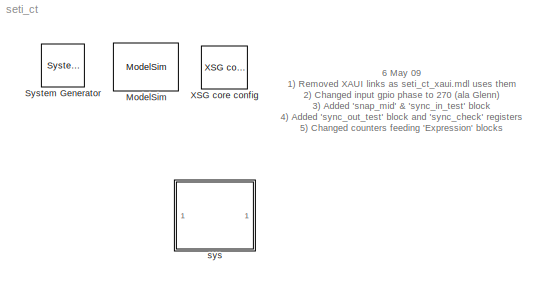
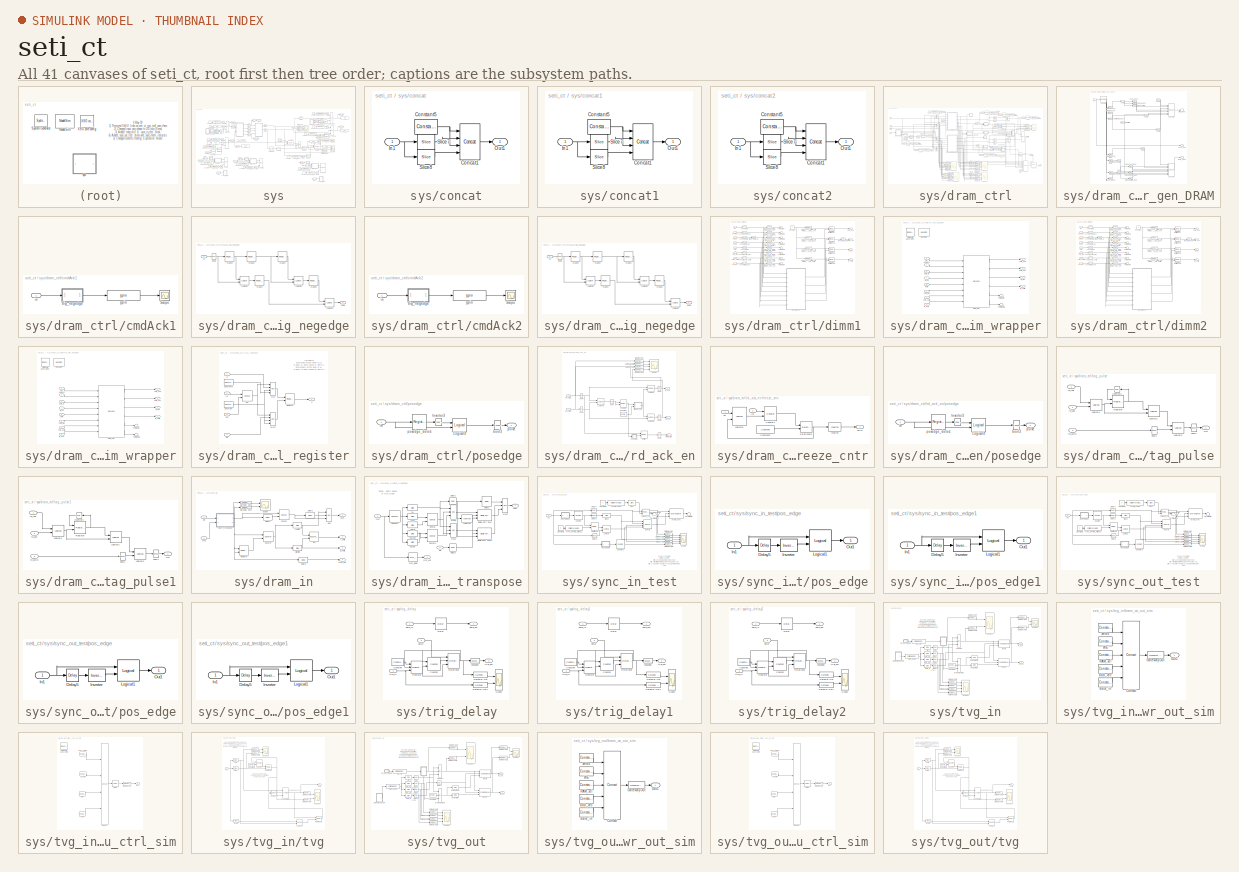
[diagram: thumbnail index - all 41 canvases of the model, root first then tree order]
MODEL seti_ct
KIND model
BLOCK [Reference]  System Generator  REF=xbsIndex_r3/ System Generator
  AttributesFormatString = System\\nGenerator
  Ports = []
  ShowPortLabels = on
  SourceBlock = xbsIndex_r3/ System Generator
  SourceType = Xilinx System Generator
  Tag = genX
  UserData = DataTag0
  UserDataPersistent = on
  core_generation = According to Block Masks
  dbl_ovrd = According to Block Masks
  deprecated_control = off
  directory = ./seti_ct/sysgen
  eval_field = 0
  incr_netlist = off
  package = ff1704
  part = xc2vp70
  run_coregen = off
  simulink_period = 1
  speed = -7
  synthesis_tool = XST
  sysclk_period = 4.878
  testbench = off
  trim_vbits = Everywhere in SubSystem
  xilinxfamily = Virtex2P
BLOCK [Reference] ModelSim  REF=xbsIndex_r3/ModelSim
  Ports = []
  SourceBlock = xbsIndex_r3/ModelSim
  SourceType = ModelSim HDL Co-Simulation Interface
  custom_scripts = on
  dir = ./modelsim
  leave_open = on
  post_vsim_script = dram_sim.do
  skip_compile = off
  startup_timeout = 3600
  waveform = on
BLOCK [Reference] XSG core config  REF=xps_library/XSG core config  (lib defined in mdl_00b5cec29cd0, mdl_02ab6ecaa3d1, +5 more)
  Ports = []
  ShowPortLabels = on
  SourceBlock = xps_library/XSG core config
  SourceType = xsg core config
  Tag = xps:xsg
  clk_rate = 205
  clk_src = usr_clk2x
  gpio_clk_bit_index = 0
  gpio_clk_io_group = iBOB:sma
  hw_sys = BEE2_usr
  ibob_linux = off
  mpc_type = powerpc405
  sample_period = 1
  synthesis_tool = XST
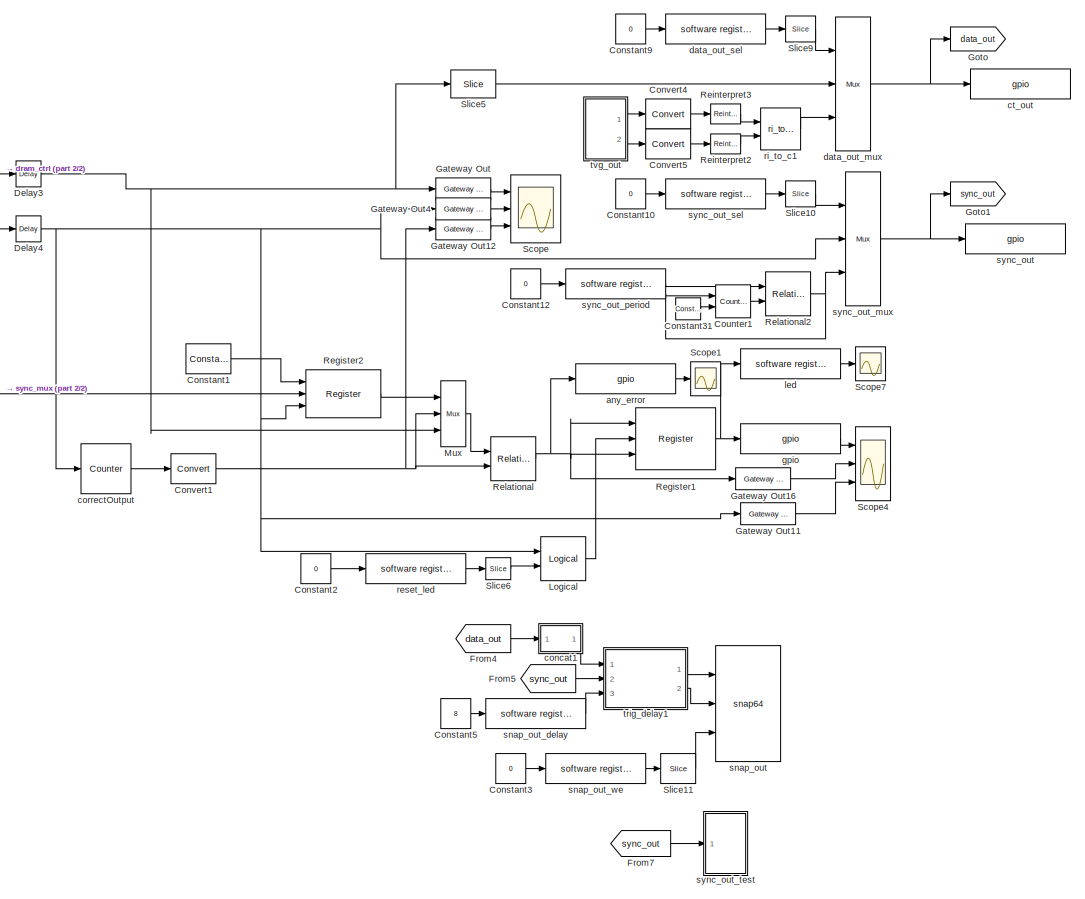
[diagram: sys - part 1/2, right side, full height]
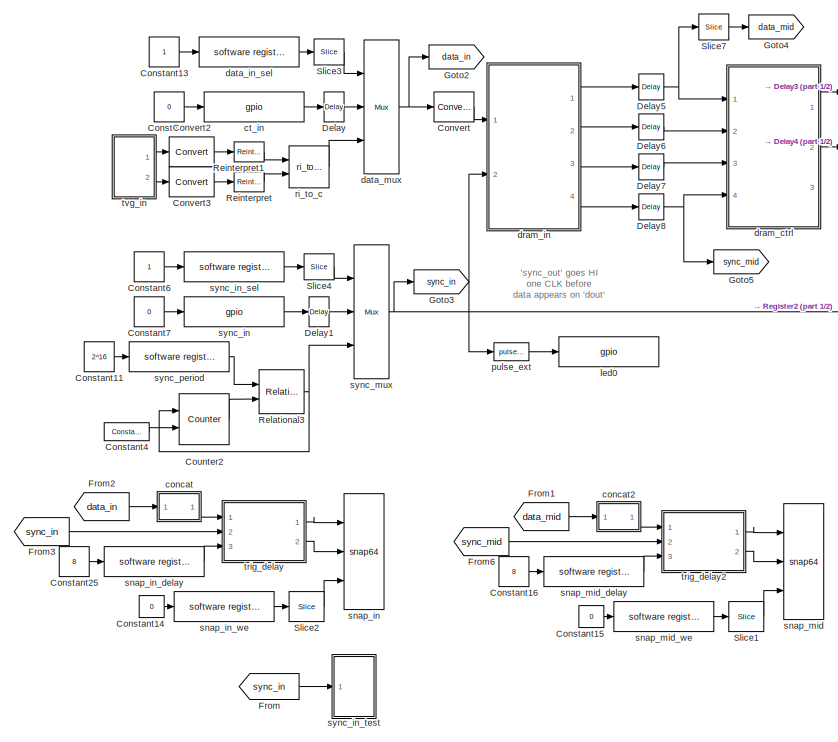
[diagram: sys - part 2/2, left side, full height]
BLOCK [SubSystem] sys
  MaskCallbackString = ||
  MaskEnableString = on,on,on
  MaskIconFrame = on
  MaskIconOpaque = on
  MaskIconRotate = none
  MaskIconUnits = autoscale
  MaskPromptString = Number of Specs?|Length of Specs?|CornerTurn Delay
  MaskStyleString = edit,edit,edit
  MaskTabNameString = ,,
  MaskToolTipString = on,on,on
  MaskTunableValueString = on,on,on
  MaskValueString = 2^15|2^12|50
  MaskVarAliasString = ,,
  MaskVariables = numSpecs=@1;length=@2;ct_delay=@3;
  MaskVisibilityString = on,on,on
  MinAlgLoopOccurrences = off
  Ports = []
  RTWSystemCode = Auto
  TreatAsAtomicUnit = off
BLOCK [Reference] sys/Constant1  REF=xbsIndex_r3/Constant
  Ports = [0, 1]
  SourceBlock = xbsIndex_r3/Constant
  SourceType = Xilinx Constant Block
  arith_type = Unsigned
  bin_pt = 0
  carry = CIN
  const = 1
  dbl_ovrd = off
  equ = P=C
  explicit_period = on
  inp1 = P
  inp2 = PCIN>>17
  iostate = 0
  n_bits = 1
  opr = +
  opselect = C
  period = 1
BLOCK [Constant] sys/Constant10
  Value = 0
BLOCK [Constant] sys/Constant11
  Value = 2^16
BLOCK [Constant] sys/Constant12
  Value = 0
BLOCK [Constant] sys/Constant13
BLOCK [Constant] sys/Constant14
  Value = 0
BLOCK [Constant] sys/Constant15
  Value = 0
BLOCK [Constant] sys/Constant16
  Value = 8
BLOCK [Constant] sys/Constant2
  Value = 0
BLOCK [Constant] sys/Constant25
  Value = 8
BLOCK [Constant] sys/Constant3
  Value = 0
BLOCK [Reference] sys/Constant31  REF=xbsIndex_r3/Constant
  Ports = [0, 1]
  SourceBlock = xbsIndex_r3/Constant
  SourceType = Xilinx Constant Block
  arith_type = Unsigned
  bin_pt = 0
  carry = CIN
  const = 1
  dbl_ovrd = off
  equ = P=C
  explicit_period = on
  inp1 = P
  inp2 = PCIN>>17
  iostate = 0
  n_bits = 32
  opr = +
  opselect = C
  period = 1
BLOCK [Reference] sys/Constant4  REF=xbsIndex_r3/Constant
  Ports = [0, 1]
  SourceBlock = xbsIndex_r3/Constant
  SourceType = Xilinx Constant Block
  arith_type = Unsigned
  bin_pt = 0
  carry = CIN
  const = 1
  dbl_ovrd = off
  equ = P=C
  explicit_period = on
  inp1 = P
  inp2 = PCIN>>17
  iostate = 0
  n_bits = 32
  opr = +
  opselect = C
  period = 1
BLOCK [Constant] sys/Constant5
  Value = 8
BLOCK [Constant] sys/Constant6
BLOCK [Constant] sys/Constant7
  Value = 0
BLOCK [Constant] sys/Constant8
  Value = 0
BLOCK [Constant] sys/Constant9
  Value = 0
BLOCK [Reference] sys/Convert  REF=xbsIndex_r3/Convert
  Ports = [1, 1]
  SourceBlock = xbsIndex_r3/Convert
  SourceType = Xilinx Converter Block
  arith_type = Unsigned
  bin_pt = 0
  dbl_ovrd = off
  explicit_period = off
  inserted_by_tool = off
  latency = 0
  n_bits = 72
  overflow = Wrap
  period = 1
  pipeline = off
  quantization = Truncate
  show_param = off
  xl_area = [0, 0, 0, 0, 0, 0, 0]
  xl_use_area = off
BLOCK [Reference] sys/Convert1  REF=xbsIndex_r3/Convert
  Ports = [1, 1]
  SourceBlock = xbsIndex_r3/Convert
  SourceType = Xilinx Converter Block
  arith_type = Unsigned
  bin_pt = 0
  dbl_ovrd = off
  explicit_period = off
  inserted_by_tool = off
  latency = 0
  n_bits = 72
  overflow = Wrap
  period = 1
  pipeline = off
  quantization = Truncate
  show_param = off
  xl_area = [0, 0, 0, 0, 0, 0, 0]
  xl_use_area = off
BLOCK [Reference] sys/Convert2  REF=xbsIndex_r3/Convert
  Ports = [1, 1]
  SourceBlock = xbsIndex_r3/Convert
  SourceType = Xilinx Converter Block
  arith_type = Unsigned
  bin_pt = 0
  dbl_ovrd = off
  explicit_period = on
  inserted_by_tool = off
  latency = 0
  n_bits = 18
  overflow = Wrap
  period = 1
  pipeline = off
  quantization = Truncate
  show_param = off
  xl_area = [0, 0, 0, 0, 0, 0, 0]
  xl_use_area = off
BLOCK [Reference] sys/Convert3  REF=xbsIndex_r3/Convert
  Ports = [1, 1]
  SourceBlock = xbsIndex_r3/Convert
  SourceType = Xilinx Converter Block
  arith_type = Unsigned
  bin_pt = 0
  dbl_ovrd = off
  explicit_period = on
  inserted_by_tool = off
  latency = 0
  n_bits = 18
  overflow = Wrap
  period = 1
  pipeline = off
  quantization = Truncate
  show_param = off
  xl_area = [0, 0, 0, 0, 0, 0, 0]
  xl_use_area = off
BLOCK [Reference] sys/Convert4  REF=xbsIndex_r3/Convert
  Ports = [1, 1]
  SourceBlock = xbsIndex_r3/Convert
  SourceType = Xilinx Converter Block
  arith_type = Unsigned
  bin_pt = 0
  dbl_ovrd = off
  explicit_period = on
  inserted_by_tool = off
  latency = 0
  n_bits = 18
  overflow = Wrap
  period = 1
  pipeline = off
  quantization = Truncate
  show_param = off
  xl_area = [0, 0, 0, 0, 0, 0, 0]
  xl_use_area = off
BLOCK [Reference] sys/Convert5  REF=xbsIndex_r3/Convert
  Ports = [1, 1]
  SourceBlock = xbsIndex_r3/Convert
  SourceType = Xilinx Converter Block
  arith_type = Unsigned
  bin_pt = 0
  dbl_ovrd = off
  explicit_period = on
  inserted_by_tool = off
  latency = 0
  n_bits = 18
  overflow = Wrap
  period = 1
  pipeline = off
  quantization = Truncate
  show_param = off
  xl_area = [0, 0, 0, 0, 0, 0, 0]
  xl_use_area = off
BLOCK [Reference] sys/Counter1  REF=xbsIndex_r3/Counter
  Ports = [2, 1]
  SourceBlock = xbsIndex_r3/Counter
  SourceType = Xilinx Counter Block
  arith_type = Unsigned
  bin_pt = 0
  cnt_by_val = 1
  cnt_to = Inf
  cnt_type = Free Running
  dbl_ovrd = off
  en = off
  explicit_period = on
  gen_core = off
  load_pin = on
  n_bits = 32
  operation = Up
  period = 1
  rst = off
  show_param = off
  start_count = 0
  use_rpm = on
  xl_area = [0, 0, 0, 0, 0, 0, 0]
  xl_use_area = off
BLOCK [Reference] sys/Counter2  REF=xbsIndex_r3/Counter
  Ports = [2, 1]
  SourceBlock = xbsIndex_r3/Counter
  SourceType = Xilinx Counter Block
  arith_type = Unsigned
  bin_pt = 0
  cnt_by_val = 1
  cnt_to = Inf
  cnt_type = Free Running
  dbl_ovrd = off
  en = off
  explicit_period = on
  gen_core = off
  load_pin = on
  n_bits = 32
  operation = Up
  period = 1
  rst = off
  show_param = off
  start_count = 0
  use_rpm = on
  xl_area = [0, 0, 0, 0, 0, 0, 0]
  xl_use_area = off
BLOCK [Reference] sys/Delay  REF=xbsIndex_r3/Delay
  Ports = [1, 1]
  SourceBlock = xbsIndex_r3/Delay
  SourceType = Xilinx Delay Block
  accept_only_valid = off
  dbl_ovrd = off
  en = off
  explicit_period = off
  init_zero = on
  latency = 1
  period = 1
  reg_retiming = off
  show_param = off
  xl_area = [0, 0, 0, 0, 0, 0, 0]
  xl_use_area = off
BLOCK [Reference] sys/Delay1  REF=xbsIndex_r3/Delay
  Ports = [1, 1]
  SourceBlock = xbsIndex_r3/Delay
  SourceType = Xilinx Delay Block
  accept_only_valid = off
  dbl_ovrd = off
  en = off
  explicit_period = off
  init_zero = on
  latency = 1
  period = 1
  reg_retiming = off
  show_param = off
  xl_area = [0, 0, 0, 0, 0, 0, 0]
  xl_use_area = off
BLOCK [Reference] sys/Delay3  REF=xbsIndex_r3/Delay
  Ports = [1, 1]
  SourceBlock = xbsIndex_r3/Delay
  SourceType = Xilinx Delay Block
  accept_only_valid = off
  dbl_ovrd = off
  en = off
  explicit_period = off
  init_zero = on
  latency = 1
  period = 1
  reg_retiming = off
  show_param = off
  xl_area = [0, 0, 0, 0, 0, 0, 0]
  xl_use_area = off
BLOCK [Reference] sys/Delay4  REF=xbsIndex_r3/Delay
  Ports = [1, 1]
  SourceBlock = xbsIndex_r3/Delay
  SourceType = Xilinx Delay Block
  accept_only_valid = off
  dbl_ovrd = off
  en = off
  explicit_period = off
  init_zero = on
  latency = 1
  period = 1
  reg_retiming = off
  show_param = off
  xl_area = [0, 0, 0, 0, 0, 0, 0]
  xl_use_area = off
BLOCK [Reference] sys/Delay5  REF=xbsIndex_r3/Delay
  Ports = [1, 1]
  SourceBlock = xbsIndex_r3/Delay
  SourceType = Xilinx Delay Block
  accept_only_valid = off
  dbl_ovrd = off
  en = off
  explicit_period = off
  init_zero = on
  latency = 1
  period = 1
  reg_retiming = off
  show_param = off
  xl_area = [0, 0, 0, 0, 0, 0, 0]
  xl_use_area = off
BLOCK [Reference] sys/Delay6  REF=xbsIndex_r3/Delay
  Ports = [1, 1]
  SourceBlock = xbsIndex_r3/Delay
  SourceType = Xilinx Delay Block
  accept_only_valid = off
  dbl_ovrd = off
  en = off
  explicit_period = off
  init_zero = on
  latency = 1
  period = 1
  reg_retiming = off
  show_param = off
  xl_area = [0, 0, 0, 0, 0, 0, 0]
  xl_use_area = off
BLOCK [Reference] sys/Delay7  REF=xbsIndex_r3/Delay
  Ports = [1, 1]
  SourceBlock = xbsIndex_r3/Delay
  SourceType = Xilinx Delay Block
  accept_only_valid = off
  dbl_ovrd = off
  en = off
  explicit_period = off
  init_zero = on
  latency = 1
  period = 1
  reg_retiming = off
  show_param = off
  xl_area = [0, 0, 0, 0, 0, 0, 0]
  xl_use_area = off
BLOCK [Reference] sys/Delay8  REF=xbsIndex_r3/Delay
  Ports = [1, 1]
  SourceBlock = xbsIndex_r3/Delay
  SourceType = Xilinx Delay Block
  accept_only_valid = off
  dbl_ovrd = off
  en = off
  explicit_period = off
  init_zero = on
  latency = 1
  period = 1
  reg_retiming = off
  show_param = off
  xl_area = [0, 0, 0, 0, 0, 0, 0]
  xl_use_area = off
BLOCK [From] sys/From
  CloseFcn = tagdialog Close
  GotoTag = sync_in
BLOCK [From] sys/From1
  CloseFcn = tagdialog Close
  GotoTag = data_mid
BLOCK [From] sys/From2
  CloseFcn = tagdialog Close
  GotoTag = data_in
BLOCK [From] sys/From3
  CloseFcn = tagdialog Close
  GotoTag = sync_in
BLOCK [From] sys/From4
  CloseFcn = tagdialog Close
  GotoTag = data_out
BLOCK [From] sys/From5
  CloseFcn = tagdialog Close
  GotoTag = sync_out
BLOCK [From] sys/From6
  CloseFcn = tagdialog Close
  GotoTag = sync_mid
BLOCK [From] sys/From7
  CloseFcn = tagdialog Close
  GotoTag = sync_out
BLOCK [Reference] sys/Gateway Out  REF=xbsIndex_r3/Gateway Out
  LOCs = {}
  Ports = [1, 1]
  SourceBlock = xbsIndex_r3/Gateway Out
  SourceType = Xilinx Gateway Out
  arith_type = Boolean
  bin_pt = 6
  hdl_port = off
  locs_specified = off
  nbits = 8
  needs_fixed_name = off
  output_type = Double
  overflow = Wrap
  quantization = Truncate
  show_param = off
  timing_constraint = None
  xl_area = [0, 0, 0, 0, 0, 0, 0]
  xl_use_area = off
BLOCK [Reference] sys/Gateway Out11  REF=xbsIndex_r3/Gateway Out
  LOCs = {}
  Ports = [1, 1]
  SourceBlock = xbsIndex_r3/Gateway Out
  SourceType = Xilinx Gateway Out
  arith_type = Boolean
  bin_pt = 6
  hdl_port = off
  locs_specified = off
  nbits = 8
  needs_fixed_name = off
  output_type = Double
  overflow = Wrap
  quantization = Truncate
  show_param = off
  timing_constraint = None
  xl_area = [0, 0, 0, 0, 0, 0, 0]
  xl_use_area = off
BLOCK [Reference] sys/Gateway Out12  REF=xbsIndex_r3/Gateway Out
  LOCs = {}
  Ports = [1, 1]
  SourceBlock = xbsIndex_r3/Gateway Out
  SourceType = Xilinx Gateway Out
  arith_type = Boolean
  bin_pt = 6
  hdl_port = off
  locs_specified = off
  nbits = 8
  needs_fixed_name = off
  output_type = Double
  overflow = Wrap
  quantization = Truncate
  show_param = off
  timing_constraint = None
  xl_area = [0, 0, 0, 0, 0, 0, 0]
  xl_use_area = off
BLOCK [Reference] sys/Gateway Out16  REF=xbsIndex_r3/Gateway Out
  LOCs = {}
  Ports = [1, 1]
  SourceBlock = xbsIndex_r3/Gateway Out
  SourceType = Xilinx Gateway Out
  arith_type = Boolean
  bin_pt = 6
  hdl_port = off
  locs_specified = off
  nbits = 8
  needs_fixed_name = off
  output_type = Double
  overflow = Wrap
  quantization = Truncate
  show_param = off
  timing_constraint = None
  xl_area = [0, 0, 0, 0, 0, 0, 0]
  xl_use_area = off
BLOCK [Reference] sys/Gateway Out4  REF=xbsIndex_r3/Gateway Out
  LOCs = {}
  Ports = [1, 1]
  SourceBlock = xbsIndex_r3/Gateway Out
  SourceType = Xilinx Gateway Out
  arith_type = Boolean
  bin_pt = 6
  hdl_port = off
  locs_specified = off
  nbits = 8
  needs_fixed_name = off
  output_type = Double
  overflow = Wrap
  quantization = Truncate
  show_param = off
  timing_constraint = None
  xl_area = [0, 0, 0, 0, 0, 0, 0]
  xl_use_area = off
BLOCK [Goto] sys/Goto
  GotoTag = data_out
  TagVisibility = local
BLOCK [Goto] sys/Goto1
  GotoTag = sync_out
  TagVisibility = local
BLOCK [Goto] sys/Goto2
  GotoTag = data_in
  TagVisibility = local
BLOCK [Goto] sys/Goto3
  GotoTag = sync_in
  TagVisibility = local
BLOCK [Goto] sys/Goto4
  GotoTag = data_mid
  TagVisibility = local
BLOCK [Goto] sys/Goto5
  GotoTag = sync_mid
  TagVisibility = local
BLOCK [Reference] sys/Logical  REF=xbsIndex_r3/Logical
  Ports = [2, 1]
  SourceBlock = xbsIndex_r3/Logical
  SourceType = Xilinx Logical Block
  align_bp = on
  arith_type = Unsigned
  bin_pt = 2
  dbl_ovrd = off
  en = off
  explicit_period = off
  inputs = 2
  latency = 0
  logical_function = AND
  n_bits = 8
  period = 1
  precision = Full
  show_param = off
  xl_area = [0, 0, 0, 0, 0, 0, 0]
  xl_use_area = off
BLOCK [Reference] sys/Mux  REF=xbsIndex_r3/Mux
  Ports = [3, 1]
  SourceBlock = xbsIndex_r3/Mux
  SourceType = Xilinx Multiplexer Block
  arith_type = Signed  (2's comp)
  bin_pt = 2
  dbl_ovrd = off
  en = off
  explicit_period = off
  gen_core = off
  inputs = 2
  latency = 0
  mux_type = off
  n_bits = 8
  overflow = Wrap
  period = 1
  precision = Full
  quantization = Truncate
  show_param = off
  use_rpm = off
  xl_area = [0, 0, 0, 0, 0, 0, 0]
  xl_use_area = off
BLOCK [Reference] sys/Register1  REF=xbsIndex_r3/Register
  Ports = [3, 1]
  SourceBlock = xbsIndex_r3/Register
  SourceType = Xilinx Register Block
  dbl_ovrd = off
  en = on
  explicit_period = off
  init = 0
  out_en = off
  period = 1
  reg_only_valid = off
  rst = on
  show_param = off
  xl_area = [0, 0, 0, 0, 0, 0, 0]
  xl_use_area = off
BLOCK [Reference] sys/Register2  REF=xbsIndex_r3/Register
  Ports = [3, 1]
  SourceBlock = xbsIndex_r3/Register
  SourceType = Xilinx Register Block
  dbl_ovrd = off
  en = on
  explicit_period = off
  init = 0
  out_en = off
  period = 1
  reg_only_valid = off
  rst = on
  show_param = off
  xl_area = [0, 0, 0, 0, 0, 0, 0]
  xl_use_area = off
BLOCK [Reference] sys/Reinterpret  REF=xbsIndex_r3/Reinterpret
  Ports = [1, 1]
  SourceBlock = xbsIndex_r3/Reinterpret
  SourceType = Xilinx Type Reinterpreting Block
  arith_type = Signed  (2's comp)
  bin_pt = 17
  force_arith_type = on
  force_bin_pt = on
  force_valid = on
BLOCK [Reference] sys/Reinterpret1  REF=xbsIndex_r3/Reinterpret
  Ports = [1, 1]
  SourceBlock = xbsIndex_r3/Reinterpret
  SourceType = Xilinx Type Reinterpreting Block
  arith_type = Signed  (2's comp)
  bin_pt = 17
  force_arith_type = on
  force_bin_pt = on
  force_valid = on
BLOCK [Reference] sys/Reinterpret2  REF=xbsIndex_r3/Reinterpret
  Ports = [1, 1]
  SourceBlock = xbsIndex_r3/Reinterpret
  SourceType = Xilinx Type Reinterpreting Block
  arith_type = Signed  (2's comp)
  bin_pt = 17
  force_arith_type = on
  force_bin_pt = on
  force_valid = on
BLOCK [Reference] sys/Reinterpret3  REF=xbsIndex_r3/Reinterpret
  Ports = [1, 1]
  SourceBlock = xbsIndex_r3/Reinterpret
  SourceType = Xilinx Type Reinterpreting Block
  arith_type = Signed  (2's comp)
  bin_pt = 17
  force_arith_type = on
  force_bin_pt = on
  force_valid = on
BLOCK [Reference] sys/Relational  REF=xbsIndex_r3/Relational
  Ports = [2, 1]
  SourceBlock = xbsIndex_r3/Relational
  SourceType = Xilinx Relational Block
  dbl_ovrd = off
  en = off
  explicit_period = off
  latency = 1
  mode = a!=b
  period = 1
  show_param = off
  xl_area = [0, 0, 0, 0, 0, 0, 0]
  xl_use_area = off
BLOCK [Reference] sys/Relational2  REF=xbsIndex_r3/Relational
  Ports = [2, 1]
  SourceBlock = xbsIndex_r3/Relational
  SourceType = Xilinx Relational Block
  dbl_ovrd = off
  en = off
  explicit_period = off
  latency = 1
  mode = a=b
  period = 1
  show_param = off
  xl_area = [0, 0, 0, 0, 0, 0, 0]
  xl_use_area = off
BLOCK [Reference] sys/Relational3  REF=xbsIndex_r3/Relational
  Ports = [2, 1]
  SourceBlock = xbsIndex_r3/Relational
  SourceType = Xilinx Relational Block
  dbl_ovrd = off
  en = off
  explicit_period = on
  latency = 1
  mode = a=b
  period = 1
  show_param = off
  xl_area = [0, 0, 0, 0, 0, 0, 0]
  xl_use_area = off
BLOCK [Scope] sys/Scope
  DataFormat = StructureWithTime
  LimitDataPoints = off
  NumInputPorts = 3
  Ports = [3]
  SaveName = ScopeData9
  YMax = 1~1~1750
  YMin = -1~-1~0
  ZoomMode = xonly
BLOCK [Scope] sys/Scope1
  DataFormat = StructureWithTime
  LimitDataPoints = off
  NumInputPorts = 1
  Ports = [1]
  SaveName = ScopeData12
BLOCK [Scope] sys/Scope4
  DataFormat = StructureWithTime
  LimitDataPoints = off
  NumInputPorts = 3
  Ports = [3]
  SaveName = ScopeData10
  YMax = 1~1~1
  YMin = -1~-1~-1
  ZoomMode = xonly
BLOCK [Scope] sys/Scope7
  DataFormat = StructureWithTime
  LimitDataPoints = off
  NumInputPorts = 1
  Ports = [1]
  SaveName = ScopeData13
BLOCK [Reference] sys/Slice1  REF=xbsIndex_r3/Slice
  Ports = [1, 1]
  SourceBlock = xbsIndex_r3/Slice
  SourceType = Xilinx Slice Block
  base0 = LSB of Input
  base1 = MSB of Input
  bit0 = 0
  bit1 = 0
  boolean_output = on
  dbl_ovrd = off
  explicit_period = off
  mode = Lower Bit Location + Width
  nbits = 1
  period = 1
BLOCK [Reference] sys/Slice10  REF=xbsIndex_r3/Slice
  Ports = [1, 1]
  SourceBlock = xbsIndex_r3/Slice
  SourceType = Xilinx Slice Block
  base0 = LSB of Input
  base1 = MSB of Input
  bit0 = 0
  bit1 = 0
  boolean_output = off
  dbl_ovrd = off
  explicit_period = off
  mode = Lower Bit Location + Width
  nbits = 1
  period = 1
BLOCK [Reference] sys/Slice11  REF=xbsIndex_r3/Slice
  Ports = [1, 1]
  SourceBlock = xbsIndex_r3/Slice
  SourceType = Xilinx Slice Block
  base0 = LSB of Input
  base1 = MSB of Input
  bit0 = 0
  bit1 = 0
  boolean_output = on
  dbl_ovrd = off
  explicit_period = off
  mode = Lower Bit Location + Width
  nbits = 1
  period = 1
BLOCK [Reference] sys/Slice2  REF=xbsIndex_r3/Slice
  Ports = [1, 1]
  SourceBlock = xbsIndex_r3/Slice
  SourceType = Xilinx Slice Block
  base0 = LSB of Input
  base1 = MSB of Input
  bit0 = 0
  bit1 = 0
  boolean_output = on
  dbl_ovrd = off
  explicit_period = off
  mode = Lower Bit Location + Width
  nbits = 1
  period = 1
BLOCK [Reference] sys/Slice3  REF=xbsIndex_r3/Slice
  Ports = [1, 1]
  SourceBlock = xbsIndex_r3/Slice
  SourceType = Xilinx Slice Block
  base0 = LSB of Input
  base1 = MSB of Input
  bit0 = 0
  bit1 = 0
  boolean_output = off
  dbl_ovrd = off
  explicit_period = off
  mode = Lower Bit Location + Width
  nbits = 1
  period = 1
BLOCK [Reference] sys/Slice4  REF=xbsIndex_r3/Slice
  Ports = [1, 1]
  SourceBlock = xbsIndex_r3/Slice
  SourceType = Xilinx Slice Block
  base0 = LSB of Input
  base1 = MSB of Input
  bit0 = 0
  bit1 = 0
  boolean_output = off
  dbl_ovrd = off
  explicit_period = off
  mode = Lower Bit Location + Width
  nbits = 1
  period = 1
BLOCK [Reference] sys/Slice5  REF=xbsIndex_r3/Slice
  Ports = [1, 1]
  SourceBlock = xbsIndex_r3/Slice
  SourceType = Xilinx Slice Block
  base0 = LSB of Input
  base1 = MSB of Input
  bit0 = 0
  bit1 = 0
  boolean_output = off
  dbl_ovrd = off
  explicit_period = off
  mode = Lower Bit Location + Width
  nbits = 36
  period = 1
BLOCK [Reference] sys/Slice6  REF=xbsIndex_r3/Slice
  Ports = [1, 1]
  SourceBlock = xbsIndex_r3/Slice
  SourceType = Xilinx Slice Block
  base0 = LSB of Input
  base1 = MSB of Input
  bit0 = 0
  bit1 = 0
  boolean_output = on
  dbl_ovrd = off
  explicit_period = off
  mode = Lower Bit Location + Width
  nbits = 1
  period = 1
BLOCK [Reference] sys/Slice7  REF=xbsIndex_r3/Slice
  Ports = [1, 1]
  SourceBlock = xbsIndex_r3/Slice
  SourceType = Xilinx Slice Block
  base0 = LSB of Input
  base1 = MSB of Input
  bit0 = 0
  bit1 = 0
  boolean_output = off
  dbl_ovrd = off
  explicit_period = off
  mode = Lower Bit Location + Width
  nbits = 36
  period = 1
BLOCK [Reference] sys/Slice9  REF=xbsIndex_r3/Slice
  Ports = [1, 1]
  SourceBlock = xbsIndex_r3/Slice
  SourceType = Xilinx Slice Block
  base0 = LSB of Input
  base1 = MSB of Input
  bit0 = 0
  bit1 = 0
  boolean_output = off
  dbl_ovrd = off
  explicit_period = off
  mode = Lower Bit Location + Width
  nbits = 1
  period = 1
BLOCK [Reference] sys/any_error  REF=xps_library/gpio  (lib defined in mdl_00b5cec29cd0, mdl_02ab6ecaa3d1, +5 more)
  Ports = [1, 1]
  ShowPortLabels = on
  SourceBlock = xps_library/gpio
  SourceType = gpio
  Tag = xps:gpio
  arith_type = Unsigned
  bin_pt = 0
  bit_index = 4
  bitwidth = 1
  io_dir = out
  io_group = BEE2_usr:led
  reg_clk_phase = 0
  reg_iob = off
  sample_period = 1
  termination = None
  use_ddr = off
  use_single_ended = off
BLOCK [SubSystem] sys/concat
  MinAlgLoopOccurrences = off
  Ports = [1, 1]
  RTWSystemCode = Auto
  TreatAsAtomicUnit = off
BLOCK [Reference] sys/concat/Concat1  REF=xbsIndex_r3/Concat
  Ports = [4, 1]
  SourceBlock = xbsIndex_r3/Concat
  SourceType = Xilinx Bus Concatenator
  dbl_ovrd = off
  explicit_period = on
  num_inputs = 4
  period = 1
BLOCK [Reference] sys/concat/Constant5  REF=xbsIndex_r3/Constant
  Ports = [0, 1]
  SourceBlock = xbsIndex_r3/Constant
  SourceType = Xilinx Constant Block
  arith_type = Unsigned
  bin_pt = 0
  carry = CIN
  const = 0
  dbl_ovrd = off
  equ = P=C
  explicit_period = on
  inp1 = P
  inp2 = PCIN>>17
  iostate = 0
  n_bits = 14
  opr = +
  opselect = C
  period = 1
BLOCK [Inport] sys/concat/In1
  IconDisplay = Port number
  LatchInput = off
  Port = 1
BLOCK [Outport] sys/concat/Out1
  BusOutputAsStruct = off
  IconDisplay = Port number
BLOCK [Reference] sys/concat/Slice7  REF=xbsIndex_r3/Slice
  Ports = [1, 1]
  SourceBlock = xbsIndex_r3/Slice
  SourceType = Xilinx Slice Block
  base0 = LSB of Input
  base1 = MSB of Input
  bit0 = 0
  bit1 = 0
  boolean_output = off
  dbl_ovrd = off
  explicit_period = off
  mode = Upper Bit Location + Width
  nbits = 18
  period = 1
BLOCK [Reference] sys/concat/Slice8  REF=xbsIndex_r3/Slice
  Ports = [1, 1]
  SourceBlock = xbsIndex_r3/Slice
  SourceType = Xilinx Slice Block
  base0 = LSB of Input
  base1 = MSB of Input
  bit0 = 0
  bit1 = 0
  boolean_output = off
  dbl_ovrd = off
  explicit_period = off
  mode = Lower Bit Location + Width
  nbits = 18
  period = 1
BLOCK [SubSystem] sys/concat1
  MinAlgLoopOccurrences = off
  Ports = [1, 1]
  RTWSystemCode = Auto
  TreatAsAtomicUnit = off
BLOCK [Reference] sys/concat1/Concat1  REF=xbsIndex_r3/Concat
  Ports = [4, 1]
  SourceBlock = xbsIndex_r3/Concat
  SourceType = Xilinx Bus Concatenator
  dbl_ovrd = off
  explicit_period = on
  num_inputs = 4
  period = 1
BLOCK [Reference] sys/concat1/Constant5  REF=xbsIndex_r3/Constant
  Ports = [0, 1]
  SourceBlock = xbsIndex_r3/Constant
  SourceType = Xilinx Constant Block
  arith_type = Unsigned
  bin_pt = 0
  carry = CIN
  const = 0
  dbl_ovrd = off
  equ = P=C
  explicit_period = on
  inp1 = P
  inp2 = PCIN>>17
  iostate = 0
  n_bits = 14
  opr = +
  opselect = C
  period = 1
BLOCK [Inport] sys/concat1/In1
  IconDisplay = Port number
  LatchInput = off
  Port = 1
BLOCK [Outport] sys/concat1/Out1
  BusOutputAsStruct = off
  IconDisplay = Port number
BLOCK [Reference] sys/concat1/Slice7  REF=xbsIndex_r3/Slice
  Ports = [1, 1]
  SourceBlock = xbsIndex_r3/Slice
  SourceType = Xilinx Slice Block
  base0 = LSB of Input
  base1 = MSB of Input
  bit0 = 0
  bit1 = 0
  boolean_output = off
  dbl_ovrd = off
  explicit_period = off
  mode = Upper Bit Location + Width
  nbits = 18
  period = 1
BLOCK [Reference] sys/concat1/Slice8  REF=xbsIndex_r3/Slice
  Ports = [1, 1]
  SourceBlock = xbsIndex_r3/Slice
  SourceType = Xilinx Slice Block
  base0 = LSB of Input
  base1 = MSB of Input
  bit0 = 0
  bit1 = 0
  boolean_output = off
  dbl_ovrd = off
  explicit_period = off
  mode = Lower Bit Location + Width
  nbits = 18
  period = 1
BLOCK [SubSystem] sys/concat2
  MinAlgLoopOccurrences = off
  Ports = [1, 1]
  RTWSystemCode = Auto
  TreatAsAtomicUnit = off
BLOCK [Reference] sys/concat2/Concat1  REF=xbsIndex_r3/Concat
  Ports = [4, 1]
  SourceBlock = xbsIndex_r3/Concat
  SourceType = Xilinx Bus Concatenator
  dbl_ovrd = off
  explicit_period = on
  num_inputs = 4
  period = 1
BLOCK [Reference] sys/concat2/Constant5  REF=xbsIndex_r3/Constant
  Ports = [0, 1]
  SourceBlock = xbsIndex_r3/Constant
  SourceType = Xilinx Constant Block
  arith_type = Unsigned
  bin_pt = 0
  carry = CIN
  const = 0
  dbl_ovrd = off
  equ = P=C
  explicit_period = on
  inp1 = P
  inp2 = PCIN>>17
  iostate = 0
  n_bits = 14
  opr = +
  opselect = C
  period = 1
BLOCK [Inport] sys/concat2/In1
  IconDisplay = Port number
  LatchInput = off
  Port = 1
BLOCK [Outport] sys/concat2/Out1
  BusOutputAsStruct = off
  IconDisplay = Port number
BLOCK [Reference] sys/concat2/Slice7  REF=xbsIndex_r3/Slice
  Ports = [1, 1]
  SourceBlock = xbsIndex_r3/Slice
  SourceType = Xilinx Slice Block
  base0 = LSB of Input
  base1 = MSB of Input
  bit0 = 0
  bit1 = 0
  boolean_output = off
  dbl_ovrd = off
  explicit_period = off
  mode = Upper Bit Location + Width
  nbits = 18
  period = 1
BLOCK [Reference] sys/concat2/Slice8  REF=xbsIndex_r3/Slice
  Ports = [1, 1]
  SourceBlock = xbsIndex_r3/Slice
  SourceType = Xilinx Slice Block
  base0 = LSB of Input
  base1 = MSB of Input
  bit0 = 0
  bit1 = 0
  boolean_output = off
  dbl_ovrd = off
  explicit_period = off
  mode = Lower Bit Location + Width
  nbits = 18
  period = 1
BLOCK [Reference] sys/correctOutput  REF=xbsIndex_r3/Counter
  Ports = [1, 1]
  SourceBlock = xbsIndex_r3/Counter
  SourceType = Xilinx Counter Block
  arith_type = Unsigned
  bin_pt = 0
  cnt_by_val = 1
  cnt_to = Inf
  cnt_type = Free Running
  dbl_ovrd = off
  en = off
  explicit_period = off
  gen_core = off
  load_pin = off
  n_bits = log2(length)+log2(numSpecs)
  operation = Up
  period = 1
  rst = on
  show_param = off
  start_count = 0
  use_rpm = on
  xl_area = [0, 0, 0, 0, 0, 0, 0]
  xl_use_area = off
BLOCK [Reference] sys/ct_in  REF=xps_library/gpio  (lib defined in mdl_00b5cec29cd0, mdl_02ab6ecaa3d1, +5 more)
  Ports = [1, 1]
  ShowPortLabels = on
  SourceBlock = xps_library/gpio
  SourceType = gpio
  Tag = xps:gpio
  arith_type = Unsigned
  bin_pt = 0
  bit_index = [0:35]
  bitwidth = 36
  io_dir = in
  io_group = BEE2_usr:rightlink
  reg_clk_phase = 270
  reg_iob = on
  sample_period = 1
  termination = None
  use_ddr = off
  use_single_ended = off
BLOCK [Reference] sys/ct_out  REF=xps_library/gpio  (lib defined in mdl_00b5cec29cd0, mdl_02ab6ecaa3d1, +5 more)
  Ports = [1, 1]
  ShowPortLabels = on
  SourceBlock = xps_library/gpio
  SourceType = gpio
  Tag = xps:gpio
  arith_type = Unsigned
  bin_pt = 0
  bit_index = [0:35]
  bitwidth = 36
  io_dir = out
  io_group = BEE2_usr:leftlink
  reg_clk_phase = 0
  reg_iob = on
  sample_period = 1
  termination = None
  use_ddr = off
  use_single_ended = off
BLOCK [Reference] sys/data_in_sel  REF=xps_library/software register  (lib defined in mdl_00b5cec29cd0, mdl_02ab6ecaa3d1, +5 more)
  Ports = [1, 1]
  ShowPortLabels = on
  SourceBlock = xps_library/software register
  Tag = xps:sw_reg
  arith_type = Unsigned
  bin_pt = 0
  bitwidth = 32
  gw_name = seti_ct_sys_data_in_sel_user_data_out
  io_dir = From Processor
  sample_period = 1
BLOCK [Reference] sys/data_mux  REF=xbsIndex_r3/Mux
  Ports = [3, 1]
  SourceBlock = xbsIndex_r3/Mux
  SourceType = Xilinx Multiplexer Block
  arith_type = Signed  (2's comp)
  bin_pt = 2
  dbl_ovrd = off
  en = off
  explicit_period = on
  gen_core = off
  inputs = 2
  latency = 2
  mux_type = off
  n_bits = 8
  overflow = Wrap
  period = 1
  precision = Full
  quantization = Truncate
  show_param = off
  use_rpm = off
  xl_area = [0, 0, 0, 0, 0, 0, 0]
  xl_use_area = off
BLOCK [Reference] sys/data_out_mux  REF=xbsIndex_r3/Mux
  Ports = [3, 1]
  SourceBlock = xbsIndex_r3/Mux
  SourceType = Xilinx Multiplexer Block
  arith_type = Signed  (2's comp)
  bin_pt = 2
  dbl_ovrd = off
  en = off
  explicit_period = on
  gen_core = off
  inputs = 2
  latency = 2
  mux_type = off
  n_bits = 8
  overflow = Wrap
  period = 1
  precision = Full
  quantization = Truncate
  show_param = off
  use_rpm = off
  xl_area = [0, 0, 0, 0, 0, 0, 0]
  xl_use_area = off
BLOCK [Reference] sys/data_out_sel  REF=xps_library/software register  (lib defined in mdl_00b5cec29cd0, mdl_02ab6ecaa3d1, +5 more)
  Ports = [1, 1]
  ShowPortLabels = on
  SourceBlock = xps_library/software register
  Tag = xps:sw_reg
  arith_type = Unsigned
  bin_pt = 0
  bitwidth = 32
  gw_name = seti_ct_sys_data_out_sel_user_data_out
  io_dir = From Processor
  sample_period = 1
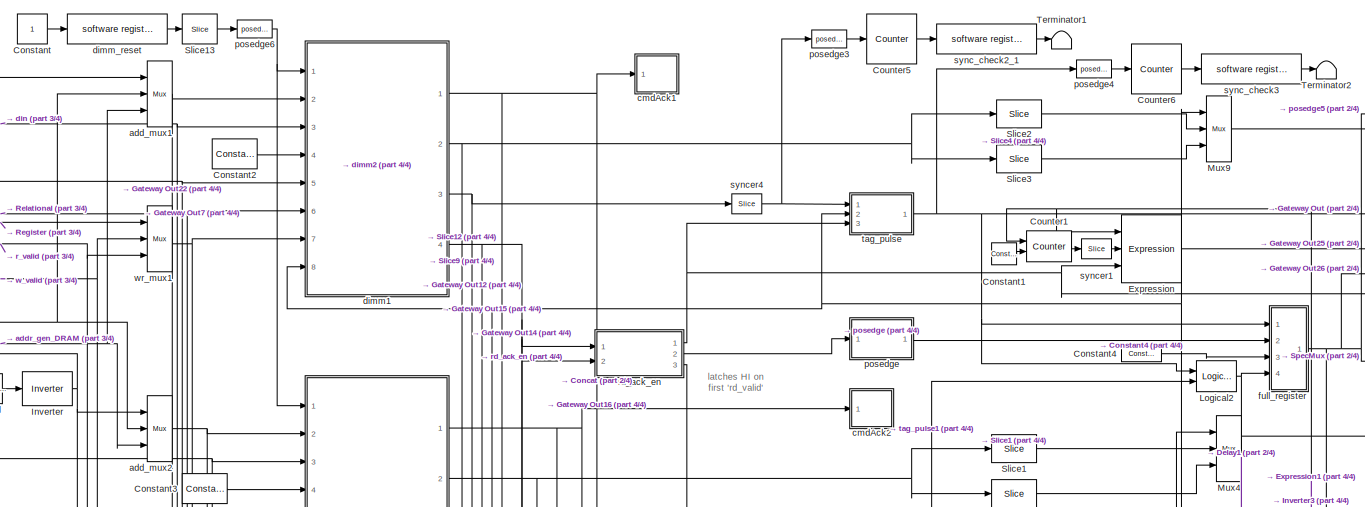
[diagram: sys/dram_ctrl - part 1/4, top center region]
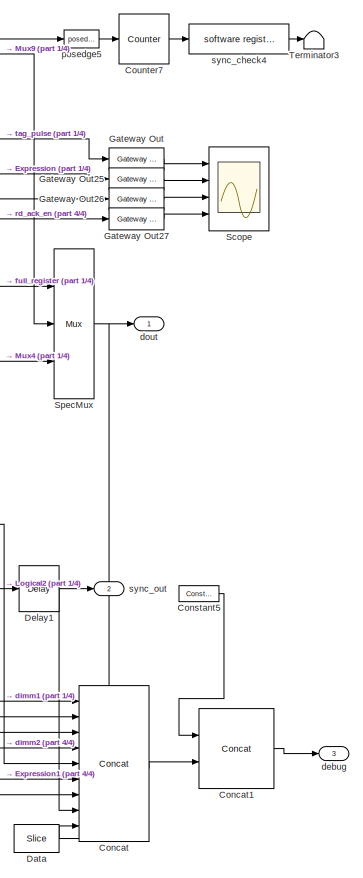
[diagram: sys/dram_ctrl - part 2/4, right side, full height]
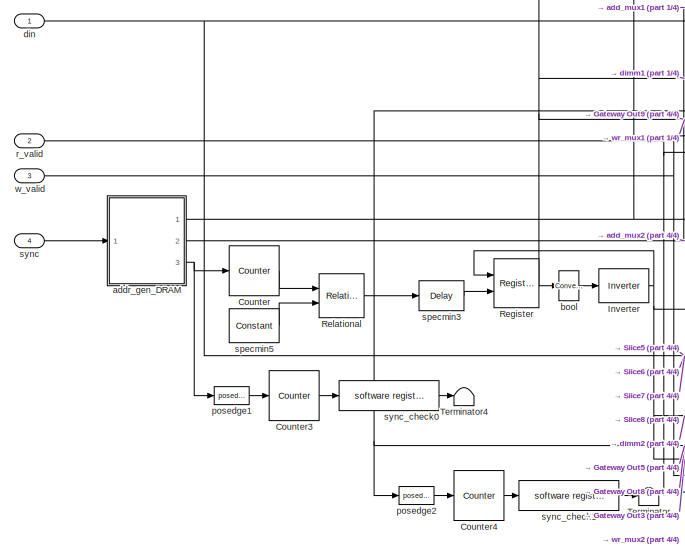
[diagram: sys/dram_ctrl - part 3/4, middle left region]
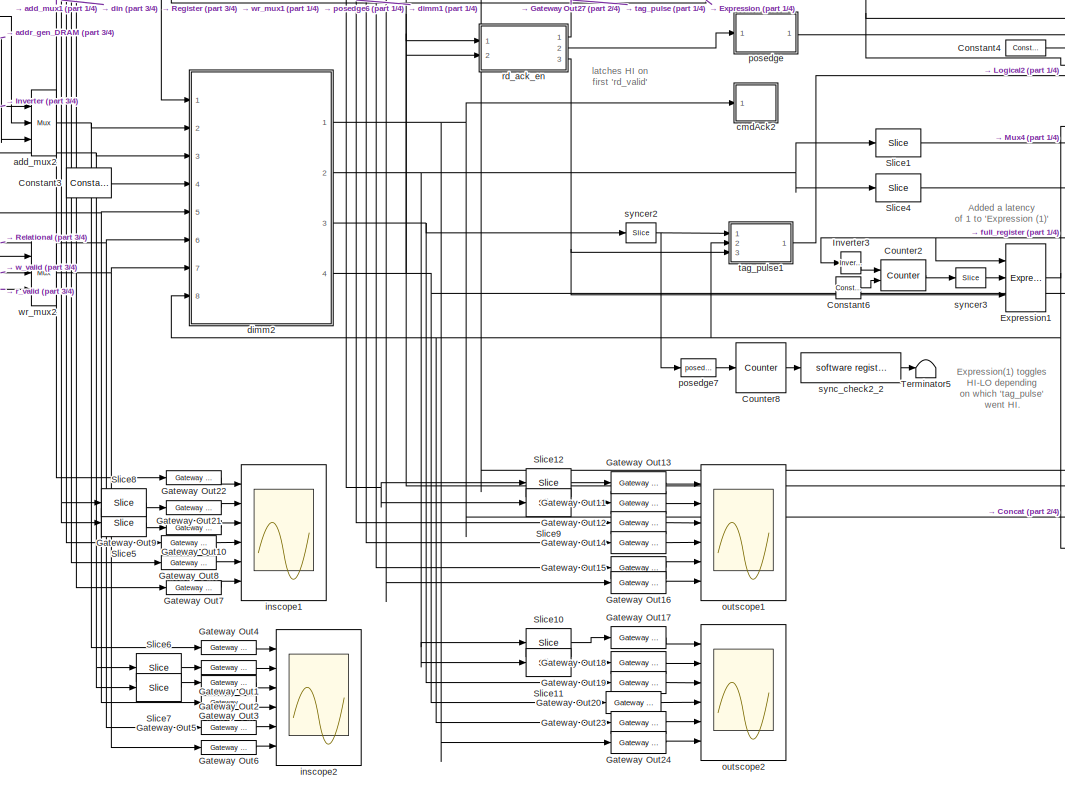
[diagram: sys/dram_ctrl - part 4/4, central region]
BLOCK [SubSystem] sys/dram_ctrl
  MaskCallbackString = ||
  MaskEnableString = on,on,on
  MaskIconFrame = on
  MaskIconOpaque = on
  MaskIconRotate = none
  MaskIconUnits = autoscale
  MaskPromptString = Spectrum Length (2^?)|Number of Spectra (2^?)|Counterturn Delay
  MaskStyleString = edit,edit,edit
  MaskTabNameString = ,,
  MaskToolTipString = on,on,on
  MaskTunableValueString = on,on,on
  MaskValueString = log2(length)|log2(numSpecs)|ct_delay
  MaskVarAliasString = ,,
  MaskVariables = spec_len=@1;num_spec=@2;ct_delay=@3;
  MaskVisibilityString = on,on,on
  MinAlgLoopOccurrences = off
  Ports = [4, 3]
  RTWSystemCode = Auto
  TreatAsAtomicUnit = off
BLOCK [Reference] sys/dram_ctrl/Concat  REF=xbsIndex_r3/Concat
  Ports = [9, 1]
  SourceBlock = xbsIndex_r3/Concat
  SourceType = Xilinx Bus Concatenator
  dbl_ovrd = off
  explicit_period = off
  num_inputs = 9
  period = 1
BLOCK [Reference] sys/dram_ctrl/Concat1  REF=xbsIndex_r3/Concat
  Ports = [2, 1]
  SourceBlock = xbsIndex_r3/Concat
  SourceType = Xilinx Bus Concatenator
  dbl_ovrd = off
  explicit_period = off
  num_inputs = 2
  period = 1
BLOCK [Constant] sys/dram_ctrl/Constant
BLOCK [Reference] sys/dram_ctrl/Constant1  REF=xbsIndex_r3/Constant
  Ports = [0, 1]
  SourceBlock = xbsIndex_r3/Constant
  SourceType = Xilinx Constant Block
  arith_type = Unsigned
  bin_pt = 0
  carry = CIN
  const = 1
  dbl_ovrd = off
  equ = P=C
  explicit_period = on
  inp1 = P
  inp2 = PCIN>>17
  iostate = 0
  n_bits = 2
  opr = +
  opselect = C
  period = 1
BLOCK [Reference] sys/dram_ctrl/Constant2  REF=xbsIndex_r3/Constant
  Ports = [0, 1]
  SourceBlock = xbsIndex_r3/Constant
  SourceType = Xilinx Constant Block
  arith_type = Unsigned
  bin_pt = 0
  carry = CIN
  const = 2^18-1
  dbl_ovrd = off
  equ = P=C
  explicit_period = on
  inp1 = P
  inp2 = PCIN>>17
  iostate = 0
  n_bits = 18
  opr = +
  opselect = C
  period = 1
BLOCK [Reference] sys/dram_ctrl/Constant3  REF=xbsIndex_r3/Constant
  Ports = [0, 1]
  SourceBlock = xbsIndex_r3/Constant
  SourceType = Xilinx Constant Block
  arith_type = Unsigned
  bin_pt = 0
  carry = CIN
  const = 2^18-1
  dbl_ovrd = off
  equ = P=C
  explicit_period = on
  inp1 = P
  inp2 = PCIN>>17
  iostate = 0
  n_bits = 18
  opr = +
  opselect = C
  period = 1
BLOCK [Reference] sys/dram_ctrl/Constant4  REF=xbsIndex_r3/Constant
  Ports = [0, 1]
  SourceBlock = xbsIndex_r3/Constant
  SourceType = Xilinx Constant Block
  arith_type = Boolean
  bin_pt = 0
  carry = CIN
  const = 0
  dbl_ovrd = off
  equ = P=C
  explicit_period = off
  inp1 = P
  inp2 = PCIN>>17
  iostate = 0
  n_bits = 1
  opr = +
  opselect = C
  period = 1
BLOCK [Reference] sys/dram_ctrl/Constant5  REF=xbsIndex_r3/Constant
  Ports = [0, 1]
  SourceBlock = xbsIndex_r3/Constant
  SourceType = Xilinx Constant Block
  arith_type = Unsigned
  bin_pt = 0
  carry = CIN
  const = 0
  dbl_ovrd = off
  equ = P=C
  explicit_period = off
  inp1 = P
  inp2 = PCIN>>17
  iostate = 0
  n_bits = 8
  opr = +
  opselect = C
  period = 1
BLOCK [Reference] sys/dram_ctrl/Constant6  REF=xbsIndex_r3/Constant
  Ports = [0, 1]
  SourceBlock = xbsIndex_r3/Constant
  SourceType = Xilinx Constant Block
  arith_type = Unsigned
  bin_pt = 0
  carry = CIN
  const = 1
  dbl_ovrd = off
  equ = P=C
  explicit_period = on
  inp1 = P
  inp2 = PCIN>>17
  iostate = 0
  n_bits = 2
  opr = +
  opselect = C
  period = 1
BLOCK [Reference] sys/dram_ctrl/Counter  REF=xbsIndex_r3/Counter
  Ports = [1, 1]
  SourceBlock = xbsIndex_r3/Counter
  SourceType = Xilinx Counter Block
  arith_type = Unsigned
  bin_pt = 0
  cnt_by_val = 1
  cnt_to = Inf
  cnt_type = Free Running
  dbl_ovrd = off
  en = off
  explicit_period = off
  gen_core = off
  load_pin = off
  n_bits = spec_len + num_spec
  operation = Up
  period = 1
  rst = on
  show_param = off
  start_count = 0
  use_rpm = on
  xl_area = [0, 0, 0, 0, 0, 0, 0]
  xl_use_area = off
BLOCK [Reference] sys/dram_ctrl/Counter1  REF=xbsIndex_r3/Counter
  Ports = [2, 1]
  SourceBlock = xbsIndex_r3/Counter
  SourceType = Xilinx Counter Block
  arith_type = Unsigned
  bin_pt = 0
  cnt_by_val = 1
  cnt_to = Inf
  cnt_type = Free Running
  dbl_ovrd = off
  en = off
  explicit_period = off
  gen_core = off
  load_pin = on
  n_bits = 2
  operation = Up
  period = 1
  rst = off
  show_param = off
  start_count = 0
  use_rpm = on
  xl_area = [0, 0, 0, 0, 0, 0, 0]
  xl_use_area = off
BLOCK [Reference] sys/dram_ctrl/Counter2  REF=xbsIndex_r3/Counter
  Ports = [2, 1]
  SourceBlock = xbsIndex_r3/Counter
  SourceType = Xilinx Counter Block
  arith_type = Unsigned
  bin_pt = 0
  cnt_by_val = 1
  cnt_to = Inf
  cnt_type = Free Running
  dbl_ovrd = off
  en = off
  explicit_period = off
  gen_core = off
  load_pin = on
  n_bits = 2
  operation = Up
  period = 1
  rst = off
  show_param = off
  start_count = 0
  use_rpm = on
  xl_area = [0, 0, 0, 0, 0, 0, 0]
  xl_use_area = off
BLOCK [Reference] sys/dram_ctrl/Counter3  REF=xbsIndex_r3/Counter
  Ports = [1, 1]
  SourceBlock = xbsIndex_r3/Counter
  SourceType = Xilinx Counter Block
  arith_type = Unsigned
  bin_pt = 0
  cnt_by_val = 1
  cnt_to = Inf
  cnt_type = Free Running
  dbl_ovrd = off
  en = on
  explicit_period = on
  gen_core = off
  load_pin = off
  n_bits = 32
  operation = Up
  period = 1
  rst = off
  show_param = off
  start_count = 0
  use_rpm = on
  xl_area = [0, 0, 0, 0, 0, 0, 0]
  xl_use_area = off
BLOCK [Reference] sys/dram_ctrl/Counter4  REF=xbsIndex_r3/Counter
  Ports = [1, 1]
  SourceBlock = xbsIndex_r3/Counter
  SourceType = Xilinx Counter Block
  arith_type = Unsigned
  bin_pt = 0
  cnt_by_val = 1
  cnt_to = Inf
  cnt_type = Free Running
  dbl_ovrd = off
  en = on
  explicit_period = on
  gen_core = off
  load_pin = off
  n_bits = 32
  operation = Up
  period = 1
  rst = off
  show_param = off
  start_count = 0
  use_rpm = on
  xl_area = [0, 0, 0, 0, 0, 0, 0]
  xl_use_area = off
BLOCK [Reference] sys/dram_ctrl/Counter5  REF=xbsIndex_r3/Counter
  Ports = [1, 1]
  SourceBlock = xbsIndex_r3/Counter
  SourceType = Xilinx Counter Block
  arith_type = Unsigned
  bin_pt = 0
  cnt_by_val = 1
  cnt_to = Inf
  cnt_type = Free Running
  dbl_ovrd = off
  en = on
  explicit_period = on
  gen_core = off
  load_pin = off
  n_bits = 32
  operation = Up
  period = 1
  rst = off
  show_param = off
  start_count = 0
  use_rpm = on
  xl_area = [0, 0, 0, 0, 0, 0, 0]
  xl_use_area = off
BLOCK [Reference] sys/dram_ctrl/Counter6  REF=xbsIndex_r3/Counter
  Ports = [1, 1]
  SourceBlock = xbsIndex_r3/Counter
  SourceType = Xilinx Counter Block
  arith_type = Unsigned
  bin_pt = 0
  cnt_by_val = 1
  cnt_to = Inf
  cnt_type = Free Running
  dbl_ovrd = off
  en = on
  explicit_period = on
  gen_core = off
  load_pin = off
  n_bits = 32
  operation = Up
  period = 1
  rst = off
  show_param = off
  start_count = 0
  use_rpm = on
  xl_area = [0, 0, 0, 0, 0, 0, 0]
  xl_use_area = off
BLOCK [Reference] sys/dram_ctrl/Counter7  REF=xbsIndex_r3/Counter
  Ports = [1, 1]
  SourceBlock = xbsIndex_r3/Counter
  SourceType = Xilinx Counter Block
  arith_type = Unsigned
  bin_pt = 0
  cnt_by_val = 1
  cnt_to = Inf
  cnt_type = Free Running
  dbl_ovrd = off
  en = on
  explicit_period = on
  gen_core = off
  load_pin = off
  n_bits = 32
  operation = Up
  period = 1
  rst = off
  show_param = off
  start_count = 0
  use_rpm = on
  xl_area = [0, 0, 0, 0, 0, 0, 0]
  xl_use_area = off
BLOCK [Reference] sys/dram_ctrl/Counter8  REF=xbsIndex_r3/Counter
  Ports = [1, 1]
  SourceBlock = xbsIndex_r3/Counter
  SourceType = Xilinx Counter Block
  arith_type = Unsigned
  bin_pt = 0
  cnt_by_val = 1
  cnt_to = Inf
  cnt_type = Free Running
  dbl_ovrd = off
  en = on
  explicit_period = on
  gen_core = off
  load_pin = off
  n_bits = 32
  operation = Up
  period = 1
  rst = off
  show_param = off
  start_count = 0
  use_rpm = on
  xl_area = [0, 0, 0, 0, 0, 0, 0]
  xl_use_area = off
BLOCK [Reference] sys/dram_ctrl/Data  REF=xbsIndex_r3/Slice
  Ports = [1, 1]
  SourceBlock = xbsIndex_r3/Slice
  SourceType = Xilinx Slice Block
  base0 = LSB of Input
  base1 = MSB of Input
  bit0 = 0
  bit1 = 0
  boolean_output = off
  dbl_ovrd = off
  explicit_period = off
  mode = Lower Bit Location + Width
  nbits = 16
  period = 1
BLOCK [Reference] sys/dram_ctrl/Delay1  REF=xbsIndex_r3/Delay
  Ports = [1, 1]
  SourceBlock = xbsIndex_r3/Delay
  SourceType = Xilinx Delay Block
  accept_only_valid = off
  dbl_ovrd = off
  en = off
  explicit_period = off
  init_zero = on
  latency = 1
  period = 1
  reg_retiming = off
  show_param = off
  xl_area = [0, 0, 0, 0, 0, 0, 0]
  xl_use_area = off
BLOCK [Reference] sys/dram_ctrl/Expression  REF=xbsIndex_r3/Expression
  Ports = [3, 1]
  SourceBlock = xbsIndex_r3/Expression
  SourceType = Xilinx Expression Block
  align_bp = on
  arith_type = Unsigned
  bin_pt = 2
  dbl_ovrd = off
  en = off
  explicit_period = off
  expression = ~a & b & c
  latency = 1
  n_bits = 8
  period = 1
  precision = Full
  show_param = off
  xl_area = [0, 0, 0, 0, 0, 0, 0]
  xl_use_area = off
BLOCK [Reference] sys/dram_ctrl/Expression1  REF=xbsIndex_r3/Expression
  Ports = [3, 1]
  SourceBlock = xbsIndex_r3/Expression
  SourceType = Xilinx Expression Block
  align_bp = on
  arith_type = Unsigned
  bin_pt = 2
  dbl_ovrd = off
  en = off
  explicit_period = off
  expression = a & b & c
  latency = 1
  n_bits = 8
  period = 1
  precision = Full
  show_param = off
  xl_area = [0, 0, 0, 0, 0, 0, 0]
  xl_use_area = off
BLOCK [Reference] sys/dram_ctrl/Gateway Out  REF=xbsIndex_r3/Gateway Out
  LOCs = {}
  Ports = [1, 1]
  SourceBlock = xbsIndex_r3/Gateway Out
  SourceType = Xilinx Gateway Out
  arith_type = Boolean
  bin_pt = 6
  hdl_port = on
  locs_specified = off
  nbits = 8
  needs_fixed_name = off
  output_type = Double
  overflow = Wrap
  quantization = Truncate
  show_param = off
  timing_constraint = None
  xl_area = [0, 0, 0, 0, 0, 0, 0]
  xl_use_area = off
BLOCK [Reference] sys/dram_ctrl/Gateway Out1  REF=xbsIndex_r3/Gateway Out
  LOCs = {}
  Ports = [1, 1]
  SourceBlock = xbsIndex_r3/Gateway Out
  SourceType = Xilinx Gateway Out
  arith_type = Boolean
  bin_pt = 6
  hdl_port = off
  locs_specified = off
  nbits = 8
  needs_fixed_name = off
  output_type = Double
  overflow = Wrap
  quantization = Truncate
  show_param = off
  timing_constraint = None
  xl_area = [0, 0, 0, 0, 0, 0, 0]
  xl_use_area = off
BLOCK [Reference] sys/dram_ctrl/Gateway Out10  REF=xbsIndex_r3/Gateway Out
  LOCs = {}
  Ports = [1, 1]
  SourceBlock = xbsIndex_r3/Gateway Out
  SourceType = Xilinx Gateway Out
  arith_type = Boolean
  bin_pt = 6
  hdl_port = off
  locs_specified = off
  nbits = 8
  needs_fixed_name = off
  output_type = Double
  overflow = Wrap
  quantization = Truncate
  show_param = off
  timing_constraint = None
  xl_area = [0, 0, 0, 0, 0, 0, 0]
  xl_use_area = off
BLOCK [Reference] sys/dram_ctrl/Gateway Out11  REF=xbsIndex_r3/Gateway Out
  LOCs = {}
  Ports = [1, 1]
  SourceBlock = xbsIndex_r3/Gateway Out
  SourceType = Xilinx Gateway Out
  arith_type = Boolean
  bin_pt = 6
  hdl_port = off
  locs_specified = off
  nbits = 8
  needs_fixed_name = off
  output_type = Double
  overflow = Wrap
  quantization = Truncate
  show_param = off
  timing_constraint = None
  xl_area = [0, 0, 0, 0, 0, 0, 0]
  xl_use_area = off
BLOCK [Reference] sys/dram_ctrl/Gateway Out12  REF=xbsIndex_r3/Gateway Out
  LOCs = {}
  Ports = [1, 1]
  SourceBlock = xbsIndex_r3/Gateway Out
  SourceType = Xilinx Gateway Out
  arith_type = Boolean
  bin_pt = 6
  hdl_port = off
  locs_specified = off
  nbits = 8
  needs_fixed_name = off
  output_type = Double
  overflow = Wrap
  quantization = Truncate
  show_param = off
  timing_constraint = None
  xl_area = [0, 0, 0, 0, 0, 0, 0]
  xl_use_area = off
BLOCK [Reference] sys/dram_ctrl/Gateway Out13  REF=xbsIndex_r3/Gateway Out
  LOCs = {}
  Ports = [1, 1]
  SourceBlock = xbsIndex_r3/Gateway Out
  SourceType = Xilinx Gateway Out
  arith_type = Boolean
  bin_pt = 6
  hdl_port = off
  locs_specified = off
  nbits = 8
  needs_fixed_name = off
  output_type = Double
  overflow = Wrap
  quantization = Truncate
  show_param = off
  timing_constraint = None
  xl_area = [0, 0, 0, 0, 0, 0, 0]
  xl_use_area = off
BLOCK [Reference] sys/dram_ctrl/Gateway Out14  REF=xbsIndex_r3/Gateway Out
  LOCs = {}
  Ports = [1, 1]
  SourceBlock = xbsIndex_r3/Gateway Out
  SourceType = Xilinx Gateway Out
  arith_type = Boolean
  bin_pt = 6
  hdl_port = off
  locs_specified = off
  nbits = 8
  needs_fixed_name = off
  output_type = Double
  overflow = Wrap
  quantization = Truncate
  show_param = off
  timing_constraint = None
  xl_area = [0, 0, 0, 0, 0, 0, 0]
  xl_use_area = off
BLOCK [Reference] sys/dram_ctrl/Gateway Out15  REF=xbsIndex_r3/Gateway Out
  LOCs = {}
  Ports = [1, 1]
  SourceBlock = xbsIndex_r3/Gateway Out
  SourceType = Xilinx Gateway Out
  arith_type = Boolean
  bin_pt = 6
  hdl_port = off
  locs_specified = off
  nbits = 8
  needs_fixed_name = off
  output_type = Double
  overflow = Wrap
  quantization = Truncate
  show_param = off
  timing_constraint = None
  xl_area = [0, 0, 0, 0, 0, 0, 0]
  xl_use_area = off
BLOCK [Reference] sys/dram_ctrl/Gateway Out16  REF=xbsIndex_r3/Gateway Out
  LOCs = {}
  Ports = [1, 1]
  SourceBlock = xbsIndex_r3/Gateway Out
  SourceType = Xilinx Gateway Out
  arith_type = Boolean
  bin_pt = 6
  hdl_port = off
  locs_specified = off
  nbits = 8
  needs_fixed_name = off
  output_type = Double
  overflow = Wrap
  quantization = Truncate
  show_param = off
  timing_constraint = None
  xl_area = [0, 0, 0, 0, 0, 0, 0]
  xl_use_area = off
BLOCK [Reference] sys/dram_ctrl/Gateway Out17  REF=xbsIndex_r3/Gateway Out
  LOCs = {}
  Ports = [1, 1]
  SourceBlock = xbsIndex_r3/Gateway Out
  SourceType = Xilinx Gateway Out
  arith_type = Boolean
  bin_pt = 6
  hdl_port = off
  locs_specified = off
  nbits = 8
  needs_fixed_name = off
  output_type = Double
  overflow = Wrap
  quantization = Truncate
  show_param = off
  timing_constraint = None
  xl_area = [0, 0, 0, 0, 0, 0, 0]
  xl_use_area = off
BLOCK [Reference] sys/dram_ctrl/Gateway Out18  REF=xbsIndex_r3/Gateway Out
  LOCs = {}
  Ports = [1, 1]
  SourceBlock = xbsIndex_r3/Gateway Out
  SourceType = Xilinx Gateway Out
  arith_type = Boolean
  bin_pt = 6
  hdl_port = off
  locs_specified = off
  nbits = 8
  needs_fixed_name = off
  output_type = Double
  overflow = Wrap
  quantization = Truncate
  show_param = off
  timing_constraint = None
  xl_area = [0, 0, 0, 0, 0, 0, 0]
  xl_use_area = off
BLOCK [Reference] sys/dram_ctrl/Gateway Out19  REF=xbsIndex_r3/Gateway Out
  LOCs = {}
  Ports = [1, 1]
  SourceBlock = xbsIndex_r3/Gateway Out
  SourceType = Xilinx Gateway Out
  arith_type = Boolean
  bin_pt = 6
  hdl_port = off
  locs_specified = off
  nbits = 8
  needs_fixed_name = off
  output_type = Double
  overflow = Wrap
  quantization = Truncate
  show_param = off
  timing_constraint = None
  xl_area = [0, 0, 0, 0, 0, 0, 0]
  xl_use_area = off
BLOCK [Reference] sys/dram_ctrl/Gateway Out2  REF=xbsIndex_r3/Gateway Out
  LOCs = {}
  Ports = [1, 1]
  SourceBlock = xbsIndex_r3/Gateway Out
  SourceType = Xilinx Gateway Out
  arith_type = Boolean
  bin_pt = 6
  hdl_port = off
  locs_specified = off
  nbits = 8
  needs_fixed_name = off
  output_type = Double
  overflow = Wrap
  quantization = Truncate
  show_param = off
  timing_constraint = None
  xl_area = [0, 0, 0, 0, 0, 0, 0]
  xl_use_area = off
BLOCK [Reference] sys/dram_ctrl/Gateway Out20  REF=xbsIndex_r3/Gateway Out
  LOCs = {}
  Ports = [1, 1]
  SourceBlock = xbsIndex_r3/Gateway Out
  SourceType = Xilinx Gateway Out
  arith_type = Boolean
  bin_pt = 6
  hdl_port = off
  locs_specified = off
  nbits = 8
  needs_fixed_name = off
  output_type = Double
  overflow = Wrap
  quantization = Truncate
  show_param = off
  timing_constraint = None
  xl_area = [0, 0, 0, 0, 0, 0, 0]
  xl_use_area = off
BLOCK [Reference] sys/dram_ctrl/Gateway Out21  REF=xbsIndex_r3/Gateway Out
  LOCs = {}
  Ports = [1, 1]
  SourceBlock = xbsIndex_r3/Gateway Out
  SourceType = Xilinx Gateway Out
  arith_type = Boolean
  bin_pt = 6
  hdl_port = off
  locs_specified = off
  nbits = 8
  needs_fixed_name = off
  output_type = Double
  overflow = Wrap
  quantization = Truncate
  show_param = off
  timing_constraint = None
  xl_area = [0, 0, 0, 0, 0, 0, 0]
  xl_use_area = off
BLOCK [Reference] sys/dram_ctrl/Gateway Out22  REF=xbsIndex_r3/Gateway Out
  LOCs = {}
  Ports = [1, 1]
  SourceBlock = xbsIndex_r3/Gateway Out
  SourceType = Xilinx Gateway Out
  arith_type = Boolean
  bin_pt = 6
  hdl_port = off
  locs_specified = off
  nbits = 8
  needs_fixed_name = off
  output_type = Double
  overflow = Wrap
  quantization = Truncate
  show_param = off
  timing_constraint = None
  xl_area = [0, 0, 0, 0, 0, 0, 0]
  xl_use_area = off
BLOCK [Reference] sys/dram_ctrl/Gateway Out23  REF=xbsIndex_r3/Gateway Out
  LOCs = {}
  Ports = [1, 1]
  SourceBlock = xbsIndex_r3/Gateway Out
  SourceType = Xilinx Gateway Out
  arith_type = Boolean
  bin_pt = 6
  hdl_port = off
  locs_specified = off
  nbits = 8
  needs_fixed_name = off
  output_type = Double
  overflow = Wrap
  quantization = Truncate
  show_param = off
  timing_constraint = None
  xl_area = [0, 0, 0, 0, 0, 0, 0]
  xl_use_area = off
BLOCK [Reference] sys/dram_ctrl/Gateway Out24  REF=xbsIndex_r3/Gateway Out
  LOCs = {}
  Ports = [1, 1]
  SourceBlock = xbsIndex_r3/Gateway Out
  SourceType = Xilinx Gateway Out
  arith_type = Boolean
  bin_pt = 6
  hdl_port = off
  locs_specified = off
  nbits = 8
  needs_fixed_name = off
  output_type = Double
  overflow = Wrap
  quantization = Truncate
  show_param = off
  timing_constraint = None
  xl_area = [0, 0, 0, 0, 0, 0, 0]
  xl_use_area = off
BLOCK [Reference] sys/dram_ctrl/Gateway Out25  REF=xbsIndex_r3/Gateway Out
  LOCs = {}
  Ports = [1, 1]
  SourceBlock = xbsIndex_r3/Gateway Out
  SourceType = Xilinx Gateway Out
  arith_type = Boolean
  bin_pt = 6
  hdl_port = on
  locs_specified = off
  nbits = 8
  needs_fixed_name = off
  output_type = Double
  overflow = Wrap
  quantization = Truncate
  show_param = off
  timing_constraint = None
  xl_area = [0, 0, 0, 0, 0, 0, 0]
  xl_use_area = off
BLOCK [Reference] sys/dram_ctrl/Gateway Out26  REF=xbsIndex_r3/Gateway Out
  LOCs = {}
  Ports = [1, 1]
  SourceBlock = xbsIndex_r3/Gateway Out
  SourceType = Xilinx Gateway Out
  arith_type = Boolean
  bin_pt = 6
  hdl_port = on
  locs_specified = off
  nbits = 8
  needs_fixed_name = off
  output_type = Double
  overflow = Wrap
  quantization = Truncate
  show_param = off
  timing_constraint = None
  xl_area = [0, 0, 0, 0, 0, 0, 0]
  xl_use_area = off
BLOCK [Reference] sys/dram_ctrl/Gateway Out27  REF=xbsIndex_r3/Gateway Out
  LOCs = {}
  Ports = [1, 1]
  SourceBlock = xbsIndex_r3/Gateway Out
  SourceType = Xilinx Gateway Out
  arith_type = Boolean
  bin_pt = 6
  hdl_port = on
  locs_specified = off
  nbits = 8
  needs_fixed_name = off
  output_type = Double
  overflow = Wrap
  quantization = Truncate
  show_param = off
  timing_constraint = None
  xl_area = [0, 0, 0, 0, 0, 0, 0]
  xl_use_area = off
BLOCK [Reference] sys/dram_ctrl/Gateway Out3  REF=xbsIndex_r3/Gateway Out
  LOCs = {}
  Ports = [1, 1]
  SourceBlock = xbsIndex_r3/Gateway Out
  SourceType = Xilinx Gateway Out
  arith_type = Boolean
  bin_pt = 6
  hdl_port = off
  locs_specified = off
  nbits = 8
  needs_fixed_name = off
  output_type = Double
  overflow = Wrap
  quantization = Truncate
  show_param = off
  timing_constraint = None
  xl_area = [0, 0, 0, 0, 0, 0, 0]
  xl_use_area = off
BLOCK [Reference] sys/dram_ctrl/Gateway Out4  REF=xbsIndex_r3/Gateway Out
  LOCs = {}
  Ports = [1, 1]
  SourceBlock = xbsIndex_r3/Gateway Out
  SourceType = Xilinx Gateway Out
  arith_type = Boolean
  bin_pt = 6
  hdl_port = off
  locs_specified = off
  nbits = 8
  needs_fixed_name = off
  output_type = Double
  overflow = Wrap
  quantization = Truncate
  show_param = off
  timing_constraint = None
  xl_area = [0, 0, 0, 0, 0, 0, 0]
  xl_use_area = off
BLOCK [Reference] sys/dram_ctrl/Gateway Out5  REF=xbsIndex_r3/Gateway Out
  LOCs = {}
  Ports = [1, 1]
  SourceBlock = xbsIndex_r3/Gateway Out
  SourceType = Xilinx Gateway Out
  arith_type = Boolean
  bin_pt = 6
  hdl_port = off
  locs_specified = off
  nbits = 8
  needs_fixed_name = off
  output_type = Double
  overflow = Wrap
  quantization = Truncate
  show_param = off
  timing_constraint = None
  xl_area = [0, 0, 0, 0, 0, 0, 0]
  xl_use_area = off
BLOCK [Reference] sys/dram_ctrl/Gateway Out6  REF=xbsIndex_r3/Gateway Out
  LOCs = {}
  Ports = [1, 1]
  SourceBlock = xbsIndex_r3/Gateway Out
  SourceType = Xilinx Gateway Out
  arith_type = Boolean
  bin_pt = 6
  hdl_port = off
  locs_specified = off
  nbits = 8
  needs_fixed_name = off
  output_type = Double
  overflow = Wrap
  quantization = Truncate
  show_param = off
  timing_constraint = None
  xl_area = [0, 0, 0, 0, 0, 0, 0]
  xl_use_area = off
BLOCK [Reference] sys/dram_ctrl/Gateway Out7  REF=xbsIndex_r3/Gateway Out
  LOCs = {}
  Ports = [1, 1]
  SourceBlock = xbsIndex_r3/Gateway Out
  SourceType = Xilinx Gateway Out
  arith_type = Boolean
  bin_pt = 6
  hdl_port = off
  locs_specified = off
  nbits = 8
  needs_fixed_name = off
  output_type = Double
  overflow = Wrap
  quantization = Truncate
  show_param = off
  timing_constraint = None
  xl_area = [0, 0, 0, 0, 0, 0, 0]
  xl_use_area = off
BLOCK [Reference] sys/dram_ctrl/Gateway Out8  REF=xbsIndex_r3/Gateway Out
  LOCs = {}
  Ports = [1, 1]
  SourceBlock = xbsIndex_r3/Gateway Out
  SourceType = Xilinx Gateway Out
  arith_type = Boolean
  bin_pt = 6
  hdl_port = off
  locs_specified = off
  nbits = 8
  needs_fixed_name = off
  output_type = Double
  overflow = Wrap
  quantization = Truncate
  show_param = off
  timing_constraint = None
  xl_area = [0, 0, 0, 0, 0, 0, 0]
  xl_use_area = off
BLOCK [Reference] sys/dram_ctrl/Gateway Out9  REF=xbsIndex_r3/Gateway Out
  LOCs = {}
  Ports = [1, 1]
  SourceBlock = xbsIndex_r3/Gateway Out
  SourceType = Xilinx Gateway Out
  arith_type = Boolean
  bin_pt = 6
  hdl_port = off
  locs_specified = off
  nbits = 8
  needs_fixed_name = off
  output_type = Double
  overflow = Wrap
  quantization = Truncate
  show_param = off
  timing_constraint = None
  xl_area = [0, 0, 0, 0, 0, 0, 0]
  xl_use_area = off
BLOCK [Reference] sys/dram_ctrl/Inverter  REF=xbsIndex_r3/Inverter
  Ports = [1, 1]
  SourceBlock = xbsIndex_r3/Inverter
  SourceType = Xilinx Inverter
  dbl_ovrd = off
  en = off
  explicit_period = off
  latency = 0
  period = 1
  show_param = off
  xl_area = [0, 0, 0, 0, 0, 0, 0]
  xl_use_area = off
BLOCK [Reference] sys/dram_ctrl/Inverter3  REF=xbsIndex_r3/Inverter
  Ports = [1, 1]
  SourceBlock = xbsIndex_r3/Inverter
  SourceType = Xilinx Inverter
  dbl_ovrd = off
  en = off
  explicit_period = off
  latency = 0
  period = 1
  show_param = off
  xl_area = [0, 0, 0, 0, 0, 0, 0]
  xl_use_area = off
BLOCK [Reference] sys/dram_ctrl/Logical2  REF=xbsIndex_r3/Logical
  Ports = [2, 1]
  SourceBlock = xbsIndex_r3/Logical
  SourceType = Xilinx Logical Block
  align_bp = on
  arith_type = Unsigned
  bin_pt = 2
  dbl_ovrd = off
  en = off
  explicit_period = off
  inputs = 2
  latency = 0
  logical_function = OR
  n_bits = 8
  period = 1
  precision = Full
  show_param = off
  xl_area = [0, 0, 0, 0, 0, 0, 0]
  xl_use_area = off
BLOCK [Reference] sys/dram_ctrl/Mux4  REF=xbsIndex_r3/Mux
  Ports = [3, 1]
  SourceBlock = xbsIndex_r3/Mux
  SourceType = Xilinx Multiplexer Block
  arith_type = Signed  (2's comp)
  bin_pt = 2
  dbl_ovrd = off
  en = off
  explicit_period = off
  gen_core = off
  inputs = 2
  latency = 0
  mux_type = off
  n_bits = 8
  overflow = Wrap
  period = 1
  precision = Full
  quantization = Truncate
  show_param = off
  use_rpm = off
  xl_area = [0, 0, 0, 0, 0, 0, 0]
  xl_use_area = off
BLOCK [Reference] sys/dram_ctrl/Mux9  REF=xbsIndex_r3/Mux
  Ports = [3, 1]
  SourceBlock = xbsIndex_r3/Mux
  SourceType = Xilinx Multiplexer Block
  arith_type = Signed  (2's comp)
  bin_pt = 2
  dbl_ovrd = off
  en = off
  explicit_period = off
  gen_core = off
  inputs = 2
  latency = 0
  mux_type = off
  n_bits = 8
  overflow = Wrap
  period = 1
  precision = Full
  quantization = Truncate
  show_param = off
  use_rpm = off
  xl_area = [0, 0, 0, 0, 0, 0, 0]
  xl_use_area = off
BLOCK [Reference] sys/dram_ctrl/Register  REF=xbsIndex_r3/Register
  Ports = [2, 1]
  SourceBlock = xbsIndex_r3/Register
  SourceType = Xilinx Register Block
  dbl_ovrd = off
  en = on
  explicit_period = off
  init = 0
  out_en = off
  period = 1
  reg_only_valid = off
  rst = off
  show_param = off
  xl_area = [0, 0, 0, 0, 0, 0, 0]
  xl_use_area = off
BLOCK [Reference] sys/dram_ctrl/Relational  REF=xbsIndex_r3/Relational
  Ports = [2, 1]
  SourceBlock = xbsIndex_r3/Relational
  SourceType = Xilinx Relational Block
  dbl_ovrd = off
  en = off
  explicit_period = off
  latency = 1
  mode = a=b
  period = 1
  show_param = off
  xl_area = [0, 0, 0, 0, 0, 0, 0]
  xl_use_area = off
BLOCK [Scope] sys/dram_ctrl/Scope
  DataFormat = StructureWithTime
  NumInputPorts = 4
  Ports = [4]
  SaveName = ScopeData11
  YMax = 5~5~5~5
  YMin = -5~-5~-5~-5
  ZoomMode = xonly
BLOCK [Reference] sys/dram_ctrl/Slice1  REF=xbsIndex_r3/Slice
  Ports = [1, 1]
  SourceBlock = xbsIndex_r3/Slice
  SourceType = Xilinx Slice Block
  base0 = LSB of Input
  base1 = MSB of Input
  bit0 = 0
  bit1 = 0
  boolean_output = off
  dbl_ovrd = off
  explicit_period = off
  mode = Lower Bit Location + Width
  nbits = 72
  period = 1
BLOCK [Reference] sys/dram_ctrl/Slice10  REF=xbsIndex_r3/Slice
  Ports = [1, 1]
  SourceBlock = xbsIndex_r3/Slice
  SourceType = Xilinx Slice Block
  base0 = LSB of Input
  base1 = MSB of Input
  bit0 = 0
  bit1 = 0
  boolean_output = off
  dbl_ovrd = off
  explicit_period = off
  mode = Upper Bit Location + Width
  nbits = 72
  period = 1
BLOCK [Reference] sys/dram_ctrl/Slice11  REF=xbsIndex_r3/Slice
  Ports = [1, 1]
  SourceBlock = xbsIndex_r3/Slice
  SourceType = Xilinx Slice Block
  base0 = LSB of Input
  base1 = MSB of Input
  bit0 = 0
  bit1 = 0
  boolean_output = off
  dbl_ovrd = off
  explicit_period = off
  mode = Lower Bit Location + Width
  nbits = 72
  period = 1
BLOCK [Reference] sys/dram_ctrl/Slice12  REF=xbsIndex_r3/Slice
  Ports = [1, 1]
  SourceBlock = xbsIndex_r3/Slice
  SourceType = Xilinx Slice Block
  base0 = LSB of Input
  base1 = MSB of Input
  bit0 = 0
  bit1 = 0
  boolean_output = off
  dbl_ovrd = off
  explicit_period = off
  mode = Upper Bit Location + Width
  nbits = 72
  period = 1
BLOCK [Reference] sys/dram_ctrl/Slice13  REF=xbsIndex_r3/Slice
  Ports = [1, 1]
  SourceBlock = xbsIndex_r3/Slice
  SourceType = Xilinx Slice Block
  base0 = LSB of Input
  base1 = MSB of Input
  bit0 = 0
  bit1 = 0
  boolean_output = on
  dbl_ovrd = off
  explicit_period = off
  mode = Lower Bit Location + Width
  nbits = 1
  period = 1
BLOCK [Reference] sys/dram_ctrl/Slice2  REF=xbsIndex_r3/Slice
  Ports = [1, 1]
  SourceBlock = xbsIndex_r3/Slice
  SourceType = Xilinx Slice Block
  base0 = LSB of Input
  base1 = MSB of Input
  bit0 = 0
  bit1 = 0
  boolean_output = off
  dbl_ovrd = off
  explicit_period = off
  mode = Lower Bit Location + Width
  nbits = 72
  period = 1
BLOCK [Reference] sys/dram_ctrl/Slice3  REF=xbsIndex_r3/Slice
  Ports = [1, 1]
  SourceBlock = xbsIndex_r3/Slice
  SourceType = Xilinx Slice Block
  base0 = LSB of Input
  base1 = MSB of Input
  bit0 = 0
  bit1 = 0
  boolean_output = off
  dbl_ovrd = off
  explicit_period = off
  mode = Upper Bit Location + Width
  nbits = 72
  period = 1
BLOCK [Reference] sys/dram_ctrl/Slice4  REF=xbsIndex_r3/Slice
  Ports = [1, 1]
  SourceBlock = xbsIndex_r3/Slice
  SourceType = Xilinx Slice Block
  base0 = LSB of Input
  base1 = MSB of Input
  bit0 = 0
  bit1 = 0
  boolean_output = off
  dbl_ovrd = off
  explicit_period = off
  mode = Upper Bit Location + Width
  nbits = 72
  period = 1
BLOCK [Reference] sys/dram_ctrl/Slice5  REF=xbsIndex_r3/Slice
  Ports = [1, 1]
  SourceBlock = xbsIndex_r3/Slice
  SourceType = Xilinx Slice Block
  base0 = LSB of Input
  base1 = MSB of Input
  bit0 = 0
  bit1 = 0
  boolean_output = off
  dbl_ovrd = off
  explicit_period = off
  mode = Lower Bit Location + Width
  nbits = 72
  period = 1
BLOCK [Reference] sys/dram_ctrl/Slice6  REF=xbsIndex_r3/Slice
  Ports = [1, 1]
  SourceBlock = xbsIndex_r3/Slice
  SourceType = Xilinx Slice Block
  base0 = LSB of Input
  base1 = MSB of Input
  bit0 = 0
  bit1 = 0
  boolean_output = off
  dbl_ovrd = off
  explicit_period = off
  mode = Upper Bit Location + Width
  nbits = 72
  period = 1
BLOCK [Reference] sys/dram_ctrl/Slice7  REF=xbsIndex_r3/Slice
  Ports = [1, 1]
  SourceBlock = xbsIndex_r3/Slice
  SourceType = Xilinx Slice Block
  base0 = LSB of Input
  base1 = MSB of Input
  bit0 = 0
  bit1 = 0
  boolean_output = off
  dbl_ovrd = off
  explicit_period = off
  mode = Lower Bit Location + Width
  nbits = 72
  period = 1
BLOCK [Reference] sys/dram_ctrl/Slice8  REF=xbsIndex_r3/Slice
  Ports = [1, 1]
  SourceBlock = xbsIndex_r3/Slice
  SourceType = Xilinx Slice Block
  base0 = LSB of Input
  base1 = MSB of Input
  bit0 = 0
  bit1 = 0
  boolean_output = off
  dbl_ovrd = off
  explicit_period = off
  mode = Upper Bit Location + Width
  nbits = 72
  period = 1
BLOCK [Reference] sys/dram_ctrl/Slice9  REF=xbsIndex_r3/Slice
  Ports = [1, 1]
  SourceBlock = xbsIndex_r3/Slice
  SourceType = Xilinx Slice Block
  base0 = LSB of Input
  base1 = MSB of Input
  bit0 = 0
  bit1 = 0
  boolean_output = off
  dbl_ovrd = off
  explicit_period = off
  mode = Lower Bit Location + Width
  nbits = 72
  period = 1
BLOCK [Reference] sys/dram_ctrl/SpecMux  REF=xbsIndex_r3/Mux
  Ports = [3, 1]
  SourceBlock = xbsIndex_r3/Mux
  SourceType = Xilinx Multiplexer Block
  arith_type = Signed  (2's comp)
  bin_pt = 2
  dbl_ovrd = off
  en = off
  explicit_period = off
  gen_core = off
  inputs = 2
  latency = 1
  mux_type = off
  n_bits = 8
  overflow = Wrap
  period = 1
  precision = Full
  quantization = Truncate
  show_param = off
  use_rpm = off
  xl_area = [0, 0, 0, 0, 0, 0, 0]
  xl_use_area = off
BLOCK [Terminator] sys/dram_ctrl/Terminator
BLOCK [Terminator] sys/dram_ctrl/Terminator1
BLOCK [Terminator] sys/dram_ctrl/Terminator2
BLOCK [Terminator] sys/dram_ctrl/Terminator3
BLOCK [Terminator] sys/dram_ctrl/Terminator4
BLOCK [Terminator] sys/dram_ctrl/Terminator5
BLOCK [Reference] sys/dram_ctrl/add_mux1  REF=xbsIndex_r3/Mux
  Ports = [3, 1]
  SourceBlock = xbsIndex_r3/Mux
  SourceType = Xilinx Multiplexer Block
  arith_type = Signed  (2's comp)
  bin_pt = 2
  dbl_ovrd = off
  en = off
  explicit_period = off
  gen_core = off
  inputs = 2
  latency = 0
  mux_type = off
  n_bits = 8
  overflow = Wrap
  period = 1
  precision = Full
  quantization = Truncate
  show_param = off
  use_rpm = off
  xl_area = [0, 0, 0, 0, 0, 0, 0]
  xl_use_area = off
BLOCK [Reference] sys/dram_ctrl/add_mux2  REF=xbsIndex_r3/Mux
  Ports = [3, 1]
  SourceBlock = xbsIndex_r3/Mux
  SourceType = Xilinx Multiplexer Block
  arith_type = Signed  (2's comp)
  bin_pt = 2
  dbl_ovrd = off
  en = off
  explicit_period = off
  gen_core = off
  inputs = 2
  latency = 0
  mux_type = off
  n_bits = 8
  overflow = Wrap
  period = 1
  precision = Full
  quantization = Truncate
  show_param = off
  use_rpm = off
  xl_area = [0, 0, 0, 0, 0, 0, 0]
  xl_use_area = off
BLOCK [SubSystem] sys/dram_ctrl/addr_gen_DRAM
  MaskCallbackString = |
  MaskEnableString = on,on
  MaskIconFrame = on
  MaskIconOpaque = on
  MaskIconRotate = none
  MaskIconUnits = autoscale
  MaskInitialization = address_gen_dram_mask;
  MaskPromptString = Number of Spectrums?|Length of Spectrum?
  MaskStyleString = edit,edit
  MaskTabNameString = ,
  MaskToolTipString = on,on
  MaskTunableValueString = on,on
  MaskValueString = 2^num_spec|2^spec_len
  MaskVarAliasString = ,
  MaskVariables = numSpecs=@1;length=@2;
  MaskVisibilityString = on,on
  MinAlgLoopOccurrences = off
  Ports = [1, 3]
  RTWSystemCode = Auto
  TreatAsAtomicUnit = off
BLOCK [Reference] sys/dram_ctrl/addr_gen_DRAM/Counter  REF=xbsIndex_r3/Counter
  Ports = [1, 1]
  SourceBlock = xbsIndex_r3/Counter
  SourceType = Xilinx Counter Block
  arith_type = Unsigned
  bin_pt = 0
  cnt_by_val = 1
  cnt_to = Inf
  cnt_type = Free Running
  dbl_ovrd = off
  en = off
  explicit_period = off
  gen_core = off
  load_pin = off
  n_bits = counterBitwidth
  operation = Up
  period = 1
  rst = on
  show_param = off
  start_count = 0
  use_rpm = on
  xl_area = [0, 0, 0, 0, 0, 0, 0]
  xl_use_area = off
BLOCK [Reference] sys/dram_ctrl/addr_gen_DRAM/bankCount  REF=xbsIndex_r3/Slice
  Ports = [1, 1]
  SourceBlock = xbsIndex_r3/Slice
  SourceType = Xilinx Slice Block
  base0 = LSB of Input
  base1 = MSB of Input
  bit0 = 0
  bit1 = -1
  boolean_output = off
  dbl_ovrd = off
  explicit_period = off
  mode = Upper Bit Location + Width
  nbits = 2
  period = 1
BLOCK [Reference] sys/dram_ctrl/addr_gen_DRAM/bankCount_read  REF=xbsIndex_r3/Slice
  Ports = [1, 1]
  SourceBlock = xbsIndex_r3/Slice
  SourceType = Xilinx Slice Block
  base0 = LSB of Input
  base1 = MSB of Input
  bit0 = 0
  bit1 = -1
  boolean_output = off
  dbl_ovrd = off
  explicit_period = off
  mode = Upper Bit Location + Width
  nbits = 2
  period = 1
BLOCK [Reference] sys/dram_ctrl/addr_gen_DRAM/bigRowCount  REF=xbsIndex_r3/Slice
  Ports = [1, 1]
  SourceBlock = xbsIndex_r3/Slice
  SourceType = Xilinx Slice Block
  base0 = LSB of Input
  base1 = MSB of Input
  bit0 = smallRowBits+smallColBits
  bit1 = 0
  boolean_output = off
  dbl_ovrd = off
  explicit_period = off
  mode = Lower Bit Location + Width
  nbits = bigRowBits
  period = 1
BLOCK [Reference] sys/dram_ctrl/addr_gen_DRAM/bigRowCount_read  REF=xbsIndex_r3/Slice
  Ports = [1, 1]
  SourceBlock = xbsIndex_r3/Slice
  SourceType = Xilinx Slice Block
  base0 = LSB of Input
  base1 = MSB of Input
  bit0 = 2
  bit1 = 0
  boolean_output = off
  dbl_ovrd = off
  explicit_period = off
  mode = Lower Bit Location + Width
  nbits = bigRowBits
  period = 1
BLOCK [Reference] sys/dram_ctrl/addr_gen_DRAM/cast0  REF=xbsIndex_r3/Convert
  Ports = [1, 1]
  SourceBlock = xbsIndex_r3/Convert
  SourceType = Xilinx Converter Block
  arith_type = Unsigned
  bin_pt = 0
  dbl_ovrd = off
  explicit_period = off
  inserted_by_tool = off
  latency = 0
  n_bits = 14
  overflow = Wrap
  period = 1
  pipeline = off
  quantization = Truncate
  show_param = off
  xl_area = [0, 0, 0, 0, 0, 0, 0]
  xl_use_area = off
BLOCK [Reference] sys/dram_ctrl/addr_gen_DRAM/cast1  REF=xbsIndex_r3/Convert
  Ports = [1, 1]
  SourceBlock = xbsIndex_r3/Convert
  SourceType = Xilinx Converter Block
  arith_type = Unsigned
  bin_pt = 0
  dbl_ovrd = off
  explicit_period = off
  inserted_by_tool = off
  latency = 0
  n_bits = 6
  overflow = Wrap
  period = 1
  pipeline = off
  quantization = Truncate
  show_param = off
  xl_area = [0, 0, 0, 0, 0, 0, 0]
  xl_use_area = off
BLOCK [Reference] sys/dram_ctrl/addr_gen_DRAM/cast2  REF=xbsIndex_r3/Convert
  Ports = [1, 1]
  SourceBlock = xbsIndex_r3/Convert
  SourceType = Xilinx Converter Block
  arith_type = Unsigned
  bin_pt = 0
  dbl_ovrd = off
  explicit_period = off
  inserted_by_tool = off
  latency = 0
  n_bits = 7
  overflow = Wrap
  period = 1
  pipeline = off
  quantization = Truncate
  show_param = off
  xl_area = [0, 0, 0, 0, 0, 0, 0]
  xl_use_area = off
BLOCK [Reference] sys/dram_ctrl/addr_gen_DRAM/cast3  REF=xbsIndex_r3/Convert
  Ports = [1, 1]
  SourceBlock = xbsIndex_r3/Convert
  SourceType = Xilinx Converter Block
  arith_type = Unsigned
  bin_pt = 0
  dbl_ovrd = off
  explicit_period = off
  inserted_by_tool = off
  latency = 0
  n_bits = 4
  overflow = Wrap
  period = 1
  pipeline = off
  quantization = Truncate
  show_param = off
  xl_area = [0, 0, 0, 0, 0, 0, 0]
  xl_use_area = off
BLOCK [Reference] sys/dram_ctrl/addr_gen_DRAM/cast4  REF=xbsIndex_r3/Convert
  Ports = [1, 1]
  SourceBlock = xbsIndex_r3/Convert
  SourceType = Xilinx Converter Block
  arith_type = Unsigned
  bin_pt = 0
  dbl_ovrd = off
  explicit_period = off
  inserted_by_tool = off
  latency = 0
  n_bits = 7
  overflow = Wrap
  period = 1
  pipeline = off
  quantization = Truncate
  show_param = off
  xl_area = [0, 0, 0, 0, 0, 0, 0]
  xl_use_area = off
BLOCK [Reference] sys/dram_ctrl/addr_gen_DRAM/cast5  REF=xbsIndex_r3/Convert
  Ports = [1, 1]
  SourceBlock = xbsIndex_r3/Convert
  SourceType = Xilinx Converter Block
  arith_type = Unsigned
  bin_pt = 0
  dbl_ovrd = off
  explicit_period = off
  inserted_by_tool = off
  latency = 0
  n_bits = 14
  overflow = Wrap
  period = 1
  pipeline = off
  quantization = Truncate
  show_param = off
  xl_area = [0, 0, 0, 0, 0, 0, 0]
  xl_use_area = off
BLOCK [Reference] sys/dram_ctrl/addr_gen_DRAM/concat0  REF=xbsIndex_r3/Concat
  Ports = [7, 1]
  SourceBlock = xbsIndex_r3/Concat
  SourceType = Xilinx Bus Concatenator
  dbl_ovrd = off
  explicit_period = off
  num_inputs = 7
  period = 1
BLOCK [Reference] sys/dram_ctrl/addr_gen_DRAM/concat7  REF=xbsIndex_r3/Concat
  Ports = [8, 1]
  SourceBlock = xbsIndex_r3/Concat
  SourceType = Xilinx Bus Concatenator
  dbl_ovrd = off
  explicit_period = off
  num_inputs = 8
  period = 1
BLOCK [Reference] sys/dram_ctrl/addr_gen_DRAM/const1  REF=xbsIndex_r3/Constant
  Ports = [0, 1]
  SourceBlock = xbsIndex_r3/Constant
  SourceType = Xilinx Constant Block
  arith_type = Unsigned
  bin_pt = 0
  carry = CIN
  const = 0
  dbl_ovrd = off
  equ = P=C
  explicit_period = on
  inp1 = P
  inp2 = PCIN>>17
  iostate = 0
  n_bits = 2
  opr = +
  opselect = C
  period = 1
BLOCK [Reference] sys/dram_ctrl/addr_gen_DRAM/littleCount_read  REF=xbsIndex_r3/Slice
  Ports = [1, 1]
  SourceBlock = xbsIndex_r3/Slice
  SourceType = Xilinx Slice Block
  base0 = LSB of Input
  base1 = MSB of Input
  bit0 = 0
  bit1 = 0
  boolean_output = off
  dbl_ovrd = off
  explicit_period = off
  mode = Lower Bit Location + Width
  nbits = 2
  period = 1
BLOCK [Reference] sys/dram_ctrl/addr_gen_DRAM/lowerBits  REF=xbsIndex_r3/Constant
  Ports = [0, 1]
  SourceBlock = xbsIndex_r3/Constant
  SourceType = Xilinx Constant Block
  arith_type = Unsigned
  bin_pt = 0
  carry = CIN
  const = 0
  dbl_ovrd = off
  equ = P=C
  explicit_period = on
  inp1 = P
  inp2 = PCIN>>17
  iostate = 0
  n_bits = 3
  opr = +
  opselect = C
  period = 1
BLOCK [Reference] sys/dram_ctrl/addr_gen_DRAM/rankCount  REF=xbsIndex_r3/Slice
  Ports = [1, 1]
  SourceBlock = xbsIndex_r3/Slice
  SourceType = Xilinx Slice Block
  base0 = LSB of Input
  base1 = MSB of Input
  bit0 = 0
  bit1 = 0
  boolean_output = off
  dbl_ovrd = off
  explicit_period = off
  mode = Upper Bit Location + Width
  nbits = 1
  period = 1
BLOCK [Reference] sys/dram_ctrl/addr_gen_DRAM/rankCount_read  REF=xbsIndex_r3/Slice
  Ports = [1, 1]
  SourceBlock = xbsIndex_r3/Slice
  SourceType = Xilinx Slice Block
  base0 = LSB of Input
  base1 = MSB of Input
  bit0 = 0
  bit1 = 0
  boolean_output = off
  dbl_ovrd = off
  explicit_period = off
  mode = Upper Bit Location + Width
  nbits = 1
  period = 1
BLOCK [Outport] sys/dram_ctrl/addr_gen_DRAM/read_addr
  BusOutputAsStruct = off
  IconDisplay = Port number
  Port = 2
BLOCK [Reference] sys/dram_ctrl/addr_gen_DRAM/rowUpperBits  REF=xbsIndex_r3/Slice
  Ports = [1, 1]
  SourceBlock = xbsIndex_r3/Slice
  SourceType = Xilinx Slice Block
  base0 = LSB of Input
  base1 = MSB of Input
  bit0 = 0
  bit1 = 0
  boolean_output = off
  dbl_ovrd = off
  explicit_period = off
  mode = Lower Bit Location + Width
  nbits = 4
  period = 1
BLOCK [Reference] sys/dram_ctrl/addr_gen_DRAM/rowUpperBits_read  REF=xbsIndex_r3/Slice
  Ports = [1, 1]
  SourceBlock = xbsIndex_r3/Slice
  SourceType = Xilinx Slice Block
  base0 = LSB of Input
  base1 = MSB of Input
  bit0 = 0
  bit1 = 0
  boolean_output = off
  dbl_ovrd = off
  explicit_period = off
  mode = Lower Bit Location + Width
  nbits = 4
  period = 1
BLOCK [Reference] sys/dram_ctrl/addr_gen_DRAM/smallColCount  REF=xbsIndex_r3/Slice
  Ports = [1, 1]
  SourceBlock = xbsIndex_r3/Slice
  SourceType = Xilinx Slice Block
  base0 = LSB of Input
  base1 = MSB of Input
  bit0 = smallRowBits
  bit1 = 0
  boolean_output = off
  dbl_ovrd = off
  explicit_period = off
  mode = Lower Bit Location + Width
  nbits = smallColBits
  period = 1
BLOCK [Reference] sys/dram_ctrl/addr_gen_DRAM/smallColCount_read  REF=xbsIndex_r3/Slice
  Ports = [1, 1]
  SourceBlock = xbsIndex_r3/Slice
  SourceType = Xilinx Slice Block
  base0 = LSB of Input
  base1 = MSB of Input
  bit0 = bigRowBits+bigColBits+smallRowBits
  bit1 = 0
  boolean_output = off
  dbl_ovrd = off
  explicit_period = off
  mode = Lower Bit Location + Width
  nbits = smallColBits
  period = 1
BLOCK [Reference] sys/dram_ctrl/addr_gen_DRAM/smallRowCount  REF=xbsIndex_r3/Slice
  Ports = [1, 1]
  SourceBlock = xbsIndex_r3/Slice
  SourceType = Xilinx Slice Block
  base0 = LSB of Input
  base1 = MSB of Input
  bit0 = 0
  bit1 = 0
  boolean_output = off
  dbl_ovrd = off
  explicit_period = off
  mode = Lower Bit Location + Width
  nbits = smallRowBits
  period = 1
BLOCK [Reference] sys/dram_ctrl/addr_gen_DRAM/smallRowCount_read  REF=xbsIndex_r3/Slice
  Ports = [1, 1]
  SourceBlock = xbsIndex_r3/Slice
  SourceType = Xilinx Slice Block
  base0 = LSB of Input
  base1 = MSB of Input
  bit0 = bigRowBits+bigColBits+2
  bit1 = 0
  boolean_output = off
  dbl_ovrd = off
  explicit_period = off
  mode = Lower Bit Location + Width
  nbits = smallRowBits-2
  period = 1
BLOCK [Inport] sys/dram_ctrl/addr_gen_DRAM/sync
  IconDisplay = Port number
  LatchInput = off
  Port = 1
BLOCK [Outport] sys/dram_ctrl/addr_gen_DRAM/sync_out
  BusOutputAsStruct = off
  IconDisplay = Port number
  Port = 3
BLOCK [Outport] sys/dram_ctrl/addr_gen_DRAM/write_addr
  BusOutputAsStruct = off
  IconDisplay = Port number
BLOCK [Reference] sys/dram_ctrl/bool  REF=xbsIndex_r3/Convert
  Ports = [1, 1]
  SourceBlock = xbsIndex_r3/Convert
  SourceType = Xilinx Converter Block
  arith_type = Boolean
  bin_pt = 6
  dbl_ovrd = off
  explicit_period = on
  inserted_by_tool = off
  latency = 0
  n_bits = 8
  overflow = Wrap
  period = 1
  pipeline = off
  quantization = Truncate
  show_param = off
  xl_area = [0, 0, 0, 0, 0, 0, 0]
  xl_use_area = off
BLOCK [SubSystem] sys/dram_ctrl/cmdAck1
  MaskIconFrame = on
  MaskIconOpaque = on
  MaskIconRotate = none
  MaskIconUnits = autoscale
  MinAlgLoopOccurrences = off
  Ports = [1]
  RTWSystemCode = Auto
  TreatAsAtomicUnit = off
BLOCK [Scope] sys/dram_ctrl/cmdAck1/Scope
  DataFormat = StructureWithTime
  NumInputPorts = 1
  Ports = [1]
BLOCK [SubSystem] sys/dram_ctrl/cmdAck1/big_negedge
  MinAlgLoopOccurrences = off
  Ports = [1, 1]
  RTWSystemCode = Auto
  TreatAsAtomicUnit = off
BLOCK [Reference] sys/dram_ctrl/cmdAck1/big_negedge/Logical1  REF=xbsIndex_r3/Logical
  Ports = [2, 1]
  SourceBlock = xbsIndex_r3/Logical
  SourceType = Xilinx Logical Block
  align_bp = on
  arith_type = Unsigned
  bin_pt = 2
  dbl_ovrd = off
  en = off
  explicit_period = off
  inputs = 2
  latency = 0
  logical_function = NOR
  n_bits = 8
  period = 1
  precision = Full
  show_param = off
  xl_area = [0, 0, 0, 0, 0, 0, 0]
  xl_use_area = off
BLOCK [Reference] sys/dram_ctrl/cmdAck1/big_negedge/Logical2  REF=xbsIndex_r3/Logical
  Ports = [2, 1]
  SourceBlock = xbsIndex_r3/Logical
  SourceType = Xilinx Logical Block
  align_bp = on
  arith_type = Unsigned
  bin_pt = 2
  dbl_ovrd = off
  en = off
  explicit_period = off
  inputs = 2
  latency = 0
  logical_function = NOR
  n_bits = 8
  period = 1
  precision = Full
  show_param = off
  xl_area = [0, 0, 0, 0, 0, 0, 0]
  xl_use_area = off
BLOCK [Reference] sys/dram_ctrl/cmdAck1/big_negedge/Logical3  REF=xbsIndex_r3/Logical
  Ports = [2, 1]
  SourceBlock = xbsIndex_r3/Logical
  SourceType = Xilinx Logical Block
  align_bp = on
  arith_type = Unsigned
  bin_pt = 2
  dbl_ovrd = off
  en = off
  explicit_period = off
  inputs = 2
  latency = 0
  logical_function = AND
  n_bits = 8
  period = 1
  precision = Full
  show_param = off
  xl_area = [0, 0, 0, 0, 0, 0, 0]
  xl_use_area = off
BLOCK [Reference] sys/dram_ctrl/cmdAck1/big_negedge/bool1  REF=xbsIndex_r3/Convert
  Ports = [1, 1]
  SourceBlock = xbsIndex_r3/Convert
  SourceType = Xilinx Converter Block
  arith_type = Boolean
  bin_pt = 6
  dbl_ovrd = off
  explicit_period = on
  inserted_by_tool = off
  latency = 0
  n_bits = 8
  overflow = Wrap
  period = 1
  pipeline = off
  quantization = Truncate
  show_param = off
  xl_area = [0, 0, 0, 0, 0, 0, 0]
  xl_use_area = off
BLOCK [Inport] sys/dram_ctrl/cmdAck1/big_negedge/in
  IconDisplay = Port number
  LatchInput = off
  Port = 1
BLOCK [Outport] sys/dram_ctrl/cmdAck1/big_negedge/pulse
  BusOutputAsStruct = off
  IconDisplay = Port number
BLOCK [Reference] sys/dram_ctrl/cmdAck1/big_negedge/stage1  REF=xbsIndex_r3/Register
  Ports = [1, 1]
  SourceBlock = xbsIndex_r3/Register
  SourceType = Xilinx Register Block
  dbl_ovrd = off
  en = off
  explicit_period = on
  init = 0
  out_en = off
  period = 1
  reg_only_valid = off
  rst = off
  show_param = off
  xl_area = [0, 0, 0, 0, 0, 0, 0]
  xl_use_area = off
BLOCK [Reference] sys/dram_ctrl/cmdAck1/big_negedge/stage2  REF=xbsIndex_r3/Register
  Ports = [1, 1]
  SourceBlock = xbsIndex_r3/Register
  SourceType = Xilinx Register Block
  dbl_ovrd = off
  en = off
  explicit_period = on
  init = 0
  out_en = off
  period = 1
  reg_only_valid = off
  rst = off
  show_param = off
  xl_area = [0, 0, 0, 0, 0, 0, 0]
  xl_use_area = off
BLOCK [Reference] sys/dram_ctrl/cmdAck1/big_negedge/stage3  REF=xbsIndex_r3/Register
  Ports = [1, 1]
  SourceBlock = xbsIndex_r3/Register
  SourceType = Xilinx Register Block
  dbl_ovrd = off
  en = off
  explicit_period = on
  init = 0
  out_en = off
  period = 1
  reg_only_valid = off
  rst = off
  show_param = off
  xl_area = [0, 0, 0, 0, 0, 0, 0]
  xl_use_area = off
BLOCK [Reference] sys/dram_ctrl/cmdAck1/big_negedge/stage4  REF=xbsIndex_r3/Register
  Ports = [1, 1]
  SourceBlock = xbsIndex_r3/Register
  SourceType = Xilinx Register Block
  dbl_ovrd = off
  en = off
  explicit_period = on
  init = 0
  out_en = off
  period = 1
  reg_only_valid = off
  rst = off
  show_param = off
  xl_area = [0, 0, 0, 0, 0, 0, 0]
  xl_use_area = off
BLOCK [Reference] sys/dram_ctrl/cmdAck1/big_negedge/stage5  REF=xbsIndex_r3/Register
  Ports = [1, 1]
  SourceBlock = xbsIndex_r3/Register
  SourceType = Xilinx Register Block
  dbl_ovrd = off
  en = off
  explicit_period = on
  init = 0
  out_en = off
  period = 1
  reg_only_valid = off
  rst = off
  show_param = off
  xl_area = [0, 0, 0, 0, 0, 0, 0]
  xl_use_area = off
BLOCK [Reference] sys/dram_ctrl/cmdAck1/gpio  REF=xps_library/gpio  (lib defined in mdl_00b5cec29cd0, mdl_02ab6ecaa3d1, +5 more)
  Ports = [1, 1]
  ShowPortLabels = on
  SourceBlock = xps_library/gpio
  SourceType = gpio
  Tag = xps:gpio
  arith_type = Unsigned
  bin_pt = 0
  bit_index = 1
  bitwidth = 1
  io_dir = out
  io_group = BEE2_usr:led
  reg_clk_phase = 0
  reg_iob = on
  sample_period = 1
  termination = None
  use_ddr = off
  use_single_ended = off
BLOCK [Inport] sys/dram_ctrl/cmdAck1/in
  IconDisplay = Port number
  LatchInput = off
  Port = 1
BLOCK [SubSystem] sys/dram_ctrl/cmdAck2
  MaskIconFrame = on
  MaskIconOpaque = on
  MaskIconRotate = none
  MaskIconUnits = autoscale
  MinAlgLoopOccurrences = off
  Ports = [1]
  RTWSystemCode = Auto
  TreatAsAtomicUnit = off
BLOCK [Scope] sys/dram_ctrl/cmdAck2/Scope
  DataFormat = StructureWithTime
  NumInputPorts = 1
  Ports = [1]
BLOCK [SubSystem] sys/dram_ctrl/cmdAck2/big_negedge
  MinAlgLoopOccurrences = off
  Ports = [1, 1]
  RTWSystemCode = Auto
  TreatAsAtomicUnit = off
BLOCK [Reference] sys/dram_ctrl/cmdAck2/big_negedge/Logical1  REF=xbsIndex_r3/Logical
  Ports = [2, 1]
  SourceBlock = xbsIndex_r3/Logical
  SourceType = Xilinx Logical Block
  align_bp = on
  arith_type = Unsigned
  bin_pt = 2
  dbl_ovrd = off
  en = off
  explicit_period = off
  inputs = 2
  latency = 0
  logical_function = NOR
  n_bits = 8
  period = 1
  precision = Full
  show_param = off
  xl_area = [0, 0, 0, 0, 0, 0, 0]
  xl_use_area = off
BLOCK [Reference] sys/dram_ctrl/cmdAck2/big_negedge/Logical2  REF=xbsIndex_r3/Logical
  Ports = [2, 1]
  SourceBlock = xbsIndex_r3/Logical
  SourceType = Xilinx Logical Block
  align_bp = on
  arith_type = Unsigned
  bin_pt = 2
  dbl_ovrd = off
  en = off
  explicit_period = off
  inputs = 2
  latency = 0
  logical_function = NOR
  n_bits = 8
  period = 1
  precision = Full
  show_param = off
  xl_area = [0, 0, 0, 0, 0, 0, 0]
  xl_use_area = off
BLOCK [Reference] sys/dram_ctrl/cmdAck2/big_negedge/Logical3  REF=xbsIndex_r3/Logical
  Ports = [2, 1]
  SourceBlock = xbsIndex_r3/Logical
  SourceType = Xilinx Logical Block
  align_bp = on
  arith_type = Unsigned
  bin_pt = 2
  dbl_ovrd = off
  en = off
  explicit_period = off
  inputs = 2
  latency = 0
  logical_function = AND
  n_bits = 8
  period = 1
  precision = Full
  show_param = off
  xl_area = [0, 0, 0, 0, 0, 0, 0]
  xl_use_area = off
BLOCK [Reference] sys/dram_ctrl/cmdAck2/big_negedge/bool1  REF=xbsIndex_r3/Convert
  Ports = [1, 1]
  SourceBlock = xbsIndex_r3/Convert
  SourceType = Xilinx Converter Block
  arith_type = Boolean
  bin_pt = 6
  dbl_ovrd = off
  explicit_period = on
  inserted_by_tool = off
  latency = 0
  n_bits = 8
  overflow = Wrap
  period = 1
  pipeline = off
  quantization = Truncate
  show_param = off
  xl_area = [0, 0, 0, 0, 0, 0, 0]
  xl_use_area = off
BLOCK [Inport] sys/dram_ctrl/cmdAck2/big_negedge/in
  IconDisplay = Port number
  LatchInput = off
  Port = 1
BLOCK [Outport] sys/dram_ctrl/cmdAck2/big_negedge/pulse
  BusOutputAsStruct = off
  IconDisplay = Port number
BLOCK [Reference] sys/dram_ctrl/cmdAck2/big_negedge/stage1  REF=xbsIndex_r3/Register
  Ports = [1, 1]
  SourceBlock = xbsIndex_r3/Register
  SourceType = Xilinx Register Block
  dbl_ovrd = off
  en = off
  explicit_period = on
  init = 0
  out_en = off
  period = 1
  reg_only_valid = off
  rst = off
  show_param = off
  xl_area = [0, 0, 0, 0, 0, 0, 0]
  xl_use_area = off
BLOCK [Reference] sys/dram_ctrl/cmdAck2/big_negedge/stage2  REF=xbsIndex_r3/Register
  Ports = [1, 1]
  SourceBlock = xbsIndex_r3/Register
  SourceType = Xilinx Register Block
  dbl_ovrd = off
  en = off
  explicit_period = on
  init = 0
  out_en = off
  period = 1
  reg_only_valid = off
  rst = off
  show_param = off
  xl_area = [0, 0, 0, 0, 0, 0, 0]
  xl_use_area = off
BLOCK [Reference] sys/dram_ctrl/cmdAck2/big_negedge/stage3  REF=xbsIndex_r3/Register
  Ports = [1, 1]
  SourceBlock = xbsIndex_r3/Register
  SourceType = Xilinx Register Block
  dbl_ovrd = off
  en = off
  explicit_period = on
  init = 0
  out_en = off
  period = 1
  reg_only_valid = off
  rst = off
  show_param = off
  xl_area = [0, 0, 0, 0, 0, 0, 0]
  xl_use_area = off
BLOCK [Reference] sys/dram_ctrl/cmdAck2/big_negedge/stage4  REF=xbsIndex_r3/Register
  Ports = [1, 1]
  SourceBlock = xbsIndex_r3/Register
  SourceType = Xilinx Register Block
  dbl_ovrd = off
  en = off
  explicit_period = on
  init = 0
  out_en = off
  period = 1
  reg_only_valid = off
  rst = off
  show_param = off
  xl_area = [0, 0, 0, 0, 0, 0, 0]
  xl_use_area = off
BLOCK [Reference] sys/dram_ctrl/cmdAck2/big_negedge/stage5  REF=xbsIndex_r3/Register
  Ports = [1, 1]
  SourceBlock = xbsIndex_r3/Register
  SourceType = Xilinx Register Block
  dbl_ovrd = off
  en = off
  explicit_period = on
  init = 0
  out_en = off
  period = 1
  reg_only_valid = off
  rst = off
  show_param = off
  xl_area = [0, 0, 0, 0, 0, 0, 0]
  xl_use_area = off
BLOCK [Reference] sys/dram_ctrl/cmdAck2/gpio  REF=xps_library/gpio  (lib defined in mdl_00b5cec29cd0, mdl_02ab6ecaa3d1, +5 more)
  Ports = [1, 1]
  ShowPortLabels = on
  SourceBlock = xps_library/gpio
  SourceType = gpio
  Tag = xps:gpio
  arith_type = Unsigned
  bin_pt = 0
  bit_index = 2
  bitwidth = 1
  io_dir = out
  io_group = BEE2_usr:led
  reg_clk_phase = 0
  reg_iob = off
  sample_period = 1
  termination = None
  use_ddr = off
  use_single_ended = off
BLOCK [Inport] sys/dram_ctrl/cmdAck2/in
  IconDisplay = Port number
  LatchInput = off
  Port = 1
BLOCK [Outport] sys/dram_ctrl/debug
  BusOutputAsStruct = off
  IconDisplay = Port number
  Port = 3
BLOCK [SubSystem] sys/dram_ctrl/dimm1
  AncestorBlock = xps_library/dram
  MaskCallbackString = |||||||myname=gcb;\nif strcmp(get_param(myname, 'wide_data'), 'off')\n    set_param(myname, 'MaskEnables', {'on','on','on','on','on','on','on','on','on'});\nelse\n    set_param(myname, 'half_burst', 'off');\n    set_param(myname, 'MaskEnables', {'on','on','on','on','on','on','on','on','off'});\nend|
  MaskDescription = Interface to 1GB DDR2 DIMMs on BEE2.\n\nTo simulate using ModelSim, place a ModelSim block named 'ModelSim' (case-sensitive) in the top level of the design.
  MaskEnableString = on,on,on,on,on,on,on,on,on
  MaskIconFrame = on
  MaskIconOpaque = on
  MaskIconRotate = none
  MaskIconUnits = autoscale
  MaskInitialization = dram_mask;
  MaskPromptString = DIMM|Data Type|Data binary point|Datapath clock rate (MHz)|Sample period|Simulate DRAM using ModelSim|Enable bank management|Use wide data bus (288 bits)|Use half-burst
  MaskSelfModifiable = on
  MaskStyleString = popup(1|2|3|4),popup(Boolean|Unsigned|Signed  (2's comp)),edit,edit,edit,checkbox,checkbox,checkbox,checkbox
  MaskTabNameString = ,,,,,,,,
  MaskToolTipString = on,on,on,on,on,on,on,on,on
  MaskTunableValueString = on,on,on,on,on,on,on,on,on
  MaskType = dram
  MaskValueString = 1|Unsigned|0|200|1|on|off|off|off
  MaskVarAliasString = ,,,,,,,,
  MaskVariables = dimm=@1;arith_type=@2;bin_pt=@3;ip_clock=@4;sample_period=@5;use_sim=&6;bank_mgt=&7;wide_data=&8;half_burst=&9;
  MaskVisibilityString = on,on,on,on,on,on,on,on,on
  MinAlgLoopOccurrences = off
  Ports = [8, 4]
  RTWSystemCode = Auto
  Tag = xps:dram
  TreatAsAtomicUnit = off
BLOCK [Constant] sys/dram_ctrl/dimm1/Constant
  Value = 0
BLOCK [Inport] sys/dram_ctrl/dimm1/RWn
  IconDisplay = Port number
  LatchInput = off
  Port = 5
BLOCK [Reference] sys/dram_ctrl/dimm1/Simulation Multiplexer  REF=xbsIndex_r3/Simulation Multiplexer
  Ports = [2, 1]
  SourceBlock = xbsIndex_r3/Simulation Multiplexer
  SourceType = Xilinx Simulation Multiplexer
  hw_sel = 1
  sim_sel = 2
BLOCK [Reference] sys/dram_ctrl/dimm1/Simulation Multiplexer1  REF=xbsIndex_r3/Simulation Multiplexer
  Ports = [2, 1]
  SourceBlock = xbsIndex_r3/Simulation Multiplexer
  SourceType = Xilinx Simulation Multiplexer
  hw_sel = 1
  sim_sel = 2
BLOCK [Reference] sys/dram_ctrl/dimm1/Simulation Multiplexer2  REF=xbsIndex_r3/Simulation Multiplexer
  Ports = [2, 1]
  SourceBlock = xbsIndex_r3/Simulation Multiplexer
  SourceType = Xilinx Simulation Multiplexer
  hw_sel = 1
  sim_sel = 2
BLOCK [Reference] sys/dram_ctrl/dimm1/Simulation Multiplexer3  REF=xbsIndex_r3/Simulation Multiplexer
  Ports = [2, 1]
  SourceBlock = xbsIndex_r3/Simulation Multiplexer
  SourceType = Xilinx Simulation Multiplexer
  hw_sel = 1
  sim_sel = 2
BLOCK [Terminator] sys/dram_ctrl/dimm1/Terminator
BLOCK [Terminator] sys/dram_ctrl/dimm1/Terminator1
BLOCK [Terminator] sys/dram_ctrl/dimm1/Terminator2
BLOCK [Terminator] sys/dram_ctrl/dimm1/Terminator3
BLOCK [Terminator] sys/dram_ctrl/dimm1/Terminator4
BLOCK [Terminator] sys/dram_ctrl/dimm1/Terminator5
BLOCK [Terminator] sys/dram_ctrl/dimm1/Terminator6
BLOCK [Terminator] sys/dram_ctrl/dimm1/Terminator7
BLOCK [Inport] sys/dram_ctrl/dimm1/address
  IconDisplay = Port number
  LatchInput = off
  Port = 2
BLOCK [Outport] sys/dram_ctrl/dimm1/cmd_ack
  BusOutputAsStruct = off
  IconDisplay = Port number
BLOCK [Inport] sys/dram_ctrl/dimm1/cmd_tag
  IconDisplay = Port number
  LatchInput = off
  Port = 6
BLOCK [Inport] sys/dram_ctrl/dimm1/cmd_valid
  IconDisplay = Port number
  LatchInput = off
  Port = 7
BLOCK [Reference] sys/dram_ctrl/dimm1/convert_address  REF=xbsIndex_r3/Convert
  Ports = [1, 1]
  SourceBlock = xbsIndex_r3/Convert
  SourceType = Xilinx Converter Block
  arith_type = Unsigned
  bin_pt = 0
  dbl_ovrd = off
  explicit_period = off
  inserted_by_tool = off
  latency = 0
  n_bits = 32
  overflow = Wrap
  period = sample_period
  pipeline = off
  quantization = Truncate
  show_param = off
  xl_area = [0, 0, 0, 0, 0, 0, 0]
  xl_use_area = off
BLOCK [Reference] sys/dram_ctrl/dimm1/convert_cmd_tag  REF=xbsIndex_r3/Convert
  Ports = [1, 1]
  SourceBlock = xbsIndex_r3/Convert
  SourceType = Xilinx Converter Block
  arith_type = Unsigned
  bin_pt = 0
  dbl_ovrd = off
  explicit_period = off
  inserted_by_tool = off
  latency = 0
  n_bits = 32
  overflow = Wrap
  period = 1
  pipeline = off
  quantization = Truncate
  show_param = off
  xl_area = [0, 0, 0, 0, 0, 0, 0]
  xl_use_area = off
BLOCK [Reference] sys/dram_ctrl/dimm1/convert_cmd_valid  REF=xbsIndex_r3/Convert
  Ports = [1, 1]
  SourceBlock = xbsIndex_r3/Convert
  SourceType = Xilinx Converter Block
  arith_type = Unsigned
  bin_pt = 0
  dbl_ovrd = off
  explicit_period = off
  inserted_by_tool = off
  latency = 0
  n_bits = 1
  overflow = Wrap
  period = 1
  pipeline = off
  quantization = Truncate
  show_param = off
  xl_area = [0, 0, 0, 0, 0, 0, 0]
  xl_use_area = off
BLOCK [Reference] sys/dram_ctrl/dimm1/convert_data_in  REF=xbsIndex_r3/Convert
  Ports = [1, 1]
  SourceBlock = xbsIndex_r3/Convert
  SourceType = Xilinx Converter Block
  arith_type = Unsigned
  bin_pt = 0
  dbl_ovrd = off
  explicit_period = off
  inserted_by_tool = off
  latency = 0
  n_bits = 144
  overflow = Wrap
  period = sample_period
  pipeline = off
  quantization = Truncate
  show_param = off
  xl_area = [0, 0, 0, 0, 0, 0, 0]
  xl_use_area = off
BLOCK [Reference] sys/dram_ctrl/dimm1/convert_rd_ack  REF=xbsIndex_r3/Convert
  Ports = [1, 1]
  SourceBlock = xbsIndex_r3/Convert
  SourceType = Xilinx Converter Block
  arith_type = Unsigned
  bin_pt = 0
  dbl_ovrd = off
  explicit_period = off
  inserted_by_tool = off
  latency = 0
  n_bits = 1
  overflow = Wrap
  period = 1
  pipeline = off
  quantization = Truncate
  show_param = off
  xl_area = [0, 0, 0, 0, 0, 0, 0]
  xl_use_area = off
BLOCK [Reference] sys/dram_ctrl/dimm1/convert_rst  REF=xbsIndex_r3/Convert
  Ports = [1, 1]
  SourceBlock = xbsIndex_r3/Convert
  SourceType = Xilinx Converter Block
  arith_type = Unsigned
  bin_pt = 0
  dbl_ovrd = off
  explicit_period = off
  inserted_by_tool = off
  latency = 0
  n_bits = 1
  overflow = Wrap
  period = sample_period
  pipeline = off
  quantization = Truncate
  show_param = off
  xl_area = [0, 0, 0, 0, 0, 0, 0]
  xl_use_area = off
BLOCK [Reference] sys/dram_ctrl/dimm1/convert_rwn  REF=xbsIndex_r3/Convert
  Ports = [1, 1]
  SourceBlock = xbsIndex_r3/Convert
  SourceType = Xilinx Converter Block
  arith_type = Unsigned
  bin_pt = 0
  dbl_ovrd = off
  explicit_period = off
  inserted_by_tool = off
  latency = 0
  n_bits = 1
  overflow = Wrap
  period = 1
  pipeline = off
  quantization = Truncate
  show_param = off
  xl_area = [0, 0, 0, 0, 0, 0, 0]
  xl_use_area = off
BLOCK [Reference] sys/dram_ctrl/dimm1/convert_wr_be  REF=xbsIndex_r3/Convert
  Ports = [1, 1]
  SourceBlock = xbsIndex_r3/Convert
  SourceType = Xilinx Converter Block
  arith_type = Unsigned
  bin_pt = 0
  dbl_ovrd = off
  explicit_period = off
  inserted_by_tool = off
  latency = 0
  n_bits = 18
  overflow = Wrap
  period = 1
  pipeline = off
  quantization = Truncate
  show_param = off
  xl_area = [0, 0, 0, 0, 0, 0, 0]
  xl_use_area = off
BLOCK [Inport] sys/dram_ctrl/dimm1/data_in
  IconDisplay = Port number
  LatchInput = off
  Port = 3
BLOCK [Outport] sys/dram_ctrl/dimm1/data_out
  BusOutputAsStruct = off
  IconDisplay = Port number
  Port = 2
BLOCK [Reference] sys/dram_ctrl/dimm1/force_data_in  REF=xbsIndex_r3/Reinterpret
  Ports = [1, 1]
  SourceBlock = xbsIndex_r3/Reinterpret
  SourceType = Xilinx Type Reinterpreting Block
  arith_type = Unsigned
  bin_pt = 0
  force_arith_type = on
  force_bin_pt = on
  force_valid = on
BLOCK [Reference] sys/dram_ctrl/dimm1/force_rd_dout  REF=xbsIndex_r3/Reinterpret
  Ports = [1, 1]
  SourceBlock = xbsIndex_r3/Reinterpret
  SourceType = Xilinx Type Reinterpreting Block
  arith_type = Unsigned
  bin_pt = 0
  force_arith_type = on
  force_bin_pt = on
  force_valid = on
BLOCK [Inport] sys/dram_ctrl/dimm1/rd_ack
  IconDisplay = Port number
  LatchInput = off
  Port = 8
BLOCK [Outport] sys/dram_ctrl/dimm1/rd_tag
  BusOutputAsStruct = off
  IconDisplay = Port number
  Port = 3
BLOCK [Outport] sys/dram_ctrl/dimm1/rd_valid
  BusOutputAsStruct = off
  IconDisplay = Port number
  Port = 4
BLOCK [Inport] sys/dram_ctrl/dimm1/rst
  IconDisplay = Port number
  LatchInput = off
  Port = 1
BLOCK [Reference] sys/dram_ctrl/dimm1/seti_ct_sys_dram_ctrl_dimm1_Mem_Cmd_Ack  REF=xbsIndex_r3/Gateway In
  LOCs = {}
  Ports = [1, 1]
  SourceBlock = xbsIndex_r3/Gateway In
  SourceType = Xilinx Gateway In
  arith_type = Unsigned
  bin_pt = 0
  dbl_ovrd = off
  locs_specified = off
  n_bits = 1
  needs_fixed_name = off
  overflow = Wrap
  period = sample_period
  quantization = Truncate
  show_param = off
  timing_constraint = None
  xl_area = [0, 0, 0, 0, 0, 0, 0]
  xl_use_area = off
BLOCK [Reference] sys/dram_ctrl/dimm1/seti_ct_sys_dram_ctrl_dimm1_Mem_Cmd_Address  REF=xbsIndex_r3/Gateway Out
  LOCs = {}
  Ports = [1, 1]
  SourceBlock = xbsIndex_r3/Gateway Out
  SourceType = Xilinx Gateway Out
  arith_type = Boolean
  bin_pt = 6
  hdl_port = on
  locs_specified = off
  nbits = 8
  needs_fixed_name = off
  output_type = Double
  overflow = Wrap
  quantization = Truncate
  show_param = off
  timing_constraint = None
  xl_area = [0, 0, 0, 0, 0, 0, 0]
  xl_use_area = off
BLOCK [Reference] sys/dram_ctrl/dimm1/seti_ct_sys_dram_ctrl_dimm1_Mem_Cmd_RNW  REF=xbsIndex_r3/Gateway Out
  LOCs = {}
  Ports = [1, 1]
  SourceBlock = xbsIndex_r3/Gateway Out
  SourceType = Xilinx Gateway Out
  arith_type = Boolean
  bin_pt = 6
  hdl_port = on
  locs_specified = off
  nbits = 8
  needs_fixed_name = off
  output_type = Double
  overflow = Wrap
  quantization = Truncate
  show_param = off
  timing_constraint = None
  xl_area = [0, 0, 0, 0, 0, 0, 0]
  xl_use_area = off
BLOCK [Reference] sys/dram_ctrl/dimm1/seti_ct_sys_dram_ctrl_dimm1_Mem_Cmd_Tag  REF=xbsIndex_r3/Gateway Out
  LOCs = {}
  Ports = [1, 1]
  SourceBlock = xbsIndex_r3/Gateway Out
  SourceType = Xilinx Gateway Out
  arith_type = Boolean
  bin_pt = 6
  hdl_port = on
  locs_specified = off
  nbits = 8
  needs_fixed_name = off
  output_type = Double
  overflow = Wrap
  quantization = Truncate
  show_param = off
  timing_constraint = None
  xl_area = [0, 0, 0, 0, 0, 0, 0]
  xl_use_area = off
BLOCK [Reference] sys/dram_ctrl/dimm1/seti_ct_sys_dram_ctrl_dimm1_Mem_Cmd_Valid  REF=xbsIndex_r3/Gateway Out
  LOCs = {}
  Ports = [1, 1]
  SourceBlock = xbsIndex_r3/Gateway Out
  SourceType = Xilinx Gateway Out
  arith_type = Boolean
  bin_pt = 6
  hdl_port = on
  locs_specified = off
  nbits = 8
  needs_fixed_name = off
  output_type = Double
  overflow = Wrap
  quantization = Truncate
  show_param = off
  timing_constraint = None
  xl_area = [0, 0, 0, 0, 0, 0, 0]
  xl_use_area = off
BLOCK [Reference] sys/dram_ctrl/dimm1/seti_ct_sys_dram_ctrl_dimm1_Mem_Rd_Ack  REF=xbsIndex_r3/Gateway Out
  LOCs = {}
  Ports = [1, 1]
  SourceBlock = xbsIndex_r3/Gateway Out
  SourceType = Xilinx Gateway Out
  arith_type = Boolean
  bin_pt = 6
  hdl_port = on
  locs_specified = off
  nbits = 8
  needs_fixed_name = off
  output_type = Double
  overflow = Wrap
  quantization = Truncate
  show_param = off
  timing_constraint = None
  xl_area = [0, 0, 0, 0, 0, 0, 0]
  xl_use_area = off
BLOCK [Reference] sys/dram_ctrl/dimm1/seti_ct_sys_dram_ctrl_dimm1_Mem_Rd_Dout  REF=xbsIndex_r3/Gateway In
  LOCs = {}
  Ports = [1, 1]
  SourceBlock = xbsIndex_r3/Gateway In
  SourceType = Xilinx Gateway In
  arith_type = Unsigned
  bin_pt = 0
  dbl_ovrd = off
  locs_specified = off
  n_bits = 144
  needs_fixed_name = off
  overflow = Wrap
  period = sample_period
  quantization = Truncate
  show_param = off
  timing_constraint = None
  xl_area = [0, 0, 0, 0, 0, 0, 0]
  xl_use_area = off
BLOCK [Reference] sys/dram_ctrl/dimm1/seti_ct_sys_dram_ctrl_dimm1_Mem_Rd_Tag  REF=xbsIndex_r3/Gateway In
  LOCs = {}
  Ports = [1, 1]
  SourceBlock = xbsIndex_r3/Gateway In
  SourceType = Xilinx Gateway In
  arith_type = Unsigned
  bin_pt = 0
  dbl_ovrd = off
  locs_specified = off
  n_bits = 32
  needs_fixed_name = off
  overflow = Wrap
  period = sample_period
  quantization = Truncate
  show_param = off
  timing_constraint = None
  xl_area = [0, 0, 0, 0, 0, 0, 0]
  xl_use_area = off
BLOCK [Reference] sys/dram_ctrl/dimm1/seti_ct_sys_dram_ctrl_dimm1_Mem_Rd_Valid  REF=xbsIndex_r3/Gateway In
  LOCs = {}
  Ports = [1, 1]
  SourceBlock = xbsIndex_r3/Gateway In
  SourceType = Xilinx Gateway In
  arith_type = Unsigned
  bin_pt = 0
  dbl_ovrd = off
  locs_specified = off
  n_bits = 1
  needs_fixed_name = off
  overflow = Wrap
  period = sample_period
  quantization = Truncate
  show_param = off
  timing_constraint = None
  xl_area = [0, 0, 0, 0, 0, 0, 0]
  xl_use_area = off
BLOCK [Reference] sys/dram_ctrl/dimm1/seti_ct_sys_dram_ctrl_dimm1_Mem_Rst  REF=xbsIndex_r3/Gateway Out
  LOCs = {}
  Ports = [1, 1]
  SourceBlock = xbsIndex_r3/Gateway Out
  SourceType = Xilinx Gateway Out
  arith_type = Boolean
  bin_pt = 6
  hdl_port = on
  locs_specified = off
  nbits = 8
  needs_fixed_name = off
  output_type = Double
  overflow = Wrap
  quantization = Truncate
  show_param = off
  timing_constraint = None
  xl_area = [0, 0, 0, 0, 0, 0, 0]
  xl_use_area = off
BLOCK [Reference] sys/dram_ctrl/dimm1/seti_ct_sys_dram_ctrl_dimm1_Mem_Wr_BE  REF=xbsIndex_r3/Gateway Out
  LOCs = {}
  Ports = [1, 1]
  SourceBlock = xbsIndex_r3/Gateway Out
  SourceType = Xilinx Gateway Out
  arith_type = Boolean
  bin_pt = 6
  hdl_port = on
  locs_specified = off
  nbits = 8
  needs_fixed_name = off
  output_type = Double
  overflow = Wrap
  quantization = Truncate
  show_param = off
  timing_constraint = None
  xl_area = [0, 0, 0, 0, 0, 0, 0]
  xl_use_area = off
BLOCK [Reference] sys/dram_ctrl/dimm1/seti_ct_sys_dram_ctrl_dimm1_Mem_Wr_Din  REF=xbsIndex_r3/Gateway Out
  LOCs = {}
  Ports = [1, 1]
  SourceBlock = xbsIndex_r3/Gateway Out
  SourceType = Xilinx Gateway Out
  arith_type = Boolean
  bin_pt = 6
  hdl_port = on
  locs_specified = off
  nbits = 8
  needs_fixed_name = off
  output_type = Double
  overflow = Wrap
  quantization = Truncate
  show_param = off
  timing_constraint = None
  xl_area = [0, 0, 0, 0, 0, 0, 0]
  xl_use_area = off
BLOCK [SubSystem] sys/dram_ctrl/dimm1/sim_wrapper
  MinAlgLoopOccurrences = off
  Ports = [8, 4]
  RTWSystemCode = Auto
  TreatAsAtomicUnit = off
BLOCK [Reference] sys/dram_ctrl/dimm1/sim_wrapper/Disregard Subsystem  REF=xbsIndex_r3/Disregard Subsystem
  AttributesFormatString = Disregard Subsystem\\nFor Generation
  Ports = []
  ShowPortLabels = on
  SourceBlock = xbsIndex_r3/Disregard Subsystem
  SourceType = Xilinx Disregard Subsystem For Generation
  Tag = discardX
BLOCK [Reference] sys/dram_ctrl/dimm1/sim_wrapper/ModelSim  REF=xbsIndex_r3/ModelSim
  Ports = []
  SourceBlock = xbsIndex_r3/ModelSim
  SourceType = ModelSim HDL Co-Simulation Interface
  custom_scripts = off
  dir = ./modelsim
  leave_open = on
  post_vsim_script = dram_sim.do
  skip_compile = off
  startup_timeout = 600
  waveform = on
BLOCK [Inport] sys/dram_ctrl/dimm1/sim_wrapper/RWn
  IconDisplay = Port number
  LatchInput = off
  Port = 5
BLOCK [Terminator] sys/dram_ctrl/dimm1/sim_wrapper/Terminator
BLOCK [Terminator] sys/dram_ctrl/dimm1/sim_wrapper/Terminator1
BLOCK [Inport] sys/dram_ctrl/dimm1/sim_wrapper/address
  IconDisplay = Port number
  LatchInput = off
  Port = 2
BLOCK [Outport] sys/dram_ctrl/dimm1/sim_wrapper/cmd_ack
  BusOutputAsStruct = off
  IconDisplay = Port number
BLOCK [Inport] sys/dram_ctrl/dimm1/sim_wrapper/cmd_tag
  IconDisplay = Port number
  LatchInput = off
  Port = 6
BLOCK [Inport] sys/dram_ctrl/dimm1/sim_wrapper/cmd_valid
  IconDisplay = Port number
  LatchInput = off
  Port = 7
BLOCK [Inport] sys/dram_ctrl/dimm1/sim_wrapper/data_in
  IconDisplay = Port number
  LatchInput = off
  Port = 3
BLOCK [Outport] sys/dram_ctrl/dimm1/sim_wrapper/data_out
  BusOutputAsStruct = off
  IconDisplay = Port number
  Port = 2
BLOCK [Reference] sys/dram_ctrl/dimm1/sim_wrapper/dram_sim  REF=xbsIndex_r3/Black Box
  Ports = [8, 6]
  SourceBlock = xbsIndex_r3/Black Box
  SourceType = Xilinx Blackbox Block
  engine_block = ../../../../ModelSim
  init_code = dram_sim
  show_param = off
  sim_method = Use HDL Co-Simulation
  xl_area = [0, 0, 0, 0, 0, 0, 0]
  xl_use_area = off
BLOCK [Inport] sys/dram_ctrl/dimm1/sim_wrapper/rd_ack
  IconDisplay = Port number
  LatchInput = off
  Port = 8
BLOCK [Outport] sys/dram_ctrl/dimm1/sim_wrapper/rd_tag
  BusOutputAsStruct = off
  IconDisplay = Port number
  Port = 3
BLOCK [Outport] sys/dram_ctrl/dimm1/sim_wrapper/rd_valid
  BusOutputAsStruct = off
  IconDisplay = Port number
  Port = 4
BLOCK [Inport] sys/dram_ctrl/dimm1/sim_wrapper/rst
  IconDisplay = Port number
  LatchInput = off
  Port = 1
BLOCK [Inport] sys/dram_ctrl/dimm1/sim_wrapper/wr_be
  IconDisplay = Port number
  LatchInput = off
  Port = 4
BLOCK [Inport] sys/dram_ctrl/dimm1/wr_be
  IconDisplay = Port number
  LatchInput = off
  Port = 4
BLOCK [SubSystem] sys/dram_ctrl/dimm2
  AncestorBlock = xps_library/dram
  MaskCallbackString = |||||||myname=gcb;\nif strcmp(get_param(myname, 'wide_data'), 'off')\n    set_param(myname, 'MaskEnables', {'on','on','on','on','on','on','on','on','on'});\nelse\n    set_param(myname, 'half_burst', 'off');\n    set_param(myname, 'MaskEnables', {'on','on','on','on','on','on','on','on','off'});\nend|
  MaskDescription = Interface to 1GB DDR2 DIMMs on BEE2.\n\nTo simulate using ModelSim, place a ModelSim block named 'ModelSim' (case-sensitive) in the top level of the design.
  MaskEnableString = on,on,on,on,on,on,on,on,on
  MaskIconFrame = on
  MaskIconOpaque = on
  MaskIconRotate = none
  MaskIconUnits = autoscale
  MaskInitialization = dram_mask;
  MaskPromptString = DIMM|Data Type|Data binary point|Datapath clock rate (MHz)|Sample period|Simulate DRAM using ModelSim|Enable bank management|Use wide data bus (288 bits)|Use half-burst
  MaskSelfModifiable = on
  MaskStyleString = popup(1|2|3|4),popup(Boolean|Unsigned|Signed  (2's comp)),edit,edit,edit,checkbox,checkbox,checkbox,checkbox
  MaskTabNameString = ,,,,,,,,
  MaskToolTipString = on,on,on,on,on,on,on,on,on
  MaskTunableValueString = on,on,on,on,on,on,on,on,on
  MaskType = dram
  MaskValueString = 2|Unsigned|0|200|1|on|off|off|off
  MaskVarAliasString = ,,,,,,,,
  MaskVariables = dimm=@1;arith_type=@2;bin_pt=@3;ip_clock=@4;sample_period=@5;use_sim=&6;bank_mgt=&7;wide_data=&8;half_burst=&9;
  MaskVisibilityString = on,on,on,on,on,on,on,on,on
  MinAlgLoopOccurrences = off
  Ports = [8, 4]
  RTWSystemCode = Auto
  Tag = xps:dram
  TreatAsAtomicUnit = off
BLOCK [Constant] sys/dram_ctrl/dimm2/Constant
  Value = 0
BLOCK [Inport] sys/dram_ctrl/dimm2/RWn
  IconDisplay = Port number
  LatchInput = off
  Port = 5
BLOCK [Reference] sys/dram_ctrl/dimm2/Simulation Multiplexer  REF=xbsIndex_r3/Simulation Multiplexer
  Ports = [2, 1]
  SourceBlock = xbsIndex_r3/Simulation Multiplexer
  SourceType = Xilinx Simulation Multiplexer
  hw_sel = 1
  sim_sel = 2
BLOCK [Reference] sys/dram_ctrl/dimm2/Simulation Multiplexer1  REF=xbsIndex_r3/Simulation Multiplexer
  Ports = [2, 1]
  SourceBlock = xbsIndex_r3/Simulation Multiplexer
  SourceType = Xilinx Simulation Multiplexer
  hw_sel = 1
  sim_sel = 2
BLOCK [Reference] sys/dram_ctrl/dimm2/Simulation Multiplexer2  REF=xbsIndex_r3/Simulation Multiplexer
  Ports = [2, 1]
  SourceBlock = xbsIndex_r3/Simulation Multiplexer
  SourceType = Xilinx Simulation Multiplexer
  hw_sel = 1
  sim_sel = 2
BLOCK [Reference] sys/dram_ctrl/dimm2/Simulation Multiplexer3  REF=xbsIndex_r3/Simulation Multiplexer
  Ports = [2, 1]
  SourceBlock = xbsIndex_r3/Simulation Multiplexer
  SourceType = Xilinx Simulation Multiplexer
  hw_sel = 1
  sim_sel = 2
BLOCK [Terminator] sys/dram_ctrl/dimm2/Terminator
BLOCK [Terminator] sys/dram_ctrl/dimm2/Terminator1
BLOCK [Terminator] sys/dram_ctrl/dimm2/Terminator2
BLOCK [Terminator] sys/dram_ctrl/dimm2/Terminator3
BLOCK [Terminator] sys/dram_ctrl/dimm2/Terminator4
BLOCK [Terminator] sys/dram_ctrl/dimm2/Terminator5
BLOCK [Terminator] sys/dram_ctrl/dimm2/Terminator6
BLOCK [Terminator] sys/dram_ctrl/dimm2/Terminator7
BLOCK [Inport] sys/dram_ctrl/dimm2/address
  IconDisplay = Port number
  LatchInput = off
  Port = 2
BLOCK [Outport] sys/dram_ctrl/dimm2/cmd_ack
  BusOutputAsStruct = off
  IconDisplay = Port number
BLOCK [Inport] sys/dram_ctrl/dimm2/cmd_tag
  IconDisplay = Port number
  LatchInput = off
  Port = 6
BLOCK [Inport] sys/dram_ctrl/dimm2/cmd_valid
  IconDisplay = Port number
  LatchInput = off
  Port = 7
BLOCK [Reference] sys/dram_ctrl/dimm2/convert_address  REF=xbsIndex_r3/Convert
  Ports = [1, 1]
  SourceBlock = xbsIndex_r3/Convert
  SourceType = Xilinx Converter Block
  arith_type = Unsigned
  bin_pt = 0
  dbl_ovrd = off
  explicit_period = off
  inserted_by_tool = off
  latency = 0
  n_bits = 32
  overflow = Wrap
  period = sample_period
  pipeline = off
  quantization = Truncate
  show_param = off
  xl_area = [0, 0, 0, 0, 0, 0, 0]
  xl_use_area = off
BLOCK [Reference] sys/dram_ctrl/dimm2/convert_cmd_tag  REF=xbsIndex_r3/Convert
  Ports = [1, 1]
  SourceBlock = xbsIndex_r3/Convert
  SourceType = Xilinx Converter Block
  arith_type = Unsigned
  bin_pt = 0
  dbl_ovrd = off
  explicit_period = off
  inserted_by_tool = off
  latency = 0
  n_bits = 32
  overflow = Wrap
  period = 1
  pipeline = off
  quantization = Truncate
  show_param = off
  xl_area = [0, 0, 0, 0, 0, 0, 0]
  xl_use_area = off
BLOCK [Reference] sys/dram_ctrl/dimm2/convert_cmd_valid  REF=xbsIndex_r3/Convert
  Ports = [1, 1]
  SourceBlock = xbsIndex_r3/Convert
  SourceType = Xilinx Converter Block
  arith_type = Unsigned
  bin_pt = 0
  dbl_ovrd = off
  explicit_period = off
  inserted_by_tool = off
  latency = 0
  n_bits = 1
  overflow = Wrap
  period = 1
  pipeline = off
  quantization = Truncate
  show_param = off
  xl_area = [0, 0, 0, 0, 0, 0, 0]
  xl_use_area = off
BLOCK [Reference] sys/dram_ctrl/dimm2/convert_data_in  REF=xbsIndex_r3/Convert
  Ports = [1, 1]
  SourceBlock = xbsIndex_r3/Convert
  SourceType = Xilinx Converter Block
  arith_type = Unsigned
  bin_pt = 0
  dbl_ovrd = off
  explicit_period = off
  inserted_by_tool = off
  latency = 0
  n_bits = 144
  overflow = Wrap
  period = sample_period
  pipeline = off
  quantization = Truncate
  show_param = off
  xl_area = [0, 0, 0, 0, 0, 0, 0]
  xl_use_area = off
BLOCK [Reference] sys/dram_ctrl/dimm2/convert_rd_ack  REF=xbsIndex_r3/Convert
  Ports = [1, 1]
  SourceBlock = xbsIndex_r3/Convert
  SourceType = Xilinx Converter Block
  arith_type = Unsigned
  bin_pt = 0
  dbl_ovrd = off
  explicit_period = off
  inserted_by_tool = off
  latency = 0
  n_bits = 1
  overflow = Wrap
  period = 1
  pipeline = off
  quantization = Truncate
  show_param = off
  xl_area = [0, 0, 0, 0, 0, 0, 0]
  xl_use_area = off
BLOCK [Reference] sys/dram_ctrl/dimm2/convert_rst  REF=xbsIndex_r3/Convert
  Ports = [1, 1]
  SourceBlock = xbsIndex_r3/Convert
  SourceType = Xilinx Converter Block
  arith_type = Unsigned
  bin_pt = 0
  dbl_ovrd = off
  explicit_period = off
  inserted_by_tool = off
  latency = 0
  n_bits = 1
  overflow = Wrap
  period = sample_period
  pipeline = off
  quantization = Truncate
  show_param = off
  xl_area = [0, 0, 0, 0, 0, 0, 0]
  xl_use_area = off
BLOCK [Reference] sys/dram_ctrl/dimm2/convert_rwn  REF=xbsIndex_r3/Convert
  Ports = [1, 1]
  SourceBlock = xbsIndex_r3/Convert
  SourceType = Xilinx Converter Block
  arith_type = Unsigned
  bin_pt = 0
  dbl_ovrd = off
  explicit_period = off
  inserted_by_tool = off
  latency = 0
  n_bits = 1
  overflow = Wrap
  period = 1
  pipeline = off
  quantization = Truncate
  show_param = off
  xl_area = [0, 0, 0, 0, 0, 0, 0]
  xl_use_area = off
BLOCK [Reference] sys/dram_ctrl/dimm2/convert_wr_be  REF=xbsIndex_r3/Convert
  Ports = [1, 1]
  SourceBlock = xbsIndex_r3/Convert
  SourceType = Xilinx Converter Block
  arith_type = Unsigned
  bin_pt = 0
  dbl_ovrd = off
  explicit_period = off
  inserted_by_tool = off
  latency = 0
  n_bits = 18
  overflow = Wrap
  period = 1
  pipeline = off
  quantization = Truncate
  show_param = off
  xl_area = [0, 0, 0, 0, 0, 0, 0]
  xl_use_area = off
BLOCK [Inport] sys/dram_ctrl/dimm2/data_in
  IconDisplay = Port number
  LatchInput = off
  Port = 3
BLOCK [Outport] sys/dram_ctrl/dimm2/data_out
  BusOutputAsStruct = off
  IconDisplay = Port number
  Port = 2
BLOCK [Reference] sys/dram_ctrl/dimm2/force_data_in  REF=xbsIndex_r3/Reinterpret
  Ports = [1, 1]
  SourceBlock = xbsIndex_r3/Reinterpret
  SourceType = Xilinx Type Reinterpreting Block
  arith_type = Unsigned
  bin_pt = 0
  force_arith_type = on
  force_bin_pt = on
  force_valid = on
BLOCK [Reference] sys/dram_ctrl/dimm2/force_rd_dout  REF=xbsIndex_r3/Reinterpret
  Ports = [1, 1]
  SourceBlock = xbsIndex_r3/Reinterpret
  SourceType = Xilinx Type Reinterpreting Block
  arith_type = Unsigned
  bin_pt = 0
  force_arith_type = on
  force_bin_pt = on
  force_valid = on
BLOCK [Inport] sys/dram_ctrl/dimm2/rd_ack
  IconDisplay = Port number
  LatchInput = off
  Port = 8
BLOCK [Outport] sys/dram_ctrl/dimm2/rd_tag
  BusOutputAsStruct = off
  IconDisplay = Port number
  Port = 3
BLOCK [Outport] sys/dram_ctrl/dimm2/rd_valid
  BusOutputAsStruct = off
  IconDisplay = Port number
  Port = 4
BLOCK [Inport] sys/dram_ctrl/dimm2/rst
  IconDisplay = Port number
  LatchInput = off
  Port = 1
BLOCK [Reference] sys/dram_ctrl/dimm2/seti_ct_sys_dram_ctrl_dimm2_Mem_Cmd_Ack  REF=xbsIndex_r3/Gateway In
  LOCs = {}
  Ports = [1, 1]
  SourceBlock = xbsIndex_r3/Gateway In
  SourceType = Xilinx Gateway In
  arith_type = Unsigned
  bin_pt = 0
  dbl_ovrd = off
  locs_specified = off
  n_bits = 1
  needs_fixed_name = off
  overflow = Wrap
  period = sample_period
  quantization = Truncate
  show_param = off
  timing_constraint = None
  xl_area = [0, 0, 0, 0, 0, 0, 0]
  xl_use_area = off
BLOCK [Reference] sys/dram_ctrl/dimm2/seti_ct_sys_dram_ctrl_dimm2_Mem_Cmd_Address  REF=xbsIndex_r3/Gateway Out
  LOCs = {}
  Ports = [1, 1]
  SourceBlock = xbsIndex_r3/Gateway Out
  SourceType = Xilinx Gateway Out
  arith_type = Boolean
  bin_pt = 6
  hdl_port = on
  locs_specified = off
  nbits = 8
  needs_fixed_name = off
  output_type = Double
  overflow = Wrap
  quantization = Truncate
  show_param = off
  timing_constraint = None
  xl_area = [0, 0, 0, 0, 0, 0, 0]
  xl_use_area = off
BLOCK [Reference] sys/dram_ctrl/dimm2/seti_ct_sys_dram_ctrl_dimm2_Mem_Cmd_RNW  REF=xbsIndex_r3/Gateway Out
  LOCs = {}
  Ports = [1, 1]
  SourceBlock = xbsIndex_r3/Gateway Out
  SourceType = Xilinx Gateway Out
  arith_type = Boolean
  bin_pt = 6
  hdl_port = on
  locs_specified = off
  nbits = 8
  needs_fixed_name = off
  output_type = Double
  overflow = Wrap
  quantization = Truncate
  show_param = off
  timing_constraint = None
  xl_area = [0, 0, 0, 0, 0, 0, 0]
  xl_use_area = off
BLOCK [Reference] sys/dram_ctrl/dimm2/seti_ct_sys_dram_ctrl_dimm2_Mem_Cmd_Tag  REF=xbsIndex_r3/Gateway Out
  LOCs = {}
  Ports = [1, 1]
  SourceBlock = xbsIndex_r3/Gateway Out
  SourceType = Xilinx Gateway Out
  arith_type = Boolean
  bin_pt = 6
  hdl_port = on
  locs_specified = off
  nbits = 8
  needs_fixed_name = off
  output_type = Double
  overflow = Wrap
  quantization = Truncate
  show_param = off
  timing_constraint = None
  xl_area = [0, 0, 0, 0, 0, 0, 0]
  xl_use_area = off
BLOCK [Reference] sys/dram_ctrl/dimm2/seti_ct_sys_dram_ctrl_dimm2_Mem_Cmd_Valid  REF=xbsIndex_r3/Gateway Out
  LOCs = {}
  Ports = [1, 1]
  SourceBlock = xbsIndex_r3/Gateway Out
  SourceType = Xilinx Gateway Out
  arith_type = Boolean
  bin_pt = 6
  hdl_port = on
  locs_specified = off
  nbits = 8
  needs_fixed_name = off
  output_type = Double
  overflow = Wrap
  quantization = Truncate
  show_param = off
  timing_constraint = None
  xl_area = [0, 0, 0, 0, 0, 0, 0]
  xl_use_area = off
BLOCK [Reference] sys/dram_ctrl/dimm2/seti_ct_sys_dram_ctrl_dimm2_Mem_Rd_Ack  REF=xbsIndex_r3/Gateway Out
  LOCs = {}
  Ports = [1, 1]
  SourceBlock = xbsIndex_r3/Gateway Out
  SourceType = Xilinx Gateway Out
  arith_type = Boolean
  bin_pt = 6
  hdl_port = on
  locs_specified = off
  nbits = 8
  needs_fixed_name = off
  output_type = Double
  overflow = Wrap
  quantization = Truncate
  show_param = off
  timing_constraint = None
  xl_area = [0, 0, 0, 0, 0, 0, 0]
  xl_use_area = off
BLOCK [Reference] sys/dram_ctrl/dimm2/seti_ct_sys_dram_ctrl_dimm2_Mem_Rd_Dout  REF=xbsIndex_r3/Gateway In
  LOCs = {}
  Ports = [1, 1]
  SourceBlock = xbsIndex_r3/Gateway In
  SourceType = Xilinx Gateway In
  arith_type = Unsigned
  bin_pt = 0
  dbl_ovrd = off
  locs_specified = off
  n_bits = 144
  needs_fixed_name = off
  overflow = Wrap
  period = sample_period
  quantization = Truncate
  show_param = off
  timing_constraint = None
  xl_area = [0, 0, 0, 0, 0, 0, 0]
  xl_use_area = off
BLOCK [Reference] sys/dram_ctrl/dimm2/seti_ct_sys_dram_ctrl_dimm2_Mem_Rd_Tag  REF=xbsIndex_r3/Gateway In
  LOCs = {}
  Ports = [1, 1]
  SourceBlock = xbsIndex_r3/Gateway In
  SourceType = Xilinx Gateway In
  arith_type = Unsigned
  bin_pt = 0
  dbl_ovrd = off
  locs_specified = off
  n_bits = 32
  needs_fixed_name = off
  overflow = Wrap
  period = sample_period
  quantization = Truncate
  show_param = off
  timing_constraint = None
  xl_area = [0, 0, 0, 0, 0, 0, 0]
  xl_use_area = off
BLOCK [Reference] sys/dram_ctrl/dimm2/seti_ct_sys_dram_ctrl_dimm2_Mem_Rd_Valid  REF=xbsIndex_r3/Gateway In
  LOCs = {}
  Ports = [1, 1]
  SourceBlock = xbsIndex_r3/Gateway In
  SourceType = Xilinx Gateway In
  arith_type = Unsigned
  bin_pt = 0
  dbl_ovrd = off
  locs_specified = off
  n_bits = 1
  needs_fixed_name = off
  overflow = Wrap
  period = sample_period
  quantization = Truncate
  show_param = off
  timing_constraint = None
  xl_area = [0, 0, 0, 0, 0, 0, 0]
  xl_use_area = off
BLOCK [Reference] sys/dram_ctrl/dimm2/seti_ct_sys_dram_ctrl_dimm2_Mem_Rst  REF=xbsIndex_r3/Gateway Out
  LOCs = {}
  Ports = [1, 1]
  SourceBlock = xbsIndex_r3/Gateway Out
  SourceType = Xilinx Gateway Out
  arith_type = Boolean
  bin_pt = 6
  hdl_port = on
  locs_specified = off
  nbits = 8
  needs_fixed_name = off
  output_type = Double
  overflow = Wrap
  quantization = Truncate
  show_param = off
  timing_constraint = None
  xl_area = [0, 0, 0, 0, 0, 0, 0]
  xl_use_area = off
BLOCK [Reference] sys/dram_ctrl/dimm2/seti_ct_sys_dram_ctrl_dimm2_Mem_Wr_BE  REF=xbsIndex_r3/Gateway Out
  LOCs = {}
  Ports = [1, 1]
  SourceBlock = xbsIndex_r3/Gateway Out
  SourceType = Xilinx Gateway Out
  arith_type = Boolean
  bin_pt = 6
  hdl_port = on
  locs_specified = off
  nbits = 8
  needs_fixed_name = off
  output_type = Double
  overflow = Wrap
  quantization = Truncate
  show_param = off
  timing_constraint = None
  xl_area = [0, 0, 0, 0, 0, 0, 0]
  xl_use_area = off
BLOCK [Reference] sys/dram_ctrl/dimm2/seti_ct_sys_dram_ctrl_dimm2_Mem_Wr_Din  REF=xbsIndex_r3/Gateway Out
  LOCs = {}
  Ports = [1, 1]
  SourceBlock = xbsIndex_r3/Gateway Out
  SourceType = Xilinx Gateway Out
  arith_type = Boolean
  bin_pt = 6
  hdl_port = on
  locs_specified = off
  nbits = 8
  needs_fixed_name = off
  output_type = Double
  overflow = Wrap
  quantization = Truncate
  show_param = off
  timing_constraint = None
  xl_area = [0, 0, 0, 0, 0, 0, 0]
  xl_use_area = off
BLOCK [SubSystem] sys/dram_ctrl/dimm2/sim_wrapper
  MinAlgLoopOccurrences = off
  Ports = [8, 4]
  RTWSystemCode = Auto
  TreatAsAtomicUnit = off
BLOCK [Reference] sys/dram_ctrl/dimm2/sim_wrapper/Disregard Subsystem  REF=xbsIndex_r3/Disregard Subsystem
  AttributesFormatString = Disregard Subsystem\\nFor Generation
  Ports = []
  ShowPortLabels = on
  SourceBlock = xbsIndex_r3/Disregard Subsystem
  SourceType = Xilinx Disregard Subsystem For Generation
  Tag = discardX
BLOCK [Reference] sys/dram_ctrl/dimm2/sim_wrapper/ModelSim  REF=xbsIndex_r3/ModelSim
  Ports = []
  SourceBlock = xbsIndex_r3/ModelSim
  SourceType = ModelSim HDL Co-Simulation Interface
  custom_scripts = off
  dir = ./modelsim
  leave_open = on
  post_vsim_script = dram_sim.do
  skip_compile = off
  startup_timeout = 600
  waveform = on
BLOCK [Inport] sys/dram_ctrl/dimm2/sim_wrapper/RWn
  IconDisplay = Port number
  LatchInput = off
  Port = 5
BLOCK [Terminator] sys/dram_ctrl/dimm2/sim_wrapper/Terminator
BLOCK [Terminator] sys/dram_ctrl/dimm2/sim_wrapper/Terminator1
BLOCK [Inport] sys/dram_ctrl/dimm2/sim_wrapper/address
  IconDisplay = Port number
  LatchInput = off
  Port = 2
BLOCK [Outport] sys/dram_ctrl/dimm2/sim_wrapper/cmd_ack
  BusOutputAsStruct = off
  IconDisplay = Port number
BLOCK [Inport] sys/dram_ctrl/dimm2/sim_wrapper/cmd_tag
  IconDisplay = Port number
  LatchInput = off
  Port = 6
BLOCK [Inport] sys/dram_ctrl/dimm2/sim_wrapper/cmd_valid
  IconDisplay = Port number
  LatchInput = off
  Port = 7
BLOCK [Inport] sys/dram_ctrl/dimm2/sim_wrapper/data_in
  IconDisplay = Port number
  LatchInput = off
  Port = 3
BLOCK [Outport] sys/dram_ctrl/dimm2/sim_wrapper/data_out
  BusOutputAsStruct = off
  IconDisplay = Port number
  Port = 2
BLOCK [Reference] sys/dram_ctrl/dimm2/sim_wrapper/dram_sim  REF=xbsIndex_r3/Black Box
  Ports = [8, 6]
  SourceBlock = xbsIndex_r3/Black Box
  SourceType = Xilinx Blackbox Block
  engine_block = ../../../../ModelSim
  init_code = dram_sim
  show_param = off
  sim_method = Use HDL Co-Simulation
  xl_area = [0, 0, 0, 0, 0, 0, 0]
  xl_use_area = off
BLOCK [Inport] sys/dram_ctrl/dimm2/sim_wrapper/rd_ack
  IconDisplay = Port number
  LatchInput = off
  Port = 8
BLOCK [Outport] sys/dram_ctrl/dimm2/sim_wrapper/rd_tag
  BusOutputAsStruct = off
  IconDisplay = Port number
  Port = 3
BLOCK [Outport] sys/dram_ctrl/dimm2/sim_wrapper/rd_valid
  BusOutputAsStruct = off
  IconDisplay = Port number
  Port = 4
BLOCK [Inport] sys/dram_ctrl/dimm2/sim_wrapper/rst
  IconDisplay = Port number
  LatchInput = off
  Port = 1
BLOCK [Inport] sys/dram_ctrl/dimm2/sim_wrapper/wr_be
  IconDisplay = Port number
  LatchInput = off
  Port = 4
BLOCK [Inport] sys/dram_ctrl/dimm2/wr_be
  IconDisplay = Port number
  LatchInput = off
  Port = 4
BLOCK [Reference] sys/dram_ctrl/dimm_reset  REF=xps_library/software register  (lib defined in mdl_00b5cec29cd0, mdl_02ab6ecaa3d1, +5 more)
  Ports = [1, 1]
  ShowPortLabels = on
  SourceBlock = xps_library/software register
  SourceType = Unknown
  Tag = xps:sw_reg
  arith_type = Unsigned
  bin_pt = 0
  bitwidth = 32
  gw_name = seti_ct_sys_dram_ctrl_dimm_reset_user_data_out
  io_dir = From Processor
  sample_period = 1
BLOCK [Inport] sys/dram_ctrl/din
  IconDisplay = Port number
  LatchInput = off
  Port = 1
BLOCK [Outport] sys/dram_ctrl/dout
  BusOutputAsStruct = off
  IconDisplay = Port number
BLOCK [SubSystem] sys/dram_ctrl/full_register
  MaskCallbackString = |
  MaskEnableString = on,on
  MaskIconFrame = on
  MaskIconOpaque = on
  MaskIconRotate = none
  MaskIconUnits = autoscale
  MaskPromptString = Number of Bits|Initial Value
  MaskStyleString = edit,edit
  MaskTabNameString = ,
  MaskToolTipString = on,on
  MaskTunableValueString = on,on
  MaskValueString = 1|1
  MaskVarAliasString = ,
  MaskVariables = num_bits=@1;init_val=@2;
  MaskVisibilityString = on,on
  MinAlgLoopOccurrences = off
  Ports = [4, 1]
  RTWSystemCode = Auto
  TreatAsAtomicUnit = off
BLOCK [Reference] sys/dram_ctrl/full_register/Constant  REF=xbsIndex_r3/Constant
  Ports = [0, 1]
  SourceBlock = xbsIndex_r3/Constant
  SourceType = Xilinx Constant Block
  arith_type = Boolean
  bin_pt = 0
  carry = CIN
  const = 2^num_bits - 1
  dbl_ovrd = off
  equ = P=C
  explicit_period = off
  inp1 = P
  inp2 = PCIN>>17
  iostate = 0
  n_bits = num_bits
  opr = +
  opselect = C
  period = 1
BLOCK [Reference] sys/dram_ctrl/full_register/Constant1  REF=xbsIndex_r3/Constant
  Ports = [0, 1]
  SourceBlock = xbsIndex_r3/Constant
  SourceType = Xilinx Constant Block
  arith_type = Boolean
  bin_pt = 0
  carry = CIN
  const = 0
  dbl_ovrd = off
  equ = P=C
  explicit_period = off
  inp1 = P
  inp2 = PCIN>>17
  iostate = 0
  n_bits = num_bits
  opr = +
  opselect = C
  period = 1
BLOCK [Reference] sys/dram_ctrl/full_register/Mux  REF=xbsIndex_r3/Mux
  Ports = [4, 1]
  SourceBlock = xbsIndex_r3/Mux
  SourceType = Xilinx Multiplexer Block
  arith_type = Signed  (2's comp)
  bin_pt = 2
  dbl_ovrd = off
  en = off
  explicit_period = off
  gen_core = off
  inputs = 3
  latency = 0
  mux_type = off
  n_bits = 8
  overflow = Wrap
  period = 1
  precision = Full
  quantization = Truncate
  show_param = off
  use_rpm = off
  xl_area = [0, 0, 0, 0, 0, 0, 0]
  xl_use_area = off
BLOCK [Reference] sys/dram_ctrl/full_register/Mux1  REF=xbsIndex_r3/Mux
  Ports = [4, 1]
  SourceBlock = xbsIndex_r3/Mux
  SourceType = Xilinx Multiplexer Block
  arith_type = Signed  (2's comp)
  bin_pt = 2
  dbl_ovrd = off
  en = off
  explicit_period = off
  gen_core = off
  inputs = 3
  latency = 0
  mux_type = off
  n_bits = 8
  overflow = Wrap
  period = 1
  precision = Full
  quantization = Truncate
  show_param = off
  use_rpm = off
  xl_area = [0, 0, 0, 0, 0, 0, 0]
  xl_use_area = off
BLOCK [Reference] sys/dram_ctrl/full_register/Register  REF=xbsIndex_r3/Register
  Ports = [2, 1]
  SourceBlock = xbsIndex_r3/Register
  SourceType = Xilinx Register Block
  dbl_ovrd = off
  en = on
  explicit_period = on
  init = init_val
  out_en = off
  period = 1
  reg_only_valid = off
  rst = off
  show_param = off
  xl_area = [0, 0, 0, 0, 0, 0, 0]
  xl_use_area = off
BLOCK [Inport] sys/dram_ctrl/full_register/d
  IconDisplay = Port number
  LatchInput = off
  Port = 1
BLOCK [Inport] sys/dram_ctrl/full_register/en
  IconDisplay = Port number
  LatchInput = off
  Port = 4
BLOCK [Outport] sys/dram_ctrl/full_register/q
  BusOutputAsStruct = off
  IconDisplay = Port number
BLOCK [Inport] sys/dram_ctrl/full_register/rst
  IconDisplay = Port number
  LatchInput = off
  Port = 2
BLOCK [Reference] sys/dram_ctrl/full_register/sel  REF=xbsIndex_r3/Concat
  Ports = [2, 1]
  SourceBlock = xbsIndex_r3/Concat
  SourceType = Xilinx Bus Concatenator
  dbl_ovrd = off
  explicit_period = off
  num_inputs = 2
  period = 1
BLOCK [Inport] sys/dram_ctrl/full_register/set
  IconDisplay = Port number
  LatchInput = off
  Port = 3
BLOCK [Scope] sys/dram_ctrl/inscope1
  DataFormat = StructureWithTime
  LimitDataPoints = off
  NumInputPorts = 6
  Ports = [6]
  SaveName = ScopeData4
  TimeRange = 45.11589403973511
  YMax = 157.8428582181891~4.1454e+022~1~1~1~5
  YMin = 0~0~0~0~0~-5
  ZoomMode = yonly
BLOCK [Scope] sys/dram_ctrl/inscope2
  DataFormat = StructureWithTime
  LimitDataPoints = off
  NumInputPorts = 6
  Ports = [6]
  SaveName = ScopeData5
  TimeRange = 45.11589403973511
  YMax = 157.8428582181891~4.1454e+022~1~1~1~5
  YMin = 0~0~0~0~0~-5
  ZoomMode = xonly
BLOCK [Scope] sys/dram_ctrl/outscope1
  DataFormat = StructureWithTime
  LimitDataPoints = off
  NumInputPorts = 6
  Ports = [6]
  SaveName = ScopeData6
  TimeRange = 45.11589403973511
  YMax = 1335~1335~1~1.05~1~1
  YMin = 1295~1295~-1~0.95~0~0
  ZoomMode = xonly
BLOCK [Scope] sys/dram_ctrl/outscope2
  DataFormat = StructureWithTime
  LimitDataPoints = off
  NumInputPorts = 6
  Ports = [6]
  SaveName = ScopeData3
  TimeRange = 45.11589403973511
  YMax = 1~1~1~1~1~1
  YMin = -1~-1~-1~0~0~0
  ZoomMode = xonly
BLOCK [SubSystem] sys/dram_ctrl/posedge
  MinAlgLoopOccurrences = off
  Ports = [1, 1]
  RTWSystemCode = Auto
  TreatAsAtomicUnit = off
BLOCK [Reference] sys/dram_ctrl/posedge/Inverter3  REF=xbsIndex_r3/Inverter
  Ports = [1, 1]
  SourceBlock = xbsIndex_r3/Inverter
  SourceType = Xilinx Inverter
  dbl_ovrd = off
  en = off
  explicit_period = off
  latency = 0
  period = 1
  show_param = off
  xl_area = [0, 0, 0, 0, 0, 0, 0]
  xl_use_area = off
BLOCK [Reference] sys/dram_ctrl/posedge/Logical4  REF=xbsIndex_r3/Logical
  Ports = [2, 1]
  SourceBlock = xbsIndex_r3/Logical
  SourceType = Xilinx Logical Block
  align_bp = on
  arith_type = Unsigned
  bin_pt = 2
  dbl_ovrd = off
  en = off
  explicit_period = off
  inputs = 2
  latency = 0
  logical_function = AND
  n_bits = 8
  period = 1
  precision = Full
  show_param = off
  xl_area = [0, 0, 0, 0, 0, 0, 0]
  xl_use_area = off
BLOCK [Reference] sys/dram_ctrl/posedge/bool3  REF=xbsIndex_r3/Convert
  Ports = [1, 1]
  SourceBlock = xbsIndex_r3/Convert
  SourceType = Xilinx Converter Block
  arith_type = Boolean
  bin_pt = 6
  dbl_ovrd = off
  explicit_period = on
  inserted_by_tool = off
  latency = 0
  n_bits = 8
  overflow = Wrap
  period = 1
  pipeline = off
  quantization = Truncate
  show_param = off
  xl_area = [0, 0, 0, 0, 0, 0, 0]
  xl_use_area = off
BLOCK [Inport] sys/dram_ctrl/posedge/in
  IconDisplay = Port number
  LatchInput = off
  Port = 1
BLOCK [Reference] sys/dram_ctrl/posedge/posedge_detect  REF=xbsIndex_r3/Register
  Ports = [1, 1]
  SourceBlock = xbsIndex_r3/Register
  SourceType = Xilinx Register Block
  dbl_ovrd = off
  en = off
  explicit_period = on
  init = 0
  out_en = off
  period = 1
  reg_only_valid = off
  rst = off
  show_param = off
  xl_area = [0, 0, 0, 0, 0, 0, 0]
  xl_use_area = off
BLOCK [Outport] sys/dram_ctrl/posedge/pulse
  BusOutputAsStruct = off
  IconDisplay = Port number
BLOCK [Reference] sys/dram_ctrl/posedge1  REF=casper_library/Misc/posedge  (lib defined in mdl_138b2fc3435f, mdl_4ed325b712b3, +2 more)
  Ports = [1, 1]
  ShowPortLabels = on
  SourceBlock = casper_library/Misc/posedge
  SourceType = posedge
  Tag = Rising Edge Detector
BLOCK [Reference] sys/dram_ctrl/posedge2  REF=casper_library/Misc/posedge  (lib defined in mdl_138b2fc3435f, mdl_4ed325b712b3, +2 more)
  Ports = [1, 1]
  ShowPortLabels = on
  SourceBlock = casper_library/Misc/posedge
  SourceType = posedge
  Tag = Rising Edge Detector
BLOCK [Reference] sys/dram_ctrl/posedge3  REF=casper_library/Misc/posedge  (lib defined in mdl_138b2fc3435f, mdl_4ed325b712b3, +2 more)
  Ports = [1, 1]
  ShowPortLabels = on
  SourceBlock = casper_library/Misc/posedge
  SourceType = posedge
  Tag = Rising Edge Detector
BLOCK [Reference] sys/dram_ctrl/posedge4  REF=casper_library/Misc/posedge  (lib defined in mdl_138b2fc3435f, mdl_4ed325b712b3, +2 more)
  Ports = [1, 1]
  ShowPortLabels = on
  SourceBlock = casper_library/Misc/posedge
  SourceType = posedge
  Tag = Rising Edge Detector
BLOCK [Reference] sys/dram_ctrl/posedge5  REF=casper_library/Misc/posedge  (lib defined in mdl_138b2fc3435f, mdl_4ed325b712b3, +2 more)
  Ports = [1, 1]
  ShowPortLabels = on
  SourceBlock = casper_library/Misc/posedge
  SourceType = posedge
  Tag = Rising Edge Detector
BLOCK [Reference] sys/dram_ctrl/posedge6  REF=casper_library/Misc/posedge  (lib defined in mdl_138b2fc3435f, mdl_4ed325b712b3, +2 more)
  Ports = [1, 1]
  ShowPortLabels = on
  SourceBlock = casper_library/Misc/posedge
  SourceType = posedge
  Tag = Rising Edge Detector
BLOCK [Reference] sys/dram_ctrl/posedge7  REF=casper_library/Misc/posedge  (lib defined in mdl_138b2fc3435f, mdl_4ed325b712b3, +2 more)
  Ports = [1, 1]
  ShowPortLabels = on
  SourceBlock = casper_library/Misc/posedge
  SourceType = posedge
  Tag = Rising Edge Detector
BLOCK [Inport] sys/dram_ctrl/r_valid
  IconDisplay = Port number
  LatchInput = off
  Port = 2
BLOCK [SubSystem] sys/dram_ctrl/rd_ack_en
  MaskEnableString = on
  MaskIconFrame = on
  MaskIconOpaque = on
  MaskIconRotate = none
  MaskIconUnits = autoscale
  MaskPromptString = Corner Turn Delay
  MaskStyleString = edit
  MaskToolTipString = on
  MaskTunableValueString = on
  MaskValueString = ct_delay
  MaskVariables = ct_delay=@1;
  MaskVisibilityString = on
  MinAlgLoopOccurrences = off
  Ports = [2, 3]
  RTWSystemCode = Auto
  TreatAsAtomicUnit = off
BLOCK [Reference] sys/dram_ctrl/rd_ack_en/Constant  REF=xbsIndex_r3/Constant
  Ports = [0, 1]
  SourceBlock = xbsIndex_r3/Constant
  SourceType = Xilinx Constant Block
  arith_type = Boolean
  bin_pt = 0
  carry = CIN
  const = 0
  dbl_ovrd = off
  equ = P=C
  explicit_period = off
  inp1 = P
  inp2 = PCIN>>17
  iostate = 0
  n_bits = 1
  opr = +
  opselect = C
  period = 1
BLOCK [Reference] sys/dram_ctrl/rd_ack_en/Gateway Out  REF=xbsIndex_r3/Gateway Out
  LOCs = {}
  Ports = [1, 1]
  SourceBlock = xbsIndex_r3/Gateway Out
  SourceType = Xilinx Gateway Out
  arith_type = Boolean
  bin_pt = 6
  hdl_port = on
  locs_specified = off
  nbits = 8
  needs_fixed_name = off
  output_type = Double
  overflow = Wrap
  quantization = Truncate
  show_param = off
  timing_constraint = None
  xl_area = [0, 0, 0, 0, 0, 0, 0]
  xl_use_area = off
BLOCK [Reference] sys/dram_ctrl/rd_ack_en/Gateway Out1  REF=xbsIndex_r3/Gateway Out
  LOCs = {}
  Ports = [1, 1]
  SourceBlock = xbsIndex_r3/Gateway Out
  SourceType = Xilinx Gateway Out
  arith_type = Boolean
  bin_pt = 6
  hdl_port = on
  locs_specified = off
  nbits = 8
  needs_fixed_name = off
  output_type = Double
  overflow = Wrap
  quantization = Truncate
  show_param = off
  timing_constraint = None
  xl_area = [0, 0, 0, 0, 0, 0, 0]
  xl_use_area = off
BLOCK [Reference] sys/dram_ctrl/rd_ack_en/Gateway Out2  REF=xbsIndex_r3/Gateway Out
  LOCs = {}
  Ports = [1, 1]
  SourceBlock = xbsIndex_r3/Gateway Out
  SourceType = Xilinx Gateway Out
  arith_type = Boolean
  bin_pt = 6
  hdl_port = on
  locs_specified = off
  nbits = 8
  needs_fixed_name = off
  output_type = Double
  overflow = Wrap
  quantization = Truncate
  show_param = off
  timing_constraint = None
  xl_area = [0, 0, 0, 0, 0, 0, 0]
  xl_use_area = off
BLOCK [Reference] sys/dram_ctrl/rd_ack_en/Gateway Out3  REF=xbsIndex_r3/Gateway Out
  LOCs = {}
  Ports = [1, 1]
  SourceBlock = xbsIndex_r3/Gateway Out
  SourceType = Xilinx Gateway Out
  arith_type = Boolean
  bin_pt = 6
  hdl_port = on
  locs_specified = off
  nbits = 8
  needs_fixed_name = off
  output_type = Double
  overflow = Wrap
  quantization = Truncate
  show_param = off
  timing_constraint = None
  xl_area = [0, 0, 0, 0, 0, 0, 0]
  xl_use_area = off
BLOCK [Reference] sys/dram_ctrl/rd_ack_en/Logical1  REF=xbsIndex_r3/Logical
  Ports = [2, 1]
  SourceBlock = xbsIndex_r3/Logical
  SourceType = Xilinx Logical Block
  align_bp = on
  arith_type = Unsigned
  bin_pt = 2
  dbl_ovrd = off
  en = off
  explicit_period = off
  inputs = 2
  latency = 0
  logical_function = AND
  n_bits = 8
  period = 1
  precision = Full
  show_param = off
  xl_area = [0, 0, 0, 0, 0, 0, 0]
  xl_use_area = off
BLOCK [Reference] sys/dram_ctrl/rd_ack_en/Logical2  REF=xbsIndex_r3/Logical
  Ports = [2, 1]
  SourceBlock = xbsIndex_r3/Logical
  SourceType = Xilinx Logical Block
  align_bp = on
  arith_type = Unsigned
  bin_pt = 2
  dbl_ovrd = off
  en = off
  explicit_period = off
  inputs = 2
  latency = 0
  logical_function = AND
  n_bits = 8
  period = 1
  precision = Full
  show_param = off
  xl_area = [0, 0, 0, 0, 0, 0, 0]
  xl_use_area = off
BLOCK [Reference] sys/dram_ctrl/rd_ack_en/Logical4  REF=xbsIndex_r3/Logical
  Ports = [2, 1]
  SourceBlock = xbsIndex_r3/Logical
  SourceType = Xilinx Logical Block
  align_bp = on
  arith_type = Unsigned
  bin_pt = 2
  dbl_ovrd = off
  en = off
  explicit_period = off
  inputs = 2
  latency = 0
  logical_function = OR
  n_bits = 8
  period = 1
  precision = Full
  show_param = off
  xl_area = [0, 0, 0, 0, 0, 0, 0]
  xl_use_area = off
BLOCK [Reference] sys/dram_ctrl/rd_ack_en/Register1  REF=xbsIndex_r3/Register
  Ports = [2, 1]
  SourceBlock = xbsIndex_r3/Register
  SourceType = Xilinx Register Block
  dbl_ovrd = off
  en = on
  explicit_period = on
  init = 0
  out_en = off
  period = 1
  reg_only_valid = off
  rst = off
  show_param = off
  xl_area = [0, 0, 0, 0, 0, 0, 0]
  xl_use_area = off
BLOCK [Scope] sys/dram_ctrl/rd_ack_en/Scope
  DataFormat = StructureWithTime
  NumInputPorts = 4
  Ports = [4]
  SaveName = ScopeData1
  YMax = 5~5~5~5
  YMin = -5~-5~-5~-5
  ZoomMode = xonly
BLOCK [Reference] sys/dram_ctrl/rd_ack_en/bool  REF=xbsIndex_r3/Convert
  Ports = [1, 1]
  SourceBlock = xbsIndex_r3/Convert
  SourceType = Xilinx Converter Block
  arith_type = Boolean
  bin_pt = 6
  dbl_ovrd = off
  explicit_period = on
  inserted_by_tool = off
  latency = 0
  n_bits = 8
  overflow = Wrap
  period = 1
  pipeline = off
  quantization = Truncate
  show_param = off
  xl_area = [0, 0, 0, 0, 0, 0, 0]
  xl_use_area = off
BLOCK [Reference] sys/dram_ctrl/rd_ack_en/bool1  REF=xbsIndex_r3/Convert
  Ports = [1, 1]
  SourceBlock = xbsIndex_r3/Convert
  SourceType = Xilinx Converter Block
  arith_type = Boolean
  bin_pt = 6
  dbl_ovrd = off
  explicit_period = on
  inserted_by_tool = off
  latency = 0
  n_bits = 8
  overflow = Wrap
  period = 1
  pipeline = off
  quantization = Truncate
  show_param = off
  xl_area = [0, 0, 0, 0, 0, 0, 0]
  xl_use_area = off
BLOCK [Reference] sys/dram_ctrl/rd_ack_en/bool2  REF=xbsIndex_r3/Convert
  Ports = [1, 1]
  SourceBlock = xbsIndex_r3/Convert
  SourceType = Xilinx Converter Block
  arith_type = Boolean
  bin_pt = 6
  dbl_ovrd = off
  explicit_period = on
  inserted_by_tool = off
  latency = 0
  n_bits = 8
  overflow = Wrap
  period = 1
  pipeline = off
  quantization = Truncate
  show_param = off
  xl_area = [0, 0, 0, 0, 0, 0, 0]
  xl_use_area = off
BLOCK [Reference] sys/dram_ctrl/rd_ack_en/bool3  REF=xbsIndex_r3/Convert
  Ports = [1, 1]
  SourceBlock = xbsIndex_r3/Convert
  SourceType = Xilinx Converter Block
  arith_type = Boolean
  bin_pt = 6
  dbl_ovrd = off
  explicit_period = on
  inserted_by_tool = off
  latency = 0
  n_bits = 8
  overflow = Wrap
  period = 1
  pipeline = off
  quantization = Truncate
  show_param = off
  xl_area = [0, 0, 0, 0, 0, 0, 0]
  xl_use_area = off
BLOCK [Reference] sys/dram_ctrl/rd_ack_en/bool4  REF=xbsIndex_r3/Convert
  Ports = [1, 1]
  SourceBlock = xbsIndex_r3/Convert
  SourceType = Xilinx Converter Block
  arith_type = Boolean
  bin_pt = 6
  dbl_ovrd = off
  explicit_period = on
  inserted_by_tool = off
  latency = 0
  n_bits = 8
  overflow = Wrap
  period = 1
  pipeline = off
  quantization = Truncate
  show_param = off
  xl_area = [0, 0, 0, 0, 0, 0, 0]
  xl_use_area = off
BLOCK [Reference] sys/dram_ctrl/rd_ack_en/bool5  REF=xbsIndex_r3/Convert
  Ports = [1, 1]
  SourceBlock = xbsIndex_r3/Convert
  SourceType = Xilinx Converter Block
  arith_type = Boolean
  bin_pt = 6
  dbl_ovrd = off
  explicit_period = on
  inserted_by_tool = off
  latency = 0
  n_bits = 8
  overflow = Wrap
  period = 1
  pipeline = off
  quantization = Truncate
  show_param = off
  xl_area = [0, 0, 0, 0, 0, 0, 0]
  xl_use_area = off
BLOCK [Reference] sys/dram_ctrl/rd_ack_en/d1first  REF=xbsIndex_r3/Register
  Ports = [2, 1]
  SourceBlock = xbsIndex_r3/Register
  SourceType = Xilinx Register Block
  dbl_ovrd = off
  en = on
  explicit_period = on
  init = 0
  out_en = off
  period = 1
  reg_only_valid = off
  rst = off
  show_param = off
  xl_area = [0, 0, 0, 0, 0, 0, 0]
  xl_use_area = off
BLOCK [Outport] sys/dram_ctrl/rd_ack_en/dimm1_first
  BusOutputAsStruct = off
  IconDisplay = Port number
  Port = 2
BLOCK [SubSystem] sys/dram_ctrl/rd_ack_en/freeze_cntr
  MaskEnableString = on
  MaskIconFrame = on
  MaskIconOpaque = on
  MaskIconRotate = none
  MaskIconUnits = autoscale
  MaskPromptString = Freeze Count
  MaskStyleString = edit
  MaskToolTipString = on
  MaskTunableValueString = on
  MaskValueString = ct_delay
  MaskVariables = ct_delay=@1;
  MaskVisibilityString = on
  MinAlgLoopOccurrences = off
  Ports = [2, 1]
  RTWSystemCode = Auto
  TreatAsAtomicUnit = off
BLOCK [Reference] sys/dram_ctrl/rd_ack_en/freeze_cntr/Constant5  REF=xbsIndex_r3/Constant
  Ports = [0, 1]
  SourceBlock = xbsIndex_r3/Constant
  SourceType = Xilinx Constant Block
  arith_type = Unsigned
  bin_pt = 0
  carry = CIN
  const = ct_delay
  dbl_ovrd = off
  equ = P=C
  explicit_period = off
  inp1 = P
  inp2 = PCIN>>17
  iostate = 0
  n_bits = ceil(log2(ct_delay))
  opr = +
  opselect = C
  period = 1
BLOCK [Reference] sys/dram_ctrl/rd_ack_en/freeze_cntr/Counter3  REF=xbsIndex_r3/Counter
  Ports = [2, 1]
  SourceBlock = xbsIndex_r3/Counter
  SourceType = Xilinx Counter Block
  arith_type = Unsigned
  bin_pt = 0
  cnt_by_val = 1
  cnt_to = 1023
  cnt_type = Free Running
  dbl_ovrd = off
  en = on
  explicit_period = on
  gen_core = off
  load_pin = off
  n_bits = ceil(log2(ct_delay))
  operation = Up
  period = 1
  rst = on
  show_param = off
  start_count = 0
  use_rpm = on
  xl_area = [0, 0, 0, 0, 0, 0, 0]
  xl_use_area = off
BLOCK [Reference] sys/dram_ctrl/rd_ack_en/freeze_cntr/Inverter  REF=xbsIndex_r3/Inverter
  Ports = [1, 1]
  SourceBlock = xbsIndex_r3/Inverter
  SourceType = Xilinx Inverter
  dbl_ovrd = off
  en = off
  explicit_period = off
  latency = 0
  period = 1
  show_param = off
  xl_area = [0, 0, 0, 0, 0, 0, 0]
  xl_use_area = off
BLOCK [Reference] sys/dram_ctrl/rd_ack_en/freeze_cntr/Logical5  REF=xbsIndex_r3/Logical
  Ports = [2, 1]
  SourceBlock = xbsIndex_r3/Logical
  SourceType = Xilinx Logical Block
  align_bp = on
  arith_type = Unsigned
  bin_pt = 2
  dbl_ovrd = off
  en = off
  explicit_period = off
  inputs = 2
  latency = 0
  logical_function = AND
  n_bits = 8
  period = 1
  precision = Full
  show_param = off
  xl_area = [0, 0, 0, 0, 0, 0, 0]
  xl_use_area = off
BLOCK [Reference] sys/dram_ctrl/rd_ack_en/freeze_cntr/Relational5  REF=xbsIndex_r3/Relational
  Ports = [2, 1]
  SourceBlock = xbsIndex_r3/Relational
  SourceType = Xilinx Relational Block
  dbl_ovrd = off
  en = off
  explicit_period = off
  latency = 0
  mode = a!=b
  period = 1
  show_param = off
  xl_area = [0, 0, 0, 0, 0, 0, 0]
  xl_use_area = off
BLOCK [Inport] sys/dram_ctrl/rd_ack_en/freeze_cntr/en
  IconDisplay = Port number
  LatchInput = off
  Port = 1
BLOCK [Inport] sys/dram_ctrl/rd_ack_en/freeze_cntr/rst
  IconDisplay = Port number
  LatchInput = off
  Port = 2
BLOCK [Outport] sys/dram_ctrl/rd_ack_en/freeze_cntr/valid
  BusOutputAsStruct = off
  IconDisplay = Port number
BLOCK [SubSystem] sys/dram_ctrl/rd_ack_en/posedge
  MinAlgLoopOccurrences = off
  Ports = [1, 1]
  RTWSystemCode = Auto
  TreatAsAtomicUnit = off
BLOCK [Reference] sys/dram_ctrl/rd_ack_en/posedge/Inverter3  REF=xbsIndex_r3/Inverter
  Ports = [1, 1]
  SourceBlock = xbsIndex_r3/Inverter
  SourceType = Xilinx Inverter
  dbl_ovrd = off
  en = off
  explicit_period = off
  latency = 0
  period = 1
  show_param = off
  xl_area = [0, 0, 0, 0, 0, 0, 0]
  xl_use_area = off
BLOCK [Reference] sys/dram_ctrl/rd_ack_en/posedge/Logical4  REF=xbsIndex_r3/Logical
  Ports = [2, 1]
  SourceBlock = xbsIndex_r3/Logical
  SourceType = Xilinx Logical Block
  align_bp = on
  arith_type = Unsigned
  bin_pt = 2
  dbl_ovrd = off
  en = off
  explicit_period = off
  inputs = 2
  latency = 0
  logical_function = AND
  n_bits = 8
  period = 1
  precision = Full
  show_param = off
  xl_area = [0, 0, 0, 0, 0, 0, 0]
  xl_use_area = off
BLOCK [Reference] sys/dram_ctrl/rd_ack_en/posedge/bool3  REF=xbsIndex_r3/Convert
  Ports = [1, 1]
  SourceBlock = xbsIndex_r3/Convert
  SourceType = Xilinx Converter Block
  arith_type = Boolean
  bin_pt = 6
  dbl_ovrd = off
  explicit_period = on
  inserted_by_tool = off
  latency = 0
  n_bits = 8
  overflow = Wrap
  period = 1
  pipeline = off
  quantization = Truncate
  show_param = off
  xl_area = [0, 0, 0, 0, 0, 0, 0]
  xl_use_area = off
BLOCK [Inport] sys/dram_ctrl/rd_ack_en/posedge/in
  IconDisplay = Port number
  LatchInput = off
  Port = 1
BLOCK [Reference] sys/dram_ctrl/rd_ack_en/posedge/posedge_detect  REF=xbsIndex_r3/Register
  Ports = [1, 1]
  SourceBlock = xbsIndex_r3/Register
  SourceType = Xilinx Register Block
  dbl_ovrd = off
  en = off
  explicit_period = on
  init = 0
  out_en = off
  period = 1
  reg_only_valid = off
  rst = off
  show_param = off
  xl_area = [0, 0, 0, 0, 0, 0, 0]
  xl_use_area = off
BLOCK [Outport] sys/dram_ctrl/rd_ack_en/posedge/pulse
  BusOutputAsStruct = off
  IconDisplay = Port number
BLOCK [Outport] sys/dram_ctrl/rd_ack_en/rd_en1
  BusOutputAsStruct = off
  IconDisplay = Port number
BLOCK [Outport] sys/dram_ctrl/rd_ack_en/rd_en2
  BusOutputAsStruct = off
  IconDisplay = Port number
  Port = 3
BLOCK [Inport] sys/dram_ctrl/rd_ack_en/rd_valid1
  IconDisplay = Port number
  LatchInput = off
  Port = 1
BLOCK [Inport] sys/dram_ctrl/rd_ack_en/rd_valid2
  IconDisplay = Port number
  LatchInput = off
  Port = 2
BLOCK [Reference] sys/dram_ctrl/specmin3  REF=xbsIndex_r3/Delay
  Ports = [1, 1]
  SourceBlock = xbsIndex_r3/Delay
  SourceType = Xilinx Delay Block
  accept_only_valid = off
  dbl_ovrd = off
  en = off
  explicit_period = off
  init_zero = on
  latency = 2
  period = 1
  reg_retiming = off
  show_param = off
  xl_area = [0, 0, 0, 0, 0, 0, 0]
  xl_use_area = off
BLOCK [Reference] sys/dram_ctrl/specmin5  REF=xbsIndex_r3/Constant
  Ports = [0, 1]
  SourceBlock = xbsIndex_r3/Constant
  SourceType = Xilinx Constant Block
  arith_type = Unsigned
  bin_pt = 0
  carry = CIN
  const = 2^(spec_len+num_spec) -5
  dbl_ovrd = off
  equ = P=C
  explicit_period = off
  inp1 = P
  inp2 = PCIN>>17
  iostate = 0
  n_bits = (spec_len+num_spec)
  opr = +
  opselect = C
  period = 1
BLOCK [Inport] sys/dram_ctrl/sync
  IconDisplay = Port number
  LatchInput = off
  Port = 4
BLOCK [Reference] sys/dram_ctrl/sync_check0  REF=xps_library/software register  (lib defined in mdl_00b5cec29cd0, mdl_02ab6ecaa3d1, +5 more)
  Ports = [1, 1]
  ShowPortLabels = on
  SourceBlock = xps_library/software register
  SourceType = Unknown
  Tag = xps:sw_reg
  arith_type = Unsigned
  bin_pt = 0
  bitwidth = 32
  gw_name = seti_ct_sys_dram_ctrl_sync_check0_user_data_in
  io_dir = To Processor
  sample_period = 1
BLOCK [Reference] sys/dram_ctrl/sync_check1  REF=xps_library/software register  (lib defined in mdl_00b5cec29cd0, mdl_02ab6ecaa3d1, +5 more)
  Ports = [1, 1]
  ShowPortLabels = on
  SourceBlock = xps_library/software register
  SourceType = Unknown
  Tag = xps:sw_reg
  arith_type = Unsigned
  bin_pt = 0
  bitwidth = 32
  gw_name = seti_ct_sys_dram_ctrl_sync_check1_user_data_in
  io_dir = To Processor
  sample_period = 1
BLOCK [Reference] sys/dram_ctrl/sync_check2_1  REF=xps_library/software register  (lib defined in mdl_00b5cec29cd0, mdl_02ab6ecaa3d1, +5 more)
  Ports = [1, 1]
  ShowPortLabels = on
  SourceBlock = xps_library/software register
  SourceType = Unknown
  Tag = xps:sw_reg
  arith_type = Unsigned
  bin_pt = 0
  bitwidth = 32
  gw_name = seti_ct_sys_dram_ctrl_sync_check2_1_user_data_in
  io_dir = To Processor
  sample_period = 1
BLOCK [Reference] sys/dram_ctrl/sync_check2_2  REF=xps_library/software register  (lib defined in mdl_00b5cec29cd0, mdl_02ab6ecaa3d1, +5 more)
  Ports = [1, 1]
  ShowPortLabels = on
  SourceBlock = xps_library/software register
  SourceType = Unknown
  Tag = xps:sw_reg
  arith_type = Unsigned
  bin_pt = 0
  bitwidth = 32
  gw_name = seti_ct_sys_dram_ctrl_sync_check2_2_user_data_in
  io_dir = To Processor
  sample_period = 1
BLOCK [Reference] sys/dram_ctrl/sync_check3  REF=xps_library/software register  (lib defined in mdl_00b5cec29cd0, mdl_02ab6ecaa3d1, +5 more)
  Ports = [1, 1]
  ShowPortLabels = on
  SourceBlock = xps_library/software register
  SourceType = Unknown
  Tag = xps:sw_reg
  arith_type = Unsigned
  bin_pt = 0
  bitwidth = 32
  gw_name = seti_ct_sys_dram_ctrl_sync_check3_user_data_in
  io_dir = To Processor
  sample_period = 1
BLOCK [Reference] sys/dram_ctrl/sync_check4  REF=xps_library/software register  (lib defined in mdl_00b5cec29cd0, mdl_02ab6ecaa3d1, +5 more)
  Ports = [1, 1]
  ShowPortLabels = on
  SourceBlock = xps_library/software register
  SourceType = Unknown
  Tag = xps:sw_reg
  arith_type = Unsigned
  bin_pt = 0
  bitwidth = 32
  gw_name = seti_ct_sys_dram_ctrl_sync_check4_user_data_in
  io_dir = To Processor
  sample_period = 1
BLOCK [Outport] sys/dram_ctrl/sync_out
  BusOutputAsStruct = off
  IconDisplay = Port number
  Port = 2
BLOCK [Reference] sys/dram_ctrl/syncer1  REF=xbsIndex_r3/Slice
  Ports = [1, 1]
  SourceBlock = xbsIndex_r3/Slice
  SourceType = Xilinx Slice Block
  base0 = LSB of Input
  base1 = MSB of Input
  bit0 = 0
  bit1 = 0
  boolean_output = on
  dbl_ovrd = off
  explicit_period = on
  mode = Lower Bit Location + Width
  nbits = 1
  period = 1
BLOCK [Reference] sys/dram_ctrl/syncer2  REF=xbsIndex_r3/Slice
  Ports = [1, 1]
  SourceBlock = xbsIndex_r3/Slice
  SourceType = Xilinx Slice Block
  base0 = LSB of Input
  base1 = MSB of Input
  bit0 = 0
  bit1 = 0
  boolean_output = on
  dbl_ovrd = off
  explicit_period = on
  mode = Lower Bit Location + Width
  nbits = 1
  period = 1
BLOCK [Reference] sys/dram_ctrl/syncer3  REF=xbsIndex_r3/Slice
  Ports = [1, 1]
  SourceBlock = xbsIndex_r3/Slice
  SourceType = Xilinx Slice Block
  base0 = LSB of Input
  base1 = MSB of Input
  bit0 = 0
  bit1 = 0
  boolean_output = on
  dbl_ovrd = off
  explicit_period = on
  mode = Lower Bit Location + Width
  nbits = 1
  period = 1
BLOCK [Reference] sys/dram_ctrl/syncer4  REF=xbsIndex_r3/Slice
  Ports = [1, 1]
  SourceBlock = xbsIndex_r3/Slice
  SourceType = Xilinx Slice Block
  base0 = LSB of Input
  base1 = MSB of Input
  bit0 = 0
  bit1 = 0
  boolean_output = on
  dbl_ovrd = off
  explicit_period = on
  mode = Lower Bit Location + Width
  nbits = 1
  period = 1
BLOCK [SubSystem] sys/dram_ctrl/tag_pulse
  MinAlgLoopOccurrences = off
  Ports = [3, 1]
  RTWSystemCode = Auto
  TreatAsAtomicUnit = off
BLOCK [Reference] sys/dram_ctrl/tag_pulse/Inverter3  REF=xbsIndex_r3/Inverter
  Ports = [1, 1]
  SourceBlock = xbsIndex_r3/Inverter
  SourceType = Xilinx Inverter
  dbl_ovrd = off
  en = off
  explicit_period = off
  latency = 0
  period = 1
  show_param = off
  xl_area = [0, 0, 0, 0, 0, 0, 0]
  xl_use_area = off
BLOCK [Reference] sys/dram_ctrl/tag_pulse/Logical1  REF=xbsIndex_r3/Logical
  Ports = [2, 1]
  SourceBlock = xbsIndex_r3/Logical
  SourceType = Xilinx Logical Block
  align_bp = on
  arith_type = Unsigned
  bin_pt = 2
  dbl_ovrd = off
  en = off
  explicit_period = off
  inputs = 2
  latency = 0
  logical_function = AND
  n_bits = 8
  period = 1
  precision = Full
  show_param = off
  xl_area = [0, 0, 0, 0, 0, 0, 0]
  xl_use_area = off
BLOCK [Reference] sys/dram_ctrl/tag_pulse/Logical2  REF=xbsIndex_r3/Logical
  Ports = [2, 1]
  SourceBlock = xbsIndex_r3/Logical
  SourceType = Xilinx Logical Block
  align_bp = on
  arith_type = Unsigned
  bin_pt = 2
  dbl_ovrd = off
  en = off
  explicit_period = off
  inputs = 2
  latency = 0
  logical_function = AND
  n_bits = 8
  period = 1
  precision = Full
  show_param = off
  xl_area = [0, 0, 0, 0, 0, 0, 0]
  xl_use_area = off
BLOCK [Reference] sys/dram_ctrl/tag_pulse/Logical3  REF=xbsIndex_r3/Logical
  Ports = [2, 1]
  SourceBlock = xbsIndex_r3/Logical
  SourceType = Xilinx Logical Block
  align_bp = on
  arith_type = Unsigned
  bin_pt = 2
  dbl_ovrd = off
  en = off
  explicit_period = off
  inputs = 2
  latency = 0
  logical_function = AND
  n_bits = 8
  period = 1
  precision = Full
  show_param = off
  xl_area = [0, 0, 0, 0, 0, 0, 0]
  xl_use_area = off
BLOCK [Outport] sys/dram_ctrl/tag_pulse/Out
  BusOutputAsStruct = off
  IconDisplay = Port number
BLOCK [Reference] sys/dram_ctrl/tag_pulse/Register  REF=xbsIndex_r3/Register
  Ports = [2, 1]
  SourceBlock = xbsIndex_r3/Register
  SourceType = Xilinx Register Block
  dbl_ovrd = off
  en = on
  explicit_period = on
  init = 0
  out_en = off
  period = 1
  reg_only_valid = off
  rst = off
  show_param = off
  xl_area = [0, 0, 0, 0, 0, 0, 0]
  xl_use_area = off
BLOCK [Reference] sys/dram_ctrl/tag_pulse/bool1  REF=xbsIndex_r3/Convert
  Ports = [1, 1]
  SourceBlock = xbsIndex_r3/Convert
  SourceType = Xilinx Converter Block
  arith_type = Boolean
  bin_pt = 6
  dbl_ovrd = off
  explicit_period = on
  inserted_by_tool = off
  latency = 0
  n_bits = 8
  overflow = Wrap
  period = 1
  pipeline = off
  quantization = Truncate
  show_param = off
  xl_area = [0, 0, 0, 0, 0, 0, 0]
  xl_use_area = off
BLOCK [Reference] sys/dram_ctrl/tag_pulse/bool3  REF=xbsIndex_r3/Convert
  Ports = [1, 1]
  SourceBlock = xbsIndex_r3/Convert
  SourceType = Xilinx Converter Block
  arith_type = Boolean
  bin_pt = 6
  dbl_ovrd = off
  explicit_period = on
  inserted_by_tool = off
  latency = 0
  n_bits = 8
  overflow = Wrap
  period = 1
  pipeline = off
  quantization = Truncate
  show_param = off
  xl_area = [0, 0, 0, 0, 0, 0, 0]
  xl_use_area = off
BLOCK [Inport] sys/dram_ctrl/tag_pulse/rd_ack
  IconDisplay = Port number
  LatchInput = off
  Port = 2
BLOCK [Inport] sys/dram_ctrl/tag_pulse/rd_tag
  IconDisplay = Port number
  LatchInput = off
  Port = 1
BLOCK [Inport] sys/dram_ctrl/tag_pulse/rd_valid
  IconDisplay = Port number
  LatchInput = off
  Port = 3
BLOCK [SubSystem] sys/dram_ctrl/tag_pulse1
  MinAlgLoopOccurrences = off
  Ports = [3, 1]
  RTWSystemCode = Auto
  TreatAsAtomicUnit = off
BLOCK [Reference] sys/dram_ctrl/tag_pulse1/Inverter3  REF=xbsIndex_r3/Inverter
  Ports = [1, 1]
  SourceBlock = xbsIndex_r3/Inverter
  SourceType = Xilinx Inverter
  dbl_ovrd = off
  en = off
  explicit_period = off
  latency = 0
  period = 1
  show_param = off
  xl_area = [0, 0, 0, 0, 0, 0, 0]
  xl_use_area = off
BLOCK [Reference] sys/dram_ctrl/tag_pulse1/Logical1  REF=xbsIndex_r3/Logical
  Ports = [2, 1]
  SourceBlock = xbsIndex_r3/Logical
  SourceType = Xilinx Logical Block
  align_bp = on
  arith_type = Unsigned
  bin_pt = 2
  dbl_ovrd = off
  en = off
  explicit_period = off
  inputs = 2
  latency = 0
  logical_function = AND
  n_bits = 8
  period = 1
  precision = Full
  show_param = off
  xl_area = [0, 0, 0, 0, 0, 0, 0]
  xl_use_area = off
BLOCK [Reference] sys/dram_ctrl/tag_pulse1/Logical2  REF=xbsIndex_r3/Logical
  Ports = [2, 1]
  SourceBlock = xbsIndex_r3/Logical
  SourceType = Xilinx Logical Block
  align_bp = on
  arith_type = Unsigned
  bin_pt = 2
  dbl_ovrd = off
  en = off
  explicit_period = off
  inputs = 2
  latency = 0
  logical_function = AND
  n_bits = 8
  period = 1
  precision = Full
  show_param = off
  xl_area = [0, 0, 0, 0, 0, 0, 0]
  xl_use_area = off
BLOCK [Reference] sys/dram_ctrl/tag_pulse1/Logical3  REF=xbsIndex_r3/Logical
  Ports = [2, 1]
  SourceBlock = xbsIndex_r3/Logical
  SourceType = Xilinx Logical Block
  align_bp = on
  arith_type = Unsigned
  bin_pt = 2
  dbl_ovrd = off
  en = off
  explicit_period = off
  inputs = 2
  latency = 0
  logical_function = AND
  n_bits = 8
  period = 1
  precision = Full
  show_param = off
  xl_area = [0, 0, 0, 0, 0, 0, 0]
  xl_use_area = off
BLOCK [Outport] sys/dram_ctrl/tag_pulse1/Out
  BusOutputAsStruct = off
  IconDisplay = Port number
BLOCK [Reference] sys/dram_ctrl/tag_pulse1/Register  REF=xbsIndex_r3/Register
  Ports = [2, 1]
  SourceBlock = xbsIndex_r3/Register
  SourceType = Xilinx Register Block
  dbl_ovrd = off
  en = on
  explicit_period = on
  init = 0
  out_en = off
  period = 1
  reg_only_valid = off
  rst = off
  show_param = off
  xl_area = [0, 0, 0, 0, 0, 0, 0]
  xl_use_area = off
BLOCK [Reference] sys/dram_ctrl/tag_pulse1/bool1  REF=xbsIndex_r3/Convert
  Ports = [1, 1]
  SourceBlock = xbsIndex_r3/Convert
  SourceType = Xilinx Converter Block
  arith_type = Boolean
  bin_pt = 6
  dbl_ovrd = off
  explicit_period = on
  inserted_by_tool = off
  latency = 0
  n_bits = 8
  overflow = Wrap
  period = 1
  pipeline = off
  quantization = Truncate
  show_param = off
  xl_area = [0, 0, 0, 0, 0, 0, 0]
  xl_use_area = off
BLOCK [Reference] sys/dram_ctrl/tag_pulse1/bool3  REF=xbsIndex_r3/Convert
  Ports = [1, 1]
  SourceBlock = xbsIndex_r3/Convert
  SourceType = Xilinx Converter Block
  arith_type = Boolean
  bin_pt = 6
  dbl_ovrd = off
  explicit_period = on
  inserted_by_tool = off
  latency = 0
  n_bits = 8
  overflow = Wrap
  period = 1
  pipeline = off
  quantization = Truncate
  show_param = off
  xl_area = [0, 0, 0, 0, 0, 0, 0]
  xl_use_area = off
BLOCK [Inport] sys/dram_ctrl/tag_pulse1/rd_ack
  IconDisplay = Port number
  LatchInput = off
  Port = 2
BLOCK [Inport] sys/dram_ctrl/tag_pulse1/rd_tag
  IconDisplay = Port number
  LatchInput = off
  Port = 1
BLOCK [Inport] sys/dram_ctrl/tag_pulse1/rd_valid
  IconDisplay = Port number
  LatchInput = off
  Port = 3
BLOCK [Inport] sys/dram_ctrl/w_valid
  IconDisplay = Port number
  LatchInput = off
  Port = 3
BLOCK [Reference] sys/dram_ctrl/wr_mux1  REF=xbsIndex_r3/Mux
  Ports = [3, 1]
  SourceBlock = xbsIndex_r3/Mux
  SourceType = Xilinx Multiplexer Block
  arith_type = Signed  (2's comp)
  bin_pt = 2
  dbl_ovrd = off
  en = off
  explicit_period = off
  gen_core = off
  inputs = 2
  latency = 0
  mux_type = off
  n_bits = 8
  overflow = Wrap
  period = 1
  precision = Full
  quantization = Truncate
  show_param = off
  use_rpm = off
  xl_area = [0, 0, 0, 0, 0, 0, 0]
  xl_use_area = off
BLOCK [Reference] sys/dram_ctrl/wr_mux2  REF=xbsIndex_r3/Mux
  Ports = [3, 1]
  SourceBlock = xbsIndex_r3/Mux
  SourceType = Xilinx Multiplexer Block
  arith_type = Signed  (2's comp)
  bin_pt = 2
  dbl_ovrd = off
  en = off
  explicit_period = off
  gen_core = off
  inputs = 2
  latency = 0
  mux_type = off
  n_bits = 8
  overflow = Wrap
  period = 1
  precision = Full
  quantization = Truncate
  show_param = off
  use_rpm = off
  xl_area = [0, 0, 0, 0, 0, 0, 0]
  xl_use_area = off
BLOCK [SubSystem] sys/dram_in
  MaskEnableString = on
  MaskIconFrame = on
  MaskIconOpaque = on
  MaskIconRotate = none
  MaskIconUnits = autoscale
  MaskPromptString = Spectrum Length (2^?)
  MaskStyleString = edit
  MaskToolTipString = on
  MaskTunableValueString = on
  MaskValueString = log2(length)
  MaskVariables = spec_len=@1;
  MaskVisibilityString = on
  MinAlgLoopOccurrences = off
  Ports = [2, 4]
  RTWSystemCode = Auto
  TreatAsAtomicUnit = off
BLOCK [Reference] sys/dram_in/Concat  REF=xbsIndex_r3/Concat
  Ports = [2, 1]
  SourceBlock = xbsIndex_r3/Concat
  SourceType = Xilinx Bus Concatenator
  dbl_ovrd = off
  explicit_period = off
  num_inputs = 2
  period = 1
BLOCK [Reference] sys/dram_in/Counter  REF=xbsIndex_r3/Counter
  Ports = [2, 1]
  SourceBlock = xbsIndex_r3/Counter
  SourceType = Xilinx Counter Block
  arith_type = Unsigned
  bin_pt = 0
  cnt_by_val = 1
  cnt_to = Inf
  cnt_type = Free Running
  dbl_ovrd = off
  en = on
  explicit_period = off
  gen_core = off
  load_pin = off
  n_bits = 2
  operation = Up
  period = 1
  rst = on
  show_param = off
  start_count = 0
  use_rpm = on
  xl_area = [0, 0, 0, 0, 0, 0, 0]
  xl_use_area = off
BLOCK [Reference] sys/dram_in/Delay1  REF=xbsIndex_r3/Delay
  Ports = [1, 1]
  SourceBlock = xbsIndex_r3/Delay
  SourceType = Xilinx Delay Block
  accept_only_valid = off
  dbl_ovrd = off
  en = off
  explicit_period = off
  init_zero = on
  latency = 1
  period = 1
  reg_retiming = off
  show_param = off
  xl_area = [0, 0, 0, 0, 0, 0, 0]
  xl_use_area = off
BLOCK [Reference] sys/dram_in/Delay2  REF=xbsIndex_r3/Delay
  Ports = [1, 1]
  SourceBlock = xbsIndex_r3/Delay
  SourceType = Xilinx Delay Block
  accept_only_valid = off
  dbl_ovrd = off
  en = off
  explicit_period = off
  init_zero = on
  latency = 1
  period = 1
  reg_retiming = off
  show_param = off
  xl_area = [0, 0, 0, 0, 0, 0, 0]
  xl_use_area = off
BLOCK [Reference] sys/dram_in/Delay3  REF=xbsIndex_r3/Delay
  Ports = [1, 1]
  SourceBlock = xbsIndex_r3/Delay
  SourceType = Xilinx Delay Block
  accept_only_valid = off
  dbl_ovrd = off
  en = off
  explicit_period = off
  init_zero = on
  latency = 2
  period = 1
  reg_retiming = off
  show_param = off
  xl_area = [0, 0, 0, 0, 0, 0, 0]
  xl_use_area = off
BLOCK [Reference] sys/dram_in/Gateway Out1  REF=xbsIndex_r3/Gateway Out
  LOCs = {}
  Ports = [1, 1]
  SourceBlock = xbsIndex_r3/Gateway Out
  SourceType = Xilinx Gateway Out
  arith_type = Boolean
  bin_pt = 6
  hdl_port = off
  locs_specified = off
  nbits = 8
  needs_fixed_name = off
  output_type = Double
  overflow = Wrap
  quantization = Truncate
  show_param = off
  timing_constraint = None
  xl_area = [0, 0, 0, 0, 0, 0, 0]
  xl_use_area = off
BLOCK [Reference] sys/dram_in/Gateway Out5  REF=xbsIndex_r3/Gateway Out
  LOCs = {}
  Ports = [1, 1]
  SourceBlock = xbsIndex_r3/Gateway Out
  SourceType = Xilinx Gateway Out
  arith_type = Boolean
  bin_pt = 6
  hdl_port = off
  locs_specified = off
  nbits = 8
  needs_fixed_name = off
  output_type = Double
  overflow = Wrap
  quantization = Truncate
  show_param = off
  timing_constraint = None
  xl_area = [0, 0, 0, 0, 0, 0, 0]
  xl_use_area = off
BLOCK [Reference] sys/dram_in/HighBit  REF=xbsIndex_r3/Slice
  Ports = [1, 1]
  SourceBlock = xbsIndex_r3/Slice
  SourceType = Xilinx Slice Block
  base0 = LSB of Input
  base1 = MSB of Input
  bit0 = 0
  bit1 = 0
  boolean_output = on
  dbl_ovrd = off
  explicit_period = off
  mode = Upper Bit Location + Width
  nbits = 1
  period = 1
BLOCK [Reference] sys/dram_in/LowBit  REF=xbsIndex_r3/Slice
  Ports = [1, 1]
  SourceBlock = xbsIndex_r3/Slice
  SourceType = Xilinx Slice Block
  base0 = LSB of Input
  base1 = MSB of Input
  bit0 = 0
  bit1 = 0
  boolean_output = on
  dbl_ovrd = off
  explicit_period = off
  mode = Lower Bit Location + Width
  nbits = 1
  period = 1
BLOCK [Reference] sys/dram_in/Mux  REF=xbsIndex_r3/Mux
  Ports = [3, 1]
  SourceBlock = xbsIndex_r3/Mux
  SourceType = Xilinx Multiplexer Block
  arith_type = Signed  (2's comp)
  bin_pt = 2
  dbl_ovrd = off
  en = off
  explicit_period = off
  gen_core = off
  inputs = 2
  latency = 0
  mux_type = off
  n_bits = 8
  overflow = Wrap
  period = 1
  precision = Full
  quantization = Truncate
  show_param = off
  use_rpm = off
  xl_area = [0, 0, 0, 0, 0, 0, 0]
  xl_use_area = off
BLOCK [Reference] sys/dram_in/Register  REF=xbsIndex_r3/Register
  Ports = [2, 1]
  SourceBlock = xbsIndex_r3/Register
  SourceType = Xilinx Register Block
  dbl_ovrd = off
  en = on
  explicit_period = off
  init = 0
  out_en = off
  period = 1
  reg_only_valid = off
  rst = off
  show_param = off
  xl_area = [0, 0, 0, 0, 0, 0, 0]
  xl_use_area = off
BLOCK [Scope] sys/dram_in/Scope
  DataFormat = StructureWithTime
  NumInputPorts = 2
  Ports = [2]
  SaveName = ScopeData8
  YMax = 5~5
  YMin = -5~-5
  ZoomMode = yonly
BLOCK [SubSystem] sys/dram_in/dbuf_transpose
  AncestorBlock = reorder_library/dbuf_transpose
  MaskCallbackString = ||
  MaskEnableString = on,on,on
  MaskIconFrame = on
  MaskIconOpaque = on
  MaskIconRotate = none
  MaskIconUnits = autoscale
  MaskPromptString = Rows of Matrix (data written in): (2^?)|Cols of Matrix (data read out): (2^?)|BRAM Latency
  MaskStyleString = edit,edit,edit
  MaskTabNameString = ,,
  MaskToolTipString = on,on,on
  MaskTunableValueString = on,on,on
  MaskValueString = spec_len|2|2
  MaskVarAliasString = ,,
  MaskVariables = Rows=@1;Cols=@2;bram_latency=@3;
  MaskVisibilityString = on,on,on
  MinAlgLoopOccurrences = off
  Ports = [2, 2]
  RTWSystemCode = Auto
  TreatAsAtomicUnit = off
BLOCK [Reference] sys/dram_in/dbuf_transpose/Concat  REF=xbsIndex_r3/Concat
  Ports = [2, 1]
  SourceBlock = xbsIndex_r3/Concat
  SourceType = Xilinx Bus Concatenator
  dbl_ovrd = off
  explicit_period = off
  num_inputs = 2
  period = 1
BLOCK [Reference] sys/dram_in/dbuf_transpose/Concat1  REF=xbsIndex_r3/Concat
  Ports = [2, 1]
  SourceBlock = xbsIndex_r3/Concat
  SourceType = Xilinx Bus Concatenator
  dbl_ovrd = off
  explicit_period = off
  num_inputs = 2
  period = 1
BLOCK [Reference] sys/dram_in/dbuf_transpose/Counter  REF=xbsIndex_r3/Counter
  Ports = [1, 1]
  SourceBlock = xbsIndex_r3/Counter
  SourceType = Xilinx Counter Block
  arith_type = Unsigned
  bin_pt = 0
  cnt_by_val = 1
  cnt_to = Inf
  cnt_type = Free Running
  dbl_ovrd = off
  en = off
  explicit_period = on
  gen_core = off
  load_pin = off
  n_bits = Rows + Cols + 1
  operation = Up
  period = 1
  rst = on
  show_param = off
  start_count = 0
  use_rpm = on
  xl_area = [0, 0, 0, 0, 0, 0, 0]
  xl_use_area = off
BLOCK [Reference] sys/dram_in/dbuf_transpose/Delay1  REF=xbsIndex_r3/Delay
  Ports = [1, 1]
  SourceBlock = xbsIndex_r3/Delay
  SourceType = Xilinx Delay Block
  accept_only_valid = off
  dbl_ovrd = off
  en = off
  explicit_period = off
  init_zero = on
  latency = bram_latency
  period = 1
  reg_retiming = off
  show_param = off
  xl_area = [0, 0, 0, 0, 0, 0, 0]
  xl_use_area = off
BLOCK [Reference] sys/dram_in/dbuf_transpose/Delay2  REF=xbsIndex_r3/Delay
  Ports = [1, 1]
  SourceBlock = xbsIndex_r3/Delay
  SourceType = Xilinx Delay Block
  accept_only_valid = off
  dbl_ovrd = off
  en = off
  explicit_period = off
  init_zero = on
  latency = bram_latency
  period = 1
  reg_retiming = off
  show_param = off
  xl_area = [0, 0, 0, 0, 0, 0, 0]
  xl_use_area = off
BLOCK [Reference] sys/dram_in/dbuf_transpose/Delay3  REF=xbsIndex_r3/Delay
  Ports = [1, 1]
  SourceBlock = xbsIndex_r3/Delay
  SourceType = Xilinx Delay Block
  accept_only_valid = off
  dbl_ovrd = off
  en = off
  explicit_period = off
  init_zero = on
  latency = bram_latency
  period = 1
  reg_retiming = off
  show_param = off
  xl_area = [0, 0, 0, 0, 0, 0, 0]
  xl_use_area = off
BLOCK [Reference] sys/dram_in/dbuf_transpose/Inverter  REF=xbsIndex_r3/Inverter
  Ports = [1, 1]
  SourceBlock = xbsIndex_r3/Inverter
  SourceType = Xilinx Inverter
  dbl_ovrd = off
  en = off
  explicit_period = off
  latency = 0
  period = 1
  show_param = off
  xl_area = [0, 0, 0, 0, 0, 0, 0]
  xl_use_area = off
BLOCK [Reference] sys/dram_in/dbuf_transpose/Mux1  REF=xbsIndex_r3/Mux
  Ports = [3, 1]
  SourceBlock = xbsIndex_r3/Mux
  SourceType = Xilinx Multiplexer Block
  arith_type = Signed  (2's comp)
  bin_pt = 2
  dbl_ovrd = off
  en = off
  explicit_period = on
  gen_core = off
  inputs = 2
  latency = bram_latency
  mux_type = off
  n_bits = 8
  overflow = Wrap
  period = 1
  precision = Full
  quantization = Truncate
  show_param = off
  use_rpm = off
  xl_area = [0, 0, 0, 0, 0, 0, 0]
  xl_use_area = off
BLOCK [Reference] sys/dram_in/dbuf_transpose/Mux2  REF=xbsIndex_r3/Mux
  Ports = [3, 1]
  SourceBlock = xbsIndex_r3/Mux
  SourceType = Xilinx Multiplexer Block
  arith_type = Signed  (2's comp)
  bin_pt = 2
  dbl_ovrd = off
  en = off
  explicit_period = off
  gen_core = off
  inputs = 2
  latency = 1
  mux_type = off
  n_bits = 8
  overflow = Wrap
  period = 1
  precision = Full
  quantization = Truncate
  show_param = off
  use_rpm = off
  xl_area = [0, 0, 0, 0, 0, 0, 0]
  xl_use_area = off
BLOCK [Reference] sys/dram_in/dbuf_transpose/Mux3  REF=xbsIndex_r3/Mux
  Ports = [3, 1]
  SourceBlock = xbsIndex_r3/Mux
  SourceType = Xilinx Multiplexer Block
  arith_type = Signed  (2's comp)
  bin_pt = 2
  dbl_ovrd = off
  en = off
  explicit_period = on
  gen_core = off
  inputs = 2
  latency = bram_latency
  mux_type = off
  n_bits = 8
  overflow = Wrap
  period = 1
  precision = Full
  quantization = Truncate
  show_param = off
  use_rpm = off
  xl_area = [0, 0, 0, 0, 0, 0, 0]
  xl_use_area = off
BLOCK [Reference] sys/dram_in/dbuf_transpose/Single Port RAM  REF=xbsIndex_r3/Single Port RAM
  Ports = [3, 1]
  SourceBlock = xbsIndex_r3/Single Port RAM
  SourceType = Xilinx Single Port Random Access Memory
  dbl_ovrd = off
  depth = 2^(Rows + Cols)
  distributed_mem = off
  en = off
  explicit_period = off
  gen_core = off
  initVector = 0
  init_reg = 0
  init_zero = on
  latency = bram_latency
  period = 1
  rst = off
  show_param = off
  use_rpm = off
  write_mode = Read Before Write
  xl_area = [0, 0, 0, 0, 0, 0, 0]
  xl_use_area = off
BLOCK [Reference] sys/dram_in/dbuf_transpose/Single Port RAM1  REF=xbsIndex_r3/Single Port RAM
  Ports = [3, 1]
  SourceBlock = xbsIndex_r3/Single Port RAM
  SourceType = Xilinx Single Port Random Access Memory
  dbl_ovrd = off
  depth = 2^(Rows + Cols)
  distributed_mem = off
  en = off
  explicit_period = off
  gen_core = off
  initVector = 0
  init_reg = 0
  init_zero = on
  latency = bram_latency
  period = 1
  rst = off
  show_param = off
  use_rpm = off
  write_mode = Read Before Write
  xl_area = [0, 0, 0, 0, 0, 0, 0]
  xl_use_area = off
BLOCK [Reference] sys/dram_in/dbuf_transpose/col_in  REF=xbsIndex_r3/Slice
  Ports = [1, 1]
  SourceBlock = xbsIndex_r3/Slice
  SourceType = Xilinx Slice Block
  base0 = LSB of Input
  base1 = MSB of Input
  bit0 = 0
  bit1 = -1
  boolean_output = off
  dbl_ovrd = off
  explicit_period = off
  mode = Upper Bit Location + Width
  nbits = Cols
  period = 1
BLOCK [Reference] sys/dram_in/dbuf_transpose/col_out  REF=xbsIndex_r3/Slice
  Ports = [1, 1]
  SourceBlock = xbsIndex_r3/Slice
  SourceType = Xilinx Slice Block
  base0 = LSB of Input
  base1 = MSB of Input
  bit0 = 0
  bit1 = -1
  boolean_output = off
  dbl_ovrd = off
  explicit_period = off
  mode = Lower Bit Location + Width
  nbits = Cols
  period = 1
BLOCK [Inport] sys/dram_in/dbuf_transpose/din
  IconDisplay = Port number
  LatchInput = off
  Port = 1
BLOCK [Outport] sys/dram_in/dbuf_transpose/dout
  BusOutputAsStruct = off
  IconDisplay = Port number
BLOCK [Reference] sys/dram_in/dbuf_transpose/row_in  REF=xbsIndex_r3/Slice
  Ports = [1, 1]
  SourceBlock = xbsIndex_r3/Slice
  SourceType = Xilinx Slice Block
  base0 = LSB of Input
  base1 = MSB of Input
  bit0 = 0
  bit1 = 0
  boolean_output = off
  dbl_ovrd = off
  explicit_period = off
  mode = Lower Bit Location + Width
  nbits = Rows
  period = 1
BLOCK [Reference] sys/dram_in/dbuf_transpose/row_out  REF=xbsIndex_r3/Slice
  Ports = [1, 1]
  SourceBlock = xbsIndex_r3/Slice
  SourceType = Xilinx Slice Block
  base0 = LSB of Input
  base1 = MSB of Input
  bit0 = 0
  bit1 = -1
  boolean_output = off
  dbl_ovrd = off
  explicit_period = off
  mode = Upper Bit Location + Width
  nbits = Rows
  period = 1
BLOCK [Reference] sys/dram_in/dbuf_transpose/rw  REF=xbsIndex_r3/Slice
  Ports = [1, 1]
  SourceBlock = xbsIndex_r3/Slice
  SourceType = Xilinx Slice Block
  base0 = LSB of Input
  base1 = MSB of Input
  bit0 = 0
  bit1 = 0
  boolean_output = on
  dbl_ovrd = off
  explicit_period = off
  mode = Upper Bit Location + Width
  nbits = 1
  period = 1
BLOCK [Inport] sys/dram_in/dbuf_transpose/sync
  IconDisplay = Port number
  LatchInput = off
  Port = 2
BLOCK [Reference] sys/dram_in/dbuf_transpose/sync_delay  REF=fft_library/sync_delay  (lib defined in mdl_1e4ee9a0e578, mdl_700654ea79ba)
  DelayLen = 2^(Rows + Cols) + bram_latency*2 + 1
  Ports = [1, 1]
  ShowPortLabels = on
  SourceBlock = fft_library/sync_delay
  SourceType = Unknown
BLOCK [Outport] sys/dram_in/dbuf_transpose/sync_out
  BusOutputAsStruct = off
  IconDisplay = Port number
  Port = 2
BLOCK [Inport] sys/dram_in/din
  IconDisplay = Port number
  LatchInput = off
  Port = 1
BLOCK [Outport] sys/dram_in/dout
  BusOutputAsStruct = off
  IconDisplay = Port number
BLOCK [Reference] sys/dram_in/is2  REF=xbsIndex_r3/Expression
  Ports = [2, 1]
  SourceBlock = xbsIndex_r3/Expression
  SourceType = Xilinx Expression Block
  align_bp = on
  arith_type = Unsigned
  bin_pt = 2
  dbl_ovrd = off
  en = off
  explicit_period = off
  expression = ~a & b
  latency = 0
  n_bits = 8
  period = 1
  precision = Full
  show_param = off
  xl_area = [0, 0, 0, 0, 0, 0, 0]
  xl_use_area = off
BLOCK [Outport] sys/dram_in/r_valid
  BusOutputAsStruct = off
  IconDisplay = Port number
  Port = 2
BLOCK [Inport] sys/dram_in/sync
  IconDisplay = Port number
  LatchInput = off
  Port = 2
BLOCK [Outport] sys/dram_in/sync_out
  BusOutputAsStruct = off
  IconDisplay = Port number
  Port = 4
BLOCK [Outport] sys/dram_in/w_valid
  BusOutputAsStruct = off
  IconDisplay = Port number
  Port = 3
BLOCK [Reference] sys/gpio  REF=xps_library/gpio  (lib defined in mdl_00b5cec29cd0, mdl_02ab6ecaa3d1, +5 more)
  Ports = [1, 1]
  ShowPortLabels = on
  SourceBlock = xps_library/gpio
  SourceType = gpio
  Tag = xps:gpio
  arith_type = Unsigned
  bin_pt = 0
  bit_index = 5
  bitwidth = 1
  io_dir = out
  io_group = BEE2_usr:led
  reg_clk_phase = 0
  reg_iob = off
  sample_period = 1
  termination = None
  use_ddr = off
  use_single_ended = off
BLOCK [Reference] sys/led  REF=xps_library/software register  (lib defined in mdl_00b5cec29cd0, mdl_02ab6ecaa3d1, +5 more)
  Ports = [1, 1]
  ShowPortLabels = on
  SourceBlock = xps_library/software register
  Tag = xps:sw_reg
  arith_type = Unsigned
  bin_pt = 0
  bitwidth = 32
  gw_name = seti_ct_sys_led_user_data_in
  io_dir = To Processor
  sample_period = 1
BLOCK [Reference] sys/led0  REF=xps_library/gpio  (lib defined in mdl_00b5cec29cd0, mdl_02ab6ecaa3d1, +5 more)
  Ports = [1, 1]
  ShowPortLabels = on
  SourceBlock = xps_library/gpio
  SourceType = gpio
  Tag = xps:gpio
  arith_type = Boolean
  bin_pt = 0
  bit_index = 0
  bitwidth = 1
  io_dir = out
  io_group = BEE2_usr:led
  reg_clk_phase = 0
  reg_iob = on
  sample_period = 1
  termination = None
  use_ddr = off
  use_single_ended = off
BLOCK [Reference] sys/pulse_ext  REF=casper_library/Misc/pulse_ext  (lib defined in mdl_138b2fc3435f, mdl_4ed325b712b3, +2 more)
  Ports = [1, 1]
  ShowPortLabels = on
  SourceBlock = casper_library/Misc/pulse_ext
  SourceType = pulse_ext
  pulse_len = 2^25
BLOCK [Reference] sys/reset_led  REF=xps_library/software register  (lib defined in mdl_00b5cec29cd0, mdl_02ab6ecaa3d1, +5 more)
  Ports = [1, 1]
  ShowPortLabels = on
  SourceBlock = xps_library/software register
  Tag = xps:sw_reg
  arith_type = Unsigned
  bin_pt = 0
  bitwidth = 32
  gw_name = seti_ct_sys_reset_led_user_data_out
  io_dir = From Processor
  sample_period = 1
BLOCK [Reference] sys/ri_to_c  REF=casper_library/Misc/ri_to_c  (lib defined in mdl_138b2fc3435f, mdl_4ed325b712b3, +2 more)
  Ports = [2, 1]
  ShowPortLabels = on
  SourceBlock = casper_library/Misc/ri_to_c
  SourceType = ri_to_c
  UserData = DataTag1
  UserDataPersistent = on
BLOCK [Reference] sys/ri_to_c1  REF=casper_library/Misc/ri_to_c  (lib defined in mdl_138b2fc3435f, mdl_4ed325b712b3, +2 more)
  Ports = [2, 1]
  ShowPortLabels = on
  SourceBlock = casper_library/Misc/ri_to_c
  SourceType = ri_to_c
  UserData = DataTag2
  UserDataPersistent = on
BLOCK [Reference] sys/snap_in  REF=casper_library/Scopes/snap64  (lib defined in mdl_138b2fc3435f, mdl_4ed325b712b3, +2 more)
  Ports = [3]
  ShowPortLabels = on
  SourceBlock = casper_library/Scopes/snap64
  SourceType = snap64
  nsamples = 12
BLOCK [Reference] sys/snap_in_delay  REF=xps_library/software register  (lib defined in mdl_00b5cec29cd0, mdl_02ab6ecaa3d1, +5 more)
  Ports = [1, 1]
  ShowPortLabels = on
  SourceBlock = xps_library/software register
  Tag = xps:sw_reg
  arith_type = Unsigned
  bin_pt = 0
  bitwidth = 32
  gw_name = seti_ct_sys_snap_in_delay_user_data_out
  io_dir = From Processor
  sample_period = 1
BLOCK [Reference] sys/snap_in_we  REF=xps_library/software register  (lib defined in mdl_00b5cec29cd0, mdl_02ab6ecaa3d1, +5 more)
  Ports = [1, 1]
  ShowPortLabels = on
  SourceBlock = xps_library/software register
  Tag = xps:sw_reg
  arith_type = Unsigned
  bin_pt = 0
  bitwidth = 32
  gw_name = seti_ct_sys_snap_in_we_user_data_out
  io_dir = From Processor
  sample_period = 1
BLOCK [Reference] sys/snap_mid  REF=casper_library/Scopes/snap64  (lib defined in mdl_138b2fc3435f, mdl_4ed325b712b3, +2 more)
  Ports = [3]
  ShowPortLabels = on
  SourceBlock = casper_library/Scopes/snap64
  SourceType = snap64
  nsamples = 12
BLOCK [Reference] sys/snap_mid_delay  REF=xps_library/software register  (lib defined in mdl_00b5cec29cd0, mdl_02ab6ecaa3d1, +5 more)
  Ports = [1, 1]
  ShowPortLabels = on
  SourceBlock = xps_library/software register
  Tag = xps:sw_reg
  arith_type = Unsigned
  bin_pt = 0
  bitwidth = 32
  gw_name = seti_ct_sys_snap_mid_delay_user_data_out
  io_dir = From Processor
  sample_period = 1
BLOCK [Reference] sys/snap_mid_we  REF=xps_library/software register  (lib defined in mdl_00b5cec29cd0, mdl_02ab6ecaa3d1, +5 more)
  Ports = [1, 1]
  ShowPortLabels = on
  SourceBlock = xps_library/software register
  Tag = xps:sw_reg
  arith_type = Unsigned
  bin_pt = 0
  bitwidth = 32
  gw_name = seti_ct_sys_snap_mid_we_user_data_out
  io_dir = From Processor
  sample_period = 1
BLOCK [Reference] sys/snap_out  REF=casper_library/Scopes/snap64  (lib defined in mdl_138b2fc3435f, mdl_4ed325b712b3, +2 more)
  Ports = [3]
  ShowPortLabels = on
  SourceBlock = casper_library/Scopes/snap64
  SourceType = snap64
  nsamples = 11
BLOCK [Reference] sys/snap_out_delay  REF=xps_library/software register  (lib defined in mdl_00b5cec29cd0, mdl_02ab6ecaa3d1, +5 more)
  Ports = [1, 1]
  ShowPortLabels = on
  SourceBlock = xps_library/software register
  Tag = xps:sw_reg
  arith_type = Unsigned
  bin_pt = 0
  bitwidth = 32
  gw_name = seti_ct_sys_snap_out_delay_user_data_out
  io_dir = From Processor
  sample_period = 1
BLOCK [Reference] sys/snap_out_we  REF=xps_library/software register  (lib defined in mdl_00b5cec29cd0, mdl_02ab6ecaa3d1, +5 more)
  Ports = [1, 1]
  ShowPortLabels = on
  SourceBlock = xps_library/software register
  Tag = xps:sw_reg
  arith_type = Unsigned
  bin_pt = 0
  bitwidth = 32
  gw_name = seti_ct_sys_snap_out_we_user_data_out
  io_dir = From Processor
  sample_period = 1
BLOCK [Reference] sys/sync_in  REF=xps_library/gpio  (lib defined in mdl_00b5cec29cd0, mdl_02ab6ecaa3d1, +5 more)
  Ports = [1, 1]
  ShowPortLabels = on
  SourceBlock = xps_library/gpio
  SourceType = gpio
  Tag = xps:gpio
  arith_type = Boolean
  bin_pt = 0
  bit_index = 36
  bitwidth = 1
  io_dir = in
  io_group = BEE2_usr:rightlink
  reg_clk_phase = 270
  reg_iob = on
  sample_period = 1
  termination = None
  use_ddr = off
  use_single_ended = off
BLOCK [Reference] sys/sync_in_sel  REF=xps_library/software register  (lib defined in mdl_00b5cec29cd0, mdl_02ab6ecaa3d1, +5 more)
  Ports = [1, 1]
  ShowPortLabels = on
  SourceBlock = xps_library/software register
  Tag = xps:sw_reg
  arith_type = Unsigned
  bin_pt = 0
  bitwidth = 32
  gw_name = seti_ct_sys_sync_in_sel_user_data_out
  io_dir = From Processor
  sample_period = 1
BLOCK [SubSystem] sys/sync_in_test
  MinAlgLoopOccurrences = off
  Ports = [1]
  RTWSystemCode = Auto
  TreatAsAtomicUnit = off
BLOCK [Reference] sys/sync_in_test/Concat  REF=xbsIndex_r3/Concat
  Ports = [4, 1]
  SourceBlock = xbsIndex_r3/Concat
  SourceType = Xilinx Bus Concatenator
  dbl_ovrd = off
  explicit_period = off
  num_inputs = 4
  period = 1
BLOCK [Constant] sys/sync_in_test/Constant1
  Value = 2
BLOCK [Constant] sys/sync_in_test/Constant7
  Value = 0
BLOCK [Reference] sys/sync_in_test/Counter  REF=xbsIndex_r3/Counter
  Ports = [1, 1]
  SourceBlock = xbsIndex_r3/Counter
  SourceType = Xilinx Counter Block
  arith_type = Unsigned
  bin_pt = 0
  cnt_by_val = 1
  cnt_to = 2^4-1
  cnt_type = Free Running
  dbl_ovrd = off
  en = off
  explicit_period = on
  gen_core = off
  load_pin = off
  n_bits = 32
  operation = Up
  period = 1
  rst = on
  show_param = off
  start_count = 0
  use_rpm = on
  xl_area = [0, 0, 0, 0, 0, 0, 0]
  xl_use_area = off
BLOCK [Reference] sys/sync_in_test/Counter2  REF=xbsIndex_r3/Counter
  Ports = [1, 1]
  SourceBlock = xbsIndex_r3/Counter
  SourceType = Xilinx Counter Block
  arith_type = Unsigned
  bin_pt = 0
  cnt_by_val = 1
  cnt_to = 3
  cnt_type = Count Limited
  dbl_ovrd = off
  en = off
  explicit_period = on
  gen_core = off
  load_pin = off
  n_bits = 2
  operation = Up
  period = 1
  rst = on
  show_param = off
  start_count = 0
  use_rpm = on
  xl_area = [0, 0, 0, 0, 0, 0, 0]
  xl_use_area = off
BLOCK [Reference] sys/sync_in_test/Delay2  REF=xbsIndex_r3/Delay
  Ports = [1, 1]
  SourceBlock = xbsIndex_r3/Delay
  SourceType = Xilinx Delay Block
  accept_only_valid = off
  dbl_ovrd = off
  en = off
  explicit_period = on
  init_zero = on
  latency = 1
  period = 1
  reg_retiming = off
  show_param = off
  xl_area = [0, 0, 0, 0, 0, 0, 0]
  xl_use_area = off
BLOCK [Reference] sys/sync_in_test/Delay3  REF=xbsIndex_r3/Delay
  Ports = [1, 1]
  SourceBlock = xbsIndex_r3/Delay
  SourceType = Xilinx Delay Block
  accept_only_valid = off
  dbl_ovrd = off
  en = off
  explicit_period = on
  init_zero = on
  latency = 1
  period = 1
  reg_retiming = off
  show_param = off
  xl_area = [0, 0, 0, 0, 0, 0, 0]
  xl_use_area = off
BLOCK [Reference] sys/sync_in_test/Delay4  REF=xbsIndex_r3/Delay
  Ports = [1, 1]
  SourceBlock = xbsIndex_r3/Delay
  SourceType = Xilinx Delay Block
  accept_only_valid = off
  dbl_ovrd = off
  en = off
  explicit_period = on
  init_zero = on
  latency = 1
  period = 1
  reg_retiming = off
  show_param = off
  xl_area = [0, 0, 0, 0, 0, 0, 0]
  xl_use_area = off
BLOCK [Reference] sys/sync_in_test/Gateway Out  REF=xbsIndex_r3/Gateway Out
  LOCs = {}
  Ports = [1, 1]
  SourceBlock = xbsIndex_r3/Gateway Out
  SourceType = Xilinx Gateway Out
  arith_type = Boolean
  bin_pt = 6
  hdl_port = on
  locs_specified = off
  nbits = 8
  needs_fixed_name = off
  output_type = Double
  overflow = Wrap
  quantization = Truncate
  show_param = off
  timing_constraint = None
  xl_area = [0, 0, 0, 0, 0, 0, 0]
  xl_use_area = off
BLOCK [Reference] sys/sync_in_test/Gateway Out1  REF=xbsIndex_r3/Gateway Out
  LOCs = {}
  Ports = [1, 1]
  SourceBlock = xbsIndex_r3/Gateway Out
  SourceType = Xilinx Gateway Out
  arith_type = Boolean
  bin_pt = 6
  hdl_port = on
  locs_specified = off
  nbits = 8
  needs_fixed_name = off
  output_type = Double
  overflow = Wrap
  quantization = Truncate
  show_param = off
  timing_constraint = None
  xl_area = [0, 0, 0, 0, 0, 0, 0]
  xl_use_area = off
BLOCK [Reference] sys/sync_in_test/Gateway Out2  REF=xbsIndex_r3/Gateway Out
  LOCs = {}
  Ports = [1, 1]
  SourceBlock = xbsIndex_r3/Gateway Out
  SourceType = Xilinx Gateway Out
  arith_type = Boolean
  bin_pt = 6
  hdl_port = on
  locs_specified = off
  nbits = 8
  needs_fixed_name = off
  output_type = Double
  overflow = Wrap
  quantization = Truncate
  show_param = off
  timing_constraint = None
  xl_area = [0, 0, 0, 0, 0, 0, 0]
  xl_use_area = off
BLOCK [Reference] sys/sync_in_test/Gateway Out3  REF=xbsIndex_r3/Gateway Out
  LOCs = {}
  Ports = [1, 1]
  SourceBlock = xbsIndex_r3/Gateway Out
  SourceType = Xilinx Gateway Out
  arith_type = Boolean
  bin_pt = 6
  hdl_port = on
  locs_specified = off
  nbits = 8
  needs_fixed_name = off
  output_type = Double
  overflow = Wrap
  quantization = Truncate
  show_param = off
  timing_constraint = None
  xl_area = [0, 0, 0, 0, 0, 0, 0]
  xl_use_area = off
BLOCK [Reference] sys/sync_in_test/Gateway Out4  REF=xbsIndex_r3/Gateway Out
  LOCs = {}
  Ports = [1, 1]
  SourceBlock = xbsIndex_r3/Gateway Out
  SourceType = Xilinx Gateway Out
  arith_type = Boolean
  bin_pt = 6
  hdl_port = on
  locs_specified = off
  nbits = 8
  needs_fixed_name = off
  output_type = Double
  overflow = Wrap
  quantization = Truncate
  show_param = off
  timing_constraint = None
  xl_area = [0, 0, 0, 0, 0, 0, 0]
  xl_use_area = off
BLOCK [Inport] sys/sync_in_test/In1
  IconDisplay = Port number
  LatchInput = off
  Port = 1
BLOCK [Reference] sys/sync_in_test/Logical  REF=xbsIndex_r3/Logical
  Ports = [2, 1]
  SourceBlock = xbsIndex_r3/Logical
  SourceType = Xilinx Logical Block
  align_bp = on
  arith_type = Unsigned
  bin_pt = 0
  dbl_ovrd = off
  en = off
  explicit_period = off
  inputs = 2
  latency = 0
  logical_function = AND
  n_bits = 2
  period = 1
  precision = Full
  show_param = off
  xl_area = [0, 0, 0, 0, 0, 0, 0]
  xl_use_area = off
BLOCK [Reference] sys/sync_in_test/Relational1  REF=xbsIndex_r3/Relational
  Ports = [2, 1]
  SourceBlock = xbsIndex_r3/Relational
  SourceType = Xilinx Relational Block
  dbl_ovrd = off
  en = off
  explicit_period = on
  latency = 1
  mode = a=b
  period = 1
  show_param = off
  xl_area = [0, 0, 0, 0, 0, 0, 0]
  xl_use_area = off
BLOCK [Scope] sys/sync_in_test/Scope
  DataFormat = StructureWithTime
  NumInputPorts = 5
  Ports = [5]
  YMax = 5~5~5~5~5
  YMin = -5~-5~-5~-5~-5
  ZoomMode = xonly
BLOCK [Reference] sys/sync_in_test/Slice1  REF=xbsIndex_r3/Slice
  Ports = [1, 1]
  SourceBlock = xbsIndex_r3/Slice
  SourceType = Xilinx Slice Block
  base0 = LSB of Input
  base1 = MSB of Input
  bit0 = 0
  bit1 = 0
  boolean_output = off
  dbl_ovrd = off
  explicit_period = off
  mode = Lower Bit Location + Width
  nbits = 28
  period = 1
BLOCK [Reference] sys/sync_in_test/Slice2  REF=xbsIndex_r3/Slice
  Ports = [1, 1]
  SourceBlock = xbsIndex_r3/Slice
  SourceType = Xilinx Slice Block
  base0 = LSB of Input
  base1 = MSB of Input
  bit0 = 0
  bit1 = 0
  boolean_output = on
  dbl_ovrd = off
  explicit_period = off
  mode = Lower Bit Location + Width
  nbits = 1
  period = 1
BLOCK [Terminator] sys/sync_in_test/Terminator
BLOCK [Terminator] sys/sync_in_test/Terminator1
BLOCK [Reference] sys/sync_in_test/bram_reset  REF=xps_library/software register  (lib defined in mdl_00b5cec29cd0, mdl_02ab6ecaa3d1, +5 more)
  Ports = [1, 1]
  ShowPortLabels = on
  SourceBlock = xps_library/software register
  SourceType = Unknown
  Tag = xps:sw_reg
  arith_type = Unsigned
  bin_pt = 0
  bitwidth = 32
  gw_name = seti_ct_sys_sync_in_test_bram_reset_user_data_out
  io_dir = From Processor
  sample_period = 1
BLOCK [Reference] sys/sync_in_test/bram_sync  REF=xps_library/Shared BRAM  (lib defined in mdl_00b5cec29cd0, mdl_02ab6ecaa3d1, +5 more)
  Ports = [3, 1]
  ShowPortLabels = on
  SourceBlock = xps_library/Shared BRAM
  SourceType = Unknown
  Tag = xps:bram
  addr_width = 12
  arith_type = Unsigned
  data_bin_pt = 0
  data_width = 32
  init_vals = 0
  sample_rate = 1
BLOCK [Reference] sys/sync_in_test/freeze_cntr  REF=casper_library/Misc/freeze_cntr  (lib defined in mdl_138b2fc3435f, mdl_4ed325b712b3, +2 more)
  CounterBits = 12
  Ports = [2, 3]
  ShowPortLabels = on
  SourceBlock = casper_library/Misc/freeze_cntr
  SourceType = freeze_cntr
BLOCK [SubSystem] sys/sync_in_test/pos_edge
  MinAlgLoopOccurrences = off
  Ports = [1, 1]
  RTWSystemCode = Auto
  TreatAsAtomicUnit = off
BLOCK [Reference] sys/sync_in_test/pos_edge/Delay5  REF=xbsIndex_r3/Delay
  Ports = [1, 1]
  SourceBlock = xbsIndex_r3/Delay
  SourceType = Xilinx Delay Block
  accept_only_valid = off
  dbl_ovrd = off
  en = off
  explicit_period = on
  init_zero = on
  latency = 1
  period = 1
  reg_retiming = off
  show_param = off
  xl_area = [0, 0, 0, 0, 0, 0, 0]
  xl_use_area = off
BLOCK [Inport] sys/sync_in_test/pos_edge/In1
  IconDisplay = Port number
  LatchInput = off
  Port = 1
BLOCK [Reference] sys/sync_in_test/pos_edge/Inverter  REF=xbsIndex_r3/Inverter
  Ports = [1, 1]
  SourceBlock = xbsIndex_r3/Inverter
  SourceType = Xilinx Inverter
  dbl_ovrd = off
  en = off
  explicit_period = off
  latency = 0
  period = 1
  show_param = off
  xl_area = [0, 0, 0, 0, 0, 0, 0]
  xl_use_area = off
BLOCK [Reference] sys/sync_in_test/pos_edge/Logical1  REF=xbsIndex_r3/Logical
  Ports = [2, 1]
  SourceBlock = xbsIndex_r3/Logical
  SourceType = Xilinx Logical Block
  align_bp = on
  arith_type = Unsigned
  bin_pt = 0
  dbl_ovrd = off
  en = off
  explicit_period = off
  inputs = 2
  latency = 0
  logical_function = AND
  n_bits = 2
  period = 1
  precision = Full
  show_param = off
  xl_area = [0, 0, 0, 0, 0, 0, 0]
  xl_use_area = off
BLOCK [Outport] sys/sync_in_test/pos_edge/Out1
  BusOutputAsStruct = off
  IconDisplay = Port number
BLOCK [SubSystem] sys/sync_in_test/pos_edge1
  MinAlgLoopOccurrences = off
  Ports = [1, 1]
  RTWSystemCode = Auto
  TreatAsAtomicUnit = off
BLOCK [Reference] sys/sync_in_test/pos_edge1/Delay5  REF=xbsIndex_r3/Delay
  Ports = [1, 1]
  SourceBlock = xbsIndex_r3/Delay
  SourceType = Xilinx Delay Block
  accept_only_valid = off
  dbl_ovrd = off
  en = off
  explicit_period = on
  init_zero = on
  latency = 1
  period = 1
  reg_retiming = off
  show_param = off
  xl_area = [0, 0, 0, 0, 0, 0, 0]
  xl_use_area = off
BLOCK [Inport] sys/sync_in_test/pos_edge1/In1
  IconDisplay = Port number
  LatchInput = off
  Port = 1
BLOCK [Reference] sys/sync_in_test/pos_edge1/Inverter  REF=xbsIndex_r3/Inverter
  Ports = [1, 1]
  SourceBlock = xbsIndex_r3/Inverter
  SourceType = Xilinx Inverter
  dbl_ovrd = off
  en = off
  explicit_period = off
  latency = 0
  period = 1
  show_param = off
  xl_area = [0, 0, 0, 0, 0, 0, 0]
  xl_use_area = off
BLOCK [Reference] sys/sync_in_test/pos_edge1/Logical1  REF=xbsIndex_r3/Logical
  Ports = [2, 1]
  SourceBlock = xbsIndex_r3/Logical
  SourceType = Xilinx Logical Block
  align_bp = on
  arith_type = Unsigned
  bin_pt = 0
  dbl_ovrd = off
  en = off
  explicit_period = off
  inputs = 2
  latency = 0
  logical_function = AND
  n_bits = 2
  period = 1
  precision = Full
  show_param = off
  xl_area = [0, 0, 0, 0, 0, 0, 0]
  xl_use_area = off
BLOCK [Outport] sys/sync_in_test/pos_edge1/Out1
  BusOutputAsStruct = off
  IconDisplay = Port number
BLOCK [Reference] sys/sync_in_test/sync_period_minus1  REF=xps_library/software register  (lib defined in mdl_00b5cec29cd0, mdl_02ab6ecaa3d1, +5 more)
  Ports = [1, 1]
  ShowPortLabels = on
  SourceBlock = xps_library/software register
  SourceType = Unknown
  Tag = xps:sw_reg
  arith_type = Unsigned
  bin_pt = 0
  bitwidth = 32
  gw_name = seti_ct_sys_sync_in_test_sync_period_minus1_user_data_out
  io_dir = From Processor
  sample_period = 1
BLOCK [Reference] sys/sync_mux  REF=xbsIndex_r3/Mux
  Ports = [3, 1]
  SourceBlock = xbsIndex_r3/Mux
  SourceType = Xilinx Multiplexer Block
  arith_type = Signed  (2's comp)
  bin_pt = 2
  dbl_ovrd = off
  en = off
  explicit_period = on
  gen_core = off
  inputs = 2
  latency = 2
  mux_type = off
  n_bits = 8
  overflow = Wrap
  period = 1
  precision = Full
  quantization = Truncate
  show_param = off
  use_rpm = off
  xl_area = [0, 0, 0, 0, 0, 0, 0]
  xl_use_area = off
BLOCK [Reference] sys/sync_out  REF=xps_library/gpio  (lib defined in mdl_00b5cec29cd0, mdl_02ab6ecaa3d1, +5 more)
  Ports = [1, 1]
  ShowPortLabels = on
  SourceBlock = xps_library/gpio
  SourceType = gpio
  Tag = xps:gpio
  arith_type = Boolean
  bin_pt = 0
  bit_index = 36
  bitwidth = 1
  io_dir = out
  io_group = BEE2_usr:leftlink
  reg_clk_phase = 0
  reg_iob = on
  sample_period = 1
  termination = None
  use_ddr = off
  use_single_ended = off
BLOCK [Reference] sys/sync_out_mux  REF=xbsIndex_r3/Mux
  Ports = [3, 1]
  SourceBlock = xbsIndex_r3/Mux
  SourceType = Xilinx Multiplexer Block
  arith_type = Signed  (2's comp)
  bin_pt = 2
  dbl_ovrd = off
  en = off
  explicit_period = on
  gen_core = off
  inputs = 2
  latency = 2
  mux_type = off
  n_bits = 8
  overflow = Wrap
  period = 1
  precision = Full
  quantization = Truncate
  show_param = off
  use_rpm = off
  xl_area = [0, 0, 0, 0, 0, 0, 0]
  xl_use_area = off
BLOCK [Reference] sys/sync_out_period  REF=xps_library/software register  (lib defined in mdl_00b5cec29cd0, mdl_02ab6ecaa3d1, +5 more)
  Ports = [1, 1]
  ShowPortLabels = on
  SourceBlock = xps_library/software register
  Tag = xps:sw_reg
  arith_type = Unsigned
  bin_pt = 0
  bitwidth = 32
  gw_name = seti_ct_sys_sync_out_period_user_data_out
  io_dir = From Processor
  sample_period = 1
BLOCK [Reference] sys/sync_out_sel  REF=xps_library/software register  (lib defined in mdl_00b5cec29cd0, mdl_02ab6ecaa3d1, +5 more)
  Ports = [1, 1]
  ShowPortLabels = on
  SourceBlock = xps_library/software register
  Tag = xps:sw_reg
  arith_type = Unsigned
  bin_pt = 0
  bitwidth = 32
  gw_name = seti_ct_sys_sync_out_sel_user_data_out
  io_dir = From Processor
  sample_period = 1
BLOCK [SubSystem] sys/sync_out_test
  MinAlgLoopOccurrences = off
  Ports = [1]
  RTWSystemCode = Auto
  TreatAsAtomicUnit = off
BLOCK [Reference] sys/sync_out_test/Concat  REF=xbsIndex_r3/Concat
  Ports = [4, 1]
  SourceBlock = xbsIndex_r3/Concat
  SourceType = Xilinx Bus Concatenator
  dbl_ovrd = off
  explicit_period = off
  num_inputs = 4
  period = 1
BLOCK [Constant] sys/sync_out_test/Constant1
  Value = 2
BLOCK [Constant] sys/sync_out_test/Constant7
  Value = 0
BLOCK [Reference] sys/sync_out_test/Counter  REF=xbsIndex_r3/Counter
  Ports = [1, 1]
  SourceBlock = xbsIndex_r3/Counter
  SourceType = Xilinx Counter Block
  arith_type = Unsigned
  bin_pt = 0
  cnt_by_val = 1
  cnt_to = 2^4-1
  cnt_type = Free Running
  dbl_ovrd = off
  en = off
  explicit_period = on
  gen_core = off
  load_pin = off
  n_bits = 32
  operation = Up
  period = 1
  rst = on
  show_param = off
  start_count = 0
  use_rpm = on
  xl_area = [0, 0, 0, 0, 0, 0, 0]
  xl_use_area = off
BLOCK [Reference] sys/sync_out_test/Counter2  REF=xbsIndex_r3/Counter
  Ports = [1, 1]
  SourceBlock = xbsIndex_r3/Counter
  SourceType = Xilinx Counter Block
  arith_type = Unsigned
  bin_pt = 0
  cnt_by_val = 1
  cnt_to = 3
  cnt_type = Count Limited
  dbl_ovrd = off
  en = off
  explicit_period = on
  gen_core = off
  load_pin = off
  n_bits = 2
  operation = Up
  period = 1
  rst = on
  show_param = off
  start_count = 0
  use_rpm = on
  xl_area = [0, 0, 0, 0, 0, 0, 0]
  xl_use_area = off
BLOCK [Reference] sys/sync_out_test/Delay2  REF=xbsIndex_r3/Delay
  Ports = [1, 1]
  SourceBlock = xbsIndex_r3/Delay
  SourceType = Xilinx Delay Block
  accept_only_valid = off
  dbl_ovrd = off
  en = off
  explicit_period = on
  init_zero = on
  latency = 1
  period = 1
  reg_retiming = off
  show_param = off
  xl_area = [0, 0, 0, 0, 0, 0, 0]
  xl_use_area = off
BLOCK [Reference] sys/sync_out_test/Delay3  REF=xbsIndex_r3/Delay
  Ports = [1, 1]
  SourceBlock = xbsIndex_r3/Delay
  SourceType = Xilinx Delay Block
  accept_only_valid = off
  dbl_ovrd = off
  en = off
  explicit_period = on
  init_zero = on
  latency = 1
  period = 1
  reg_retiming = off
  show_param = off
  xl_area = [0, 0, 0, 0, 0, 0, 0]
  xl_use_area = off
BLOCK [Reference] sys/sync_out_test/Delay4  REF=xbsIndex_r3/Delay
  Ports = [1, 1]
  SourceBlock = xbsIndex_r3/Delay
  SourceType = Xilinx Delay Block
  accept_only_valid = off
  dbl_ovrd = off
  en = off
  explicit_period = on
  init_zero = on
  latency = 1
  period = 1
  reg_retiming = off
  show_param = off
  xl_area = [0, 0, 0, 0, 0, 0, 0]
  xl_use_area = off
BLOCK [Reference] sys/sync_out_test/Gateway Out  REF=xbsIndex_r3/Gateway Out
  LOCs = {}
  Ports = [1, 1]
  SourceBlock = xbsIndex_r3/Gateway Out
  SourceType = Xilinx Gateway Out
  arith_type = Boolean
  bin_pt = 6
  hdl_port = on
  locs_specified = off
  nbits = 8
  needs_fixed_name = off
  output_type = Double
  overflow = Wrap
  quantization = Truncate
  show_param = off
  timing_constraint = None
  xl_area = [0, 0, 0, 0, 0, 0, 0]
  xl_use_area = off
BLOCK [Reference] sys/sync_out_test/Gateway Out1  REF=xbsIndex_r3/Gateway Out
  LOCs = {}
  Ports = [1, 1]
  SourceBlock = xbsIndex_r3/Gateway Out
  SourceType = Xilinx Gateway Out
  arith_type = Boolean
  bin_pt = 6
  hdl_port = on
  locs_specified = off
  nbits = 8
  needs_fixed_name = off
  output_type = Double
  overflow = Wrap
  quantization = Truncate
  show_param = off
  timing_constraint = None
  xl_area = [0, 0, 0, 0, 0, 0, 0]
  xl_use_area = off
BLOCK [Reference] sys/sync_out_test/Gateway Out2  REF=xbsIndex_r3/Gateway Out
  LOCs = {}
  Ports = [1, 1]
  SourceBlock = xbsIndex_r3/Gateway Out
  SourceType = Xilinx Gateway Out
  arith_type = Boolean
  bin_pt = 6
  hdl_port = on
  locs_specified = off
  nbits = 8
  needs_fixed_name = off
  output_type = Double
  overflow = Wrap
  quantization = Truncate
  show_param = off
  timing_constraint = None
  xl_area = [0, 0, 0, 0, 0, 0, 0]
  xl_use_area = off
BLOCK [Reference] sys/sync_out_test/Gateway Out3  REF=xbsIndex_r3/Gateway Out
  LOCs = {}
  Ports = [1, 1]
  SourceBlock = xbsIndex_r3/Gateway Out
  SourceType = Xilinx Gateway Out
  arith_type = Boolean
  bin_pt = 6
  hdl_port = on
  locs_specified = off
  nbits = 8
  needs_fixed_name = off
  output_type = Double
  overflow = Wrap
  quantization = Truncate
  show_param = off
  timing_constraint = None
  xl_area = [0, 0, 0, 0, 0, 0, 0]
  xl_use_area = off
BLOCK [Reference] sys/sync_out_test/Gateway Out4  REF=xbsIndex_r3/Gateway Out
  LOCs = {}
  Ports = [1, 1]
  SourceBlock = xbsIndex_r3/Gateway Out
  SourceType = Xilinx Gateway Out
  arith_type = Boolean
  bin_pt = 6
  hdl_port = on
  locs_specified = off
  nbits = 8
  needs_fixed_name = off
  output_type = Double
  overflow = Wrap
  quantization = Truncate
  show_param = off
  timing_constraint = None
  xl_area = [0, 0, 0, 0, 0, 0, 0]
  xl_use_area = off
BLOCK [Inport] sys/sync_out_test/In1
  IconDisplay = Port number
  LatchInput = off
  Port = 1
BLOCK [Reference] sys/sync_out_test/Logical  REF=xbsIndex_r3/Logical
  Ports = [2, 1]
  SourceBlock = xbsIndex_r3/Logical
  SourceType = Xilinx Logical Block
  align_bp = on
  arith_type = Unsigned
  bin_pt = 0
  dbl_ovrd = off
  en = off
  explicit_period = off
  inputs = 2
  latency = 0
  logical_function = AND
  n_bits = 2
  period = 1
  precision = Full
  show_param = off
  xl_area = [0, 0, 0, 0, 0, 0, 0]
  xl_use_area = off
BLOCK [Reference] sys/sync_out_test/Relational1  REF=xbsIndex_r3/Relational
  Ports = [2, 1]
  SourceBlock = xbsIndex_r3/Relational
  SourceType = Xilinx Relational Block
  dbl_ovrd = off
  en = off
  explicit_period = on
  latency = 1
  mode = a=b
  period = 1
  show_param = off
  xl_area = [0, 0, 0, 0, 0, 0, 0]
  xl_use_area = off
BLOCK [Scope] sys/sync_out_test/Scope
  DataFormat = StructureWithTime
  NumInputPorts = 5
  Ports = [5]
  YMax = 5~5~5~5~5
  YMin = -5~-5~-5~-5~-5
  ZoomMode = xonly
BLOCK [Reference] sys/sync_out_test/Slice1  REF=xbsIndex_r3/Slice
  Ports = [1, 1]
  SourceBlock = xbsIndex_r3/Slice
  SourceType = Xilinx Slice Block
  base0 = LSB of Input
  base1 = MSB of Input
  bit0 = 0
  bit1 = 0
  boolean_output = off
  dbl_ovrd = off
  explicit_period = off
  mode = Lower Bit Location + Width
  nbits = 28
  period = 1
BLOCK [Reference] sys/sync_out_test/Slice2  REF=xbsIndex_r3/Slice
  Ports = [1, 1]
  SourceBlock = xbsIndex_r3/Slice
  SourceType = Xilinx Slice Block
  base0 = LSB of Input
  base1 = MSB of Input
  bit0 = 0
  bit1 = 0
  boolean_output = on
  dbl_ovrd = off
  explicit_period = off
  mode = Lower Bit Location + Width
  nbits = 1
  period = 1
BLOCK [Terminator] sys/sync_out_test/Terminator
BLOCK [Terminator] sys/sync_out_test/Terminator1
BLOCK [Reference] sys/sync_out_test/bram_reset  REF=xps_library/software register  (lib defined in mdl_00b5cec29cd0, mdl_02ab6ecaa3d1, +5 more)
  Ports = [1, 1]
  ShowPortLabels = on
  SourceBlock = xps_library/software register
  SourceType = Unknown
  Tag = xps:sw_reg
  arith_type = Unsigned
  bin_pt = 0
  bitwidth = 32
  gw_name = seti_ct_sys_sync_out_test_bram_reset_user_data_out
  io_dir = From Processor
  sample_period = 1
BLOCK [Reference] sys/sync_out_test/bram_sync  REF=xps_library/Shared BRAM  (lib defined in mdl_00b5cec29cd0, mdl_02ab6ecaa3d1, +5 more)
  Ports = [3, 1]
  ShowPortLabels = on
  SourceBlock = xps_library/Shared BRAM
  SourceType = Unknown
  Tag = xps:bram
  addr_width = 12
  arith_type = Unsigned
  data_bin_pt = 0
  data_width = 32
  init_vals = 0
  sample_rate = 1
BLOCK [Reference] sys/sync_out_test/freeze_cntr  REF=casper_library/Misc/freeze_cntr  (lib defined in mdl_138b2fc3435f, mdl_4ed325b712b3, +2 more)
  CounterBits = 12
  Ports = [2, 3]
  ShowPortLabels = on
  SourceBlock = casper_library/Misc/freeze_cntr
  SourceType = freeze_cntr
BLOCK [SubSystem] sys/sync_out_test/pos_edge
  MinAlgLoopOccurrences = off
  Ports = [1, 1]
  RTWSystemCode = Auto
  TreatAsAtomicUnit = off
BLOCK [Reference] sys/sync_out_test/pos_edge/Delay5  REF=xbsIndex_r3/Delay
  Ports = [1, 1]
  SourceBlock = xbsIndex_r3/Delay
  SourceType = Xilinx Delay Block
  accept_only_valid = off
  dbl_ovrd = off
  en = off
  explicit_period = on
  init_zero = on
  latency = 1
  period = 1
  reg_retiming = off
  show_param = off
  xl_area = [0, 0, 0, 0, 0, 0, 0]
  xl_use_area = off
BLOCK [Inport] sys/sync_out_test/pos_edge/In1
  IconDisplay = Port number
  LatchInput = off
  Port = 1
BLOCK [Reference] sys/sync_out_test/pos_edge/Inverter  REF=xbsIndex_r3/Inverter
  Ports = [1, 1]
  SourceBlock = xbsIndex_r3/Inverter
  SourceType = Xilinx Inverter
  dbl_ovrd = off
  en = off
  explicit_period = off
  latency = 0
  period = 1
  show_param = off
  xl_area = [0, 0, 0, 0, 0, 0, 0]
  xl_use_area = off
BLOCK [Reference] sys/sync_out_test/pos_edge/Logical1  REF=xbsIndex_r3/Logical
  Ports = [2, 1]
  SourceBlock = xbsIndex_r3/Logical
  SourceType = Xilinx Logical Block
  align_bp = on
  arith_type = Unsigned
  bin_pt = 0
  dbl_ovrd = off
  en = off
  explicit_period = off
  inputs = 2
  latency = 0
  logical_function = AND
  n_bits = 2
  period = 1
  precision = Full
  show_param = off
  xl_area = [0, 0, 0, 0, 0, 0, 0]
  xl_use_area = off
BLOCK [Outport] sys/sync_out_test/pos_edge/Out1
  BusOutputAsStruct = off
  IconDisplay = Port number
BLOCK [SubSystem] sys/sync_out_test/pos_edge1
  MinAlgLoopOccurrences = off
  Ports = [1, 1]
  RTWSystemCode = Auto
  TreatAsAtomicUnit = off
BLOCK [Reference] sys/sync_out_test/pos_edge1/Delay5  REF=xbsIndex_r3/Delay
  Ports = [1, 1]
  SourceBlock = xbsIndex_r3/Delay
  SourceType = Xilinx Delay Block
  accept_only_valid = off
  dbl_ovrd = off
  en = off
  explicit_period = on
  init_zero = on
  latency = 1
  period = 1
  reg_retiming = off
  show_param = off
  xl_area = [0, 0, 0, 0, 0, 0, 0]
  xl_use_area = off
BLOCK [Inport] sys/sync_out_test/pos_edge1/In1
  IconDisplay = Port number
  LatchInput = off
  Port = 1
BLOCK [Reference] sys/sync_out_test/pos_edge1/Inverter  REF=xbsIndex_r3/Inverter
  Ports = [1, 1]
  SourceBlock = xbsIndex_r3/Inverter
  SourceType = Xilinx Inverter
  dbl_ovrd = off
  en = off
  explicit_period = off
  latency = 0
  period = 1
  show_param = off
  xl_area = [0, 0, 0, 0, 0, 0, 0]
  xl_use_area = off
BLOCK [Reference] sys/sync_out_test/pos_edge1/Logical1  REF=xbsIndex_r3/Logical
  Ports = [2, 1]
  SourceBlock = xbsIndex_r3/Logical
  SourceType = Xilinx Logical Block
  align_bp = on
  arith_type = Unsigned
  bin_pt = 0
  dbl_ovrd = off
  en = off
  explicit_period = off
  inputs = 2
  latency = 0
  logical_function = AND
  n_bits = 2
  period = 1
  precision = Full
  show_param = off
  xl_area = [0, 0, 0, 0, 0, 0, 0]
  xl_use_area = off
BLOCK [Outport] sys/sync_out_test/pos_edge1/Out1
  BusOutputAsStruct = off
  IconDisplay = Port number
BLOCK [Reference] sys/sync_out_test/sync_period_minus1  REF=xps_library/software register  (lib defined in mdl_00b5cec29cd0, mdl_02ab6ecaa3d1, +5 more)
  Ports = [1, 1]
  ShowPortLabels = on
  SourceBlock = xps_library/software register
  SourceType = Unknown
  Tag = xps:sw_reg
  arith_type = Unsigned
  bin_pt = 0
  bitwidth = 32
  gw_name = seti_ct_sys_sync_out_test_sync_period_minus1_user_data_out
  io_dir = From Processor
  sample_period = 1
BLOCK [Reference] sys/sync_period  REF=xps_library/software register  (lib defined in mdl_00b5cec29cd0, mdl_02ab6ecaa3d1, +5 more)
  Ports = [1, 1]
  ShowPortLabels = on
  SourceBlock = xps_library/software register
  Tag = xps:sw_reg
  arith_type = Unsigned
  bin_pt = 0
  bitwidth = 32
  gw_name = seti_ct_sys_sync_period_user_data_out
  io_dir = From Processor
  sample_period = 1
BLOCK [SubSystem] sys/trig_delay
  MinAlgLoopOccurrences = off
  Ports = [3, 2]
  RTWSystemCode = Auto
  TreatAsAtomicUnit = off
BLOCK [Reference] sys/trig_delay/Constant  REF=xbsIndex_r3/Constant
  Ports = [0, 1]
  SourceBlock = xbsIndex_r3/Constant
  SourceType = Xilinx Constant Block
  arith_type = Boolean
  bin_pt = 0
  carry = CIN
  const = 1
  dbl_ovrd = off
  equ = P=C
  explicit_period = on
  inp1 = P
  inp2 = PCIN>>17
  iostate = 0
  n_bits = 32
  opr = +
  opselect = C
  period = 1
BLOCK [Reference] sys/trig_delay/Counter  REF=xbsIndex_r3/Counter
  Ports = [2, 1]
  SourceBlock = xbsIndex_r3/Counter
  SourceType = Xilinx Counter Block
  arith_type = Unsigned
  bin_pt = 0
  cnt_by_val = 1
  cnt_to = Inf
  cnt_type = Free Running
  dbl_ovrd = off
  en = on
  explicit_period = on
  gen_core = off
  load_pin = off
  n_bits = 32
  operation = Up
  period = 1
  rst = on
  show_param = off
  start_count = 0
  use_rpm = on
  xl_area = [0, 0, 0, 0, 0, 0, 0]
  xl_use_area = off
BLOCK [Reference] sys/trig_delay/Delay  REF=xbsIndex_r3/Delay
  Ports = [1, 1]
  SourceBlock = xbsIndex_r3/Delay
  SourceType = Xilinx Delay Block
  accept_only_valid = off
  dbl_ovrd = off
  en = off
  explicit_period = on
  init_zero = on
  latency = 2
  period = 1
  reg_retiming = off
  show_param = off
  xl_area = [0, 0, 0, 0, 0, 0, 0]
  xl_use_area = off
BLOCK [Reference] sys/trig_delay/Gateway Out  REF=xbsIndex_r3/Gateway Out
  LOCs = {}
  Ports = [1, 1]
  SourceBlock = xbsIndex_r3/Gateway Out
  SourceType = Xilinx Gateway Out
  arith_type = Boolean
  bin_pt = 6
  hdl_port = on
  locs_specified = off
  nbits = 8
  needs_fixed_name = off
  output_type = Double
  overflow = Wrap
  quantization = Truncate
  show_param = off
  timing_constraint = None
  xl_area = [0, 0, 0, 0, 0, 0, 0]
  xl_use_area = off
BLOCK [Reference] sys/trig_delay/Gateway Out1  REF=xbsIndex_r3/Gateway Out
  LOCs = {}
  Ports = [1, 1]
  SourceBlock = xbsIndex_r3/Gateway Out
  SourceType = Xilinx Gateway Out
  arith_type = Boolean
  bin_pt = 6
  hdl_port = on
  locs_specified = off
  nbits = 8
  needs_fixed_name = off
  output_type = Double
  overflow = Wrap
  quantization = Truncate
  show_param = off
  timing_constraint = None
  xl_area = [0, 0, 0, 0, 0, 0, 0]
  xl_use_area = off
BLOCK [Reference] sys/trig_delay/Register  REF=xbsIndex_r3/Register
  Ports = [3, 1]
  SourceBlock = xbsIndex_r3/Register
  SourceType = Xilinx Register Block
  dbl_ovrd = off
  en = on
  explicit_period = on
  init = 0
  out_en = off
  period = 1
  reg_only_valid = off
  rst = on
  show_param = off
  xl_area = [0, 0, 0, 0, 0, 0, 0]
  xl_use_area = off
BLOCK [Reference] sys/trig_delay/Relational  REF=xbsIndex_r3/Relational
  Ports = [3, 1]
  SourceBlock = xbsIndex_r3/Relational
  SourceType = Xilinx Relational Block
  dbl_ovrd = off
  en = on
  explicit_period = on
  latency = 1
  mode = a=b
  period = 1
  show_param = off
  xl_area = [0, 0, 0, 0, 0, 0, 0]
  xl_use_area = off
BLOCK [Scope] sys/trig_delay/Scope
  DataFormat = StructureWithTime
  NumInputPorts = 2
  Ports = [2]
  YMax = 5~5
  YMin = -5~-5
  ZoomMode = xonly
BLOCK [Inport] sys/trig_delay/data_in
  IconDisplay = Port number
  LatchInput = off
  Port = 1
BLOCK [Outport] sys/trig_delay/data_out
  BusOutputAsStruct = off
  IconDisplay = Port number
BLOCK [Inport] sys/trig_delay/delay
  IconDisplay = Port number
  LatchInput = off
  Port = 3
BLOCK [Reference] sys/trig_delay/posedge  REF=casper_library/Misc/posedge  (lib defined in mdl_138b2fc3435f, mdl_4ed325b712b3, +2 more)
  Ports = [1, 1]
  ShowPortLabels = on
  SourceBlock = casper_library/Misc/posedge
  SourceType = posedge
  Tag = Rising Edge Detector
BLOCK [Inport] sys/trig_delay/trig_in
  IconDisplay = Port number
  LatchInput = off
  Port = 2
BLOCK [Outport] sys/trig_delay/trig_out
  BusOutputAsStruct = off
  IconDisplay = Port number
  Port = 2
BLOCK [SubSystem] sys/trig_delay1
  MinAlgLoopOccurrences = off
  Ports = [3, 2]
  RTWSystemCode = Auto
  TreatAsAtomicUnit = off
BLOCK [Reference] sys/trig_delay1/Constant  REF=xbsIndex_r3/Constant
  Ports = [0, 1]
  SourceBlock = xbsIndex_r3/Constant
  SourceType = Xilinx Constant Block
  arith_type = Boolean
  bin_pt = 0
  carry = CIN
  const = 1
  dbl_ovrd = off
  equ = P=C
  explicit_period = on
  inp1 = P
  inp2 = PCIN>>17
  iostate = 0
  n_bits = 32
  opr = +
  opselect = C
  period = 1
BLOCK [Reference] sys/trig_delay1/Counter  REF=xbsIndex_r3/Counter
  Ports = [2, 1]
  SourceBlock = xbsIndex_r3/Counter
  SourceType = Xilinx Counter Block
  arith_type = Unsigned
  bin_pt = 0
  cnt_by_val = 1
  cnt_to = Inf
  cnt_type = Free Running
  dbl_ovrd = off
  en = on
  explicit_period = on
  gen_core = off
  load_pin = off
  n_bits = 32
  operation = Up
  period = 1
  rst = on
  show_param = off
  start_count = 0
  use_rpm = on
  xl_area = [0, 0, 0, 0, 0, 0, 0]
  xl_use_area = off
BLOCK [Reference] sys/trig_delay1/Delay  REF=xbsIndex_r3/Delay
  Ports = [1, 1]
  SourceBlock = xbsIndex_r3/Delay
  SourceType = Xilinx Delay Block
  accept_only_valid = off
  dbl_ovrd = off
  en = off
  explicit_period = on
  init_zero = on
  latency = 2
  period = 1
  reg_retiming = off
  show_param = off
  xl_area = [0, 0, 0, 0, 0, 0, 0]
  xl_use_area = off
BLOCK [Reference] sys/trig_delay1/Gateway Out  REF=xbsIndex_r3/Gateway Out
  LOCs = {}
  Ports = [1, 1]
  SourceBlock = xbsIndex_r3/Gateway Out
  SourceType = Xilinx Gateway Out
  arith_type = Boolean
  bin_pt = 6
  hdl_port = on
  locs_specified = off
  nbits = 8
  needs_fixed_name = off
  output_type = Double
  overflow = Wrap
  quantization = Truncate
  show_param = off
  timing_constraint = None
  xl_area = [0, 0, 0, 0, 0, 0, 0]
  xl_use_area = off
BLOCK [Reference] sys/trig_delay1/Gateway Out1  REF=xbsIndex_r3/Gateway Out
  LOCs = {}
  Ports = [1, 1]
  SourceBlock = xbsIndex_r3/Gateway Out
  SourceType = Xilinx Gateway Out
  arith_type = Boolean
  bin_pt = 6
  hdl_port = on
  locs_specified = off
  nbits = 8
  needs_fixed_name = off
  output_type = Double
  overflow = Wrap
  quantization = Truncate
  show_param = off
  timing_constraint = None
  xl_area = [0, 0, 0, 0, 0, 0, 0]
  xl_use_area = off
BLOCK [Reference] sys/trig_delay1/Register  REF=xbsIndex_r3/Register
  Ports = [3, 1]
  SourceBlock = xbsIndex_r3/Register
  SourceType = Xilinx Register Block
  dbl_ovrd = off
  en = on
  explicit_period = on
  init = 0
  out_en = off
  period = 1
  reg_only_valid = off
  rst = on
  show_param = off
  xl_area = [0, 0, 0, 0, 0, 0, 0]
  xl_use_area = off
BLOCK [Reference] sys/trig_delay1/Relational  REF=xbsIndex_r3/Relational
  Ports = [3, 1]
  SourceBlock = xbsIndex_r3/Relational
  SourceType = Xilinx Relational Block
  dbl_ovrd = off
  en = on
  explicit_period = on
  latency = 1
  mode = a=b
  period = 1
  show_param = off
  xl_area = [0, 0, 0, 0, 0, 0, 0]
  xl_use_area = off
BLOCK [Scope] sys/trig_delay1/Scope
  DataFormat = StructureWithTime
  NumInputPorts = 2
  Ports = [2]
  YMax = 5~5
  YMin = -5~-5
  ZoomMode = xonly
BLOCK [Inport] sys/trig_delay1/data_in
  IconDisplay = Port number
  LatchInput = off
  Port = 1
BLOCK [Outport] sys/trig_delay1/data_out
  BusOutputAsStruct = off
  IconDisplay = Port number
BLOCK [Inport] sys/trig_delay1/delay
  IconDisplay = Port number
  LatchInput = off
  Port = 3
BLOCK [Reference] sys/trig_delay1/posedge  REF=casper_library/Misc/posedge  (lib defined in mdl_138b2fc3435f, mdl_4ed325b712b3, +2 more)
  Ports = [1, 1]
  ShowPortLabels = on
  SourceBlock = casper_library/Misc/posedge
  SourceType = posedge
  Tag = Rising Edge Detector
BLOCK [Inport] sys/trig_delay1/trig_in
  IconDisplay = Port number
  LatchInput = off
  Port = 2
BLOCK [Outport] sys/trig_delay1/trig_out
  BusOutputAsStruct = off
  IconDisplay = Port number
  Port = 2
BLOCK [SubSystem] sys/trig_delay2
  MinAlgLoopOccurrences = off
  Ports = [3, 2]
  RTWSystemCode = Auto
  TreatAsAtomicUnit = off
BLOCK [Reference] sys/trig_delay2/Constant  REF=xbsIndex_r3/Constant
  Ports = [0, 1]
  SourceBlock = xbsIndex_r3/Constant
  SourceType = Xilinx Constant Block
  arith_type = Boolean
  bin_pt = 0
  carry = CIN
  const = 1
  dbl_ovrd = off
  equ = P=C
  explicit_period = on
  inp1 = P
  inp2 = PCIN>>17
  iostate = 0
  n_bits = 32
  opr = +
  opselect = C
  period = 1
BLOCK [Reference] sys/trig_delay2/Counter  REF=xbsIndex_r3/Counter
  Ports = [2, 1]
  SourceBlock = xbsIndex_r3/Counter
  SourceType = Xilinx Counter Block
  arith_type = Unsigned
  bin_pt = 0
  cnt_by_val = 1
  cnt_to = Inf
  cnt_type = Free Running
  dbl_ovrd = off
  en = on
  explicit_period = on
  gen_core = off
  load_pin = off
  n_bits = 32
  operation = Up
  period = 1
  rst = on
  show_param = off
  start_count = 0
  use_rpm = on
  xl_area = [0, 0, 0, 0, 0, 0, 0]
  xl_use_area = off
BLOCK [Reference] sys/trig_delay2/Delay  REF=xbsIndex_r3/Delay
  Ports = [1, 1]
  SourceBlock = xbsIndex_r3/Delay
  SourceType = Xilinx Delay Block
  accept_only_valid = off
  dbl_ovrd = off
  en = off
  explicit_period = on
  init_zero = on
  latency = 2
  period = 1
  reg_retiming = off
  show_param = off
  xl_area = [0, 0, 0, 0, 0, 0, 0]
  xl_use_area = off
BLOCK [Reference] sys/trig_delay2/Gateway Out  REF=xbsIndex_r3/Gateway Out
  LOCs = {}
  Ports = [1, 1]
  SourceBlock = xbsIndex_r3/Gateway Out
  SourceType = Xilinx Gateway Out
  arith_type = Boolean
  bin_pt = 6
  hdl_port = on
  locs_specified = off
  nbits = 8
  needs_fixed_name = off
  output_type = Double
  overflow = Wrap
  quantization = Truncate
  show_param = off
  timing_constraint = None
  xl_area = [0, 0, 0, 0, 0, 0, 0]
  xl_use_area = off
BLOCK [Reference] sys/trig_delay2/Gateway Out1  REF=xbsIndex_r3/Gateway Out
  LOCs = {}
  Ports = [1, 1]
  SourceBlock = xbsIndex_r3/Gateway Out
  SourceType = Xilinx Gateway Out
  arith_type = Boolean
  bin_pt = 6
  hdl_port = on
  locs_specified = off
  nbits = 8
  needs_fixed_name = off
  output_type = Double
  overflow = Wrap
  quantization = Truncate
  show_param = off
  timing_constraint = None
  xl_area = [0, 0, 0, 0, 0, 0, 0]
  xl_use_area = off
BLOCK [Reference] sys/trig_delay2/Register  REF=xbsIndex_r3/Register
  Ports = [3, 1]
  SourceBlock = xbsIndex_r3/Register
  SourceType = Xilinx Register Block
  dbl_ovrd = off
  en = on
  explicit_period = on
  init = 0
  out_en = off
  period = 1
  reg_only_valid = off
  rst = on
  show_param = off
  xl_area = [0, 0, 0, 0, 0, 0, 0]
  xl_use_area = off
BLOCK [Reference] sys/trig_delay2/Relational  REF=xbsIndex_r3/Relational
  Ports = [3, 1]
  SourceBlock = xbsIndex_r3/Relational
  SourceType = Xilinx Relational Block
  dbl_ovrd = off
  en = on
  explicit_period = on
  latency = 1
  mode = a=b
  period = 1
  show_param = off
  xl_area = [0, 0, 0, 0, 0, 0, 0]
  xl_use_area = off
BLOCK [Scope] sys/trig_delay2/Scope
  DataFormat = StructureWithTime
  NumInputPorts = 2
  Ports = [2]
  YMax = 5~5
  YMin = -5~-5
  ZoomMode = xonly
BLOCK [Inport] sys/trig_delay2/data_in
  IconDisplay = Port number
  LatchInput = off
  Port = 1
BLOCK [Outport] sys/trig_delay2/data_out
  BusOutputAsStruct = off
  IconDisplay = Port number
BLOCK [Inport] sys/trig_delay2/delay
  IconDisplay = Port number
  LatchInput = off
  Port = 3
BLOCK [Reference] sys/trig_delay2/posedge  REF=casper_library/Misc/posedge  (lib defined in mdl_138b2fc3435f, mdl_4ed325b712b3, +2 more)
  Ports = [1, 1]
  ShowPortLabels = on
  SourceBlock = casper_library/Misc/posedge
  SourceType = posedge
  Tag = Rising Edge Detector
BLOCK [Inport] sys/trig_delay2/trig_in
  IconDisplay = Port number
  LatchInput = off
  Port = 2
BLOCK [Outport] sys/trig_delay2/trig_out
  BusOutputAsStruct = off
  IconDisplay = Port number
  Port = 2
BLOCK [SubSystem] sys/tvg_in
  MinAlgLoopOccurrences = off
  Ports = [0, 2]
  RTWSystemCode = Auto
  TreatAsAtomicUnit = off
BLOCK [Reference] sys/tvg_in/Constant3  REF=xbsIndex_r3/Constant
  Ports = [0, 1]
  SourceBlock = xbsIndex_r3/Constant
  SourceType = Xilinx Constant Block
  arith_type = Unsigned
  bin_pt = 0
  carry = CIN
  const = 0
  dbl_ovrd = off
  equ = P=C
  explicit_period = on
  inp1 = P
  inp2 = PCIN>>17
  iostate = 0
  n_bits = 4
  opr = +
  opselect = C
  period = 1
BLOCK [Reference] sys/tvg_in/Delay  REF=xbsIndex_r3/Delay
  Ports = [1, 1]
  SourceBlock = xbsIndex_r3/Delay
  SourceType = Xilinx Delay Block
  accept_only_valid = off
  dbl_ovrd = off
  en = off
  explicit_period = on
  init_zero = on
  latency = 1
  period = 1
  reg_retiming = off
  show_param = off
  xl_area = [0, 0, 0, 0, 0, 0, 0]
  xl_use_area = off
BLOCK [Reference] sys/tvg_in/Delay1  REF=xbsIndex_r3/Delay
  Ports = [1, 1]
  SourceBlock = xbsIndex_r3/Delay
  SourceType = Xilinx Delay Block
  accept_only_valid = off
  dbl_ovrd = off
  en = off
  explicit_period = on
  init_zero = on
  latency = 1
  period = 1
  reg_retiming = off
  show_param = off
  xl_area = [0, 0, 0, 0, 0, 0, 0]
  xl_use_area = off
BLOCK [Reference] sys/tvg_in/Delay2  REF=xbsIndex_r3/Delay
  Ports = [1, 1]
  SourceBlock = xbsIndex_r3/Delay
  SourceType = Xilinx Delay Block
  accept_only_valid = off
  dbl_ovrd = off
  en = off
  explicit_period = on
  init_zero = on
  latency = 1
  period = 1
  reg_retiming = off
  show_param = off
  xl_area = [0, 0, 0, 0, 0, 0, 0]
  xl_use_area = off
BLOCK [Reference] sys/tvg_in/Delay3  REF=xbsIndex_r3/Delay
  Ports = [1, 1]
  SourceBlock = xbsIndex_r3/Delay
  SourceType = Xilinx Delay Block
  accept_only_valid = off
  dbl_ovrd = off
  en = off
  explicit_period = on
  init_zero = on
  latency = 1
  period = 1
  reg_retiming = off
  show_param = off
  xl_area = [0, 0, 0, 0, 0, 0, 0]
  xl_use_area = off
BLOCK [Reference] sys/tvg_in/Gateway Out1  REF=xbsIndex_r3/Gateway Out
  LOCs = {}
  Ports = [1, 1]
  SourceBlock = xbsIndex_r3/Gateway Out
  SourceType = Xilinx Gateway Out
  arith_type = Boolean
  bin_pt = 6
  hdl_port = on
  locs_specified = off
  nbits = 8
  needs_fixed_name = off
  output_type = Double
  overflow = Wrap
  quantization = Truncate
  show_param = off
  timing_constraint = None
  xl_area = [0, 0, 0, 0, 0, 0, 0]
  xl_use_area = off
BLOCK [Reference] sys/tvg_in/Gateway Out2  REF=xbsIndex_r3/Gateway Out
  LOCs = {}
  Ports = [1, 1]
  SourceBlock = xbsIndex_r3/Gateway Out
  SourceType = Xilinx Gateway Out
  arith_type = Boolean
  bin_pt = 6
  hdl_port = on
  locs_specified = off
  nbits = 8
  needs_fixed_name = off
  output_type = Double
  overflow = Wrap
  quantization = Truncate
  show_param = off
  timing_constraint = None
  xl_area = [0, 0, 0, 0, 0, 0, 0]
  xl_use_area = off
BLOCK [Reference] sys/tvg_in/Gateway Out3  REF=xbsIndex_r3/Gateway Out
  LOCs = {}
  Ports = [1, 1]
  SourceBlock = xbsIndex_r3/Gateway Out
  SourceType = Xilinx Gateway Out
  arith_type = Boolean
  bin_pt = 6
  hdl_port = on
  locs_specified = off
  nbits = 8
  needs_fixed_name = off
  output_type = Double
  overflow = Wrap
  quantization = Truncate
  show_param = off
  timing_constraint = None
  xl_area = [0, 0, 0, 0, 0, 0, 0]
  xl_use_area = off
BLOCK [Reference] sys/tvg_in/Gateway Out4  REF=xbsIndex_r3/Gateway Out
  LOCs = {}
  Ports = [1, 1]
  SourceBlock = xbsIndex_r3/Gateway Out
  SourceType = Xilinx Gateway Out
  arith_type = Boolean
  bin_pt = 6
  hdl_port = on
  locs_specified = off
  nbits = 8
  needs_fixed_name = off
  output_type = Double
  overflow = Wrap
  quantization = Truncate
  show_param = off
  timing_constraint = None
  xl_area = [0, 0, 0, 0, 0, 0, 0]
  xl_use_area = off
BLOCK [Reference] sys/tvg_in/Gateway Out5  REF=xbsIndex_r3/Gateway Out
  LOCs = {}
  Ports = [1, 1]
  SourceBlock = xbsIndex_r3/Gateway Out
  SourceType = Xilinx Gateway Out
  arith_type = Boolean
  bin_pt = 6
  hdl_port = on
  locs_specified = off
  nbits = 8
  needs_fixed_name = off
  output_type = Double
  overflow = Wrap
  quantization = Truncate
  show_param = off
  timing_constraint = None
  xl_area = [0, 0, 0, 0, 0, 0, 0]
  xl_use_area = off
BLOCK [Reference] sys/tvg_in/Gateway Out6  REF=xbsIndex_r3/Gateway Out
  LOCs = {}
  Ports = [1, 1]
  SourceBlock = xbsIndex_r3/Gateway Out
  SourceType = Xilinx Gateway Out
  arith_type = Boolean
  bin_pt = 6
  hdl_port = on
  locs_specified = off
  nbits = 8
  needs_fixed_name = off
  output_type = Double
  overflow = Wrap
  quantization = Truncate
  show_param = off
  timing_constraint = None
  xl_area = [0, 0, 0, 0, 0, 0, 0]
  xl_use_area = off
BLOCK [Reference] sys/tvg_in/Gateway Out7  REF=xbsIndex_r3/Gateway Out
  LOCs = {}
  Ports = [1, 1]
  SourceBlock = xbsIndex_r3/Gateway Out
  SourceType = Xilinx Gateway Out
  arith_type = Boolean
  bin_pt = 6
  hdl_port = on
  locs_specified = off
  nbits = 8
  needs_fixed_name = off
  output_type = Double
  overflow = Wrap
  quantization = Truncate
  show_param = off
  timing_constraint = None
  xl_area = [0, 0, 0, 0, 0, 0, 0]
  xl_use_area = off
BLOCK [Reference] sys/tvg_in/Gateway Out8  REF=xbsIndex_r3/Gateway Out
  LOCs = {}
  Ports = [1, 1]
  SourceBlock = xbsIndex_r3/Gateway Out
  SourceType = Xilinx Gateway Out
  arith_type = Boolean
  bin_pt = 6
  hdl_port = on
  locs_specified = off
  nbits = 8
  needs_fixed_name = off
  output_type = Double
  overflow = Wrap
  quantization = Truncate
  show_param = off
  timing_constraint = None
  xl_area = [0, 0, 0, 0, 0, 0, 0]
  xl_use_area = off
BLOCK [Reference] sys/tvg_in/RAM sel  Re (0)  REF=xbsIndex_r3/Slice
  Ports = [1, 1]
  SourceBlock = xbsIndex_r3/Slice
  SourceType = Xilinx Slice Block
  base0 = LSB of Input
  base1 = MSB of Input
  bit0 = 0
  bit1 = 0
  boolean_output = on
  dbl_ovrd = off
  explicit_period = on
  mode = Lower Bit Location + Width
  nbits = 1
  period = 1
BLOCK [Reference] sys/tvg_in/RAM sel Im (1)  REF=xbsIndex_r3/Slice
  Ports = [1, 1]
  SourceBlock = xbsIndex_r3/Slice
  SourceType = Xilinx Slice Block
  base0 = LSB of Input
  base1 = MSB of Input
  bit0 = 1
  bit1 = 0
  boolean_output = on
  dbl_ovrd = off
  explicit_period = on
  mode = Lower Bit Location + Width
  nbits = 1
  period = 1
BLOCK [Reference] sys/tvg_in/RAM select mux  REF=xbsIndex_r3/Mux
  Ports = [3, 1]
  SourceBlock = xbsIndex_r3/Mux
  SourceType = Xilinx Multiplexer Block
  arith_type = Signed  (2's comp)
  bin_pt = 2
  dbl_ovrd = off
  en = off
  explicit_period = on
  gen_core = off
  inputs = 2
  latency = 0
  mux_type = off
  n_bits = 8
  overflow = Wrap
  period = 1
  precision = Full
  quantization = Truncate
  show_param = off
  use_rpm = off
  xl_area = [0, 0, 0, 0, 0, 0, 0]
  xl_use_area = off
BLOCK [Reference] sys/tvg_in/RAM_sel  REF=xbsIndex_r3/Slice
  Ports = [1, 1]
  SourceBlock = xbsIndex_r3/Slice
  SourceType = Xilinx Slice Block
  base0 = LSB of Input
  base1 = MSB of Input
  bit0 = 27
  bit1 = 10
  boolean_output = off
  dbl_ovrd = off
  explicit_period = on
  mode = Lower Bit Location + Width
  nbits = 2
  period = 1
BLOCK [Scope] sys/tvg_in/Scope1
  DataFormat = StructureWithTime
  NumInputPorts = 2
  Ports = [2]
  SaveName = ScopeData2
  YMax = 5~5
  YMin = -5~-5
  ZoomMode = yonly
BLOCK [Scope] sys/tvg_in/Scope2
  DataFormat = StructureWithTime
  NumInputPorts = 4
  Ports = [4]
  SaveName = ScopeData1
  YMax = 5~5~5~5
  YMin = -5~-5~-5~-5
  ZoomMode = xonly
BLOCK [Scope] sys/tvg_in/Scope3
  DataFormat = StructureWithTime
  NumInputPorts = 2
  Ports = [2]
  SaveName = ScopeData3
  YMax = 5~5
  YMin = -5~-5
  ZoomMode = yonly
BLOCK [Reference] sys/tvg_in/WE  REF=xbsIndex_r3/Slice
  Ports = [1, 1]
  SourceBlock = xbsIndex_r3/Slice
  SourceType = Xilinx Slice Block
  base0 = LSB of Input
  base1 = MSB of Input
  bit0 = 29
  bit1 = 10
  boolean_output = off
  dbl_ovrd = off
  explicit_period = on
  mode = Lower Bit Location + Width
  nbits = 1
  period = 1
BLOCK [Reference] sys/tvg_in/add mux  REF=xbsIndex_r3/Mux
  Ports = [3, 1]
  SourceBlock = xbsIndex_r3/Mux
  SourceType = Xilinx Multiplexer Block
  arith_type = Signed  (2's comp)
  bin_pt = 2
  dbl_ovrd = off
  en = off
  explicit_period = on
  gen_core = off
  inputs = 2
  latency = 0
  mux_type = off
  n_bits = 8
  overflow = Wrap
  period = 1
  precision = Full
  quantization = Truncate
  show_param = off
  use_rpm = off
  xl_area = [0, 0, 0, 0, 0, 0, 0]
  xl_use_area = off
BLOCK [Reference] sys/tvg_in/add_vec  REF=xbsIndex_r3/Slice
  Ports = [1, 1]
  SourceBlock = xbsIndex_r3/Slice
  SourceType = Xilinx Slice Block
  base0 = LSB of Input
  base1 = MSB of Input
  bit0 = 18
  bit1 = 0
  boolean_output = off
  dbl_ovrd = off
  explicit_period = on
  mode = Lower Bit Location + Width
  nbits = 9
  period = 1
BLOCK [SubSystem] sys/tvg_in/bram_wr_out_sim
  MaskCallbackString = |||
  MaskEnableString = on,on,on,on
  MaskIconFrame = on
  MaskIconOpaque = on
  MaskIconRotate = none
  MaskIconUnits = autoscale
  MaskPromptString = Write enable|RAM selector (1 = Re; 2 = Im; 3 = both)|RAM address|Data in
  MaskStyleString = edit,edit,edit,edit
  MaskTabNameString = ,,,
  MaskToolTipString = on,on,on,on
  MaskTunableValueString = on,on,on,on
  MaskValueString = 0|3|512|32
  MaskVarAliasString = ,,,
  MaskVariables = we_enable=@1;ram_sel=@2;add_vec=@3;data_in=@4;
  MaskVisibilityString = on,on,on,on
  MinAlgLoopOccurrences = off
  Ports = [0, 1]
  RTWSystemCode = Auto
  TreatAsAtomicUnit = off
BLOCK [Reference] sys/tvg_in/bram_wr_out_sim/Concat  REF=xbsIndex_r3/Concat
  Ports = [5, 1]
  SourceBlock = xbsIndex_r3/Concat
  SourceType = Xilinx Bus Concatenator
  dbl_ovrd = off
  explicit_period = off
  num_inputs = 5
  period = 1
BLOCK [Reference] sys/tvg_in/bram_wr_out_sim/Gateway Out  REF=xbsIndex_r3/Gateway Out
  LOCs = {}
  Ports = [1, 1]
  SourceBlock = xbsIndex_r3/Gateway Out
  SourceType = Xilinx Gateway Out
  arith_type = Boolean
  bin_pt = 6
  hdl_port = on
  locs_specified = off
  nbits = 8
  needs_fixed_name = off
  output_type = Double
  overflow = Wrap
  quantization = Truncate
  show_param = off
  timing_constraint = None
  xl_area = [0, 0, 0, 0, 0, 0, 0]
  xl_use_area = off
BLOCK [Outport] sys/tvg_in/bram_wr_out_sim/Out1
  BusOutputAsStruct = off
  IconDisplay = Port number
BLOCK [Reference] sys/tvg_in/bram_wr_out_sim/RAM_sel  REF=xbsIndex_r3/Constant
  Ports = [0, 1]
  SourceBlock = xbsIndex_r3/Constant
  SourceType = Xilinx Constant Block
  arith_type = Unsigned
  bin_pt = 0
  carry = CIN
  const = ram_sel
  dbl_ovrd = off
  equ = P=C
  explicit_period = on
  inp1 = P
  inp2 = PCIN>>17
  iostate = 0
  n_bits = 2
  opr = +
  opselect = C
  period = 1
BLOCK [Reference] sys/tvg_in/bram_wr_out_sim/WE  REF=xbsIndex_r3/Constant
  Ports = [0, 1]
  SourceBlock = xbsIndex_r3/Constant
  SourceType = Xilinx Constant Block
  arith_type = Unsigned
  bin_pt = 0
  carry = CIN
  const = we_enable
  dbl_ovrd = off
  equ = P=C
  explicit_period = on
  inp1 = P
  inp2 = PCIN>>17
  iostate = 0
  n_bits = 1
  opr = +
  opselect = C
  period = 1
BLOCK [Reference] sys/tvg_in/bram_wr_out_sim/add_vec  REF=xbsIndex_r3/Constant
  Ports = [0, 1]
  SourceBlock = xbsIndex_r3/Constant
  SourceType = Xilinx Constant Block
  arith_type = Unsigned
  bin_pt = 0
  carry = CIN
  const = add_vec
  dbl_ovrd = off
  equ = P=C
  explicit_period = on
  inp1 = P
  inp2 = PCIN>>17
  iostate = 0
  n_bits = 9
  opr = +
  opselect = C
  period = 1
BLOCK [Reference] sys/tvg_in/bram_wr_out_sim/data_in  REF=xbsIndex_r3/Constant
  Ports = [0, 1]
  SourceBlock = xbsIndex_r3/Constant
  SourceType = Xilinx Constant Block
  arith_type = Unsigned
  bin_pt = 0
  carry = CIN
  const = data_in
  dbl_ovrd = off
  equ = P=C
  explicit_period = on
  inp1 = P
  inp2 = PCIN>>17
  iostate = 0
  n_bits = 18
  opr = +
  opselect = C
  period = 1
BLOCK [Reference] sys/tvg_in/bram_wr_out_sim/zeros  REF=xbsIndex_r3/Constant
  Ports = [0, 1]
  SourceBlock = xbsIndex_r3/Constant
  SourceType = Xilinx Constant Block
  arith_type = Unsigned
  bin_pt = 0
  carry = CIN
  const = 0
  dbl_ovrd = off
  equ = P=C
  explicit_period = on
  inp1 = P
  inp2 = PCIN>>17
  iostate = 0
  n_bits = 2
  opr = +
  opselect = C
  period = 1
BLOCK [Reference] sys/tvg_in/bram_wr_reg  REF=xps_library/software register  (lib defined in mdl_00b5cec29cd0, mdl_02ab6ecaa3d1, +5 more)
  Ports = [1, 1]
  ShowPortLabels = on
  SourceBlock = xps_library/software register
  SourceType = Unknown
  Tag = xps:sw_reg
  arith_type = Unsigned
  bin_pt = 0
  bitwidth = 32
  gw_name = seti_ct_sys_tvg_in_bram_wr_reg_user_data_out
  io_dir = From Processor
  sample_period = 1
BLOCK [Reference] sys/tvg_in/data_in  REF=xbsIndex_r3/Slice
  Ports = [1, 1]
  SourceBlock = xbsIndex_r3/Slice
  SourceType = Xilinx Slice Block
  base0 = LSB of Input
  base1 = MSB of Input
  bit0 = 0
  bit1 = 0
  boolean_output = off
  dbl_ovrd = off
  explicit_period = on
  mode = Lower Bit Location + Width
  nbits = 18
  period = 1
BLOCK [Outport] sys/tvg_in/im_out
  BusOutputAsStruct = off
  IconDisplay = Port number
  Port = 2
BLOCK [Reference] sys/tvg_in/ram_im  REF=xps_library/Shared BRAM  (lib defined in mdl_00b5cec29cd0, mdl_02ab6ecaa3d1, +5 more)
  Ports = [3, 1]
  ShowPortLabels = on
  SourceBlock = xps_library/Shared BRAM
  SourceType = Unknown
  Tag = xps:bram
  addr_width = 11
  arith_type = Signed  (2's comp)
  data_bin_pt = 0
  data_width = 32
  init_vals = [1:2^11]
  sample_rate = 1
BLOCK [Reference] sys/tvg_in/ram_re  REF=xps_library/Shared BRAM  (lib defined in mdl_00b5cec29cd0, mdl_02ab6ecaa3d1, +5 more)
  Ports = [3, 1]
  ShowPortLabels = on
  SourceBlock = xps_library/Shared BRAM
  SourceType = Unknown
  Tag = xps:bram
  addr_width = 11
  arith_type = Signed  (2's comp)
  data_bin_pt = 0
  data_width = 32
  init_vals = [1:2^11]
  sample_rate = 1
BLOCK [Outport] sys/tvg_in/re_out
  BusOutputAsStruct = off
  IconDisplay = Port number
BLOCK [SubSystem] sys/tvg_in/thr_cpu_ctrl_sim
  MaskCallbackString = ||
  MaskDescription = Mux Data for CT and FFT Syncs:\n\n0 -> Interchip Connection\n1 -> User Generated External Sync\n2 -> Periodic Sync Generator\n3 -> Periodic Sync Generator (Same as 2)\n\nMux Data for CT and FFT Inputs:\n\n0 -> Interchip Connection\n1 -> Test Vector Generator (TVG)\n2 -> All Zeroes (0's)\n3 -> All Ones (1's)
  MaskEnableString = on,on,on
  MaskIconFrame = on
  MaskIconOpaque = on
  MaskIconRotate = none
  MaskIconUnits = autoscale
  MaskPromptString = Skip|Stall|Length
  MaskStyleString = edit,edit,edit
  MaskTabNameString = ,,
  MaskToolTipString = on,on,on
  MaskTunableValueString = on,on,on
  MaskValueString = 1|2|5
  MaskVarAliasString = ,,
  MaskVariables = tvg_skip=@1;tvg_stall=@2;tvg_length=@3;
  MaskVisibilityString = on,on,on
  MinAlgLoopOccurrences = off
  Ports = [0, 1]
  RTWSystemCode = Auto
  TreatAsAtomicUnit = off
BLOCK [Reference] sys/tvg_in/thr_cpu_ctrl_sim/Concat  REF=xbsIndex_r3/Concat
  Ports = [4, 1]
  SourceBlock = xbsIndex_r3/Concat
  SourceType = Xilinx Bus Concatenator
  dbl_ovrd = off
  explicit_period = off
  num_inputs = 4
  period = 1
BLOCK [Reference] sys/tvg_in/thr_cpu_ctrl_sim/Delay  REF=xbsIndex_r3/Delay
  Ports = [1, 1]
  SourceBlock = xbsIndex_r3/Delay
  SourceType = Xilinx Delay Block
  accept_only_valid = off
  dbl_ovrd = off
  en = off
  explicit_period = off
  init_zero = on
  latency = 1
  period = 1
  reg_retiming = off
  show_param = off
  xl_area = [0, 0, 0, 0, 0, 0, 0]
  xl_use_area = off
BLOCK [Reference] sys/tvg_in/thr_cpu_ctrl_sim/Disregard Subsystem  REF=xbsIndex_r3/Disregard Subsystem
  AttributesFormatString = Disregard Subsystem\\nFor Generation
  Ports = []
  ShowPortLabels = on
  SourceBlock = xbsIndex_r3/Disregard Subsystem
  SourceType = Xilinx Disregard Subsystem For Generation
  Tag = discardX
BLOCK [Reference] sys/tvg_in/thr_cpu_ctrl_sim/Gateway Out  REF=xbsIndex_r3/Gateway Out
  LOCs = {}
  Ports = [1, 1]
  SourceBlock = xbsIndex_r3/Gateway Out
  SourceType = Xilinx Gateway Out
  arith_type = Boolean
  bin_pt = 6
  hdl_port = off
  locs_specified = off
  nbits = 8
  needs_fixed_name = off
  output_type = Double
  overflow = Wrap
  quantization = Truncate
  show_param = off
  timing_constraint = None
  xl_area = [0, 0, 0, 0, 0, 0, 0]
  xl_use_area = off
BLOCK [Reference] sys/tvg_in/thr_cpu_ctrl_sim/Length  REF=xbsIndex_r3/Constant
  Ports = [0, 1]
  SourceBlock = xbsIndex_r3/Constant
  SourceType = Xilinx Constant Block
  arith_type = Unsigned
  bin_pt = 0
  carry = CIN
  const = tvg_length
  dbl_ovrd = off
  equ = P=C
  explicit_period = on
  inp1 = P
  inp2 = PCIN>>17
  iostate = 0
  n_bits = 10
  opr = +
  opselect = C
  period = 1
BLOCK [Reference] sys/tvg_in/thr_cpu_ctrl_sim/Skip	  REF=xbsIndex_r3/Constant
  Ports = [0, 1]
  SourceBlock = xbsIndex_r3/Constant
  SourceType = Xilinx Constant Block
  arith_type = Unsigned
  bin_pt = 0
  carry = CIN
  const = tvg_skip
  dbl_ovrd = off
  equ = P=C
  explicit_period = on
  inp1 = P
  inp2 = PCIN>>17
  iostate = 0
  n_bits = 10
  opr = +
  opselect = C
  period = 1
BLOCK [Reference] sys/tvg_in/thr_cpu_ctrl_sim/Stall  REF=xbsIndex_r3/Constant
  Ports = [0, 1]
  SourceBlock = xbsIndex_r3/Constant
  SourceType = Xilinx Constant Block
  arith_type = Unsigned
  bin_pt = 0
  carry = CIN
  const = tvg_stall
  dbl_ovrd = off
  equ = P=C
  explicit_period = on
  inp1 = P
  inp2 = PCIN>>17
  iostate = 0
  n_bits = 10
  opr = +
  opselect = C
  period = 1
BLOCK [Outport] sys/tvg_in/thr_cpu_ctrl_sim/out
  BusOutputAsStruct = off
  IconDisplay = Port number
BLOCK [Reference] sys/tvg_in/thr_cpu_ctrl_sim/pad_zeroes  REF=xbsIndex_r3/Constant
  Ports = [0, 1]
  SourceBlock = xbsIndex_r3/Constant
  SourceType = Xilinx Constant Block
  arith_type = Unsigned
  bin_pt = 0
  carry = CIN
  const = 0
  dbl_ovrd = off
  equ = P=C
  explicit_period = on
  inp1 = P
  inp2 = PCIN>>17
  iostate = 0
  n_bits = 2
  opr = +
  opselect = C
  period = 1
BLOCK [SubSystem] sys/tvg_in/tvg
  MaskCallbackString = ||
  MaskEnableString = on,on,on
  MaskIconFrame = on
  MaskIconOpaque = on
  MaskIconRotate = none
  MaskIconUnits = autoscale
  MaskPromptString = Skip|Stall|Length
  MaskStyleString = edit,edit,edit
  MaskTabNameString = ,,
  MaskToolTipString = on,on,on
  MaskTunableValueString = on,on,on
  MaskType = Test Vector Generator(TVG)
  MaskValueString = 1|1|512
  MaskVarAliasString = ,,
  MaskVariables = tvg_skip=@1;tvg_stall=@2;tvg_length=@3;
  MaskVisibilityString = on,on,on
  MinAlgLoopOccurrences = off
  Ports = [1, 1]
  RTWSystemCode = Auto
  TreatAsAtomicUnit = off
BLOCK [Reference] sys/tvg_in/tvg/Accumulator  REF=xbsIndex_r3/Accumulator
  Ports = [3, 1]
  SourceBlock = xbsIndex_r3/Accumulator
  SourceType = Xilinx Accumulator
  dbl_ovrd = off
  en = on
  explicit_period = on
  gen_core = off
  hasbypass = off
  n_bits = 10
  operation = Add
  overflow = Wrap
  period = 1
  rst = on
  scale = 1
  show_param = off
  use_rpm = on
  xl_area = [0, 0, 0, 0, 0, 0, 0]
  xl_use_area = off
BLOCK [Reference] sys/tvg_in/tvg/AddSub  REF=xbsIndex_r3/AddSub
  Ports = [2, 1]
  SourceBlock = xbsIndex_r3/AddSub
  SourceType = Xilinx Adder/Subtractor
  arith_type = Unsigned
  bin_pt = 2
  dbl_ovrd = off
  en = off
  explicit_period = on
  gen_core = off
  latency = 1
  mode = Subtraction
  n_bits = 8
  overflow = Wrap
  period = 1
  pipeline = off
  precision = Full
  quantization = Truncate
  show_param = off
  use_carryin = off
  use_carryout = off
  use_core = on
  use_rpm = on
  xl_area = [0, 0, 0, 0, 0, 0, 0]
  xl_use_area = off
BLOCK [Reference] sys/tvg_in/tvg/Constant1  REF=xbsIndex_r3/Constant
  Ports = [0, 1]
  SourceBlock = xbsIndex_r3/Constant
  SourceType = Xilinx Constant Block
  arith_type = Unsigned
  bin_pt = 0
  carry = CIN
  const = 1
  dbl_ovrd = off
  equ = P=C
  explicit_period = on
  inp1 = P
  inp2 = PCIN>>17
  iostate = 0
  n_bits = 10
  opr = +
  opselect = C
  period = 1
BLOCK [Reference] sys/tvg_in/tvg/Counter  REF=xbsIndex_r3/Counter
  Ports = [2, 1]
  SourceBlock = xbsIndex_r3/Counter
  SourceType = Xilinx Counter Block
  arith_type = Unsigned
  bin_pt = 0
  cnt_by_val = 1
  cnt_to = inf
  cnt_type = Free Running
  dbl_ovrd = off
  en = off
  explicit_period = on
  gen_core = off
  load_pin = on
  n_bits = 10
  operation = Up
  period = 1
  rst = off
  show_param = off
  start_count = 0
  use_rpm = on
  xl_area = [0, 0, 0, 0, 0, 0, 0]
  xl_use_area = off
BLOCK [Reference] sys/tvg_in/tvg/Gateway Out1  REF=xbsIndex_r3/Gateway Out
  LOCs = {}
  Ports = [1, 1]
  SourceBlock = xbsIndex_r3/Gateway Out
  SourceType = Xilinx Gateway Out
  arith_type = Boolean
  bin_pt = 6
  hdl_port = on
  locs_specified = off
  nbits = 8
  needs_fixed_name = off
  output_type = Double
  overflow = Wrap
  quantization = Truncate
  show_param = off
  timing_constraint = None
  xl_area = [0, 0, 0, 0, 0, 0, 0]
  xl_use_area = off
BLOCK [Reference] sys/tvg_in/tvg/Gateway Out2  REF=xbsIndex_r3/Gateway Out
  LOCs = {}
  Ports = [1, 1]
  SourceBlock = xbsIndex_r3/Gateway Out
  SourceType = Xilinx Gateway Out
  arith_type = Boolean
  bin_pt = 6
  hdl_port = on
  locs_specified = off
  nbits = 8
  needs_fixed_name = off
  output_type = Double
  overflow = Wrap
  quantization = Truncate
  show_param = off
  timing_constraint = None
  xl_area = [0, 0, 0, 0, 0, 0, 0]
  xl_use_area = off
BLOCK [Reference] sys/tvg_in/tvg/Gateway Out3  REF=xbsIndex_r3/Gateway Out
  LOCs = {}
  Ports = [1, 1]
  SourceBlock = xbsIndex_r3/Gateway Out
  SourceType = Xilinx Gateway Out
  arith_type = Boolean
  bin_pt = 6
  hdl_port = on
  locs_specified = off
  nbits = 8
  needs_fixed_name = off
  output_type = Double
  overflow = Wrap
  quantization = Truncate
  show_param = off
  timing_constraint = None
  xl_area = [0, 0, 0, 0, 0, 0, 0]
  xl_use_area = off
BLOCK [Reference] sys/tvg_in/tvg/Gateway Out4  REF=xbsIndex_r3/Gateway Out
  LOCs = {}
  Ports = [1, 1]
  SourceBlock = xbsIndex_r3/Gateway Out
  SourceType = Xilinx Gateway Out
  arith_type = Boolean
  bin_pt = 6
  hdl_port = on
  locs_specified = off
  nbits = 8
  needs_fixed_name = off
  output_type = Double
  overflow = Wrap
  quantization = Truncate
  show_param = off
  timing_constraint = None
  xl_area = [0, 0, 0, 0, 0, 0, 0]
  xl_use_area = off
BLOCK [Inport] sys/tvg_in/tvg/In1
  IconDisplay = Port number
  LatchInput = off
  Port = 1
BLOCK [Reference] sys/tvg_in/tvg/Logical  REF=xbsIndex_r3/Logical
  Ports = [2, 1]
  SourceBlock = xbsIndex_r3/Logical
  SourceType = Xilinx Logical Block
  align_bp = on
  arith_type = Unsigned
  bin_pt = 2
  dbl_ovrd = off
  en = off
  explicit_period = off
  inputs = 2
  latency = 0
  logical_function = AND
  n_bits = 8
  period = 1
  precision = Full
  show_param = off
  xl_area = [0, 0, 0, 0, 0, 0, 0]
  xl_use_area = off
BLOCK [Outport] sys/tvg_in/tvg/Out1
  BusOutputAsStruct = off
  IconDisplay = Port number
BLOCK [Reference] sys/tvg_in/tvg/Relational2  REF=xbsIndex_r3/Relational
  Ports = [2, 1]
  SourceBlock = xbsIndex_r3/Relational
  SourceType = Xilinx Relational Block
  dbl_ovrd = off
  en = off
  explicit_period = on
  latency = 0
  mode = a>=b
  period = 1
  show_param = off
  xl_area = [0, 0, 0, 0, 0, 0, 0]
  xl_use_area = off
BLOCK [Reference] sys/tvg_in/tvg/Relational3  REF=xbsIndex_r3/Relational
  Ports = [2, 1]
  SourceBlock = xbsIndex_r3/Relational
  SourceType = Xilinx Relational Block
  dbl_ovrd = off
  en = off
  explicit_period = on
  latency = 0
  mode = a>=b
  period = 1
  show_param = off
  xl_area = [0, 0, 0, 0, 0, 0, 0]
  xl_use_area = off
BLOCK [Scope] sys/tvg_in/tvg/Scope1
  DataFormat = StructureWithTime
  NumInputPorts = 2
  Ports = [2]
  YMax = 5~5
  YMin = -5~-5
  ZoomMode = xonly
BLOCK [Scope] sys/tvg_in/tvg/Scope3
  DataFormat = StructureWithTime
  NumInputPorts = 2
  Ports = [2]
  SaveName = ScopeData4
  TimeRange = 20
  YMax = 5~5
  YMin = -5~-5
BLOCK [Reference] sys/tvg_in/tvg/length  REF=xbsIndex_r3/Slice
  Ports = [1, 1]
  SourceBlock = xbsIndex_r3/Slice
  SourceType = Xilinx Slice Block
  base0 = LSB of Input
  base1 = MSB of Input
  bit0 = 20
  bit1 = 0
  boolean_output = off
  dbl_ovrd = off
  explicit_period = on
  mode = Lower Bit Location + Width
  nbits = 10
  period = 1
BLOCK [Reference] sys/tvg_in/tvg/skip  REF=xbsIndex_r3/Slice
  Ports = [1, 1]
  SourceBlock = xbsIndex_r3/Slice
  SourceType = Xilinx Slice Block
  base0 = LSB of Input
  base1 = MSB of Input
  bit0 = 0
  bit1 = 0
  boolean_output = off
  dbl_ovrd = off
  explicit_period = on
  mode = Lower Bit Location + Width
  nbits = 10
  period = 1
BLOCK [Reference] sys/tvg_in/tvg/stall  REF=xbsIndex_r3/Slice
  Ports = [1, 1]
  SourceBlock = xbsIndex_r3/Slice
  SourceType = Xilinx Slice Block
  base0 = LSB of Input
  base1 = MSB of Input
  bit0 = 10
  bit1 = 0
  boolean_output = off
  dbl_ovrd = off
  explicit_period = on
  mode = Lower Bit Location + Width
  nbits = 10
  period = 1
BLOCK [Reference] sys/tvg_in/tvg_ctrl  REF=xps_library/software register  (lib defined in mdl_00b5cec29cd0, mdl_02ab6ecaa3d1, +5 more)
  Ports = [1, 1]
  ShowPortLabels = on
  SourceBlock = xps_library/software register
  SourceType = Unknown
  Tag = xps:sw_reg
  arith_type = Unsigned
  bin_pt = 0
  bitwidth = 32
  gw_name = seti_ct_sys_tvg_in_tvg_ctrl_user_data_out
  io_dir = From Processor
  sample_period = 1
BLOCK [SubSystem] sys/tvg_out
  MinAlgLoopOccurrences = off
  Ports = [0, 2]
  RTWSystemCode = Auto
  TreatAsAtomicUnit = off
BLOCK [Reference] sys/tvg_out/Constant3  REF=xbsIndex_r3/Constant
  Ports = [0, 1]
  SourceBlock = xbsIndex_r3/Constant
  SourceType = Xilinx Constant Block
  arith_type = Unsigned
  bin_pt = 0
  carry = CIN
  const = 0
  dbl_ovrd = off
  equ = P=C
  explicit_period = on
  inp1 = P
  inp2 = PCIN>>17
  iostate = 0
  n_bits = 4
  opr = +
  opselect = C
  period = 1
BLOCK [Reference] sys/tvg_out/Delay  REF=xbsIndex_r3/Delay
  Ports = [1, 1]
  SourceBlock = xbsIndex_r3/Delay
  SourceType = Xilinx Delay Block
  accept_only_valid = off
  dbl_ovrd = off
  en = off
  explicit_period = on
  init_zero = on
  latency = 1
  period = 1
  reg_retiming = off
  show_param = off
  xl_area = [0, 0, 0, 0, 0, 0, 0]
  xl_use_area = off
BLOCK [Reference] sys/tvg_out/Delay1  REF=xbsIndex_r3/Delay
  Ports = [1, 1]
  SourceBlock = xbsIndex_r3/Delay
  SourceType = Xilinx Delay Block
  accept_only_valid = off
  dbl_ovrd = off
  en = off
  explicit_period = on
  init_zero = on
  latency = 1
  period = 1
  reg_retiming = off
  show_param = off
  xl_area = [0, 0, 0, 0, 0, 0, 0]
  xl_use_area = off
BLOCK [Reference] sys/tvg_out/Delay2  REF=xbsIndex_r3/Delay
  Ports = [1, 1]
  SourceBlock = xbsIndex_r3/Delay
  SourceType = Xilinx Delay Block
  accept_only_valid = off
  dbl_ovrd = off
  en = off
  explicit_period = on
  init_zero = on
  latency = 1
  period = 1
  reg_retiming = off
  show_param = off
  xl_area = [0, 0, 0, 0, 0, 0, 0]
  xl_use_area = off
BLOCK [Reference] sys/tvg_out/Delay3  REF=xbsIndex_r3/Delay
  Ports = [1, 1]
  SourceBlock = xbsIndex_r3/Delay
  SourceType = Xilinx Delay Block
  accept_only_valid = off
  dbl_ovrd = off
  en = off
  explicit_period = on
  init_zero = on
  latency = 1
  period = 1
  reg_retiming = off
  show_param = off
  xl_area = [0, 0, 0, 0, 0, 0, 0]
  xl_use_area = off
BLOCK [Reference] sys/tvg_out/Delay4  REF=xbsIndex_r3/Delay
  Ports = [1, 1]
  SourceBlock = xbsIndex_r3/Delay
  SourceType = Xilinx Delay Block
  accept_only_valid = off
  dbl_ovrd = off
  en = off
  explicit_period = on
  init_zero = on
  latency = 1
  period = 1
  reg_retiming = off
  show_param = off
  xl_area = [0, 0, 0, 0, 0, 0, 0]
  xl_use_area = off
BLOCK [Reference] sys/tvg_out/Gateway Out1  REF=xbsIndex_r3/Gateway Out
  LOCs = {}
  Ports = [1, 1]
  SourceBlock = xbsIndex_r3/Gateway Out
  SourceType = Xilinx Gateway Out
  arith_type = Boolean
  bin_pt = 6
  hdl_port = on
  locs_specified = off
  nbits = 8
  needs_fixed_name = off
  output_type = Double
  overflow = Wrap
  quantization = Truncate
  show_param = off
  timing_constraint = None
  xl_area = [0, 0, 0, 0, 0, 0, 0]
  xl_use_area = off
BLOCK [Reference] sys/tvg_out/Gateway Out2  REF=xbsIndex_r3/Gateway Out
  LOCs = {}
  Ports = [1, 1]
  SourceBlock = xbsIndex_r3/Gateway Out
  SourceType = Xilinx Gateway Out
  arith_type = Boolean
  bin_pt = 6
  hdl_port = on
  locs_specified = off
  nbits = 8
  needs_fixed_name = off
  output_type = Double
  overflow = Wrap
  quantization = Truncate
  show_param = off
  timing_constraint = None
  xl_area = [0, 0, 0, 0, 0, 0, 0]
  xl_use_area = off
BLOCK [Reference] sys/tvg_out/Gateway Out3  REF=xbsIndex_r3/Gateway Out
  LOCs = {}
  Ports = [1, 1]
  SourceBlock = xbsIndex_r3/Gateway Out
  SourceType = Xilinx Gateway Out
  arith_type = Boolean
  bin_pt = 6
  hdl_port = on
  locs_specified = off
  nbits = 8
  needs_fixed_name = off
  output_type = Double
  overflow = Wrap
  quantization = Truncate
  show_param = off
  timing_constraint = None
  xl_area = [0, 0, 0, 0, 0, 0, 0]
  xl_use_area = off
BLOCK [Reference] sys/tvg_out/Gateway Out4  REF=xbsIndex_r3/Gateway Out
  LOCs = {}
  Ports = [1, 1]
  SourceBlock = xbsIndex_r3/Gateway Out
  SourceType = Xilinx Gateway Out
  arith_type = Boolean
  bin_pt = 6
  hdl_port = on
  locs_specified = off
  nbits = 8
  needs_fixed_name = off
  output_type = Double
  overflow = Wrap
  quantization = Truncate
  show_param = off
  timing_constraint = None
  xl_area = [0, 0, 0, 0, 0, 0, 0]
  xl_use_area = off
BLOCK [Reference] sys/tvg_out/Gateway Out5  REF=xbsIndex_r3/Gateway Out
  LOCs = {}
  Ports = [1, 1]
  SourceBlock = xbsIndex_r3/Gateway Out
  SourceType = Xilinx Gateway Out
  arith_type = Boolean
  bin_pt = 6
  hdl_port = on
  locs_specified = off
  nbits = 8
  needs_fixed_name = off
  output_type = Double
  overflow = Wrap
  quantization = Truncate
  show_param = off
  timing_constraint = None
  xl_area = [0, 0, 0, 0, 0, 0, 0]
  xl_use_area = off
BLOCK [Reference] sys/tvg_out/Gateway Out6  REF=xbsIndex_r3/Gateway Out
  LOCs = {}
  Ports = [1, 1]
  SourceBlock = xbsIndex_r3/Gateway Out
  SourceType = Xilinx Gateway Out
  arith_type = Boolean
  bin_pt = 6
  hdl_port = on
  locs_specified = off
  nbits = 8
  needs_fixed_name = off
  output_type = Double
  overflow = Wrap
  quantization = Truncate
  show_param = off
  timing_constraint = None
  xl_area = [0, 0, 0, 0, 0, 0, 0]
  xl_use_area = off
BLOCK [Reference] sys/tvg_out/Gateway Out7  REF=xbsIndex_r3/Gateway Out
  LOCs = {}
  Ports = [1, 1]
  SourceBlock = xbsIndex_r3/Gateway Out
  SourceType = Xilinx Gateway Out
  arith_type = Boolean
  bin_pt = 6
  hdl_port = on
  locs_specified = off
  nbits = 8
  needs_fixed_name = off
  output_type = Double
  overflow = Wrap
  quantization = Truncate
  show_param = off
  timing_constraint = None
  xl_area = [0, 0, 0, 0, 0, 0, 0]
  xl_use_area = off
BLOCK [Reference] sys/tvg_out/Gateway Out8  REF=xbsIndex_r3/Gateway Out
  LOCs = {}
  Ports = [1, 1]
  SourceBlock = xbsIndex_r3/Gateway Out
  SourceType = Xilinx Gateway Out
  arith_type = Boolean
  bin_pt = 6
  hdl_port = on
  locs_specified = off
  nbits = 8
  needs_fixed_name = off
  output_type = Double
  overflow = Wrap
  quantization = Truncate
  show_param = off
  timing_constraint = None
  xl_area = [0, 0, 0, 0, 0, 0, 0]
  xl_use_area = off
BLOCK [Reference] sys/tvg_out/RAM sel  Re (0)  REF=xbsIndex_r3/Slice
  Ports = [1, 1]
  SourceBlock = xbsIndex_r3/Slice
  SourceType = Xilinx Slice Block
  base0 = LSB of Input
  base1 = MSB of Input
  bit0 = 0
  bit1 = 0
  boolean_output = on
  dbl_ovrd = off
  explicit_period = on
  mode = Lower Bit Location + Width
  nbits = 1
  period = 1
BLOCK [Reference] sys/tvg_out/RAM sel Im (1)  REF=xbsIndex_r3/Slice
  Ports = [1, 1]
  SourceBlock = xbsIndex_r3/Slice
  SourceType = Xilinx Slice Block
  base0 = LSB of Input
  base1 = MSB of Input
  bit0 = 1
  bit1 = 0
  boolean_output = on
  dbl_ovrd = off
  explicit_period = on
  mode = Lower Bit Location + Width
  nbits = 1
  period = 1
BLOCK [Reference] sys/tvg_out/RAM select mux  REF=xbsIndex_r3/Mux
  Ports = [3, 1]
  SourceBlock = xbsIndex_r3/Mux
  SourceType = Xilinx Multiplexer Block
  arith_type = Signed  (2's comp)
  bin_pt = 2
  dbl_ovrd = off
  en = off
  explicit_period = on
  gen_core = off
  inputs = 2
  latency = 1
  mux_type = off
  n_bits = 8
  overflow = Wrap
  period = 1
  precision = Full
  quantization = Truncate
  show_param = off
  use_rpm = off
  xl_area = [0, 0, 0, 0, 0, 0, 0]
  xl_use_area = off
BLOCK [Reference] sys/tvg_out/RAM_sel  REF=xbsIndex_r3/Slice
  Ports = [1, 1]
  SourceBlock = xbsIndex_r3/Slice
  SourceType = Xilinx Slice Block
  base0 = LSB of Input
  base1 = MSB of Input
  bit0 = 27
  bit1 = 10
  boolean_output = off
  dbl_ovrd = off
  explicit_period = on
  mode = Lower Bit Location + Width
  nbits = 2
  period = 1
BLOCK [Scope] sys/tvg_out/Scope1
  DataFormat = StructureWithTime
  NumInputPorts = 2
  Ports = [2]
  SaveName = ScopeData2
  YMax = 5~5
  YMin = -5~-5
  ZoomMode = yonly
BLOCK [Scope] sys/tvg_out/Scope2
  DataFormat = StructureWithTime
  NumInputPorts = 4
  Ports = [4]
  SaveName = ScopeData1
  YMax = 5~5~5~5
  YMin = -5~-5~-5~-5
  ZoomMode = xonly
BLOCK [Scope] sys/tvg_out/Scope3
  DataFormat = StructureWithTime
  NumInputPorts = 2
  Ports = [2]
  SaveName = ScopeData3
  YMax = 5~5
  YMin = -5~-5
  ZoomMode = yonly
BLOCK [Reference] sys/tvg_out/WE  REF=xbsIndex_r3/Slice
  Ports = [1, 1]
  SourceBlock = xbsIndex_r3/Slice
  SourceType = Xilinx Slice Block
  base0 = LSB of Input
  base1 = MSB of Input
  bit0 = 29
  bit1 = 10
  boolean_output = off
  dbl_ovrd = off
  explicit_period = on
  mode = Lower Bit Location + Width
  nbits = 1
  period = 1
BLOCK [Reference] sys/tvg_out/add mux  REF=xbsIndex_r3/Mux
  Ports = [3, 1]
  SourceBlock = xbsIndex_r3/Mux
  SourceType = Xilinx Multiplexer Block
  arith_type = Signed  (2's comp)
  bin_pt = 2
  dbl_ovrd = off
  en = off
  explicit_period = on
  gen_core = off
  inputs = 2
  latency = 1
  mux_type = off
  n_bits = 8
  overflow = Wrap
  period = 1
  precision = Full
  quantization = Truncate
  show_param = off
  use_rpm = off
  xl_area = [0, 0, 0, 0, 0, 0, 0]
  xl_use_area = off
BLOCK [Reference] sys/tvg_out/add_vec  REF=xbsIndex_r3/Slice
  Ports = [1, 1]
  SourceBlock = xbsIndex_r3/Slice
  SourceType = Xilinx Slice Block
  base0 = LSB of Input
  base1 = MSB of Input
  bit0 = 18
  bit1 = 0
  boolean_output = off
  dbl_ovrd = off
  explicit_period = on
  mode = Lower Bit Location + Width
  nbits = 9
  period = 1
BLOCK [SubSystem] sys/tvg_out/bram_wr_out_sim
  MaskCallbackString = |||
  MaskEnableString = on,on,on,on
  MaskIconFrame = on
  MaskIconOpaque = on
  MaskIconRotate = none
  MaskIconUnits = autoscale
  MaskPromptString = Write enable|RAM selector (1 = Re; 2 = Im; 3 = both)|RAM address|Data in
  MaskStyleString = edit,edit,edit,edit
  MaskTabNameString = ,,,
  MaskToolTipString = on,on,on,on
  MaskTunableValueString = on,on,on,on
  MaskValueString = 0|3|512|32
  MaskVarAliasString = ,,,
  MaskVariables = we_enable=@1;ram_sel=@2;add_vec=@3;data_in=@4;
  MaskVisibilityString = on,on,on,on
  MinAlgLoopOccurrences = off
  Ports = [0, 1]
  RTWSystemCode = Auto
  TreatAsAtomicUnit = off
BLOCK [Reference] sys/tvg_out/bram_wr_out_sim/Concat  REF=xbsIndex_r3/Concat
  Ports = [5, 1]
  SourceBlock = xbsIndex_r3/Concat
  SourceType = Xilinx Bus Concatenator
  dbl_ovrd = off
  explicit_period = off
  num_inputs = 5
  period = 1
BLOCK [Reference] sys/tvg_out/bram_wr_out_sim/Gateway Out  REF=xbsIndex_r3/Gateway Out
  LOCs = {}
  Ports = [1, 1]
  SourceBlock = xbsIndex_r3/Gateway Out
  SourceType = Xilinx Gateway Out
  arith_type = Boolean
  bin_pt = 6
  hdl_port = on
  locs_specified = off
  nbits = 8
  needs_fixed_name = off
  output_type = Double
  overflow = Wrap
  quantization = Truncate
  show_param = off
  timing_constraint = None
  xl_area = [0, 0, 0, 0, 0, 0, 0]
  xl_use_area = off
BLOCK [Outport] sys/tvg_out/bram_wr_out_sim/Out1
  BusOutputAsStruct = off
  IconDisplay = Port number
BLOCK [Reference] sys/tvg_out/bram_wr_out_sim/RAM_sel  REF=xbsIndex_r3/Constant
  Ports = [0, 1]
  SourceBlock = xbsIndex_r3/Constant
  SourceType = Xilinx Constant Block
  arith_type = Unsigned
  bin_pt = 0
  carry = CIN
  const = ram_sel
  dbl_ovrd = off
  equ = P=C
  explicit_period = on
  inp1 = P
  inp2 = PCIN>>17
  iostate = 0
  n_bits = 2
  opr = +
  opselect = C
  period = 1
BLOCK [Reference] sys/tvg_out/bram_wr_out_sim/WE  REF=xbsIndex_r3/Constant
  Ports = [0, 1]
  SourceBlock = xbsIndex_r3/Constant
  SourceType = Xilinx Constant Block
  arith_type = Unsigned
  bin_pt = 0
  carry = CIN
  const = we_enable
  dbl_ovrd = off
  equ = P=C
  explicit_period = on
  inp1 = P
  inp2 = PCIN>>17
  iostate = 0
  n_bits = 1
  opr = +
  opselect = C
  period = 1
BLOCK [Reference] sys/tvg_out/bram_wr_out_sim/add_vec  REF=xbsIndex_r3/Constant
  Ports = [0, 1]
  SourceBlock = xbsIndex_r3/Constant
  SourceType = Xilinx Constant Block
  arith_type = Unsigned
  bin_pt = 0
  carry = CIN
  const = add_vec
  dbl_ovrd = off
  equ = P=C
  explicit_period = on
  inp1 = P
  inp2 = PCIN>>17
  iostate = 0
  n_bits = 9
  opr = +
  opselect = C
  period = 1
BLOCK [Reference] sys/tvg_out/bram_wr_out_sim/data_in  REF=xbsIndex_r3/Constant
  Ports = [0, 1]
  SourceBlock = xbsIndex_r3/Constant
  SourceType = Xilinx Constant Block
  arith_type = Unsigned
  bin_pt = 0
  carry = CIN
  const = data_in
  dbl_ovrd = off
  equ = P=C
  explicit_period = on
  inp1 = P
  inp2 = PCIN>>17
  iostate = 0
  n_bits = 18
  opr = +
  opselect = C
  period = 1
BLOCK [Reference] sys/tvg_out/bram_wr_out_sim/zeros  REF=xbsIndex_r3/Constant
  Ports = [0, 1]
  SourceBlock = xbsIndex_r3/Constant
  SourceType = Xilinx Constant Block
  arith_type = Unsigned
  bin_pt = 0
  carry = CIN
  const = 0
  dbl_ovrd = off
  equ = P=C
  explicit_period = on
  inp1 = P
  inp2 = PCIN>>17
  iostate = 0
  n_bits = 2
  opr = +
  opselect = C
  period = 1
BLOCK [Reference] sys/tvg_out/bram_wr_reg  REF=xps_library/software register  (lib defined in mdl_00b5cec29cd0, mdl_02ab6ecaa3d1, +5 more)
  Ports = [1, 1]
  ShowPortLabels = on
  SourceBlock = xps_library/software register
  SourceType = Unknown
  Tag = xps:sw_reg
  arith_type = Unsigned
  bin_pt = 0
  bitwidth = 32
  gw_name = seti_ct_sys_tvg_out_bram_wr_reg_user_data_out
  io_dir = From Processor
  sample_period = 1
BLOCK [Reference] sys/tvg_out/data_in  REF=xbsIndex_r3/Slice
  Ports = [1, 1]
  SourceBlock = xbsIndex_r3/Slice
  SourceType = Xilinx Slice Block
  base0 = LSB of Input
  base1 = MSB of Input
  bit0 = 0
  bit1 = 0
  boolean_output = off
  dbl_ovrd = off
  explicit_period = on
  mode = Lower Bit Location + Width
  nbits = 18
  period = 1
BLOCK [Outport] sys/tvg_out/im_out
  BusOutputAsStruct = off
  IconDisplay = Port number
  Port = 2
BLOCK [Reference] sys/tvg_out/ram_im  REF=xps_library/Shared BRAM  (lib defined in mdl_00b5cec29cd0, mdl_02ab6ecaa3d1, +5 more)
  Ports = [3, 1]
  ShowPortLabels = on
  SourceBlock = xps_library/Shared BRAM
  SourceType = Unknown
  Tag = xps:bram
  addr_width = 11
  arith_type = Signed  (2's comp)
  data_bin_pt = 0
  data_width = 32
  init_vals = [1:2^11]
  sample_rate = 1
BLOCK [Reference] sys/tvg_out/ram_re  REF=xps_library/Shared BRAM  (lib defined in mdl_00b5cec29cd0, mdl_02ab6ecaa3d1, +5 more)
  Ports = [3, 1]
  ShowPortLabels = on
  SourceBlock = xps_library/Shared BRAM
  SourceType = Unknown
  Tag = xps:bram
  addr_width = 11
  arith_type = Signed  (2's comp)
  data_bin_pt = 0
  data_width = 32
  init_vals = [1:2^11]
  sample_rate = 1
BLOCK [Outport] sys/tvg_out/re_out
  BusOutputAsStruct = off
  IconDisplay = Port number
BLOCK [SubSystem] sys/tvg_out/thr_cpu_ctrl_sim
  MaskCallbackString = ||
  MaskDescription = Mux Data for CT and FFT Syncs:\n\n0 -> Interchip Connection\n1 -> User Generated External Sync\n2 -> Periodic Sync Generator\n3 -> Periodic Sync Generator (Same as 2)\n\nMux Data for CT and FFT Inputs:\n\n0 -> Interchip Connection\n1 -> Test Vector Generator (TVG)\n2 -> All Zeroes (0's)\n3 -> All Ones (1's)
  MaskEnableString = on,on,on
  MaskIconFrame = on
  MaskIconOpaque = on
  MaskIconRotate = none
  MaskIconUnits = autoscale
  MaskPromptString = Skip|Stall|Length
  MaskStyleString = edit,edit,edit
  MaskTabNameString = ,,
  MaskToolTipString = on,on,on
  MaskTunableValueString = on,on,on
  MaskValueString = 1|2|5
  MaskVarAliasString = ,,
  MaskVariables = tvg_skip=@1;tvg_stall=@2;tvg_length=@3;
  MaskVisibilityString = on,on,on
  MinAlgLoopOccurrences = off
  Ports = [0, 1]
  RTWSystemCode = Auto
  TreatAsAtomicUnit = off
BLOCK [Reference] sys/tvg_out/thr_cpu_ctrl_sim/Concat  REF=xbsIndex_r3/Concat
  Ports = [4, 1]
  SourceBlock = xbsIndex_r3/Concat
  SourceType = Xilinx Bus Concatenator
  dbl_ovrd = off
  explicit_period = off
  num_inputs = 4
  period = 1
BLOCK [Reference] sys/tvg_out/thr_cpu_ctrl_sim/Delay  REF=xbsIndex_r3/Delay
  Ports = [1, 1]
  SourceBlock = xbsIndex_r3/Delay
  SourceType = Xilinx Delay Block
  accept_only_valid = off
  dbl_ovrd = off
  en = off
  explicit_period = off
  init_zero = on
  latency = 1
  period = 1
  reg_retiming = off
  show_param = off
  xl_area = [0, 0, 0, 0, 0, 0, 0]
  xl_use_area = off
BLOCK [Reference] sys/tvg_out/thr_cpu_ctrl_sim/Disregard Subsystem  REF=xbsIndex_r3/Disregard Subsystem
  AttributesFormatString = Disregard Subsystem\\nFor Generation
  Ports = []
  ShowPortLabels = on
  SourceBlock = xbsIndex_r3/Disregard Subsystem
  SourceType = Xilinx Disregard Subsystem For Generation
  Tag = discardX
BLOCK [Reference] sys/tvg_out/thr_cpu_ctrl_sim/Gateway Out  REF=xbsIndex_r3/Gateway Out
  LOCs = {}
  Ports = [1, 1]
  SourceBlock = xbsIndex_r3/Gateway Out
  SourceType = Xilinx Gateway Out
  arith_type = Boolean
  bin_pt = 6
  hdl_port = off
  locs_specified = off
  nbits = 8
  needs_fixed_name = off
  output_type = Double
  overflow = Wrap
  quantization = Truncate
  show_param = off
  timing_constraint = None
  xl_area = [0, 0, 0, 0, 0, 0, 0]
  xl_use_area = off
BLOCK [Reference] sys/tvg_out/thr_cpu_ctrl_sim/Length  REF=xbsIndex_r3/Constant
  Ports = [0, 1]
  SourceBlock = xbsIndex_r3/Constant
  SourceType = Xilinx Constant Block
  arith_type = Unsigned
  bin_pt = 0
  carry = CIN
  const = tvg_length
  dbl_ovrd = off
  equ = P=C
  explicit_period = on
  inp1 = P
  inp2 = PCIN>>17
  iostate = 0
  n_bits = 10
  opr = +
  opselect = C
  period = 1
BLOCK [Reference] sys/tvg_out/thr_cpu_ctrl_sim/Skip	  REF=xbsIndex_r3/Constant
  Ports = [0, 1]
  SourceBlock = xbsIndex_r3/Constant
  SourceType = Xilinx Constant Block
  arith_type = Unsigned
  bin_pt = 0
  carry = CIN
  const = tvg_skip
  dbl_ovrd = off
  equ = P=C
  explicit_period = on
  inp1 = P
  inp2 = PCIN>>17
  iostate = 0
  n_bits = 10
  opr = +
  opselect = C
  period = 1
BLOCK [Reference] sys/tvg_out/thr_cpu_ctrl_sim/Stall  REF=xbsIndex_r3/Constant
  Ports = [0, 1]
  SourceBlock = xbsIndex_r3/Constant
  SourceType = Xilinx Constant Block
  arith_type = Unsigned
  bin_pt = 0
  carry = CIN
  const = tvg_stall
  dbl_ovrd = off
  equ = P=C
  explicit_period = on
  inp1 = P
  inp2 = PCIN>>17
  iostate = 0
  n_bits = 10
  opr = +
  opselect = C
  period = 1
BLOCK [Outport] sys/tvg_out/thr_cpu_ctrl_sim/out
  BusOutputAsStruct = off
  IconDisplay = Port number
BLOCK [Reference] sys/tvg_out/thr_cpu_ctrl_sim/pad_zeroes  REF=xbsIndex_r3/Constant
  Ports = [0, 1]
  SourceBlock = xbsIndex_r3/Constant
  SourceType = Xilinx Constant Block
  arith_type = Unsigned
  bin_pt = 0
  carry = CIN
  const = 0
  dbl_ovrd = off
  equ = P=C
  explicit_period = on
  inp1 = P
  inp2 = PCIN>>17
  iostate = 0
  n_bits = 2
  opr = +
  opselect = C
  period = 1
BLOCK [SubSystem] sys/tvg_out/tvg
  MaskCallbackString = ||
  MaskEnableString = on,on,on
  MaskIconFrame = on
  MaskIconOpaque = on
  MaskIconRotate = none
  MaskIconUnits = autoscale
  MaskPromptString = Skip|Stall|Length
  MaskStyleString = edit,edit,edit
  MaskTabNameString = ,,
  MaskToolTipString = on,on,on
  MaskTunableValueString = on,on,on
  MaskType = Test Vector Generator(TVG)
  MaskValueString = 1|1|512
  MaskVarAliasString = ,,
  MaskVariables = tvg_skip=@1;tvg_stall=@2;tvg_length=@3;
  MaskVisibilityString = on,on,on
  MinAlgLoopOccurrences = off
  Ports = [1, 1]
  RTWSystemCode = Auto
  TreatAsAtomicUnit = off
BLOCK [Reference] sys/tvg_out/tvg/Accumulator  REF=xbsIndex_r3/Accumulator
  Ports = [3, 1]
  SourceBlock = xbsIndex_r3/Accumulator
  SourceType = Xilinx Accumulator
  dbl_ovrd = off
  en = on
  explicit_period = on
  gen_core = off
  hasbypass = off
  n_bits = 10
  operation = Add
  overflow = Wrap
  period = 1
  rst = on
  scale = 1
  show_param = off
  use_rpm = on
  xl_area = [0, 0, 0, 0, 0, 0, 0]
  xl_use_area = off
BLOCK [Reference] sys/tvg_out/tvg/AddSub  REF=xbsIndex_r3/AddSub
  Ports = [2, 1]
  SourceBlock = xbsIndex_r3/AddSub
  SourceType = Xilinx Adder/Subtractor
  arith_type = Unsigned
  bin_pt = 2
  dbl_ovrd = off
  en = off
  explicit_period = on
  gen_core = off
  latency = 1
  mode = Subtraction
  n_bits = 8
  overflow = Wrap
  period = 1
  pipeline = off
  precision = Full
  quantization = Truncate
  show_param = off
  use_carryin = off
  use_carryout = off
  use_core = on
  use_rpm = on
  xl_area = [0, 0, 0, 0, 0, 0, 0]
  xl_use_area = off
BLOCK [Reference] sys/tvg_out/tvg/Constant1  REF=xbsIndex_r3/Constant
  Ports = [0, 1]
  SourceBlock = xbsIndex_r3/Constant
  SourceType = Xilinx Constant Block
  arith_type = Unsigned
  bin_pt = 0
  carry = CIN
  const = 1
  dbl_ovrd = off
  equ = P=C
  explicit_period = on
  inp1 = P
  inp2 = PCIN>>17
  iostate = 0
  n_bits = 10
  opr = +
  opselect = C
  period = 1
BLOCK [Reference] sys/tvg_out/tvg/Counter  REF=xbsIndex_r3/Counter
  Ports = [2, 1]
  SourceBlock = xbsIndex_r3/Counter
  SourceType = Xilinx Counter Block
  arith_type = Unsigned
  bin_pt = 0
  cnt_by_val = 1
  cnt_to = inf
  cnt_type = Free Running
  dbl_ovrd = off
  en = off
  explicit_period = on
  gen_core = off
  load_pin = on
  n_bits = 10
  operation = Up
  period = 1
  rst = off
  show_param = off
  start_count = 0
  use_rpm = on
  xl_area = [0, 0, 0, 0, 0, 0, 0]
  xl_use_area = off
BLOCK [Reference] sys/tvg_out/tvg/Gateway Out1  REF=xbsIndex_r3/Gateway Out
  LOCs = {}
  Ports = [1, 1]
  SourceBlock = xbsIndex_r3/Gateway Out
  SourceType = Xilinx Gateway Out
  arith_type = Boolean
  bin_pt = 6
  hdl_port = on
  locs_specified = off
  nbits = 8
  needs_fixed_name = off
  output_type = Double
  overflow = Wrap
  quantization = Truncate
  show_param = off
  timing_constraint = None
  xl_area = [0, 0, 0, 0, 0, 0, 0]
  xl_use_area = off
BLOCK [Reference] sys/tvg_out/tvg/Gateway Out2  REF=xbsIndex_r3/Gateway Out
  LOCs = {}
  Ports = [1, 1]
  SourceBlock = xbsIndex_r3/Gateway Out
  SourceType = Xilinx Gateway Out
  arith_type = Boolean
  bin_pt = 6
  hdl_port = on
  locs_specified = off
  nbits = 8
  needs_fixed_name = off
  output_type = Double
  overflow = Wrap
  quantization = Truncate
  show_param = off
  timing_constraint = None
  xl_area = [0, 0, 0, 0, 0, 0, 0]
  xl_use_area = off
BLOCK [Reference] sys/tvg_out/tvg/Gateway Out3  REF=xbsIndex_r3/Gateway Out
  LOCs = {}
  Ports = [1, 1]
  SourceBlock = xbsIndex_r3/Gateway Out
  SourceType = Xilinx Gateway Out
  arith_type = Boolean
  bin_pt = 6
  hdl_port = on
  locs_specified = off
  nbits = 8
  needs_fixed_name = off
  output_type = Double
  overflow = Wrap
  quantization = Truncate
  show_param = off
  timing_constraint = None
  xl_area = [0, 0, 0, 0, 0, 0, 0]
  xl_use_area = off
BLOCK [Reference] sys/tvg_out/tvg/Gateway Out4  REF=xbsIndex_r3/Gateway Out
  LOCs = {}
  Ports = [1, 1]
  SourceBlock = xbsIndex_r3/Gateway Out
  SourceType = Xilinx Gateway Out
  arith_type = Boolean
  bin_pt = 6
  hdl_port = on
  locs_specified = off
  nbits = 8
  needs_fixed_name = off
  output_type = Double
  overflow = Wrap
  quantization = Truncate
  show_param = off
  timing_constraint = None
  xl_area = [0, 0, 0, 0, 0, 0, 0]
  xl_use_area = off
BLOCK [Inport] sys/tvg_out/tvg/In1
  IconDisplay = Port number
  LatchInput = off
  Port = 1
BLOCK [Reference] sys/tvg_out/tvg/Logical  REF=xbsIndex_r3/Logical
  Ports = [2, 1]
  SourceBlock = xbsIndex_r3/Logical
  SourceType = Xilinx Logical Block
  align_bp = on
  arith_type = Unsigned
  bin_pt = 2
  dbl_ovrd = off
  en = off
  explicit_period = off
  inputs = 2
  latency = 0
  logical_function = AND
  n_bits = 8
  period = 1
  precision = Full
  show_param = off
  xl_area = [0, 0, 0, 0, 0, 0, 0]
  xl_use_area = off
BLOCK [Outport] sys/tvg_out/tvg/Out1
  BusOutputAsStruct = off
  IconDisplay = Port number
BLOCK [Reference] sys/tvg_out/tvg/Relational2  REF=xbsIndex_r3/Relational
  Ports = [2, 1]
  SourceBlock = xbsIndex_r3/Relational
  SourceType = Xilinx Relational Block
  dbl_ovrd = off
  en = off
  explicit_period = on
  latency = 0
  mode = a>=b
  period = 1
  show_param = off
  xl_area = [0, 0, 0, 0, 0, 0, 0]
  xl_use_area = off
BLOCK [Reference] sys/tvg_out/tvg/Relational3  REF=xbsIndex_r3/Relational
  Ports = [2, 1]
  SourceBlock = xbsIndex_r3/Relational
  SourceType = Xilinx Relational Block
  dbl_ovrd = off
  en = off
  explicit_period = on
  latency = 0
  mode = a>=b
  period = 1
  show_param = off
  xl_area = [0, 0, 0, 0, 0, 0, 0]
  xl_use_area = off
BLOCK [Scope] sys/tvg_out/tvg/Scope1
  DataFormat = StructureWithTime
  NumInputPorts = 2
  Ports = [2]
  YMax = 5~5
  YMin = -5~-5
  ZoomMode = xonly
BLOCK [Scope] sys/tvg_out/tvg/Scope3
  DataFormat = StructureWithTime
  NumInputPorts = 2
  Ports = [2]
  SaveName = ScopeData4
  TimeRange = 20
  YMax = 5~5
  YMin = -5~-5
BLOCK [Reference] sys/tvg_out/tvg/length  REF=xbsIndex_r3/Slice
  Ports = [1, 1]
  SourceBlock = xbsIndex_r3/Slice
  SourceType = Xilinx Slice Block
  base0 = LSB of Input
  base1 = MSB of Input
  bit0 = 20
  bit1 = 0
  boolean_output = off
  dbl_ovrd = off
  explicit_period = on
  mode = Lower Bit Location + Width
  nbits = 10
  period = 1
BLOCK [Reference] sys/tvg_out/tvg/skip  REF=xbsIndex_r3/Slice
  Ports = [1, 1]
  SourceBlock = xbsIndex_r3/Slice
  SourceType = Xilinx Slice Block
  base0 = LSB of Input
  base1 = MSB of Input
  bit0 = 0
  bit1 = 0
  boolean_output = off
  dbl_ovrd = off
  explicit_period = on
  mode = Lower Bit Location + Width
  nbits = 10
  period = 1
BLOCK [Reference] sys/tvg_out/tvg/stall  REF=xbsIndex_r3/Slice
  Ports = [1, 1]
  SourceBlock = xbsIndex_r3/Slice
  SourceType = Xilinx Slice Block
  base0 = LSB of Input
  base1 = MSB of Input
  bit0 = 10
  bit1 = 0
  boolean_output = off
  dbl_ovrd = off
  explicit_period = on
  mode = Lower Bit Location + Width
  nbits = 10
  period = 1
BLOCK [Reference] sys/tvg_out/tvg_ctrl  REF=xps_library/software register  (lib defined in mdl_00b5cec29cd0, mdl_02ab6ecaa3d1, +5 more)
  Ports = [1, 1]
  ShowPortLabels = on
  SourceBlock = xps_library/software register
  SourceType = Unknown
  Tag = xps:sw_reg
  arith_type = Unsigned
  bin_pt = 0
  bitwidth = 32
  gw_name = seti_ct_sys_tvg_out_tvg_ctrl_user_data_out
  io_dir = From Processor
  sample_period = 1
ANNOTATION (root): 6 May 09 \n1) Removed XAUI links as seti_ct_xaui.mdl uses them\n2) Changed input gpio phase to 270 (ala Glenn)\n3) Added 'snap_mid' & 'sync_in_test' block\n4) Added 'sync_out_test' block and 'sync_check' registers\n5) Changed counters feeding 'Expression' blocks\nin 'dram_ctrl' block
ANNOTATION sys: 'sync_out' goes HI\none CLK before \ndata appears on 'dout'
ANNOTATION sys/dram_ctrl: Added a latency\nof 1 to 'Expression (1)'
ANNOTATION sys/dram_ctrl: Expression(1) toggles\nHI-LO depending\non which 'tag_pulse'\nwent HI.
ANNOTATION sys/dram_ctrl: latches HI on \nfirst 'rd_valid'
ANNOTATION sys/dram_ctrl/full_register: full_register\n'Expression' active when 'q' LO.\n'q' goes HI when pulsed by dimm1.\n'Expression1' active when 'q' HI.\n'q' goes LO when pulsed by dimm2.
ANNOTATION sys/dram_in/dbuf_transpose: lspitler: Delays added\nat MUX stage
ANNOTATION sys/sync_in_test: bram_sync: MSB\n28 bits - counter\nbit 3 - sync pulse delayed by one\nbit 2 - Was time between clocks exactly 2^28\nbit 0-1 - Counter reset by sync pulse w / no delay\nLSB
ANNOTATION sys/sync_out_test: bram_sync: MSB\n28 bits - counter\nbit 3 - sync pulse delayed by one\nbit 2 - Was time between clocks exactly 2^28\nbit 0-1 - Counter reset by sync pulse w / no delay\nLSB
ANNOTATION sys/tvg_in: (17 dt 0)
ANNOTATION sys/tvg_in: (26 dt 18)
ANNOTATION sys/tvg_in: (28 dt 27)
ANNOTATION sys/tvg_in: (29)
ANNOTATION sys/tvg_in: BRAM READ/WRITE MUX\nWE 0: RAM's presumed filled. \n'addr' for 'data_out' selected \nby 'tvg' skip/step logic thereby\ngenerating an arbitrary sine wave\nWE 1: RAM selected, addressed \nand filled through \n'bram_wr_reg'
ANNOTATION sys/tvg_in/tvg: BRAM address out
ANNOTATION sys/tvg_in/tvg: When 'Counter' >= 'stall'\nenable a new accumulation\nand reset counter.
ANNOTATION sys/tvg_in/tvg: skip = number of addresses to skip\nstall = number of clock cycles to spend\non each address\nlength = number of addresses in BRAM\nto read
ANNOTATION sys/tvg_out: (17 dt 0)
ANNOTATION sys/tvg_out: (26 dt 18)
ANNOTATION sys/tvg_out: (28 dt 27)
ANNOTATION sys/tvg_out: (29)
ANNOTATION sys/tvg_out: BRAM READ/WRITE MUX\nWE 0: RAM's presumed filled. \n'addr' for 'data_out' selected \nby 'tvg' skip/step logic thereby\ngenerating an arbitrary sine wave\nWE 1: RAM selected, addressed \nand filled through \n'bram_wr_reg'
ANNOTATION sys/tvg_out/tvg: BRAM address out
ANNOTATION sys/tvg_out/tvg: When 'Counter' >= 'stall'\nenable a new accumulation\nand reset counter.
ANNOTATION sys/tvg_out/tvg: skip = number of addresses to skip\nstall = number of clock cycles to spend\non each address\nlength = number of addresses in BRAM\nto read
LINE sys/Constant10:1 -> sys/sync_out_sel:1
LINE sys/Constant11:1 -> sys/sync_period:1
LINE sys/Constant12:1 -> sys/sync_out_period:1
LINE sys/Constant13:1 -> sys/data_in_sel:1
LINE sys/Constant14:1 -> sys/snap_in_we:1
LINE sys/Constant15:1 -> sys/snap_mid_we:1
LINE sys/Constant16:1 -> sys/snap_mid_delay:1
LINE sys/Constant1:1 -> sys/Register2:1
LINE sys/Constant25:1 -> sys/snap_in_delay:1
LINE sys/Constant2:1 -> sys/reset_led:1
LINE sys/Constant31:1 -> sys/Counter1:2
LINE sys/Constant3:1 -> sys/snap_out_we:1
LINE sys/Constant4:1 -> sys/Counter2:2
LINE sys/Constant5:1 -> sys/snap_out_delay:1
LINE sys/Constant6:1 -> sys/sync_in_sel:1
LINE sys/Constant7:1 -> sys/sync_in:1
LINE sys/Constant8:1 -> sys/ct_in:1
LINE sys/Constant9:1 -> sys/data_out_sel:1
NET sys/Convert1:1 -> sys/Gateway Out12:1, sys/Mux:2, sys/Relational:2
LINE sys/Convert2:1 -> sys/Reinterpret1:1
LINE sys/Convert3:1 -> sys/Reinterpret:1
LINE sys/Convert4:1 -> sys/Reinterpret3:1
LINE sys/Convert5:1 -> sys/Reinterpret2:1
LINE sys/Convert:1 -> sys/dram_in:1
LINE sys/Counter1:1 -> sys/Relational2:2
LINE sys/Counter2:1 -> sys/Relational3:2
LINE sys/Delay1:1 -> sys/sync_mux:2
NET sys/Delay3:1 -> sys/Gateway Out:1, sys/Mux:3, sys/Slice5:1
NET sys/Delay4:1 -> sys/Gateway Out11:1, sys/Gateway Out4:1, sys/Logical:1, sys/Register2:3, sys/correctOutput:1, sys/sync_out_mux:2
NET sys/Delay5:1 -> sys/Slice7:1, sys/dram_ctrl:1
LINE sys/Delay6:1 -> sys/dram_ctrl:2
LINE sys/Delay7:1 -> sys/dram_ctrl:3
NET sys/Delay8:1 -> sys/Goto5:1, sys/dram_ctrl:4
LINE sys/Delay:1 -> sys/data_mux:2
LINE sys/From1:1 -> sys/concat2:1
LINE sys/From2:1 -> sys/concat:1
LINE sys/From3:1 -> sys/trig_delay:2
LINE sys/From4:1 -> sys/concat1:1
LINE sys/From5:1 -> sys/trig_delay1:2
LINE sys/From6:1 -> sys/trig_delay2:2
LINE sys/From7:1 -> sys/sync_out_test:1
LINE sys/From:1 -> sys/sync_in_test:1
LINE sys/Gateway Out11:1 -> sys/Scope4:3
LINE sys/Gateway Out12:1 -> sys/Scope:3
LINE sys/Gateway Out16:1 -> sys/Scope4:2
LINE sys/Gateway Out4:1 -> sys/Scope:2
LINE sys/Gateway Out:1 -> sys/Scope:1
LINE sys/Logical:1 -> sys/Register1:2
LINE sys/Mux:1 -> sys/Relational:1
NET sys/Register1:1 -> sys/gpio:1, sys/led:1
LINE sys/Register2:1 -> sys/Mux:1
LINE sys/Reinterpret1:1 -> sys/ri_to_c:1
LINE sys/Reinterpret2:1 -> sys/ri_to_c1:2
LINE sys/Reinterpret3:1 -> sys/ri_to_c1:1
LINE sys/Reinterpret:1 -> sys/ri_to_c:2
NET sys/Relational2:1 -> sys/Counter1:1, sys/sync_out_mux:3
NET sys/Relational3:1 -> sys/Counter2:1, sys/sync_mux:3
NET sys/Relational:1 -> sys/Gateway Out16:1, sys/Register1:1, sys/Register1:3, sys/any_error:1
LINE sys/Slice10:1 -> sys/sync_out_mux:1
LINE sys/Slice11:1 -> sys/snap_out:3
LINE sys/Slice1:1 -> sys/snap_mid:3
LINE sys/Slice2:1 -> sys/snap_in:3
LINE sys/Slice3:1 -> sys/data_mux:1
LINE sys/Slice4:1 -> sys/sync_mux:1
LINE sys/Slice5:1 -> sys/data_out_mux:2
LINE sys/Slice6:1 -> sys/Logical:2
LINE sys/Slice7:1 -> sys/Goto4:1
LINE sys/Slice9:1 -> sys/data_out_mux:1
LINE sys/any_error:1 -> sys/Scope1:1
LINE sys/concat/Concat1:1 -> sys/concat/Out1:1
NET sys/concat/Constant5:1 -> sys/concat/Concat1:1, sys/concat/Concat1:3
NET sys/concat/In1:1 -> sys/concat/Slice7:1, sys/concat/Slice8:1
LINE sys/concat/Slice7:1 -> sys/concat/Concat1:2
LINE sys/concat/Slice8:1 -> sys/concat/Concat1:4
LINE sys/concat1/Concat1:1 -> sys/concat1/Out1:1
NET sys/concat1/Constant5:1 -> sys/concat1/Concat1:1, sys/concat1/Concat1:3
NET sys/concat1/In1:1 -> sys/concat1/Slice7:1, sys/concat1/Slice8:1
LINE sys/concat1/Slice7:1 -> sys/concat1/Concat1:2
LINE sys/concat1/Slice8:1 -> sys/concat1/Concat1:4
LINE sys/concat1:1 -> sys/trig_delay1:1
LINE sys/concat2/Concat1:1 -> sys/concat2/Out1:1
NET sys/concat2/Constant5:1 -> sys/concat2/Concat1:1, sys/concat2/Concat1:3
NET sys/concat2/In1:1 -> sys/concat2/Slice7:1, sys/concat2/Slice8:1
LINE sys/concat2/Slice7:1 -> sys/concat2/Concat1:2
LINE sys/concat2/Slice8:1 -> sys/concat2/Concat1:4
LINE sys/concat2:1 -> sys/trig_delay2:1
LINE sys/concat:1 -> sys/trig_delay:1
LINE sys/correctOutput:1 -> sys/Convert1:1
LINE sys/ct_in:1 -> sys/Delay:1
LINE sys/data_in_sel:1 -> sys/Slice3:1
NET sys/data_mux:1 -> sys/Convert:1, sys/Goto2:1
NET sys/data_out_mux:1 -> sys/Goto:1, sys/ct_out:1
LINE sys/data_out_sel:1 -> sys/Slice9:1
LINE sys/dram_ctrl/Concat1:1 -> sys/dram_ctrl/debug:1
LINE sys/dram_ctrl/Concat:1 -> sys/dram_ctrl/Concat1:2
LINE sys/dram_ctrl/Constant1:1 -> sys/dram_ctrl/Counter1:2
LINE sys/dram_ctrl/Constant2:1 -> sys/dram_ctrl/dimm1:4
LINE sys/dram_ctrl/Constant3:1 -> sys/dram_ctrl/dimm2:4
LINE sys/dram_ctrl/Constant4:1 -> sys/dram_ctrl/full_register:3
LINE sys/dram_ctrl/Constant5:1 -> sys/dram_ctrl/Concat1:1
LINE sys/dram_ctrl/Constant6:1 -> sys/dram_ctrl/Counter2:2
LINE sys/dram_ctrl/Constant:1 -> sys/dram_ctrl/dimm_reset:1
LINE sys/dram_ctrl/Counter1:1 -> sys/dram_ctrl/syncer1:1
LINE sys/dram_ctrl/Counter2:1 -> sys/dram_ctrl/syncer3:1
LINE sys/dram_ctrl/Counter3:1 -> sys/dram_ctrl/sync_check0:1
LINE sys/dram_ctrl/Counter4:1 -> sys/dram_ctrl/sync_check1:1
LINE sys/dram_ctrl/Counter5:1 -> sys/dram_ctrl/sync_check2_1:1
LINE sys/dram_ctrl/Counter6:1 -> sys/dram_ctrl/sync_check3:1
LINE sys/dram_ctrl/Counter7:1 -> sys/dram_ctrl/sync_check4:1
LINE sys/dram_ctrl/Counter8:1 -> sys/dram_ctrl/sync_check2_2:1
LINE sys/dram_ctrl/Counter:1 -> sys/dram_ctrl/Relational:1
LINE sys/dram_ctrl/Data:1 -> sys/dram_ctrl/Concat:9
NET sys/dram_ctrl/Delay1:1 -> sys/dram_ctrl/Concat:8, sys/dram_ctrl/sync_out:1
NET sys/dram_ctrl/Expression1:1 -> sys/dram_ctrl/Concat:6, sys/dram_ctrl/Gateway Out23:1, sys/dram_ctrl/Mux4:1, sys/dram_ctrl/dimm2:8, sys/dram_ctrl/tag_pulse1:2
NET sys/dram_ctrl/Expression:1 -> sys/dram_ctrl/Concat:3, sys/dram_ctrl/Gateway Out15:1, sys/dram_ctrl/Gateway Out25:1, sys/dram_ctrl/Mux9:1, sys/dram_ctrl/dimm1:8, sys/dram_ctrl/tag_pulse:2
LINE sys/dram_ctrl/Gateway Out10:1 -> sys/dram_ctrl/inscope1:3
LINE sys/dram_ctrl/Gateway Out11:1 -> sys/dram_ctrl/outscope1:2
LINE sys/dram_ctrl/Gateway Out12:1 -> sys/dram_ctrl/outscope1:3
LINE sys/dram_ctrl/Gateway Out13:1 -> sys/dram_ctrl/outscope1:1
LINE sys/dram_ctrl/Gateway Out14:1 -> sys/dram_ctrl/outscope1:4
LINE sys/dram_ctrl/Gateway Out15:1 -> sys/dram_ctrl/outscope1:5
LINE sys/dram_ctrl/Gateway Out16:1 -> sys/dram_ctrl/outscope1:6
LINE sys/dram_ctrl/Gateway Out17:1 -> sys/dram_ctrl/outscope2:1
LINE sys/dram_ctrl/Gateway Out18:1 -> sys/dram_ctrl/outscope2:2
LINE sys/dram_ctrl/Gateway Out19:1 -> sys/dram_ctrl/outscope2:3
LINE sys/dram_ctrl/Gateway Out1:1 -> sys/dram_ctrl/inscope2:2
LINE sys/dram_ctrl/Gateway Out20:1 -> sys/dram_ctrl/outscope2:4
LINE sys/dram_ctrl/Gateway Out21:1 -> sys/dram_ctrl/inscope1:2
LINE sys/dram_ctrl/Gateway Out22:1 -> sys/dram_ctrl/inscope1:1
LINE sys/dram_ctrl/Gateway Out23:1 -> sys/dram_ctrl/outscope2:5
LINE sys/dram_ctrl/Gateway Out24:1 -> sys/dram_ctrl/outscope2:6
LINE sys/dram_ctrl/Gateway Out25:1 -> sys/dram_ctrl/Scope:2
LINE sys/dram_ctrl/Gateway Out26:1 -> sys/dram_ctrl/Scope:3
LINE sys/dram_ctrl/Gateway Out27:1 -> sys/dram_ctrl/Scope:4
LINE sys/dram_ctrl/Gateway Out2:1 -> sys/dram_ctrl/inscope2:3
LINE sys/dram_ctrl/Gateway Out3:1 -> sys/dram_ctrl/inscope2:4
LINE sys/dram_ctrl/Gateway Out4:1 -> sys/dram_ctrl/inscope2:1
LINE sys/dram_ctrl/Gateway Out5:1 -> sys/dram_ctrl/inscope2:5
LINE sys/dram_ctrl/Gateway Out6:1 -> sys/dram_ctrl/inscope2:6
LINE sys/dram_ctrl/Gateway Out7:1 -> sys/dram_ctrl/inscope1:6
LINE sys/dram_ctrl/Gateway Out8:1 -> sys/dram_ctrl/inscope1:5
LINE sys/dram_ctrl/Gateway Out9:1 -> sys/dram_ctrl/inscope1:4
LINE sys/dram_ctrl/Gateway Out:1 -> sys/dram_ctrl/Scope:1
LINE sys/dram_ctrl/Inverter3:1 -> sys/dram_ctrl/Counter2:1
NET sys/dram_ctrl/Inverter:1 -> sys/dram_ctrl/Gateway Out3:1, sys/dram_ctrl/Register:1, sys/dram_ctrl/add_mux2:1, sys/dram_ctrl/dimm2:5, sys/dram_ctrl/wr_mux2:1
NET sys/dram_ctrl/Logical2:1 -> sys/dram_ctrl/Delay1:1, sys/dram_ctrl/full_register:4
LINE sys/dram_ctrl/Mux4:1 -> sys/dram_ctrl/SpecMux:3
LINE sys/dram_ctrl/Mux9:1 -> sys/dram_ctrl/SpecMux:2
NET sys/dram_ctrl/Register:1 -> sys/dram_ctrl/Gateway Out9:1, sys/dram_ctrl/add_mux1:1, sys/dram_ctrl/bool:1, sys/dram_ctrl/dimm1:5, sys/dram_ctrl/wr_mux1:1
NET sys/dram_ctrl/Relational:1 -> sys/dram_ctrl/Gateway Out5:1, sys/dram_ctrl/Gateway Out8:1, sys/dram_ctrl/dimm1:6, sys/dram_ctrl/dimm2:6, sys/dram_ctrl/posedge2:1, sys/dram_ctrl/specmin3:1
LINE sys/dram_ctrl/Slice10:1 -> sys/dram_ctrl/Gateway Out17:1
LINE sys/dram_ctrl/Slice11:1 -> sys/dram_ctrl/Gateway Out18:1
LINE sys/dram_ctrl/Slice12:1 -> sys/dram_ctrl/Gateway Out13:1
LINE sys/dram_ctrl/Slice13:1 -> sys/dram_ctrl/posedge6:1
LINE sys/dram_ctrl/Slice1:1 -> sys/dram_ctrl/Mux4:2
LINE sys/dram_ctrl/Slice2:1 -> sys/dram_ctrl/Mux9:2
LINE sys/dram_ctrl/Slice3:1 -> sys/dram_ctrl/Mux9:3
LINE sys/dram_ctrl/Slice4:1 -> sys/dram_ctrl/Mux4:3
LINE sys/dram_ctrl/Slice5:1 -> sys/dram_ctrl/Gateway Out10:1
LINE sys/dram_ctrl/Slice6:1 -> sys/dram_ctrl/Gateway Out1:1
LINE sys/dram_ctrl/Slice7:1 -> sys/dram_ctrl/Gateway Out2:1
LINE sys/dram_ctrl/Slice8:1 -> sys/dram_ctrl/Gateway Out21:1
LINE sys/dram_ctrl/Slice9:1 -> sys/dram_ctrl/Gateway Out11:1
NET sys/dram_ctrl/SpecMux:1 -> sys/dram_ctrl/Data:1, sys/dram_ctrl/dout:1
NET sys/dram_ctrl/add_mux1:1 -> sys/dram_ctrl/Gateway Out22:1, sys/dram_ctrl/dimm1:2
NET sys/dram_ctrl/add_mux2:1 -> sys/dram_ctrl/Gateway Out4:1, sys/dram_ctrl/dimm2:2
NET sys/dram_ctrl/addr_gen_DRAM/Counter:1 -> sys/dram_ctrl/addr_gen_DRAM/bigRowCount:1, sys/dram_ctrl/addr_gen_DRAM/bigRowCount_read:1, sys/dram_ctrl/addr_gen_DRAM/littleCount_read:1, sys/dram_ctrl/addr_gen_DRAM/smallColCount:1, sys/dram_ctrl/addr_gen_DRAM/smallColCount_read:1, sys/dram_ctrl/addr_gen_DRAM/smallRowCount:1, sys/dram_ctrl/addr_gen_DRAM/smallRowCount_read:1
LINE sys/dram_ctrl/addr_gen_DRAM/bankCount:1 -> sys/dram_ctrl/addr_gen_DRAM/concat0:2
LINE sys/dram_ctrl/addr_gen_DRAM/bankCount_read:1 -> sys/dram_ctrl/addr_gen_DRAM/concat7:2
LINE sys/dram_ctrl/addr_gen_DRAM/bigRowCount:1 -> sys/dram_ctrl/addr_gen_DRAM/cast2:1
LINE sys/dram_ctrl/addr_gen_DRAM/bigRowCount_read:1 -> sys/dram_ctrl/addr_gen_DRAM/cast4:1
LINE sys/dram_ctrl/addr_gen_DRAM/cast0:1 -> sys/dram_ctrl/addr_gen_DRAM/concat0:3
LINE sys/dram_ctrl/addr_gen_DRAM/cast1:1 -> sys/dram_ctrl/addr_gen_DRAM/concat0:6
NET sys/dram_ctrl/addr_gen_DRAM/cast2:1 -> sys/dram_ctrl/addr_gen_DRAM/bankCount:1, sys/dram_ctrl/addr_gen_DRAM/rankCount:1, sys/dram_ctrl/addr_gen_DRAM/rowUpperBits:1
LINE sys/dram_ctrl/addr_gen_DRAM/cast3:1 -> sys/dram_ctrl/addr_gen_DRAM/concat7:6
NET sys/dram_ctrl/addr_gen_DRAM/cast4:1 -> sys/dram_ctrl/addr_gen_DRAM/bankCount_read:1, sys/dram_ctrl/addr_gen_DRAM/rankCount_read:1, sys/dram_ctrl/addr_gen_DRAM/rowUpperBits_read:1
LINE sys/dram_ctrl/addr_gen_DRAM/cast5:1 -> sys/dram_ctrl/addr_gen_DRAM/concat7:3
LINE sys/dram_ctrl/addr_gen_DRAM/concat0:1 -> sys/dram_ctrl/addr_gen_DRAM/write_addr:1
LINE sys/dram_ctrl/addr_gen_DRAM/concat7:1 -> sys/dram_ctrl/addr_gen_DRAM/read_addr:1
NET sys/dram_ctrl/addr_gen_DRAM/const1:1 -> sys/dram_ctrl/addr_gen_DRAM/concat0:1, sys/dram_ctrl/addr_gen_DRAM/concat7:1
LINE sys/dram_ctrl/addr_gen_DRAM/littleCount_read:1 -> sys/dram_ctrl/addr_gen_DRAM/concat7:7
NET sys/dram_ctrl/addr_gen_DRAM/lowerBits:1 -> sys/dram_ctrl/addr_gen_DRAM/concat0:7, sys/dram_ctrl/addr_gen_DRAM/concat7:8
LINE sys/dram_ctrl/addr_gen_DRAM/rankCount:1 -> sys/dram_ctrl/addr_gen_DRAM/concat0:4
LINE sys/dram_ctrl/addr_gen_DRAM/rankCount_read:1 -> sys/dram_ctrl/addr_gen_DRAM/concat7:4
LINE sys/dram_ctrl/addr_gen_DRAM/rowUpperBits:1 -> sys/dram_ctrl/addr_gen_DRAM/concat0:5
LINE sys/dram_ctrl/addr_gen_DRAM/rowUpperBits_read:1 -> sys/dram_ctrl/addr_gen_DRAM/concat7:5
LINE sys/dram_ctrl/addr_gen_DRAM/smallColCount:1 -> sys/dram_ctrl/addr_gen_DRAM/cast0:1
LINE sys/dram_ctrl/addr_gen_DRAM/smallColCount_read:1 -> sys/dram_ctrl/addr_gen_DRAM/cast5:1
LINE sys/dram_ctrl/addr_gen_DRAM/smallRowCount:1 -> sys/dram_ctrl/addr_gen_DRAM/cast1:1
LINE sys/dram_ctrl/addr_gen_DRAM/smallRowCount_read:1 -> sys/dram_ctrl/addr_gen_DRAM/cast3:1
NET sys/dram_ctrl/addr_gen_DRAM/sync:1 -> sys/dram_ctrl/addr_gen_DRAM/Counter:1, sys/dram_ctrl/addr_gen_DRAM/sync_out:1
NET sys/dram_ctrl/addr_gen_DRAM:1 -> sys/dram_ctrl/add_mux1:2, sys/dram_ctrl/add_mux2:2
NET sys/dram_ctrl/addr_gen_DRAM:2 -> sys/dram_ctrl/add_mux1:3, sys/dram_ctrl/add_mux2:3
NET sys/dram_ctrl/addr_gen_DRAM:3 -> sys/dram_ctrl/Counter:1, sys/dram_ctrl/posedge1:1
LINE sys/dram_ctrl/bool:1 -> sys/dram_ctrl/Inverter:1
LINE sys/dram_ctrl/cmdAck1/big_negedge/Logical1:1 -> sys/dram_ctrl/cmdAck1/big_negedge/stage4:1
LINE sys/dram_ctrl/cmdAck1/big_negedge/Logical2:1 -> sys/dram_ctrl/cmdAck1/big_negedge/stage5:1
LINE sys/dram_ctrl/cmdAck1/big_negedge/Logical3:1 -> sys/dram_ctrl/cmdAck1/big_negedge/pulse:1
NET sys/dram_ctrl/cmdAck1/big_negedge/bool1:1 -> sys/dram_ctrl/cmdAck1/big_negedge/Logical1:2, sys/dram_ctrl/cmdAck1/big_negedge/stage3:1
LINE sys/dram_ctrl/cmdAck1/big_negedge/in:1 -> sys/dram_ctrl/cmdAck1/big_negedge/bool1:1
LINE sys/dram_ctrl/cmdAck1/big_negedge/stage1:1 -> sys/dram_ctrl/cmdAck1/big_negedge/Logical2:1
NET sys/dram_ctrl/cmdAck1/big_negedge/stage2:1 -> sys/dram_ctrl/cmdAck1/big_negedge/Logical2:2, sys/dram_ctrl/cmdAck1/big_negedge/stage1:1
NET sys/dram_ctrl/cmdAck1/big_negedge/stage3:1 -> sys/dram_ctrl/cmdAck1/big_negedge/Logical1:1, sys/dram_ctrl/cmdAck1/big_negedge/stage2:1
LINE sys/dram_ctrl/cmdAck1/big_negedge/stage4:1 -> sys/dram_ctrl/cmdAck1/big_negedge/Logical3:2
LINE sys/dram_ctrl/cmdAck1/big_negedge/stage5:1 -> sys/dram_ctrl/cmdAck1/big_negedge/Logical3:1
LINE sys/dram_ctrl/cmdAck1/big_negedge:1 -> sys/dram_ctrl/cmdAck1/gpio:1
LINE sys/dram_ctrl/cmdAck1/gpio:1 -> sys/dram_ctrl/cmdAck1/Scope:1
LINE sys/dram_ctrl/cmdAck1/in:1 -> sys/dram_ctrl/cmdAck1/big_negedge:1
LINE sys/dram_ctrl/cmdAck2/big_negedge/Logical1:1 -> sys/dram_ctrl/cmdAck2/big_negedge/stage4:1
LINE sys/dram_ctrl/cmdAck2/big_negedge/Logical2:1 -> sys/dram_ctrl/cmdAck2/big_negedge/stage5:1
LINE sys/dram_ctrl/cmdAck2/big_negedge/Logical3:1 -> sys/dram_ctrl/cmdAck2/big_negedge/pulse:1
NET sys/dram_ctrl/cmdAck2/big_negedge/bool1:1 -> sys/dram_ctrl/cmdAck2/big_negedge/Logical1:2, sys/dram_ctrl/cmdAck2/big_negedge/stage3:1
LINE sys/dram_ctrl/cmdAck2/big_negedge/in:1 -> sys/dram_ctrl/cmdAck2/big_negedge/bool1:1
LINE sys/dram_ctrl/cmdAck2/big_negedge/stage1:1 -> sys/dram_ctrl/cmdAck2/big_negedge/Logical2:1
NET sys/dram_ctrl/cmdAck2/big_negedge/stage2:1 -> sys/dram_ctrl/cmdAck2/big_negedge/Logical2:2, sys/dram_ctrl/cmdAck2/big_negedge/stage1:1
NET sys/dram_ctrl/cmdAck2/big_negedge/stage3:1 -> sys/dram_ctrl/cmdAck2/big_negedge/Logical1:1, sys/dram_ctrl/cmdAck2/big_negedge/stage2:1
LINE sys/dram_ctrl/cmdAck2/big_negedge/stage4:1 -> sys/dram_ctrl/cmdAck2/big_negedge/Logical3:2
LINE sys/dram_ctrl/cmdAck2/big_negedge/stage5:1 -> sys/dram_ctrl/cmdAck2/big_negedge/Logical3:1
LINE sys/dram_ctrl/cmdAck2/big_negedge:1 -> sys/dram_ctrl/cmdAck2/gpio:1
LINE sys/dram_ctrl/cmdAck2/gpio:1 -> sys/dram_ctrl/cmdAck2/Scope:1
LINE sys/dram_ctrl/cmdAck2/in:1 -> sys/dram_ctrl/cmdAck2/big_negedge:1
NET sys/dram_ctrl/dimm1/Constant:1 -> sys/dram_ctrl/dimm1/seti_ct_sys_dram_ctrl_dimm1_Mem_Cmd_Ack:1, sys/dram_ctrl/dimm1/seti_ct_sys_dram_ctrl_dimm1_Mem_Rd_Dout:1, sys/dram_ctrl/dimm1/seti_ct_sys_dram_ctrl_dimm1_Mem_Rd_Tag:1, sys/dram_ctrl/dimm1/seti_ct_sys_dram_ctrl_dimm1_Mem_Rd_Valid:1
LINE sys/dram_ctrl/dimm1/RWn:1 -> sys/dram_ctrl/dimm1/convert_rwn:1
LINE sys/dram_ctrl/dimm1/Simulation Multiplexer1:1 -> sys/dram_ctrl/dimm1/force_rd_dout:1
LINE sys/dram_ctrl/dimm1/Simulation Multiplexer2:1 -> sys/dram_ctrl/dimm1/rd_tag:1
LINE sys/dram_ctrl/dimm1/Simulation Multiplexer3:1 -> sys/dram_ctrl/dimm1/rd_valid:1
LINE sys/dram_ctrl/dimm1/Simulation Multiplexer:1 -> sys/dram_ctrl/dimm1/cmd_ack:1
LINE sys/dram_ctrl/dimm1/address:1 -> sys/dram_ctrl/dimm1/convert_address:1
LINE sys/dram_ctrl/dimm1/cmd_tag:1 -> sys/dram_ctrl/dimm1/convert_cmd_tag:1
LINE sys/dram_ctrl/dimm1/cmd_valid:1 -> sys/dram_ctrl/dimm1/convert_cmd_valid:1
NET sys/dram_ctrl/dimm1/convert_address:1 -> sys/dram_ctrl/dimm1/seti_ct_sys_dram_ctrl_dimm1_Mem_Cmd_Address:1, sys/dram_ctrl/dimm1/sim_wrapper:2
NET sys/dram_ctrl/dimm1/convert_cmd_tag:1 -> sys/dram_ctrl/dimm1/seti_ct_sys_dram_ctrl_dimm1_Mem_Cmd_Tag:1, sys/dram_ctrl/dimm1/sim_wrapper:6
NET sys/dram_ctrl/dimm1/convert_cmd_valid:1 -> sys/dram_ctrl/dimm1/seti_ct_sys_dram_ctrl_dimm1_Mem_Cmd_Valid:1, sys/dram_ctrl/dimm1/sim_wrapper:7
LINE sys/dram_ctrl/dimm1/convert_data_in:1 -> sys/dram_ctrl/dimm1/force_data_in:1
NET sys/dram_ctrl/dimm1/convert_rd_ack:1 -> sys/dram_ctrl/dimm1/seti_ct_sys_dram_ctrl_dimm1_Mem_Rd_Ack:1, sys/dram_ctrl/dimm1/sim_wrapper:8
NET sys/dram_ctrl/dimm1/convert_rst:1 -> sys/dram_ctrl/dimm1/seti_ct_sys_dram_ctrl_dimm1_Mem_Rst:1, sys/dram_ctrl/dimm1/sim_wrapper:1
NET sys/dram_ctrl/dimm1/convert_rwn:1 -> sys/dram_ctrl/dimm1/seti_ct_sys_dram_ctrl_dimm1_Mem_Cmd_RNW:1, sys/dram_ctrl/dimm1/sim_wrapper:5
NET sys/dram_ctrl/dimm1/convert_wr_be:1 -> sys/dram_ctrl/dimm1/seti_ct_sys_dram_ctrl_dimm1_Mem_Wr_BE:1, sys/dram_ctrl/dimm1/sim_wrapper:4
LINE sys/dram_ctrl/dimm1/data_in:1 -> sys/dram_ctrl/dimm1/convert_data_in:1
NET sys/dram_ctrl/dimm1/force_data_in:1 -> sys/dram_ctrl/dimm1/seti_ct_sys_dram_ctrl_dimm1_Mem_Wr_Din:1, sys/dram_ctrl/dimm1/sim_wrapper:3
LINE sys/dram_ctrl/dimm1/force_rd_dout:1 -> sys/dram_ctrl/dimm1/data_out:1
LINE sys/dram_ctrl/dimm1/rd_ack:1 -> sys/dram_ctrl/dimm1/convert_rd_ack:1
LINE sys/dram_ctrl/dimm1/rst:1 -> sys/dram_ctrl/dimm1/convert_rst:1
LINE sys/dram_ctrl/dimm1/seti_ct_sys_dram_ctrl_dimm1_Mem_Cmd_Ack:1 -> sys/dram_ctrl/dimm1/Simulation Multiplexer:1
LINE sys/dram_ctrl/dimm1/seti_ct_sys_dram_ctrl_dimm1_Mem_Cmd_Address:1 -> sys/dram_ctrl/dimm1/Terminator1:1
LINE sys/dram_ctrl/dimm1/seti_ct_sys_dram_ctrl_dimm1_Mem_Cmd_RNW:1 -> sys/dram_ctrl/dimm1/Terminator4:1
LINE sys/dram_ctrl/dimm1/seti_ct_sys_dram_ctrl_dimm1_Mem_Cmd_Tag:1 -> sys/dram_ctrl/dimm1/Terminator5:1
LINE sys/dram_ctrl/dimm1/seti_ct_sys_dram_ctrl_dimm1_Mem_Cmd_Valid:1 -> sys/dram_ctrl/dimm1/Terminator6:1
LINE sys/dram_ctrl/dimm1/seti_ct_sys_dram_ctrl_dimm1_Mem_Rd_Ack:1 -> sys/dram_ctrl/dimm1/Terminator7:1
LINE sys/dram_ctrl/dimm1/seti_ct_sys_dram_ctrl_dimm1_Mem_Rd_Dout:1 -> sys/dram_ctrl/dimm1/Simulation Multiplexer1:1
LINE sys/dram_ctrl/dimm1/seti_ct_sys_dram_ctrl_dimm1_Mem_Rd_Tag:1 -> sys/dram_ctrl/dimm1/Simulation Multiplexer2:1
LINE sys/dram_ctrl/dimm1/seti_ct_sys_dram_ctrl_dimm1_Mem_Rd_Valid:1 -> sys/dram_ctrl/dimm1/Simulation Multiplexer3:1
LINE sys/dram_ctrl/dimm1/seti_ct_sys_dram_ctrl_dimm1_Mem_Rst:1 -> sys/dram_ctrl/dimm1/Terminator:1
LINE sys/dram_ctrl/dimm1/seti_ct_sys_dram_ctrl_dimm1_Mem_Wr_BE:1 -> sys/dram_ctrl/dimm1/Terminator3:1
LINE sys/dram_ctrl/dimm1/seti_ct_sys_dram_ctrl_dimm1_Mem_Wr_Din:1 -> sys/dram_ctrl/dimm1/Terminator2:1
LINE sys/dram_ctrl/dimm1/sim_wrapper/RWn:1 -> sys/dram_ctrl/dimm1/sim_wrapper/dram_sim:5
LINE sys/dram_ctrl/dimm1/sim_wrapper/address:1 -> sys/dram_ctrl/dimm1/sim_wrapper/dram_sim:2
LINE sys/dram_ctrl/dimm1/sim_wrapper/cmd_tag:1 -> sys/dram_ctrl/dimm1/sim_wrapper/dram_sim:6
LINE sys/dram_ctrl/dimm1/sim_wrapper/cmd_valid:1 -> sys/dram_ctrl/dimm1/sim_wrapper/dram_sim:7
LINE sys/dram_ctrl/dimm1/sim_wrapper/data_in:1 -> sys/dram_ctrl/dimm1/sim_wrapper/dram_sim:3
LINE sys/dram_ctrl/dimm1/sim_wrapper/dram_sim:1 -> sys/dram_ctrl/dimm1/sim_wrapper/cmd_ack:1
LINE sys/dram_ctrl/dimm1/sim_wrapper/dram_sim:2 -> sys/dram_ctrl/dimm1/sim_wrapper/data_out:1
LINE sys/dram_ctrl/dimm1/sim_wrapper/dram_sim:3 -> sys/dram_ctrl/dimm1/sim_wrapper/rd_tag:1
LINE sys/dram_ctrl/dimm1/sim_wrapper/dram_sim:4 -> sys/dram_ctrl/dimm1/sim_wrapper/rd_valid:1
LINE sys/dram_ctrl/dimm1/sim_wrapper/dram_sim:5 -> sys/dram_ctrl/dimm1/sim_wrapper/Terminator:1
LINE sys/dram_ctrl/dimm1/sim_wrapper/dram_sim:6 -> sys/dram_ctrl/dimm1/sim_wrapper/Terminator1:1
LINE sys/dram_ctrl/dimm1/sim_wrapper/rd_ack:1 -> sys/dram_ctrl/dimm1/sim_wrapper/dram_sim:8
LINE sys/dram_ctrl/dimm1/sim_wrapper/rst:1 -> sys/dram_ctrl/dimm1/sim_wrapper/dram_sim:1
LINE sys/dram_ctrl/dimm1/sim_wrapper/wr_be:1 -> sys/dram_ctrl/dimm1/sim_wrapper/dram_sim:4
LINE sys/dram_ctrl/dimm1/sim_wrapper:1 -> sys/dram_ctrl/dimm1/Simulation Multiplexer:2
LINE sys/dram_ctrl/dimm1/sim_wrapper:2 -> sys/dram_ctrl/dimm1/Simulation Multiplexer1:2
LINE sys/dram_ctrl/dimm1/sim_wrapper:3 -> sys/dram_ctrl/dimm1/Simulation Multiplexer2:2
LINE sys/dram_ctrl/dimm1/sim_wrapper:4 -> sys/dram_ctrl/dimm1/Simulation Multiplexer3:2
LINE sys/dram_ctrl/dimm1/wr_be:1 -> sys/dram_ctrl/dimm1/convert_wr_be:1
NET sys/dram_ctrl/dimm1:1 -> sys/dram_ctrl/Concat:1, sys/dram_ctrl/Gateway Out16:1, sys/dram_ctrl/cmdAck1:1
NET sys/dram_ctrl/dimm1:2 -> sys/dram_ctrl/Slice12:1, sys/dram_ctrl/Slice2:1, sys/dram_ctrl/Slice3:1, sys/dram_ctrl/Slice9:1
NET sys/dram_ctrl/dimm1:3 -> sys/dram_ctrl/Gateway Out12:1, sys/dram_ctrl/syncer4:1
NET sys/dram_ctrl/dimm1:4 -> sys/dram_ctrl/Concat:2, sys/dram_ctrl/Gateway Out14:1, sys/dram_ctrl/rd_ack_en:1
NET sys/dram_ctrl/dimm2/Constant:1 -> sys/dram_ctrl/dimm2/seti_ct_sys_dram_ctrl_dimm2_Mem_Cmd_Ack:1, sys/dram_ctrl/dimm2/seti_ct_sys_dram_ctrl_dimm2_Mem_Rd_Dout:1, sys/dram_ctrl/dimm2/seti_ct_sys_dram_ctrl_dimm2_Mem_Rd_Tag:1, sys/dram_ctrl/dimm2/seti_ct_sys_dram_ctrl_dimm2_Mem_Rd_Valid:1
LINE sys/dram_ctrl/dimm2/RWn:1 -> sys/dram_ctrl/dimm2/convert_rwn:1
LINE sys/dram_ctrl/dimm2/Simulation Multiplexer1:1 -> sys/dram_ctrl/dimm2/force_rd_dout:1
LINE sys/dram_ctrl/dimm2/Simulation Multiplexer2:1 -> sys/dram_ctrl/dimm2/rd_tag:1
LINE sys/dram_ctrl/dimm2/Simulation Multiplexer3:1 -> sys/dram_ctrl/dimm2/rd_valid:1
LINE sys/dram_ctrl/dimm2/Simulation Multiplexer:1 -> sys/dram_ctrl/dimm2/cmd_ack:1
LINE sys/dram_ctrl/dimm2/address:1 -> sys/dram_ctrl/dimm2/convert_address:1
LINE sys/dram_ctrl/dimm2/cmd_tag:1 -> sys/dram_ctrl/dimm2/convert_cmd_tag:1
LINE sys/dram_ctrl/dimm2/cmd_valid:1 -> sys/dram_ctrl/dimm2/convert_cmd_valid:1
NET sys/dram_ctrl/dimm2/convert_address:1 -> sys/dram_ctrl/dimm2/seti_ct_sys_dram_ctrl_dimm2_Mem_Cmd_Address:1, sys/dram_ctrl/dimm2/sim_wrapper:2
NET sys/dram_ctrl/dimm2/convert_cmd_tag:1 -> sys/dram_ctrl/dimm2/seti_ct_sys_dram_ctrl_dimm2_Mem_Cmd_Tag:1, sys/dram_ctrl/dimm2/sim_wrapper:6
NET sys/dram_ctrl/dimm2/convert_cmd_valid:1 -> sys/dram_ctrl/dimm2/seti_ct_sys_dram_ctrl_dimm2_Mem_Cmd_Valid:1, sys/dram_ctrl/dimm2/sim_wrapper:7
LINE sys/dram_ctrl/dimm2/convert_data_in:1 -> sys/dram_ctrl/dimm2/force_data_in:1
NET sys/dram_ctrl/dimm2/convert_rd_ack:1 -> sys/dram_ctrl/dimm2/seti_ct_sys_dram_ctrl_dimm2_Mem_Rd_Ack:1, sys/dram_ctrl/dimm2/sim_wrapper:8
NET sys/dram_ctrl/dimm2/convert_rst:1 -> sys/dram_ctrl/dimm2/seti_ct_sys_dram_ctrl_dimm2_Mem_Rst:1, sys/dram_ctrl/dimm2/sim_wrapper:1
NET sys/dram_ctrl/dimm2/convert_rwn:1 -> sys/dram_ctrl/dimm2/seti_ct_sys_dram_ctrl_dimm2_Mem_Cmd_RNW:1, sys/dram_ctrl/dimm2/sim_wrapper:5
NET sys/dram_ctrl/dimm2/convert_wr_be:1 -> sys/dram_ctrl/dimm2/seti_ct_sys_dram_ctrl_dimm2_Mem_Wr_BE:1, sys/dram_ctrl/dimm2/sim_wrapper:4
LINE sys/dram_ctrl/dimm2/data_in:1 -> sys/dram_ctrl/dimm2/convert_data_in:1
NET sys/dram_ctrl/dimm2/force_data_in:1 -> sys/dram_ctrl/dimm2/seti_ct_sys_dram_ctrl_dimm2_Mem_Wr_Din:1, sys/dram_ctrl/dimm2/sim_wrapper:3
LINE sys/dram_ctrl/dimm2/force_rd_dout:1 -> sys/dram_ctrl/dimm2/data_out:1
LINE sys/dram_ctrl/dimm2/rd_ack:1 -> sys/dram_ctrl/dimm2/convert_rd_ack:1
LINE sys/dram_ctrl/dimm2/rst:1 -> sys/dram_ctrl/dimm2/convert_rst:1
LINE sys/dram_ctrl/dimm2/seti_ct_sys_dram_ctrl_dimm2_Mem_Cmd_Ack:1 -> sys/dram_ctrl/dimm2/Simulation Multiplexer:1
LINE sys/dram_ctrl/dimm2/seti_ct_sys_dram_ctrl_dimm2_Mem_Cmd_Address:1 -> sys/dram_ctrl/dimm2/Terminator1:1
LINE sys/dram_ctrl/dimm2/seti_ct_sys_dram_ctrl_dimm2_Mem_Cmd_RNW:1 -> sys/dram_ctrl/dimm2/Terminator4:1
LINE sys/dram_ctrl/dimm2/seti_ct_sys_dram_ctrl_dimm2_Mem_Cmd_Tag:1 -> sys/dram_ctrl/dimm2/Terminator5:1
LINE sys/dram_ctrl/dimm2/seti_ct_sys_dram_ctrl_dimm2_Mem_Cmd_Valid:1 -> sys/dram_ctrl/dimm2/Terminator6:1
LINE sys/dram_ctrl/dimm2/seti_ct_sys_dram_ctrl_dimm2_Mem_Rd_Ack:1 -> sys/dram_ctrl/dimm2/Terminator7:1
LINE sys/dram_ctrl/dimm2/seti_ct_sys_dram_ctrl_dimm2_Mem_Rd_Dout:1 -> sys/dram_ctrl/dimm2/Simulation Multiplexer1:1
LINE sys/dram_ctrl/dimm2/seti_ct_sys_dram_ctrl_dimm2_Mem_Rd_Tag:1 -> sys/dram_ctrl/dimm2/Simulation Multiplexer2:1
LINE sys/dram_ctrl/dimm2/seti_ct_sys_dram_ctrl_dimm2_Mem_Rd_Valid:1 -> sys/dram_ctrl/dimm2/Simulation Multiplexer3:1
LINE sys/dram_ctrl/dimm2/seti_ct_sys_dram_ctrl_dimm2_Mem_Rst:1 -> sys/dram_ctrl/dimm2/Terminator:1
LINE sys/dram_ctrl/dimm2/seti_ct_sys_dram_ctrl_dimm2_Mem_Wr_BE:1 -> sys/dram_ctrl/dimm2/Terminator3:1
LINE sys/dram_ctrl/dimm2/seti_ct_sys_dram_ctrl_dimm2_Mem_Wr_Din:1 -> sys/dram_ctrl/dimm2/Terminator2:1
LINE sys/dram_ctrl/dimm2/sim_wrapper/RWn:1 -> sys/dram_ctrl/dimm2/sim_wrapper/dram_sim:5
LINE sys/dram_ctrl/dimm2/sim_wrapper/address:1 -> sys/dram_ctrl/dimm2/sim_wrapper/dram_sim:2
LINE sys/dram_ctrl/dimm2/sim_wrapper/cmd_tag:1 -> sys/dram_ctrl/dimm2/sim_wrapper/dram_sim:6
LINE sys/dram_ctrl/dimm2/sim_wrapper/cmd_valid:1 -> sys/dram_ctrl/dimm2/sim_wrapper/dram_sim:7
LINE sys/dram_ctrl/dimm2/sim_wrapper/data_in:1 -> sys/dram_ctrl/dimm2/sim_wrapper/dram_sim:3
LINE sys/dram_ctrl/dimm2/sim_wrapper/dram_sim:1 -> sys/dram_ctrl/dimm2/sim_wrapper/cmd_ack:1
LINE sys/dram_ctrl/dimm2/sim_wrapper/dram_sim:2 -> sys/dram_ctrl/dimm2/sim_wrapper/data_out:1
LINE sys/dram_ctrl/dimm2/sim_wrapper/dram_sim:3 -> sys/dram_ctrl/dimm2/sim_wrapper/rd_tag:1
LINE sys/dram_ctrl/dimm2/sim_wrapper/dram_sim:4 -> sys/dram_ctrl/dimm2/sim_wrapper/rd_valid:1
LINE sys/dram_ctrl/dimm2/sim_wrapper/dram_sim:5 -> sys/dram_ctrl/dimm2/sim_wrapper/Terminator:1
LINE sys/dram_ctrl/dimm2/sim_wrapper/dram_sim:6 -> sys/dram_ctrl/dimm2/sim_wrapper/Terminator1:1
LINE sys/dram_ctrl/dimm2/sim_wrapper/rd_ack:1 -> sys/dram_ctrl/dimm2/sim_wrapper/dram_sim:8
LINE sys/dram_ctrl/dimm2/sim_wrapper/rst:1 -> sys/dram_ctrl/dimm2/sim_wrapper/dram_sim:1
LINE sys/dram_ctrl/dimm2/sim_wrapper/wr_be:1 -> sys/dram_ctrl/dimm2/sim_wrapper/dram_sim:4
LINE sys/dram_ctrl/dimm2/sim_wrapper:1 -> sys/dram_ctrl/dimm2/Simulation Multiplexer:2
LINE sys/dram_ctrl/dimm2/sim_wrapper:2 -> sys/dram_ctrl/dimm2/Simulation Multiplexer1:2
LINE sys/dram_ctrl/dimm2/sim_wrapper:3 -> sys/dram_ctrl/dimm2/Simulation Multiplexer2:2
LINE sys/dram_ctrl/dimm2/sim_wrapper:4 -> sys/dram_ctrl/dimm2/Simulation Multiplexer3:2
LINE sys/dram_ctrl/dimm2/wr_be:1 -> sys/dram_ctrl/dimm2/convert_wr_be:1
NET sys/dram_ctrl/dimm2:1 -> sys/dram_ctrl/Concat:4, sys/dram_ctrl/Gateway Out24:1, sys/dram_ctrl/cmdAck2:1
NET sys/dram_ctrl/dimm2:2 -> sys/dram_ctrl/Slice10:1, sys/dram_ctrl/Slice11:1, sys/dram_ctrl/Slice1:1, sys/dram_ctrl/Slice4:1
NET sys/dram_ctrl/dimm2:3 -> sys/dram_ctrl/Gateway Out19:1, sys/dram_ctrl/syncer2:1
NET sys/dram_ctrl/dimm2:4 -> sys/dram_ctrl/Concat:5, sys/dram_ctrl/Gateway Out20:1, sys/dram_ctrl/rd_ack_en:2
LINE sys/dram_ctrl/dimm_reset:1 -> sys/dram_ctrl/Slice13:1
NET sys/dram_ctrl/din:1 -> sys/dram_ctrl/Slice5:1, sys/dram_ctrl/Slice6:1, sys/dram_ctrl/Slice7:1, sys/dram_ctrl/Slice8:1, sys/dram_ctrl/dimm1:3, sys/dram_ctrl/dimm2:3
LINE sys/dram_ctrl/full_register/Constant1:1 -> sys/dram_ctrl/full_register/Mux:4
NET sys/dram_ctrl/full_register/Constant:1 -> sys/dram_ctrl/full_register/Mux1:3, sys/dram_ctrl/full_register/Mux1:4, sys/dram_ctrl/full_register/Mux:3
LINE sys/dram_ctrl/full_register/Mux1:1 -> sys/dram_ctrl/full_register/Register:2
LINE sys/dram_ctrl/full_register/Mux:1 -> sys/dram_ctrl/full_register/Register:1
LINE sys/dram_ctrl/full_register/Register:1 -> sys/dram_ctrl/full_register/q:1
LINE sys/dram_ctrl/full_register/d:1 -> sys/dram_ctrl/full_register/Mux:2
LINE sys/dram_ctrl/full_register/en:1 -> sys/dram_ctrl/full_register/Mux1:2
LINE sys/dram_ctrl/full_register/rst:1 -> sys/dram_ctrl/full_register/sel:1
NET sys/dram_ctrl/full_register/sel:1 -> sys/dram_ctrl/full_register/Mux1:1, sys/dram_ctrl/full_register/Mux:1
LINE sys/dram_ctrl/full_register/set:1 -> sys/dram_ctrl/full_register/sel:2
NET sys/dram_ctrl/full_register:1 -> sys/dram_ctrl/Concat:7, sys/dram_ctrl/Counter1:1, sys/dram_ctrl/Expression1:1, sys/dram_ctrl/Expression:1, sys/dram_ctrl/Gateway Out26:1, sys/dram_ctrl/Inverter3:1, sys/dram_ctrl/SpecMux:1, sys/dram_ctrl/posedge5:1
LINE sys/dram_ctrl/posedge/Inverter3:1 -> sys/dram_ctrl/posedge/Logical4:1
LINE sys/dram_ctrl/posedge/Logical4:1 -> sys/dram_ctrl/posedge/bool3:1
LINE sys/dram_ctrl/posedge/bool3:1 -> sys/dram_ctrl/posedge/pulse:1
NET sys/dram_ctrl/posedge/in:1 -> sys/dram_ctrl/posedge/Logical4:2, sys/dram_ctrl/posedge/posedge_detect:1
LINE sys/dram_ctrl/posedge/posedge_detect:1 -> sys/dram_ctrl/posedge/Inverter3:1
LINE sys/dram_ctrl/posedge1:1 -> sys/dram_ctrl/Counter3:1
LINE sys/dram_ctrl/posedge2:1 -> sys/dram_ctrl/Counter4:1
LINE sys/dram_ctrl/posedge3:1 -> sys/dram_ctrl/Counter5:1
LINE sys/dram_ctrl/posedge4:1 -> sys/dram_ctrl/Counter6:1
LINE sys/dram_ctrl/posedge5:1 -> sys/dram_ctrl/Counter7:1
NET sys/dram_ctrl/posedge6:1 -> sys/dram_ctrl/dimm1:1, sys/dram_ctrl/dimm2:1
LINE sys/dram_ctrl/posedge7:1 -> sys/dram_ctrl/Counter8:1
LINE sys/dram_ctrl/posedge:1 -> sys/dram_ctrl/full_register:2
NET sys/dram_ctrl/r_valid:1 -> sys/dram_ctrl/wr_mux1:3, sys/dram_ctrl/wr_mux2:3
LINE sys/dram_ctrl/rd_ack_en/Constant:1 -> sys/dram_ctrl/rd_ack_en/freeze_cntr:2
LINE sys/dram_ctrl/rd_ack_en/Gateway Out1:1 -> sys/dram_ctrl/rd_ack_en/Scope:2
LINE sys/dram_ctrl/rd_ack_en/Gateway Out2:1 -> sys/dram_ctrl/rd_ack_en/Scope:3
LINE sys/dram_ctrl/rd_ack_en/Gateway Out3:1 -> sys/dram_ctrl/rd_ack_en/Scope:4
LINE sys/dram_ctrl/rd_ack_en/Gateway Out:1 -> sys/dram_ctrl/rd_ack_en/Scope:1
LINE sys/dram_ctrl/rd_ack_en/Logical1:1 -> sys/dram_ctrl/rd_ack_en/bool1:1
LINE sys/dram_ctrl/rd_ack_en/Logical2:1 -> sys/dram_ctrl/rd_ack_en/bool2:1
LINE sys/dram_ctrl/rd_ack_en/Logical4:1 -> sys/dram_ctrl/rd_ack_en/bool:1
NET sys/dram_ctrl/rd_ack_en/Register1:1 -> sys/dram_ctrl/rd_ack_en/freeze_cntr:1, sys/dram_ctrl/rd_ack_en/posedge:1
NET sys/dram_ctrl/rd_ack_en/bool1:1 -> sys/dram_ctrl/rd_ack_en/Gateway Out1:1, sys/dram_ctrl/rd_ack_en/rd_en1:1
NET sys/dram_ctrl/rd_ack_en/bool2:1 -> sys/dram_ctrl/rd_ack_en/Gateway Out3:1, sys/dram_ctrl/rd_ack_en/rd_en2:1
NET sys/dram_ctrl/rd_ack_en/bool3:1 -> sys/dram_ctrl/rd_ack_en/Logical2:2, sys/dram_ctrl/rd_ack_en/Logical4:2
NET sys/dram_ctrl/rd_ack_en/bool4:1 -> sys/dram_ctrl/rd_ack_en/Logical1:1, sys/dram_ctrl/rd_ack_en/Logical4:1, sys/dram_ctrl/rd_ack_en/d1first:1
LINE sys/dram_ctrl/rd_ack_en/bool5:1 -> sys/dram_ctrl/rd_ack_en/dimm1_first:1
NET sys/dram_ctrl/rd_ack_en/bool:1 -> sys/dram_ctrl/rd_ack_en/Register1:1, sys/dram_ctrl/rd_ack_en/Register1:2
LINE sys/dram_ctrl/rd_ack_en/d1first:1 -> sys/dram_ctrl/rd_ack_en/bool5:1
LINE sys/dram_ctrl/rd_ack_en/freeze_cntr/Constant5:1 -> sys/dram_ctrl/rd_ack_en/freeze_cntr/Relational5:2
LINE sys/dram_ctrl/rd_ack_en/freeze_cntr/Counter3:1 -> sys/dram_ctrl/rd_ack_en/freeze_cntr/Relational5:1
LINE sys/dram_ctrl/rd_ack_en/freeze_cntr/Inverter:1 -> sys/dram_ctrl/rd_ack_en/freeze_cntr/valid:1
LINE sys/dram_ctrl/rd_ack_en/freeze_cntr/Logical5:1 -> sys/dram_ctrl/rd_ack_en/freeze_cntr/Counter3:2
NET sys/dram_ctrl/rd_ack_en/freeze_cntr/Relational5:1 -> sys/dram_ctrl/rd_ack_en/freeze_cntr/Inverter:1, sys/dram_ctrl/rd_ack_en/freeze_cntr/Logical5:2
LINE sys/dram_ctrl/rd_ack_en/freeze_cntr/en:1 -> sys/dram_ctrl/rd_ack_en/freeze_cntr/Logical5:1
LINE sys/dram_ctrl/rd_ack_en/freeze_cntr/rst:1 -> sys/dram_ctrl/rd_ack_en/freeze_cntr/Counter3:1
NET sys/dram_ctrl/rd_ack_en/freeze_cntr:1 -> sys/dram_ctrl/rd_ack_en/Logical1:2, sys/dram_ctrl/rd_ack_en/Logical2:1
LINE sys/dram_ctrl/rd_ack_en/posedge/Inverter3:1 -> sys/dram_ctrl/rd_ack_en/posedge/Logical4:1
LINE sys/dram_ctrl/rd_ack_en/posedge/Logical4:1 -> sys/dram_ctrl/rd_ack_en/posedge/bool3:1
LINE sys/dram_ctrl/rd_ack_en/posedge/bool3:1 -> sys/dram_ctrl/rd_ack_en/posedge/pulse:1
NET sys/dram_ctrl/rd_ack_en/posedge/in:1 -> sys/dram_ctrl/rd_ack_en/posedge/Logical4:2, sys/dram_ctrl/rd_ack_en/posedge/posedge_detect:1
LINE sys/dram_ctrl/rd_ack_en/posedge/posedge_detect:1 -> sys/dram_ctrl/rd_ack_en/posedge/Inverter3:1
LINE sys/dram_ctrl/rd_ack_en/posedge:1 -> sys/dram_ctrl/rd_ack_en/d1first:2
NET sys/dram_ctrl/rd_ack_en/rd_valid1:1 -> sys/dram_ctrl/rd_ack_en/Gateway Out:1, sys/dram_ctrl/rd_ack_en/bool4:1
NET sys/dram_ctrl/rd_ack_en/rd_valid2:1 -> sys/dram_ctrl/rd_ack_en/Gateway Out2:1, sys/dram_ctrl/rd_ack_en/bool3:1
NET sys/dram_ctrl/rd_ack_en:1 -> sys/dram_ctrl/Expression:3, sys/dram_ctrl/Gateway Out27:1, sys/dram_ctrl/tag_pulse:3
LINE sys/dram_ctrl/rd_ack_en:2 -> sys/dram_ctrl/posedge:1
NET sys/dram_ctrl/rd_ack_en:3 -> sys/dram_ctrl/Expression1:3, sys/dram_ctrl/tag_pulse1:3
LINE sys/dram_ctrl/specmin3:1 -> sys/dram_ctrl/Register:2
LINE sys/dram_ctrl/specmin5:1 -> sys/dram_ctrl/Relational:2
LINE sys/dram_ctrl/sync:1 -> sys/dram_ctrl/addr_gen_DRAM:1
LINE sys/dram_ctrl/sync_check0:1 -> sys/dram_ctrl/Terminator4:1
LINE sys/dram_ctrl/sync_check1:1 -> sys/dram_ctrl/Terminator:1
LINE sys/dram_ctrl/sync_check2_1:1 -> sys/dram_ctrl/Terminator1:1
LINE sys/dram_ctrl/sync_check2_2:1 -> sys/dram_ctrl/Terminator5:1
LINE sys/dram_ctrl/sync_check3:1 -> sys/dram_ctrl/Terminator2:1
LINE sys/dram_ctrl/sync_check4:1 -> sys/dram_ctrl/Terminator3:1
LINE sys/dram_ctrl/syncer1:1 -> sys/dram_ctrl/Expression:2
NET sys/dram_ctrl/syncer2:1 -> sys/dram_ctrl/posedge7:1, sys/dram_ctrl/tag_pulse1:1
LINE sys/dram_ctrl/syncer3:1 -> sys/dram_ctrl/Expression1:2
NET sys/dram_ctrl/syncer4:1 -> sys/dram_ctrl/posedge3:1, sys/dram_ctrl/tag_pulse:1
LINE sys/dram_ctrl/tag_pulse/Inverter3:1 -> sys/dram_ctrl/tag_pulse/Register:1
NET sys/dram_ctrl/tag_pulse/Logical1:1 -> sys/dram_ctrl/tag_pulse/Logical2:2, sys/dram_ctrl/tag_pulse/Register:2
LINE sys/dram_ctrl/tag_pulse/Logical2:1 -> sys/dram_ctrl/tag_pulse/Logical3:1
LINE sys/dram_ctrl/tag_pulse/Logical3:1 -> sys/dram_ctrl/tag_pulse/bool3:1
NET sys/dram_ctrl/tag_pulse/Register:1 -> sys/dram_ctrl/tag_pulse/Inverter3:1, sys/dram_ctrl/tag_pulse/Logical2:1
LINE sys/dram_ctrl/tag_pulse/bool1:1 -> sys/dram_ctrl/tag_pulse/Logical3:2
LINE sys/dram_ctrl/tag_pulse/bool3:1 -> sys/dram_ctrl/tag_pulse/Out:1
LINE sys/dram_ctrl/tag_pulse/rd_ack:1 -> sys/dram_ctrl/tag_pulse/Logical1:2
LINE sys/dram_ctrl/tag_pulse/rd_tag:1 -> sys/dram_ctrl/tag_pulse/Logical1:1
LINE sys/dram_ctrl/tag_pulse/rd_valid:1 -> sys/dram_ctrl/tag_pulse/bool1:1
LINE sys/dram_ctrl/tag_pulse1/Inverter3:1 -> sys/dram_ctrl/tag_pulse1/Register:1
NET sys/dram_ctrl/tag_pulse1/Logical1:1 -> sys/dram_ctrl/tag_pulse1/Logical2:2, sys/dram_ctrl/tag_pulse1/Register:2
LINE sys/dram_ctrl/tag_pulse1/Logical2:1 -> sys/dram_ctrl/tag_pulse1/Logical3:1
LINE sys/dram_ctrl/tag_pulse1/Logical3:1 -> sys/dram_ctrl/tag_pulse1/bool3:1
NET sys/dram_ctrl/tag_pulse1/Register:1 -> sys/dram_ctrl/tag_pulse1/Inverter3:1, sys/dram_ctrl/tag_pulse1/Logical2:1
LINE sys/dram_ctrl/tag_pulse1/bool1:1 -> sys/dram_ctrl/tag_pulse1/Logical3:2
LINE sys/dram_ctrl/tag_pulse1/bool3:1 -> sys/dram_ctrl/tag_pulse1/Out:1
LINE sys/dram_ctrl/tag_pulse1/rd_ack:1 -> sys/dram_ctrl/tag_pulse1/Logical1:2
LINE sys/dram_ctrl/tag_pulse1/rd_tag:1 -> sys/dram_ctrl/tag_pulse1/Logical1:1
LINE sys/dram_ctrl/tag_pulse1/rd_valid:1 -> sys/dram_ctrl/tag_pulse1/bool1:1
LINE sys/dram_ctrl/tag_pulse1:1 -> sys/dram_ctrl/Logical2:2
NET sys/dram_ctrl/tag_pulse:1 -> sys/dram_ctrl/Gateway Out:1, sys/dram_ctrl/Logical2:1, sys/dram_ctrl/full_register:1, sys/dram_ctrl/posedge4:1
NET sys/dram_ctrl/w_valid:1 -> sys/dram_ctrl/wr_mux1:2, sys/dram_ctrl/wr_mux2:2
NET sys/dram_ctrl/wr_mux1:1 -> sys/dram_ctrl/Gateway Out7:1, sys/dram_ctrl/dimm1:7
NET sys/dram_ctrl/wr_mux2:1 -> sys/dram_ctrl/Gateway Out6:1, sys/dram_ctrl/dimm2:7
LINE sys/dram_ctrl:1 -> sys/Delay3:1
LINE sys/dram_ctrl:2 -> sys/Delay4:1
NET sys/dram_in/Concat:1 -> sys/dram_in/Delay2:1, sys/dram_in/Mux:3
NET sys/dram_in/Counter:1 -> sys/dram_in/HighBit:1, sys/dram_in/LowBit:1
LINE sys/dram_in/Delay1:1 -> sys/dram_in/Concat:2
LINE sys/dram_in/Delay2:1 -> sys/dram_in/Mux:2
LINE sys/dram_in/Delay3:1 -> sys/dram_in/sync_out:1
LINE sys/dram_in/Gateway Out1:1 -> sys/dram_in/Scope:2
LINE sys/dram_in/Gateway Out5:1 -> sys/dram_in/Scope:1
NET sys/dram_in/HighBit:1 -> sys/dram_in/is2:2, sys/dram_in/w_valid:1
NET sys/dram_in/LowBit:1 -> sys/dram_in/Mux:1, sys/dram_in/is2:1
LINE sys/dram_in/Mux:1 -> sys/dram_in/dout:1
LINE sys/dram_in/Register:1 -> sys/dram_in/Counter:2
NET sys/dram_in/dbuf_transpose/Concat1:1 -> sys/dram_in/dbuf_transpose/Mux1:2, sys/dram_in/dbuf_transpose/Mux3:3
NET sys/dram_in/dbuf_transpose/Concat:1 -> sys/dram_in/dbuf_transpose/Mux1:3, sys/dram_in/dbuf_transpose/Mux3:2
NET sys/dram_in/dbuf_transpose/Counter:1 -> sys/dram_in/dbuf_transpose/col_in:1, sys/dram_in/dbuf_transpose/col_out:1, sys/dram_in/dbuf_transpose/row_in:1, sys/dram_in/dbuf_transpose/row_out:1, sys/dram_in/dbuf_transpose/rw:1
LINE sys/dram_in/dbuf_transpose/Delay1:1 -> sys/dram_in/dbuf_transpose/Mux2:1
NET sys/dram_in/dbuf_transpose/Delay2:1 -> sys/dram_in/dbuf_transpose/Delay1:1, sys/dram_in/dbuf_transpose/Inverter:1, sys/dram_in/dbuf_transpose/Single Port RAM1:3
NET sys/dram_in/dbuf_transpose/Delay3:1 -> sys/dram_in/dbuf_transpose/Single Port RAM1:2, sys/dram_in/dbuf_transpose/Single Port RAM:2
LINE sys/dram_in/dbuf_transpose/Inverter:1 -> sys/dram_in/dbuf_transpose/Single Port RAM:3
LINE sys/dram_in/dbuf_transpose/Mux1:1 -> sys/dram_in/dbuf_transpose/Single Port RAM1:1
LINE sys/dram_in/dbuf_transpose/Mux2:1 -> sys/dram_in/dbuf_transpose/dout:1
LINE sys/dram_in/dbuf_transpose/Mux3:1 -> sys/dram_in/dbuf_transpose/Single Port RAM:1
LINE sys/dram_in/dbuf_transpose/Single Port RAM1:1 -> sys/dram_in/dbuf_transpose/Mux2:2
LINE sys/dram_in/dbuf_transpose/Single Port RAM:1 -> sys/dram_in/dbuf_transpose/Mux2:3
LINE sys/dram_in/dbuf_transpose/col_in:1 -> sys/dram_in/dbuf_transpose/Concat:1
LINE sys/dram_in/dbuf_transpose/col_out:1 -> sys/dram_in/dbuf_transpose/Concat1:1
LINE sys/dram_in/dbuf_transpose/din:1 -> sys/dram_in/dbuf_transpose/Delay3:1
LINE sys/dram_in/dbuf_transpose/row_in:1 -> sys/dram_in/dbuf_transpose/Concat:2
LINE sys/dram_in/dbuf_transpose/row_out:1 -> sys/dram_in/dbuf_transpose/Concat1:2
NET sys/dram_in/dbuf_transpose/rw:1 -> sys/dram_in/dbuf_transpose/Delay2:1, sys/dram_in/dbuf_transpose/Mux1:1, sys/dram_in/dbuf_transpose/Mux3:1
NET sys/dram_in/dbuf_transpose/sync:1 -> sys/dram_in/dbuf_transpose/Counter:1, sys/dram_in/dbuf_transpose/sync_delay:1
LINE sys/dram_in/dbuf_transpose/sync_delay:1 -> sys/dram_in/dbuf_transpose/sync_out:1
NET sys/dram_in/dbuf_transpose:1 -> sys/dram_in/Concat:1, sys/dram_in/Delay1:1, sys/dram_in/Gateway Out5:1
NET sys/dram_in/dbuf_transpose:2 -> sys/dram_in/Counter:1, sys/dram_in/Delay3:1, sys/dram_in/Gateway Out1:1, sys/dram_in/Register:1, sys/dram_in/Register:2
LINE sys/dram_in/din:1 -> sys/dram_in/dbuf_transpose:1
LINE sys/dram_in/is2:1 -> sys/dram_in/r_valid:1
LINE sys/dram_in/sync:1 -> sys/dram_in/dbuf_transpose:2
LINE sys/dram_in:1 -> sys/Delay5:1
LINE sys/dram_in:2 -> sys/Delay6:1
LINE sys/dram_in:3 -> sys/Delay7:1
LINE sys/dram_in:4 -> sys/Delay8:1
LINE sys/gpio:1 -> sys/Scope4:1
LINE sys/led:1 -> sys/Scope7:1
LINE sys/pulse_ext:1 -> sys/led0:1
LINE sys/reset_led:1 -> sys/Slice6:1
LINE sys/ri_to_c1:1 -> sys/data_out_mux:3
LINE sys/ri_to_c:1 -> sys/data_mux:3
LINE sys/snap_in_delay:1 -> sys/trig_delay:3
LINE sys/snap_in_we:1 -> sys/Slice2:1
LINE sys/snap_mid_delay:1 -> sys/trig_delay2:3
LINE sys/snap_mid_we:1 -> sys/Slice1:1
LINE sys/snap_out_delay:1 -> sys/trig_delay1:3
LINE sys/snap_out_we:1 -> sys/Slice11:1
LINE sys/sync_in:1 -> sys/Delay1:1
LINE sys/sync_in_sel:1 -> sys/Slice4:1
LINE sys/sync_in_test/Concat:1 -> sys/sync_in_test/bram_sync:2
LINE sys/sync_in_test/Constant1:1 -> sys/sync_in_test/sync_period_minus1:1
LINE sys/sync_in_test/Constant7:1 -> sys/sync_in_test/bram_reset:1
NET sys/sync_in_test/Counter2:1 -> sys/sync_in_test/Concat:4, sys/sync_in_test/Gateway Out4:1
NET sys/sync_in_test/Counter:1 -> sys/sync_in_test/Delay3:1, sys/sync_in_test/Relational1:1
LINE sys/sync_in_test/Delay2:1 -> sys/sync_in_test/Logical:2
LINE sys/sync_in_test/Delay3:1 -> sys/sync_in_test/Slice1:1
NET sys/sync_in_test/Delay4:1 -> sys/sync_in_test/Concat:2, sys/sync_in_test/freeze_cntr:1
LINE sys/sync_in_test/Gateway Out1:1 -> sys/sync_in_test/Scope:2
LINE sys/sync_in_test/Gateway Out2:1 -> sys/sync_in_test/Scope:3
LINE sys/sync_in_test/Gateway Out3:1 -> sys/sync_in_test/Scope:4
LINE sys/sync_in_test/Gateway Out4:1 -> sys/sync_in_test/Scope:5
LINE sys/sync_in_test/Gateway Out:1 -> sys/sync_in_test/Scope:1
NET sys/sync_in_test/In1:1 -> sys/sync_in_test/Delay2:1, sys/sync_in_test/Delay4:1, sys/sync_in_test/pos_edge1:1, sys/sync_in_test/pos_edge:1
NET sys/sync_in_test/Logical:1 -> sys/sync_in_test/Concat:3, sys/sync_in_test/Gateway Out3:1
LINE sys/sync_in_test/Relational1:1 -> sys/sync_in_test/Logical:1
NET sys/sync_in_test/Slice1:1 -> sys/sync_in_test/Concat:1, sys/sync_in_test/Gateway Out2:1
LINE sys/sync_in_test/Slice2:1 -> sys/sync_in_test/freeze_cntr:2
LINE sys/sync_in_test/bram_reset:1 -> sys/sync_in_test/Slice2:1
LINE sys/sync_in_test/bram_sync:1 -> sys/sync_in_test/Terminator:1
NET sys/sync_in_test/freeze_cntr:1 -> sys/sync_in_test/Gateway Out:1, sys/sync_in_test/bram_sync:1
NET sys/sync_in_test/freeze_cntr:2 -> sys/sync_in_test/Gateway Out1:1, sys/sync_in_test/bram_sync:3
LINE sys/sync_in_test/freeze_cntr:3 -> sys/sync_in_test/Terminator1:1
LINE sys/sync_in_test/pos_edge/Delay5:1 -> sys/sync_in_test/pos_edge/Inverter:1
NET sys/sync_in_test/pos_edge/In1:1 -> sys/sync_in_test/pos_edge/Delay5:1, sys/sync_in_test/pos_edge/Logical1:1
LINE sys/sync_in_test/pos_edge/Inverter:1 -> sys/sync_in_test/pos_edge/Logical1:2
LINE sys/sync_in_test/pos_edge/Logical1:1 -> sys/sync_in_test/pos_edge/Out1:1
LINE sys/sync_in_test/pos_edge1/Delay5:1 -> sys/sync_in_test/pos_edge1/Inverter:1
NET sys/sync_in_test/pos_edge1/In1:1 -> sys/sync_in_test/pos_edge1/Delay5:1, sys/sync_in_test/pos_edge1/Logical1:1
LINE sys/sync_in_test/pos_edge1/Inverter:1 -> sys/sync_in_test/pos_edge1/Logical1:2
LINE sys/sync_in_test/pos_edge1/Logical1:1 -> sys/sync_in_test/pos_edge1/Out1:1
LINE sys/sync_in_test/pos_edge1:1 -> sys/sync_in_test/Counter:1
LINE sys/sync_in_test/pos_edge:1 -> sys/sync_in_test/Counter2:1
LINE sys/sync_in_test/sync_period_minus1:1 -> sys/sync_in_test/Relational1:2
NET sys/sync_mux:1 -> sys/Goto3:1, sys/Register2:2, sys/dram_in:2, sys/pulse_ext:1
NET sys/sync_out_mux:1 -> sys/Goto1:1, sys/sync_out:1
LINE sys/sync_out_period:1 -> sys/Relational2:1
LINE sys/sync_out_sel:1 -> sys/Slice10:1
LINE sys/sync_out_test/Concat:1 -> sys/sync_out_test/bram_sync:2
LINE sys/sync_out_test/Constant1:1 -> sys/sync_out_test/sync_period_minus1:1
LINE sys/sync_out_test/Constant7:1 -> sys/sync_out_test/bram_reset:1
NET sys/sync_out_test/Counter2:1 -> sys/sync_out_test/Concat:4, sys/sync_out_test/Gateway Out4:1
NET sys/sync_out_test/Counter:1 -> sys/sync_out_test/Delay3:1, sys/sync_out_test/Relational1:1
LINE sys/sync_out_test/Delay2:1 -> sys/sync_out_test/Logical:2
LINE sys/sync_out_test/Delay3:1 -> sys/sync_out_test/Slice1:1
NET sys/sync_out_test/Delay4:1 -> sys/sync_out_test/Concat:2, sys/sync_out_test/freeze_cntr:1
LINE sys/sync_out_test/Gateway Out1:1 -> sys/sync_out_test/Scope:2
LINE sys/sync_out_test/Gateway Out2:1 -> sys/sync_out_test/Scope:3
LINE sys/sync_out_test/Gateway Out3:1 -> sys/sync_out_test/Scope:4
LINE sys/sync_out_test/Gateway Out4:1 -> sys/sync_out_test/Scope:5
LINE sys/sync_out_test/Gateway Out:1 -> sys/sync_out_test/Scope:1
NET sys/sync_out_test/In1:1 -> sys/sync_out_test/Delay2:1, sys/sync_out_test/Delay4:1, sys/sync_out_test/pos_edge1:1, sys/sync_out_test/pos_edge:1
NET sys/sync_out_test/Logical:1 -> sys/sync_out_test/Concat:3, sys/sync_out_test/Gateway Out3:1
LINE sys/sync_out_test/Relational1:1 -> sys/sync_out_test/Logical:1
NET sys/sync_out_test/Slice1:1 -> sys/sync_out_test/Concat:1, sys/sync_out_test/Gateway Out2:1
LINE sys/sync_out_test/Slice2:1 -> sys/sync_out_test/freeze_cntr:2
LINE sys/sync_out_test/bram_reset:1 -> sys/sync_out_test/Slice2:1
LINE sys/sync_out_test/bram_sync:1 -> sys/sync_out_test/Terminator:1
NET sys/sync_out_test/freeze_cntr:1 -> sys/sync_out_test/Gateway Out:1, sys/sync_out_test/bram_sync:1
NET sys/sync_out_test/freeze_cntr:2 -> sys/sync_out_test/Gateway Out1:1, sys/sync_out_test/bram_sync:3
LINE sys/sync_out_test/freeze_cntr:3 -> sys/sync_out_test/Terminator1:1
LINE sys/sync_out_test/pos_edge/Delay5:1 -> sys/sync_out_test/pos_edge/Inverter:1
NET sys/sync_out_test/pos_edge/In1:1 -> sys/sync_out_test/pos_edge/Delay5:1, sys/sync_out_test/pos_edge/Logical1:1
LINE sys/sync_out_test/pos_edge/Inverter:1 -> sys/sync_out_test/pos_edge/Logical1:2
LINE sys/sync_out_test/pos_edge/Logical1:1 -> sys/sync_out_test/pos_edge/Out1:1
LINE sys/sync_out_test/pos_edge1/Delay5:1 -> sys/sync_out_test/pos_edge1/Inverter:1
NET sys/sync_out_test/pos_edge1/In1:1 -> sys/sync_out_test/pos_edge1/Delay5:1, sys/sync_out_test/pos_edge1/Logical1:1
LINE sys/sync_out_test/pos_edge1/Inverter:1 -> sys/sync_out_test/pos_edge1/Logical1:2
LINE sys/sync_out_test/pos_edge1/Logical1:1 -> sys/sync_out_test/pos_edge1/Out1:1
LINE sys/sync_out_test/pos_edge1:1 -> sys/sync_out_test/Counter:1
LINE sys/sync_out_test/pos_edge:1 -> sys/sync_out_test/Counter2:1
LINE sys/sync_out_test/sync_period_minus1:1 -> sys/sync_out_test/Relational1:2
LINE sys/sync_period:1 -> sys/Relational3:1
LINE sys/trig_delay/Constant:1 -> sys/trig_delay/Register:1
LINE sys/trig_delay/Counter:1 -> sys/trig_delay/Relational:2
LINE sys/trig_delay/Delay:1 -> sys/trig_delay/data_out:1
LINE sys/trig_delay/Gateway Out1:1 -> sys/trig_delay/Scope:2
LINE sys/trig_delay/Gateway Out:1 -> sys/trig_delay/Scope:1
NET sys/trig_delay/Register:1 -> sys/trig_delay/Counter:2, sys/trig_delay/Relational:3
NET sys/trig_delay/Relational:1 -> sys/trig_delay/Counter:1, sys/trig_delay/Gateway Out:1, sys/trig_delay/Register:2, sys/trig_delay/posedge:1
LINE sys/trig_delay/data_in:1 -> sys/trig_delay/Delay:1
LINE sys/trig_delay/delay:1 -> sys/trig_delay/Relational:1
LINE sys/trig_delay/posedge:1 -> sys/trig_delay/trig_out:1
NET sys/trig_delay/trig_in:1 -> sys/trig_delay/Gateway Out1:1, sys/trig_delay/Register:3
LINE sys/trig_delay1/Constant:1 -> sys/trig_delay1/Register:1
LINE sys/trig_delay1/Counter:1 -> sys/trig_delay1/Relational:2
LINE sys/trig_delay1/Delay:1 -> sys/trig_delay1/data_out:1
LINE sys/trig_delay1/Gateway Out1:1 -> sys/trig_delay1/Scope:2
LINE sys/trig_delay1/Gateway Out:1 -> sys/trig_delay1/Scope:1
NET sys/trig_delay1/Register:1 -> sys/trig_delay1/Counter:2, sys/trig_delay1/Relational:3
NET sys/trig_delay1/Relational:1 -> sys/trig_delay1/Counter:1, sys/trig_delay1/Gateway Out:1, sys/trig_delay1/Register:2, sys/trig_delay1/posedge:1
LINE sys/trig_delay1/data_in:1 -> sys/trig_delay1/Delay:1
LINE sys/trig_delay1/delay:1 -> sys/trig_delay1/Relational:1
LINE sys/trig_delay1/posedge:1 -> sys/trig_delay1/trig_out:1
NET sys/trig_delay1/trig_in:1 -> sys/trig_delay1/Gateway Out1:1, sys/trig_delay1/Register:3
LINE sys/trig_delay1:1 -> sys/snap_out:1
LINE sys/trig_delay1:2 -> sys/snap_out:2
LINE sys/trig_delay2/Constant:1 -> sys/trig_delay2/Register:1
LINE sys/trig_delay2/Counter:1 -> sys/trig_delay2/Relational:2
LINE sys/trig_delay2/Delay:1 -> sys/trig_delay2/data_out:1
LINE sys/trig_delay2/Gateway Out1:1 -> sys/trig_delay2/Scope:2
LINE sys/trig_delay2/Gateway Out:1 -> sys/trig_delay2/Scope:1
NET sys/trig_delay2/Register:1 -> sys/trig_delay2/Counter:2, sys/trig_delay2/Relational:3
NET sys/trig_delay2/Relational:1 -> sys/trig_delay2/Counter:1, sys/trig_delay2/Gateway Out:1, sys/trig_delay2/Register:2, sys/trig_delay2/posedge:1
LINE sys/trig_delay2/data_in:1 -> sys/trig_delay2/Delay:1
LINE sys/trig_delay2/delay:1 -> sys/trig_delay2/Relational:1
LINE sys/trig_delay2/posedge:1 -> sys/trig_delay2/trig_out:1
NET sys/trig_delay2/trig_in:1 -> sys/trig_delay2/Gateway Out1:1, sys/trig_delay2/Register:3
LINE sys/trig_delay2:1 -> sys/snap_mid:1
LINE sys/trig_delay2:2 -> sys/snap_mid:2
LINE sys/trig_delay:1 -> sys/snap_in:1
LINE sys/trig_delay:2 -> sys/snap_in:2
LINE sys/tvg_in/Constant3:1 -> sys/tvg_in/RAM select mux:2
NET sys/tvg_in/Delay1:1 -> sys/tvg_in/Gateway Out4:1, sys/tvg_in/RAM select mux:3
NET sys/tvg_in/Delay2:1 -> sys/tvg_in/Gateway Out5:1, sys/tvg_in/add mux:3
NET sys/tvg_in/Delay3:1 -> sys/tvg_in/Gateway Out6:1, sys/tvg_in/ram_im:2, sys/tvg_in/ram_re:2
NET sys/tvg_in/Delay:1 -> sys/tvg_in/Gateway Out3:1, sys/tvg_in/RAM select mux:1, sys/tvg_in/add mux:1
LINE sys/tvg_in/Gateway Out1:1 -> sys/tvg_in/Scope1:1
LINE sys/tvg_in/Gateway Out2:1 -> sys/tvg_in/Scope1:2
LINE sys/tvg_in/Gateway Out3:1 -> sys/tvg_in/Scope2:1
LINE sys/tvg_in/Gateway Out4:1 -> sys/tvg_in/Scope2:2
LINE sys/tvg_in/Gateway Out5:1 -> sys/tvg_in/Scope2:3
LINE sys/tvg_in/Gateway Out6:1 -> sys/tvg_in/Scope2:4
LINE sys/tvg_in/Gateway Out7:1 -> sys/tvg_in/Scope3:1
LINE sys/tvg_in/Gateway Out8:1 -> sys/tvg_in/Scope3:2
LINE sys/tvg_in/RAM sel  Re (0):1 -> sys/tvg_in/ram_re:3
LINE sys/tvg_in/RAM sel Im (1):1 -> sys/tvg_in/ram_im:3
NET sys/tvg_in/RAM select mux:1 -> sys/tvg_in/RAM sel  Re (0):1, sys/tvg_in/RAM sel Im (1):1
LINE sys/tvg_in/RAM_sel:1 -> sys/tvg_in/Delay1:1
LINE sys/tvg_in/WE:1 -> sys/tvg_in/Delay:1
NET sys/tvg_in/add mux:1 -> sys/tvg_in/Gateway Out8:1, sys/tvg_in/ram_im:1, sys/tvg_in/ram_re:1
LINE sys/tvg_in/add_vec:1 -> sys/tvg_in/Delay2:1
LINE sys/tvg_in/bram_wr_out_sim/Concat:1 -> sys/tvg_in/bram_wr_out_sim/Gateway Out:1
LINE sys/tvg_in/bram_wr_out_sim/Gateway Out:1 -> sys/tvg_in/bram_wr_out_sim/Out1:1
LINE sys/tvg_in/bram_wr_out_sim/RAM_sel:1 -> sys/tvg_in/bram_wr_out_sim/Concat:3
LINE sys/tvg_in/bram_wr_out_sim/WE:1 -> sys/tvg_in/bram_wr_out_sim/Concat:2
LINE sys/tvg_in/bram_wr_out_sim/add_vec:1 -> sys/tvg_in/bram_wr_out_sim/Concat:4
LINE sys/tvg_in/bram_wr_out_sim/data_in:1 -> sys/tvg_in/bram_wr_out_sim/Concat:5
LINE sys/tvg_in/bram_wr_out_sim/zeros:1 -> sys/tvg_in/bram_wr_out_sim/Concat:1
LINE sys/tvg_in/bram_wr_out_sim:1 -> sys/tvg_in/bram_wr_reg:1
NET sys/tvg_in/bram_wr_reg:1 -> sys/tvg_in/RAM_sel:1, sys/tvg_in/WE:1, sys/tvg_in/add_vec:1, sys/tvg_in/data_in:1
LINE sys/tvg_in/data_in:1 -> sys/tvg_in/Delay3:1
NET sys/tvg_in/ram_im:1 -> sys/tvg_in/Gateway Out2:1, sys/tvg_in/im_out:1
NET sys/tvg_in/ram_re:1 -> sys/tvg_in/Gateway Out1:1, sys/tvg_in/re_out:1
LINE sys/tvg_in/thr_cpu_ctrl_sim/Concat:1 -> sys/tvg_in/thr_cpu_ctrl_sim/Delay:1
LINE sys/tvg_in/thr_cpu_ctrl_sim/Delay:1 -> sys/tvg_in/thr_cpu_ctrl_sim/Gateway Out:1
LINE sys/tvg_in/thr_cpu_ctrl_sim/Gateway Out:1 -> sys/tvg_in/thr_cpu_ctrl_sim/out:1
LINE sys/tvg_in/thr_cpu_ctrl_sim/Length:1 -> sys/tvg_in/thr_cpu_ctrl_sim/Concat:2
LINE sys/tvg_in/thr_cpu_ctrl_sim/Skip	:1 -> sys/tvg_in/thr_cpu_ctrl_sim/Concat:4
LINE sys/tvg_in/thr_cpu_ctrl_sim/Stall:1 -> sys/tvg_in/thr_cpu_ctrl_sim/Concat:3
LINE sys/tvg_in/thr_cpu_ctrl_sim/pad_zeroes:1 -> sys/tvg_in/thr_cpu_ctrl_sim/Concat:1
LINE sys/tvg_in/thr_cpu_ctrl_sim:1 -> sys/tvg_in/tvg_ctrl:1
NET sys/tvg_in/tvg/Accumulator:1 -> sys/tvg_in/tvg/Gateway Out1:1, sys/tvg_in/tvg/Out1:1, sys/tvg_in/tvg/Relational2:1
LINE sys/tvg_in/tvg/AddSub:1 -> sys/tvg_in/tvg/Relational2:2
LINE sys/tvg_in/tvg/Constant1:1 -> sys/tvg_in/tvg/Counter:2
LINE sys/tvg_in/tvg/Counter:1 -> sys/tvg_in/tvg/Relational3:1
LINE sys/tvg_in/tvg/Gateway Out1:1 -> sys/tvg_in/tvg/Scope3:1
LINE sys/tvg_in/tvg/Gateway Out2:1 -> sys/tvg_in/tvg/Scope1:1
LINE sys/tvg_in/tvg/Gateway Out3:1 -> sys/tvg_in/tvg/Scope1:2
LINE sys/tvg_in/tvg/Gateway Out4:1 -> sys/tvg_in/tvg/Scope3:2
NET sys/tvg_in/tvg/In1:1 -> sys/tvg_in/tvg/length:1, sys/tvg_in/tvg/skip:1, sys/tvg_in/tvg/stall:1
LINE sys/tvg_in/tvg/Logical:1 -> sys/tvg_in/tvg/Accumulator:2
LINE sys/tvg_in/tvg/Relational2:1 -> sys/tvg_in/tvg/Logical:2
NET sys/tvg_in/tvg/Relational3:1 -> sys/tvg_in/tvg/Accumulator:3, sys/tvg_in/tvg/Counter:1, sys/tvg_in/tvg/Gateway Out4:1, sys/tvg_in/tvg/Logical:1
LINE sys/tvg_in/tvg/length:1 -> sys/tvg_in/tvg/AddSub:1
NET sys/tvg_in/tvg/skip:1 -> sys/tvg_in/tvg/Accumulator:1, sys/tvg_in/tvg/AddSub:2, sys/tvg_in/tvg/Gateway Out2:1
NET sys/tvg_in/tvg/stall:1 -> sys/tvg_in/tvg/Gateway Out3:1, sys/tvg_in/tvg/Relational3:2
NET sys/tvg_in/tvg:1 -> sys/tvg_in/Gateway Out7:1, sys/tvg_in/add mux:2
LINE sys/tvg_in/tvg_ctrl:1 -> sys/tvg_in/tvg:1
LINE sys/tvg_in:1 -> sys/Convert2:1
LINE sys/tvg_in:2 -> sys/Convert3:1
LINE sys/tvg_out/Constant3:1 -> sys/tvg_out/RAM select mux:2
NET sys/tvg_out/Delay1:1 -> sys/tvg_out/Gateway Out4:1, sys/tvg_out/RAM select mux:3
NET sys/tvg_out/Delay2:1 -> sys/tvg_out/Gateway Out5:1, sys/tvg_out/add mux:3
NET sys/tvg_out/Delay3:1 -> sys/tvg_out/Delay4:1, sys/tvg_out/Gateway Out6:1
NET sys/tvg_out/Delay4:1 -> sys/tvg_out/ram_im:2, sys/tvg_out/ram_re:2
NET sys/tvg_out/Delay:1 -> sys/tvg_out/Gateway Out3:1, sys/tvg_out/RAM select mux:1, sys/tvg_out/add mux:1
LINE sys/tvg_out/Gateway Out1:1 -> sys/tvg_out/Scope1:1
LINE sys/tvg_out/Gateway Out2:1 -> sys/tvg_out/Scope1:2
LINE sys/tvg_out/Gateway Out3:1 -> sys/tvg_out/Scope2:1
LINE sys/tvg_out/Gateway Out4:1 -> sys/tvg_out/Scope2:2
LINE sys/tvg_out/Gateway Out5:1 -> sys/tvg_out/Scope2:3
LINE sys/tvg_out/Gateway Out6:1 -> sys/tvg_out/Scope2:4
LINE sys/tvg_out/Gateway Out7:1 -> sys/tvg_out/Scope3:1
LINE sys/tvg_out/Gateway Out8:1 -> sys/tvg_out/Scope3:2
LINE sys/tvg_out/RAM sel  Re (0):1 -> sys/tvg_out/ram_re:3
LINE sys/tvg_out/RAM sel Im (1):1 -> sys/tvg_out/ram_im:3
NET sys/tvg_out/RAM select mux:1 -> sys/tvg_out/RAM sel  Re (0):1, sys/tvg_out/RAM sel Im (1):1
LINE sys/tvg_out/RAM_sel:1 -> sys/tvg_out/Delay1:1
LINE sys/tvg_out/WE:1 -> sys/tvg_out/Delay:1
NET sys/tvg_out/add mux:1 -> sys/tvg_out/Gateway Out8:1, sys/tvg_out/ram_im:1, sys/tvg_out/ram_re:1
LINE sys/tvg_out/add_vec:1 -> sys/tvg_out/Delay2:1
LINE sys/tvg_out/bram_wr_out_sim/Concat:1 -> sys/tvg_out/bram_wr_out_sim/Gateway Out:1
LINE sys/tvg_out/bram_wr_out_sim/Gateway Out:1 -> sys/tvg_out/bram_wr_out_sim/Out1:1
LINE sys/tvg_out/bram_wr_out_sim/RAM_sel:1 -> sys/tvg_out/bram_wr_out_sim/Concat:3
LINE sys/tvg_out/bram_wr_out_sim/WE:1 -> sys/tvg_out/bram_wr_out_sim/Concat:2
LINE sys/tvg_out/bram_wr_out_sim/add_vec:1 -> sys/tvg_out/bram_wr_out_sim/Concat:4
LINE sys/tvg_out/bram_wr_out_sim/data_in:1 -> sys/tvg_out/bram_wr_out_sim/Concat:5
LINE sys/tvg_out/bram_wr_out_sim/zeros:1 -> sys/tvg_out/bram_wr_out_sim/Concat:1
LINE sys/tvg_out/bram_wr_out_sim:1 -> sys/tvg_out/bram_wr_reg:1
NET sys/tvg_out/bram_wr_reg:1 -> sys/tvg_out/RAM_sel:1, sys/tvg_out/WE:1, sys/tvg_out/add_vec:1, sys/tvg_out/data_in:1
LINE sys/tvg_out/data_in:1 -> sys/tvg_out/Delay3:1
NET sys/tvg_out/ram_im:1 -> sys/tvg_out/Gateway Out2:1, sys/tvg_out/im_out:1
NET sys/tvg_out/ram_re:1 -> sys/tvg_out/Gateway Out1:1, sys/tvg_out/re_out:1
LINE sys/tvg_out/thr_cpu_ctrl_sim/Concat:1 -> sys/tvg_out/thr_cpu_ctrl_sim/Delay:1
LINE sys/tvg_out/thr_cpu_ctrl_sim/Delay:1 -> sys/tvg_out/thr_cpu_ctrl_sim/Gateway Out:1
LINE sys/tvg_out/thr_cpu_ctrl_sim/Gateway Out:1 -> sys/tvg_out/thr_cpu_ctrl_sim/out:1
LINE sys/tvg_out/thr_cpu_ctrl_sim/Length:1 -> sys/tvg_out/thr_cpu_ctrl_sim/Concat:2
LINE sys/tvg_out/thr_cpu_ctrl_sim/Skip	:1 -> sys/tvg_out/thr_cpu_ctrl_sim/Concat:4
LINE sys/tvg_out/thr_cpu_ctrl_sim/Stall:1 -> sys/tvg_out/thr_cpu_ctrl_sim/Concat:3
LINE sys/tvg_out/thr_cpu_ctrl_sim/pad_zeroes:1 -> sys/tvg_out/thr_cpu_ctrl_sim/Concat:1
LINE sys/tvg_out/thr_cpu_ctrl_sim:1 -> sys/tvg_out/tvg_ctrl:1
NET sys/tvg_out/tvg/Accumulator:1 -> sys/tvg_out/tvg/Gateway Out1:1, sys/tvg_out/tvg/Out1:1, sys/tvg_out/tvg/Relational2:1
LINE sys/tvg_out/tvg/AddSub:1 -> sys/tvg_out/tvg/Relational2:2
LINE sys/tvg_out/tvg/Constant1:1 -> sys/tvg_out/tvg/Counter:2
LINE sys/tvg_out/tvg/Counter:1 -> sys/tvg_out/tvg/Relational3:1
LINE sys/tvg_out/tvg/Gateway Out1:1 -> sys/tvg_out/tvg/Scope3:1
LINE sys/tvg_out/tvg/Gateway Out2:1 -> sys/tvg_out/tvg/Scope1:1
LINE sys/tvg_out/tvg/Gateway Out3:1 -> sys/tvg_out/tvg/Scope1:2
LINE sys/tvg_out/tvg/Gateway Out4:1 -> sys/tvg_out/tvg/Scope3:2
NET sys/tvg_out/tvg/In1:1 -> sys/tvg_out/tvg/length:1, sys/tvg_out/tvg/skip:1, sys/tvg_out/tvg/stall:1
LINE sys/tvg_out/tvg/Logical:1 -> sys/tvg_out/tvg/Accumulator:2
LINE sys/tvg_out/tvg/Relational2:1 -> sys/tvg_out/tvg/Logical:2
NET sys/tvg_out/tvg/Relational3:1 -> sys/tvg_out/tvg/Accumulator:3, sys/tvg_out/tvg/Counter:1, sys/tvg_out/tvg/Gateway Out4:1, sys/tvg_out/tvg/Logical:1
LINE sys/tvg_out/tvg/length:1 -> sys/tvg_out/tvg/AddSub:1
NET sys/tvg_out/tvg/skip:1 -> sys/tvg_out/tvg/Accumulator:1, sys/tvg_out/tvg/AddSub:2, sys/tvg_out/tvg/Gateway Out2:1
NET sys/tvg_out/tvg/stall:1 -> sys/tvg_out/tvg/Gateway Out3:1, sys/tvg_out/tvg/Relational3:2
NET sys/tvg_out/tvg:1 -> sys/tvg_out/Gateway Out7:1, sys/tvg_out/add mux:2
LINE sys/tvg_out/tvg_ctrl:1 -> sys/tvg_out/tvg:1
LINE sys/tvg_out:1 -> sys/Convert4:1
LINE sys/tvg_out:2 -> sys/Convert5:1
note: NET lines group one-source signal fan-out (src -> all destinations, sorted); 1:1 wires keep LINE
